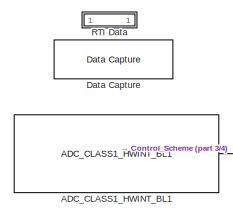
[diagram: root canvas - part 1/4, top center region]
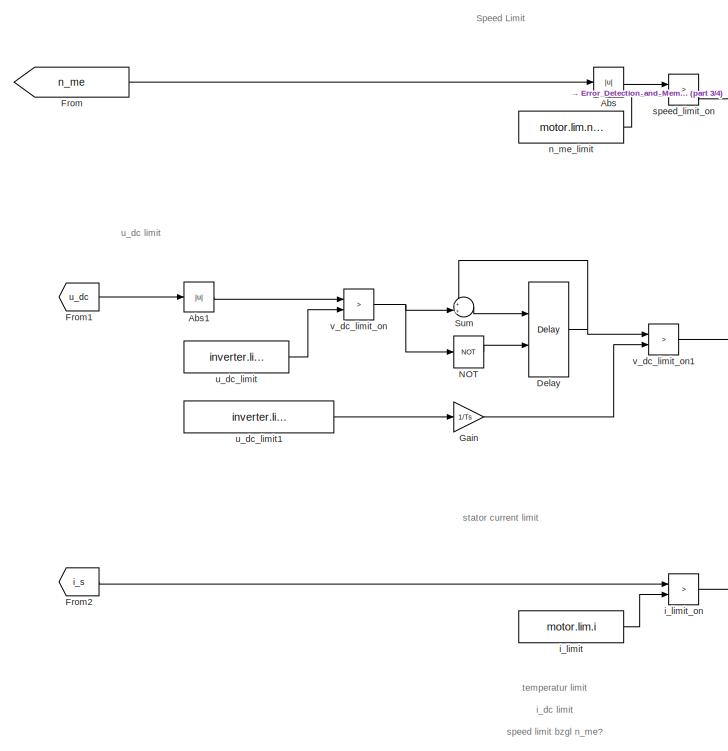
[diagram: root canvas - part 2/4, middle left region]
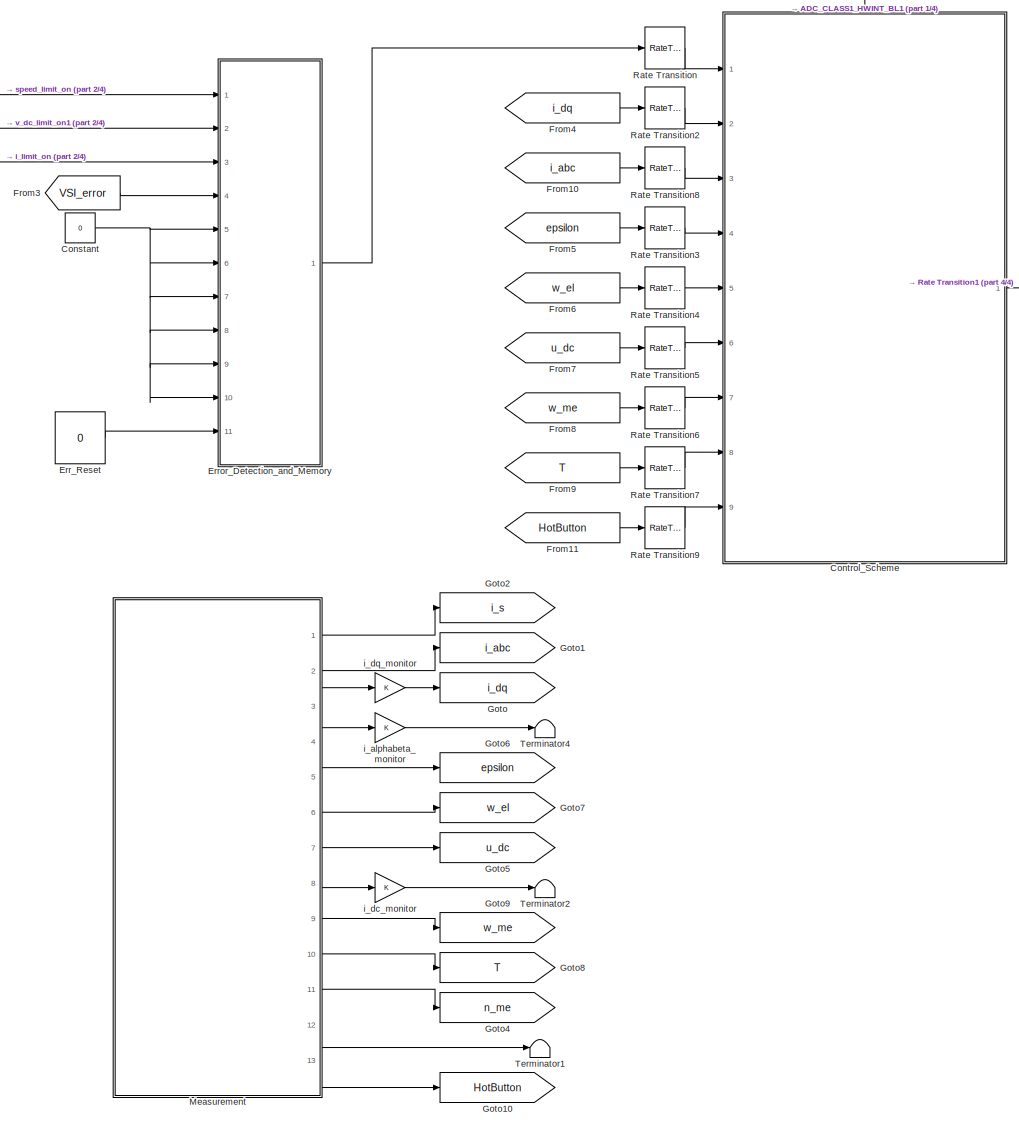
[diagram: root canvas - part 3/4, center side, full height]
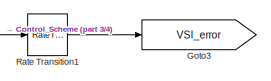
[diagram: root canvas - part 4/4, middle right region]
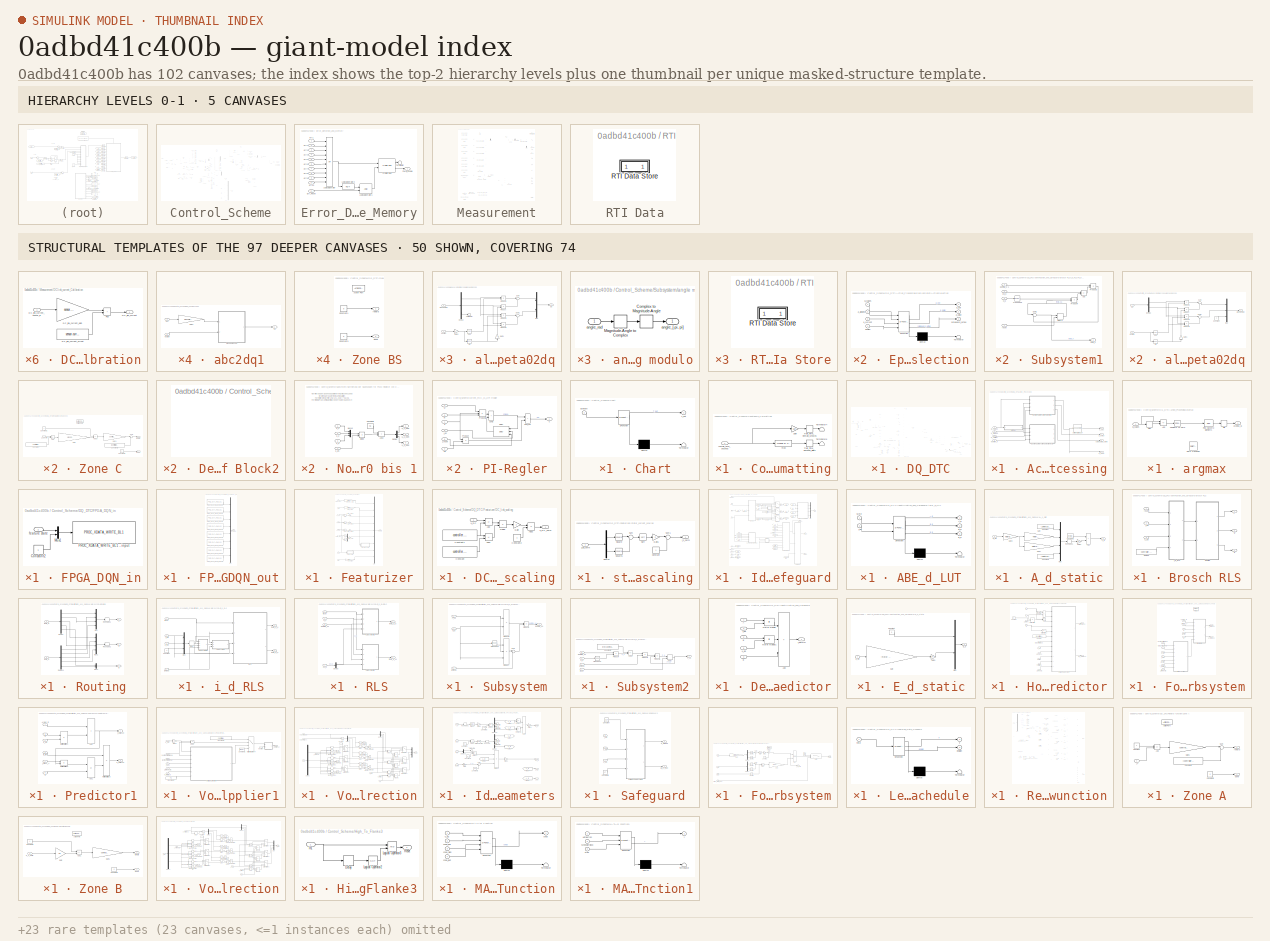
[diagram: thumbnail index - top-2 hierarchy levels (5 canvases) + 50 structural-template representatives of the remaining 97 canvases]
MODEL slx_0adbd41c400b
KIND model
CONFIG AbsTol = auto
CONFIG EnableMultiTasking = off
CONFIG FixedStep = Ts
CONFIG InitFcn = , if any(exist('rtifpga_mdlclblib', 'file') ~= 0), rtifpga_mdlclblib('Init', bdroot); end,\n
CONFIG MaxStep = auto
CONFIG MinStep = auto
CONFIG PostLoadFcn = , if any(exist('dsrtsu_mdlpostloadfcn', 'file') ~= 0), dsrtsu_mdlpostloadfcn('Execute', bdroot); end, \n
CONFIG RelTol = 1e-3
CONFIG SampleTimeConstraint = Unconstrained
CONFIG SolverName = FixedStepDiscrete
CONFIG StartTime = 0.0
CONFIG StopTime = Inf
WORKSPACE source: mxarray member
WORKSPACE FPGA_Control_Scheme_1_Buffer_1_1_1_write: Simulink.Signal (value not decoded)
WORKSPACE FPGA_Control_Scheme_1_Buffer_2_1_1_write: Simulink.Signal (value not decoded)
WORKSPACE FPGA_Control_Scheme_1_Register_1_1_1_write: Simulink.Signal (value not decoded)
WORKSPACE FPGA_Control_Scheme_1_Register_2_1_1_write: Simulink.Signal (value not decoded)
BLOCK [Reference] ADC_CLASS1_HWINT_BL1  REF=rti1202lib_adc_class1/ADC_CLASS1_HWINT_BL1
  Ports = [0, 1]
  SourceBlock = rti1202lib_adc_class1/ADC_CLASS1_HWINT_BL1
  SourceType = RTI
BLOCK [Abs] Abs
  SaturateOnIntegerOverflow = off
BLOCK [Abs] Abs1
  SaturateOnIntegerOverflow = off
BLOCK [Constant] Constant
  Value = 0
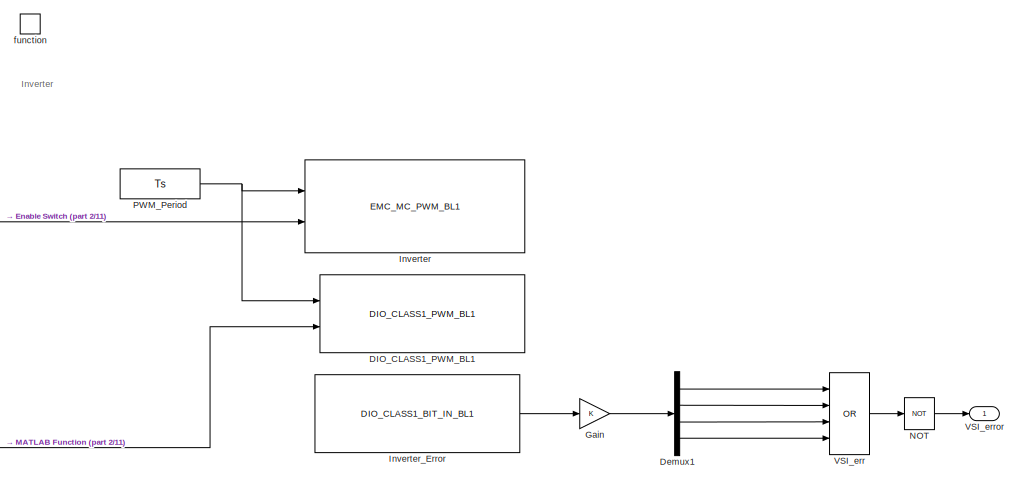
[diagram: Control_Scheme - part 1/11, top right region]
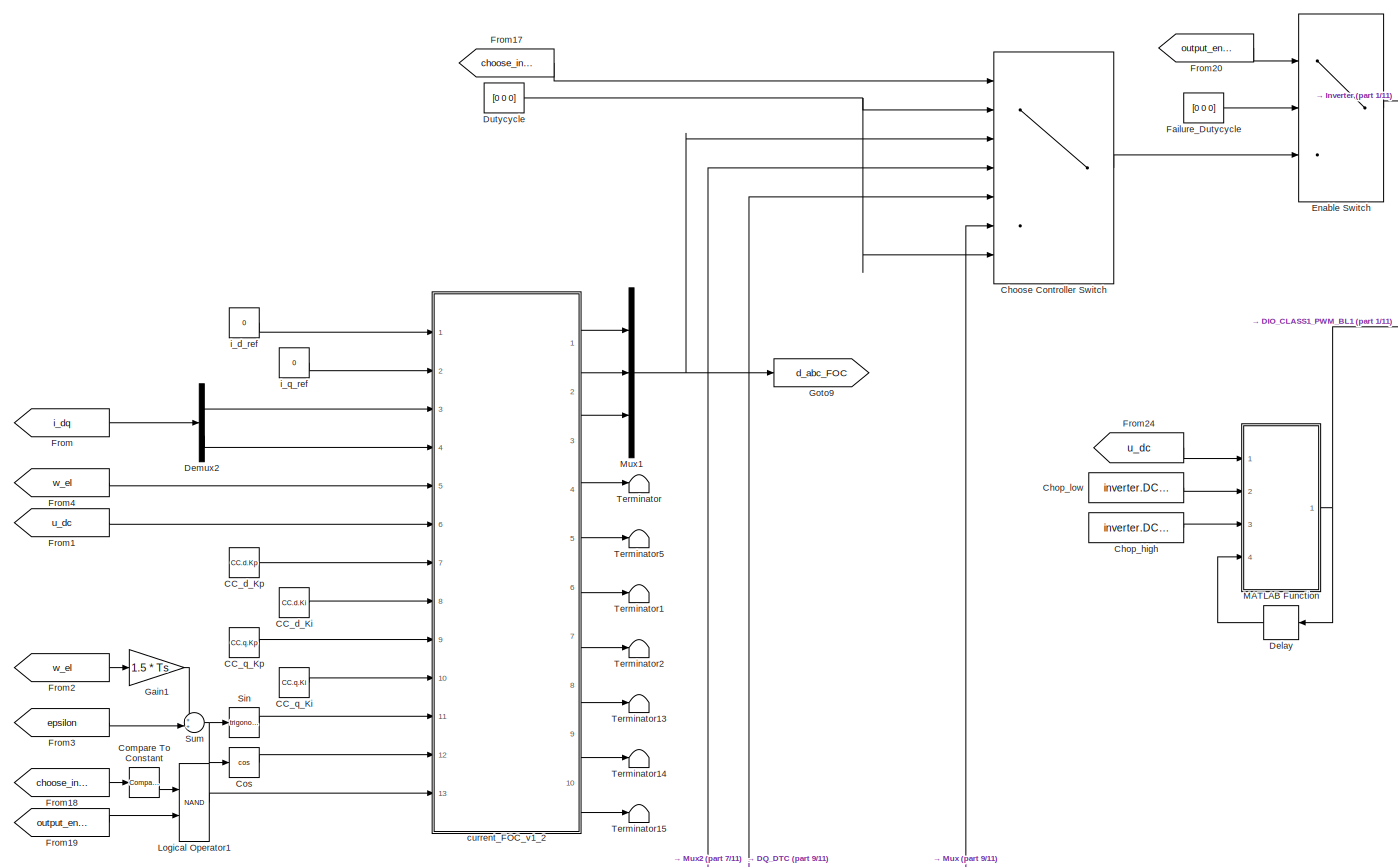
[diagram: Control_Scheme - part 2/11, top center region]
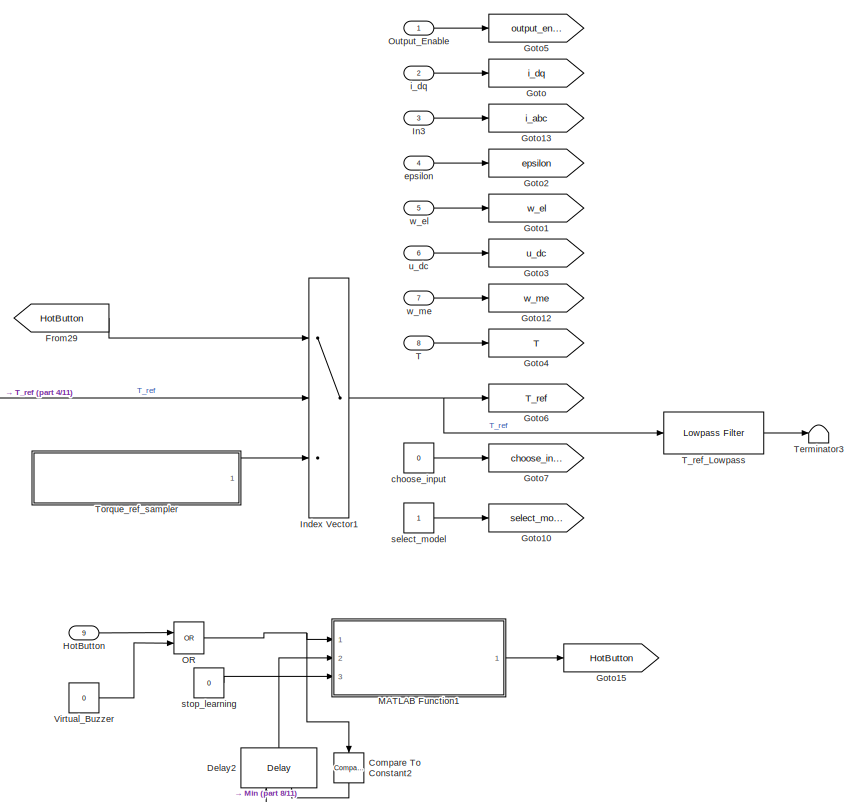
[diagram: Control_Scheme - part 3/11, top left region]
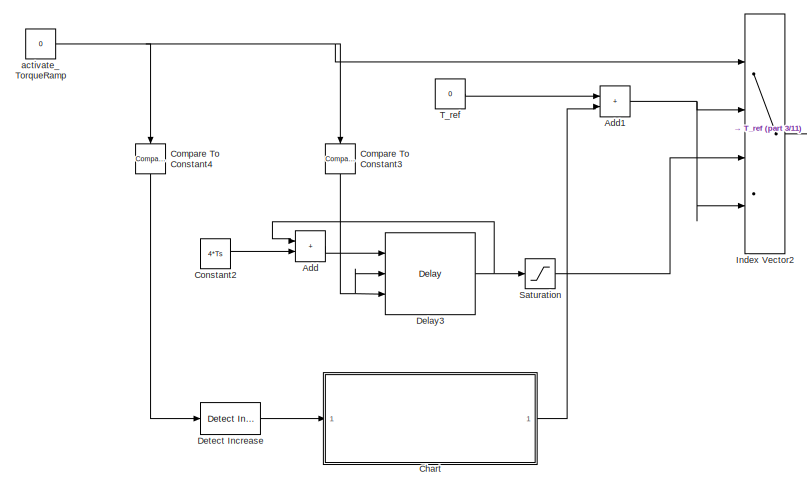
[diagram: Control_Scheme - part 4/11, top left region]
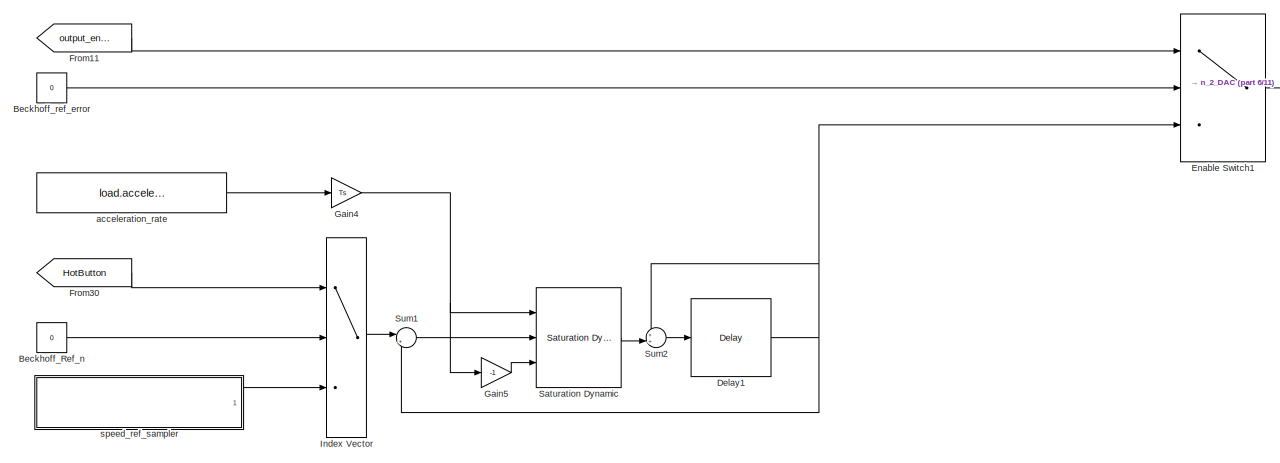
[diagram: Control_Scheme - part 5/11, middle right region]
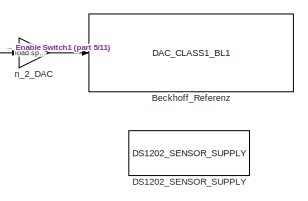
[diagram: Control_Scheme - part 6/11, top right region]
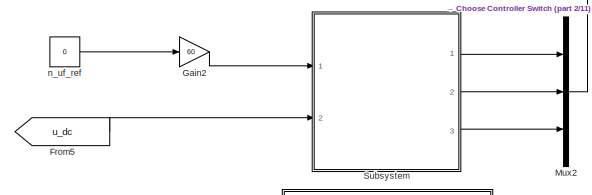
[diagram: Control_Scheme - part 7/11, central region]
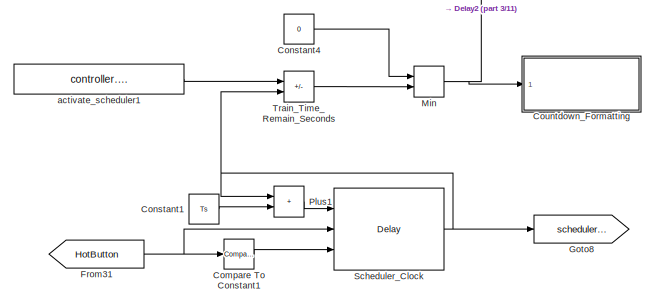
[diagram: Control_Scheme - part 8/11, middle left region]
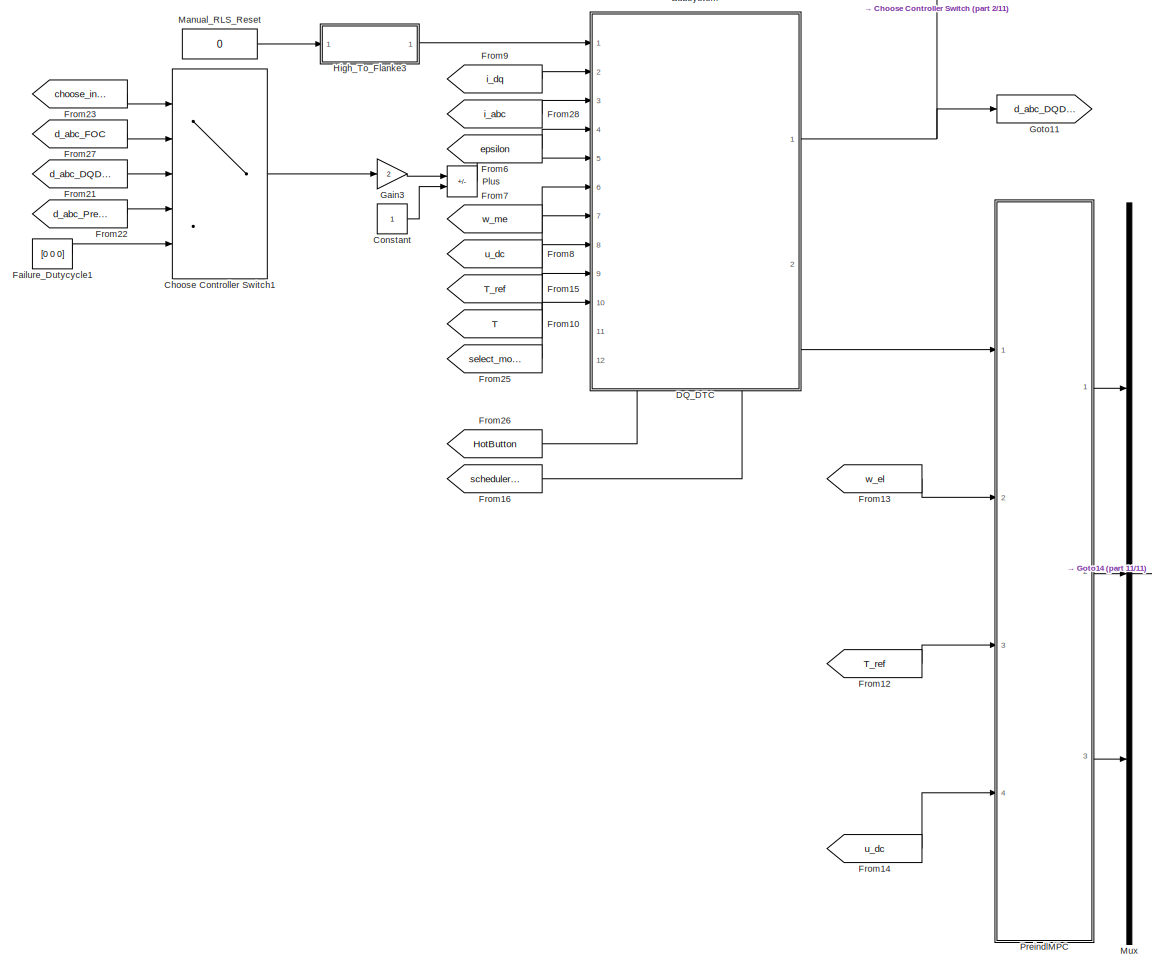
[diagram: Control_Scheme - part 9/11, bottom center region]
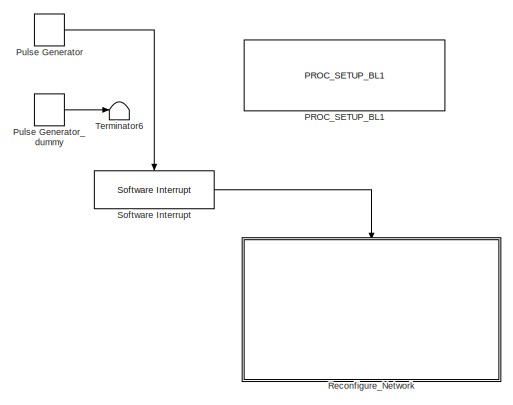
[diagram: Control_Scheme - part 10/11, middle right region]
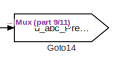
[diagram: Control_Scheme - part 11/11, bottom center region]
BLOCK [SubSystem] Control_Scheme
  Ports = [9, 1, 0, 1]
  RequestExecContextInheritance = off
BLOCK [Sum] Control_Scheme/Add
  IconShape = rectangular
  Ports = [2, 1]
BLOCK [Sum] Control_Scheme/Add1
  IconShape = rectangular
  Ports = [2, 1]
BLOCK [Constant] Control_Scheme/Beckhoff_Ref_n
  Value = 0
BLOCK [Reference] Control_Scheme/Beckhoff_Referenz  REF=rti1202lib_dac_class1/DAC_CLASS1_BL1
  Ports = [1]
  SourceBlock = rti1202lib_dac_class1/DAC_CLASS1_BL1
  SourceType = RTI
BLOCK [Constant] Control_Scheme/Beckhoff_ref_error
  Value = 0
BLOCK [Constant] Control_Scheme/CC_d_Ki
  Value = CC.d.Ki
BLOCK [Constant] Control_Scheme/CC_d_Kp
  Value = CC.d.Kp
BLOCK [Constant] Control_Scheme/CC_q_Ki
  Value = CC.q.Ki
BLOCK [Constant] Control_Scheme/CC_q_Kp
  Value = CC.q.Kp
BLOCK [SubSystem] Control_Scheme/Chart
  ErrorFcn = Stateflow.Translate.translate
  PermitHierarchicalResolution = ExplicitOnly
  Ports = [1, 1]
  RequestExecContextInheritance = off
  SFBlockType = Chart
  TreatAsAtomicUnit = on
BLOCK [Demux] Control_Scheme/Chart/ Demux 
  Outputs = 1
  Ports = [1, 1]
BLOCK [S-Function] Control_Scheme/Chart/ SFunction 
  EnableBusSupport = on
  FunctionName = sf_sfun
  Parameters = T_ref
  PortCounts = [1 2]
  Ports = [1, 2]
  SFcnIsStateOwnerBlock = off
  SFunctionDeploymentMode = off
  Tag = Stateflow S-Function 5
BLOCK [Terminator] Control_Scheme/Chart/ Terminator 
BLOCK [Outport] Control_Scheme/Chart/T_out
BLOCK [Inport] Control_Scheme/Chart/activate
BLOCK [MultiPortSwitch] Control_Scheme/Choose Controller Switch
  DataPortForDefault = Additional data port
  DataPortOrder = Zero-based contiguous
  InputSameDT = off
  Inputs = 5
  Ports = [7, 1]
  SaturateOnIntegerOverflow = off
  zeroidx = on
BLOCK [MultiPortSwitch] Control_Scheme/Choose Controller Switch1
  DataPortForDefault = Additional data port
  DataPortIndices = {1,3,4}
  DataPortOrder = Specify indices
  DiagnosticForDefault = None
  InputSameDT = off
  Inputs = 5
  Ports = [5, 1]
  SaturateOnIntegerOverflow = off
BLOCK [Constant] Control_Scheme/Chop_high
  Value = inverter.DC_link.high
BLOCK [Constant] Control_Scheme/Chop_low
  Value = inverter.DC_link.low
BLOCK [Reference] Control_Scheme/Compare To Constant  REF=simulink/Logic and Bit
Operations/Compare
To Constant
  Ports = [1, 1]
  SourceBlock = simulink/Logic and Bit\nOperations/Compare\nTo Constant
  SourceProductBaseCode = SL
  SourceType = Compare To Constant
BLOCK [Reference] Control_Scheme/Compare To Constant1  REF=simulink/Logic and Bit
Operations/Compare
To Constant
  Ports = [1, 1]
  SourceBlock = simulink/Logic and Bit\nOperations/Compare\nTo Constant
  SourceProductBaseCode = SL
  SourceType = Compare To Constant
BLOCK [Reference] Control_Scheme/Compare To Constant2  REF=simulink/Logic and Bit
Operations/Compare
To Constant
  NameLocation = left
  Ports = [1, 1]
  SourceBlock = simulink/Logic and Bit\nOperations/Compare\nTo Constant
  SourceProductBaseCode = SL
  SourceType = Compare To Constant
BLOCK [Reference] Control_Scheme/Compare To Constant3  REF=simulink/Logic and Bit
Operations/Compare
To Constant
  NameLocation = left
  Ports = [1, 1]
  SourceBlock = simulink/Logic and Bit\nOperations/Compare\nTo Constant
  SourceProductBaseCode = SL
  SourceType = Compare To Constant
BLOCK [Reference] Control_Scheme/Compare To Constant4  REF=simulink/Logic and Bit
Operations/Compare
To Constant
  NameLocation = left
  Ports = [1, 1]
  SourceBlock = simulink/Logic and Bit\nOperations/Compare\nTo Constant
  SourceProductBaseCode = SL
  SourceType = Compare To Constant
BLOCK [Constant] Control_Scheme/Constant
BLOCK [Constant] Control_Scheme/Constant1
  Value = Ts
BLOCK [Constant] Control_Scheme/Constant2
  Value = 4*Ts
BLOCK [Constant] Control_Scheme/Constant4
  Value = 0
BLOCK [Trigonometry] Control_Scheme/Cos
  NumberOfDataPoints = 64
  Operator = cos
  Ports = [1, 1]
BLOCK [SubSystem] Control_Scheme/Countdown_Formatting
  Ports = [1]
  RequestExecContextInheritance = off
BLOCK [Terminator] Control_Scheme/Countdown_Formatting/Terminator4
BLOCK [Terminator] Control_Scheme/Countdown_Formatting/Terminator6
BLOCK [Rounding] Control_Scheme/Countdown_Formatting/Train_Time_Remain_Minutes
BLOCK [Rounding] Control_Scheme/Countdown_Formatting/Train_Time_Seconds_Digits
BLOCK [Gain] Control_Scheme/Countdown_Formatting/gain
  Gain = 1/60
BLOCK [Reference] Control_Scheme/Countdown_Formatting/mod  REF=embmathops/Modulo by Constant
  Commented = on
  Ports = [1, 1]
  SourceBlock = embmathops/Modulo by Constant
  SourceProductBaseCode = SL
  SourceType = fixed.system.ModByConstant
BLOCK [Inport] Control_Scheme/Countdown_Formatting/remain_time_seconds
BLOCK [Reference] Control_Scheme/DIO_CLASS1_PWM_BL1  REF=rti1202lib_dio_class1/DIO_CLASS1_PWM_BL1
  Ports = [2]
  SourceBlock = rti1202lib_dio_class1/DIO_CLASS1_PWM_BL1
  SourceType = RTI
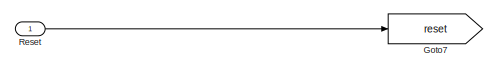
[diagram: Control_Scheme/DQ_DTC - part 1/8, top center region]
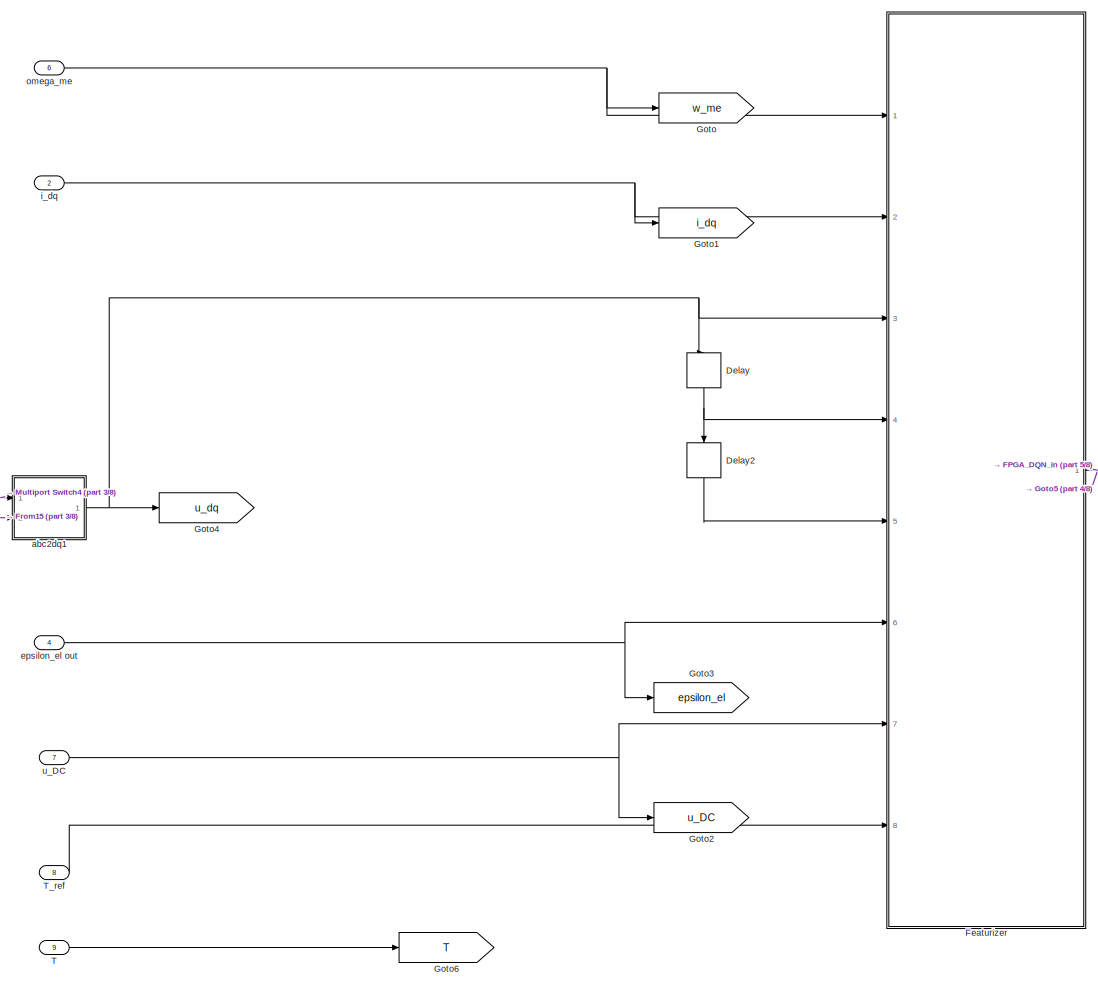
[diagram: Control_Scheme/DQ_DTC - part 2/8, central region]
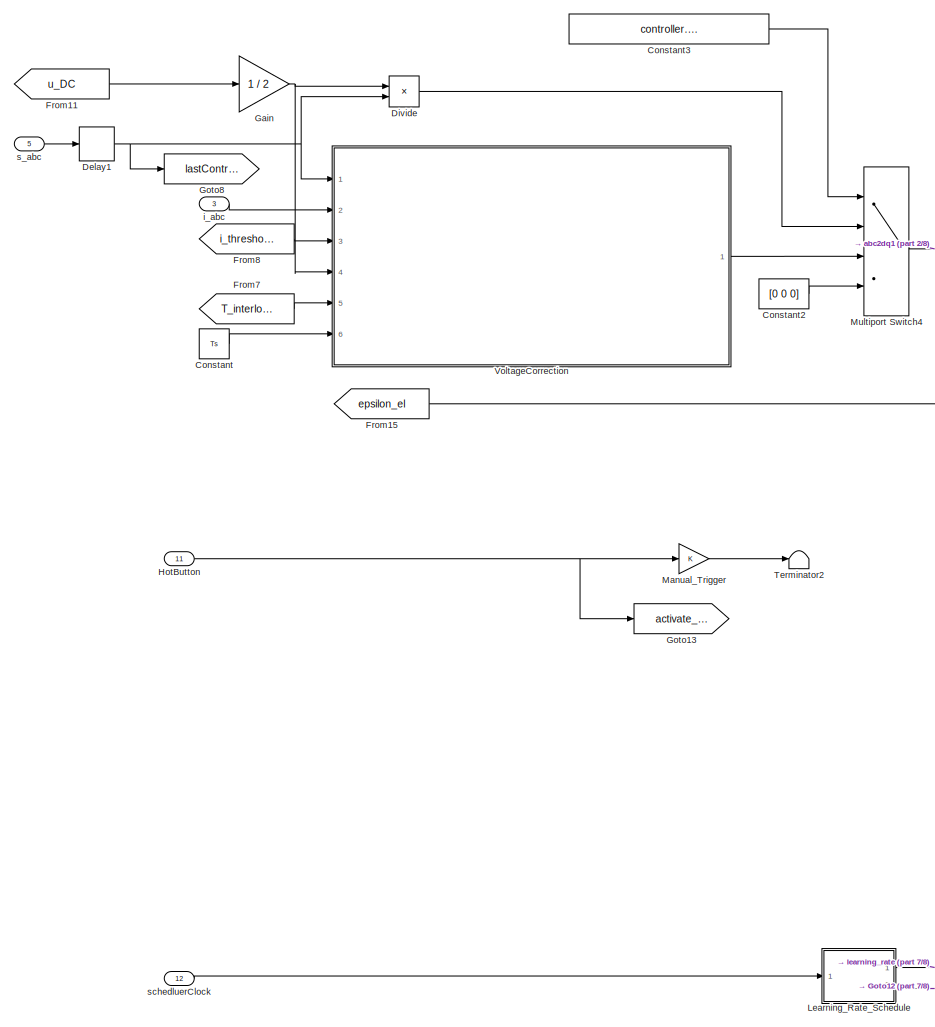
[diagram: Control_Scheme/DQ_DTC - part 3/8, middle left region]
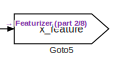
[diagram: Control_Scheme/DQ_DTC - part 4/8, central region]
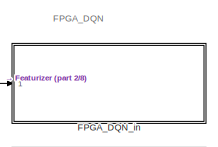
[diagram: Control_Scheme/DQ_DTC - part 5/8, central region]
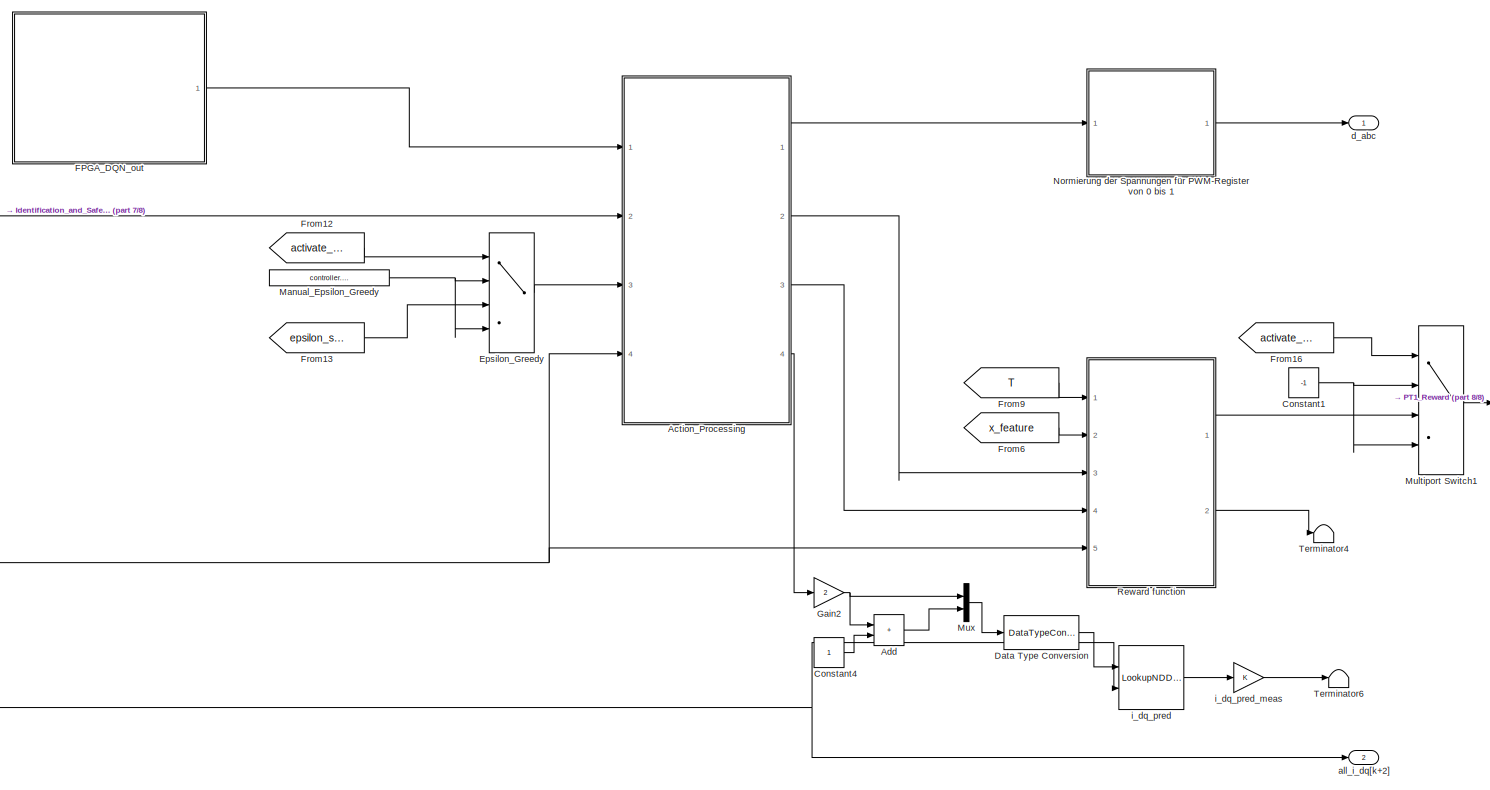
[diagram: Control_Scheme/DQ_DTC - part 6/8, bottom right region]
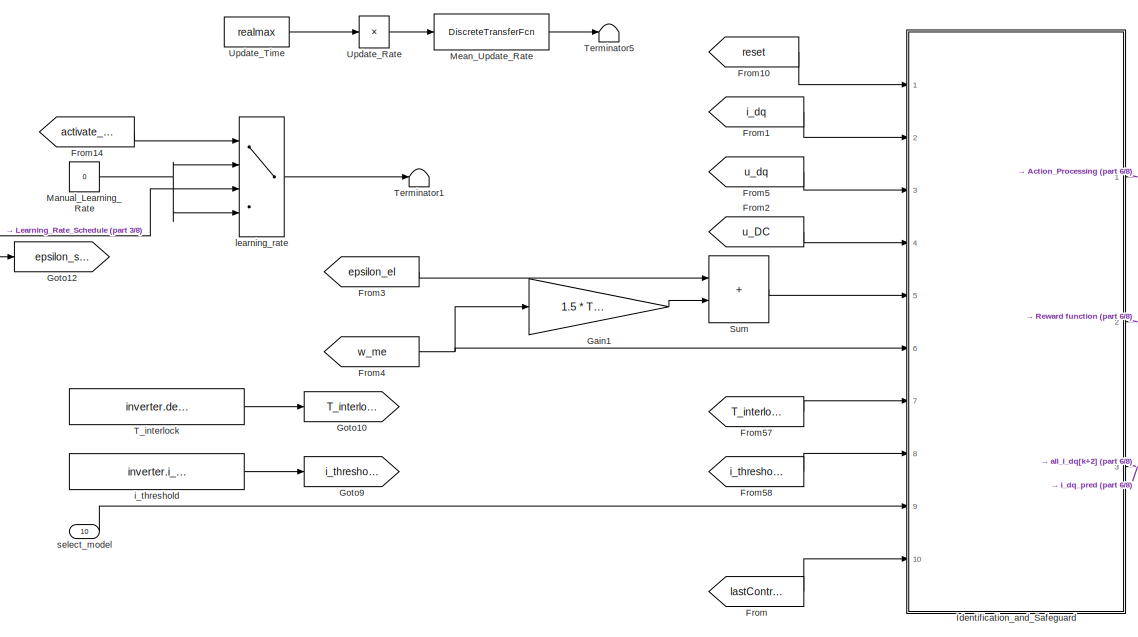
[diagram: Control_Scheme/DQ_DTC - part 7/8, bottom center region]
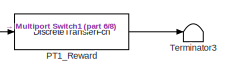
[diagram: Control_Scheme/DQ_DTC - part 8/8, bottom right region]
BLOCK [SubSystem] Control_Scheme/DQ_DTC
  PortSchema = {"entries":[{"content":{"sides":[{"content":{"connectorIds":["In1","In2","In3","In4","In5","In6","In7","In8","In9","In10"]},"type":"ConnectorPlacement.EquallySpacedRectSide","uuid":"02ff152a-d5e9-48ae-8ae9-04f46c283eee"},{"content":{"connectorIds":["Out1","Out2"],"side":"RIGHT"},"type":"ConnectorPlacement.EquallySpacedRectSide","uuid":"642da27a-b041-4256-941e-23b0305d4ed5"},{"content":{"connectorI...<+459ch>
  Ports = [12, 2]
  RequestExecContextInheritance = off
BLOCK [SubSystem] Control_Scheme/DQ_DTC/Action_Processing
  Ports = [4, 4]
  RequestExecContextInheritance = off
BLOCK [SubSystem] Control_Scheme/DQ_DTC/Action_Processing/EpsilonSafetyActionSelection
  ErrorFcn = Stateflow.Translate.translate
  PermitHierarchicalResolution = ExplicitOnly
  Ports = [4, 3]
  RequestExecContextInheritance = off
  SFBlockType = MATLAB Function
  TreatAsAtomicUnit = on
BLOCK [Demux] Control_Scheme/DQ_DTC/Action_Processing/EpsilonSafetyActionSelection/ Demux 
  Outputs = 1
  Ports = [1, 1]
BLOCK [S-Function] Control_Scheme/DQ_DTC/Action_Processing/EpsilonSafetyActionSelection/ SFunction 
  EnableBusSupport = on
  FunctionName = sf_sfun
  PortCounts = [4 4]
  Ports = [4, 4]
  SFcnIsStateOwnerBlock = off
  SFunctionDeploymentMode = off
  Tag = Stateflow S-Function 6
BLOCK [Terminator] Control_Scheme/DQ_DTC/Action_Processing/EpsilonSafetyActionSelection/ Terminator 
BLOCK [Inport] Control_Scheme/DQ_DTC/Action_Processing/EpsilonSafetyActionSelection/Q_values
BLOCK [Inport] Control_Scheme/DQ_DTC/Action_Processing/EpsilonSafetyActionSelection/a_allowed
  Port = 2
BLOCK [Inport] Control_Scheme/DQ_DTC/Action_Processing/EpsilonSafetyActionSelection/a_current
  Port = 3
BLOCK [Outport] Control_Scheme/DQ_DTC/Action_Processing/EpsilonSafetyActionSelection/a_out
BLOCK [Outport] Control_Scheme/DQ_DTC/Action_Processing/EpsilonSafetyActionSelection/a_policy
  Port = 2
BLOCK [Inport] Control_Scheme/DQ_DTC/Action_Processing/EpsilonSafetyActionSelection/epsilon
  Port = 4
BLOCK [Outport] Control_Scheme/DQ_DTC/Action_Processing/EpsilonSafetyActionSelection/safeguard_active
  Port = 3
BLOCK [SubSystem] Control_Scheme/DQ_DTC/Action_Processing/EpsilonSafetyActionSelection_old
  Commented = on
  ErrorFcn = Stateflow.Translate.translate
  PermitHierarchicalResolution = ExplicitOnly
  Ports = [4, 3]
  RequestExecContextInheritance = off
  SFBlockType = MATLAB Function
  TreatAsAtomicUnit = on
BLOCK [Demux] Control_Scheme/DQ_DTC/Action_Processing/EpsilonSafetyActionSelection_old/ Demux 
  Outputs = 1
  Ports = [1, 1]
BLOCK [S-Function] Control_Scheme/DQ_DTC/Action_Processing/EpsilonSafetyActionSelection_old/ SFunction 
  EnableBusSupport = on
  FunctionName = sf_sfun
  Parameters = controller
  PortCounts = [4 4]
  Ports = [4, 4]
  SFcnIsStateOwnerBlock = off
  SFunctionDeploymentMode = off
  Tag = Stateflow S-Function 1
BLOCK [Terminator] Control_Scheme/DQ_DTC/Action_Processing/EpsilonSafetyActionSelection_old/ Terminator 
BLOCK [Inport] Control_Scheme/DQ_DTC/Action_Processing/EpsilonSafetyActionSelection_old/a_allowed
  Port = 2
BLOCK [Inport] Control_Scheme/DQ_DTC/Action_Processing/EpsilonSafetyActionSelection_old/a_current
  Port = 3
BLOCK [Outport] Control_Scheme/DQ_DTC/Action_Processing/EpsilonSafetyActionSelection_old/a_out
BLOCK [Outport] Control_Scheme/DQ_DTC/Action_Processing/EpsilonSafetyActionSelection_old/a_policy
  Port = 2
BLOCK [Inport] Control_Scheme/DQ_DTC/Action_Processing/EpsilonSafetyActionSelection_old/argmax_Q
BLOCK [Inport] Control_Scheme/DQ_DTC/Action_Processing/EpsilonSafetyActionSelection_old/epsilon
  Port = 4
BLOCK [Outport] Control_Scheme/DQ_DTC/Action_Processing/EpsilonSafetyActionSelection_old/safeguard_active
  Port = 3
BLOCK [Inport] Control_Scheme/DQ_DTC/Action_Processing/Q_values
BLOCK [LookupNDDirect] Control_Scheme/DQ_DTC/Action_Processing/SwitchState LUT
  InputsSelectThisObjectFromTable = Vector
  Ports = [1, 1]
  RemoveProtectionInput = on
  Table = inverter.mapping
BLOCK [Inport] Control_Scheme/DQ_DTC/Action_Processing/a_allowed
  Port = 2
BLOCK [Outport] Control_Scheme/DQ_DTC/Action_Processing/a_aout
  Port = 4
BLOCK [Inport] Control_Scheme/DQ_DTC/Action_Processing/a_current
  Port = 4
BLOCK [Outport] Control_Scheme/DQ_DTC/Action_Processing/a_policy
  Port = 2
BLOCK [SubSystem] Control_Scheme/DQ_DTC/Action_Processing/argmax
  Ports = [1, 1]
  RequestExecContextInheritance = off
BLOCK [Sum] Control_Scheme/DQ_DTC/Action_Processing/argmax/Add
  IconShape = rectangular
  Inputs = +-
  Ports = [2, 1]
BLOCK [Reference] Control_Scheme/DQ_DTC/Action_Processing/argmax/Compare To Zero  REF=simulink/Logic and Bit
Operations/Compare
To Zero
  Ports = [1, 1]
  SourceBlock = simulink/Logic and Bit\nOperations/Compare\nTo Zero
  SourceProductBaseCode = SL
  SourceType = Compare To Zero
BLOCK [Find] Control_Scheme/DQ_DTC/Action_Processing/argmax/Find Nonzero Elements
  IndexMode = Zero-based
  NumberOfInputDimensions = 3
  Ports = [1, 1]
BLOCK [MinMax] Control_Scheme/DQ_DTC/Action_Processing/argmax/Max
  Function = max
  Ports = [1, 1]
BLOCK [MinMax] Control_Scheme/DQ_DTC/Action_Processing/argmax/Min
  Ports = [1, 1]
BLOCK [Inport] Control_Scheme/DQ_DTC/Action_Processing/argmax/Q_values
BLOCK [RateTransition] Control_Scheme/DQ_DTC/Action_Processing/argmax/Rate Transition
  Commented = on
BLOCK [Outport] Control_Scheme/DQ_DTC/Action_Processing/argmax/argmax_Q
BLOCK [Inport] Control_Scheme/DQ_DTC/Action_Processing/epsilon_rl
  Port = 3
BLOCK [Outport] Control_Scheme/DQ_DTC/Action_Processing/s_abc
BLOCK [Outport] Control_Scheme/DQ_DTC/Action_Processing/safeguard_active
  Port = 3
BLOCK [Sum] Control_Scheme/DQ_DTC/Add
  IconShape = rectangular
  OutDataTypeStr = int32
  Ports = [2, 1]
BLOCK [Constant] Control_Scheme/DQ_DTC/Constant
  Value = Ts
BLOCK [Constant] Control_Scheme/DQ_DTC/Constant1
  Value = -1
BLOCK [Constant] Control_Scheme/DQ_DTC/Constant2
  Value = [0 0 0]
BLOCK [Constant] Control_Scheme/DQ_DTC/Constant3
  Value = controller.compensate_deadtime
BLOCK [Constant] Control_Scheme/DQ_DTC/Constant4
BLOCK [DataTypeConversion] Control_Scheme/DQ_DTC/Data Type Conversion
  OutDataTypeStr = int32
  RndMeth = Floor
  SaturateOnIntegerOverflow = off
BLOCK [Delay] Control_Scheme/DQ_DTC/Delay
  DelayLength = 1
  InputPortMap = u0
  NameLocation = left
  Ports = [1, 1]
BLOCK [Delay] Control_Scheme/DQ_DTC/Delay1
  DelayLength = 1
  InitialCondition = [0 0 0]
  InputPortMap = u0
  Ports = [1, 1]
BLOCK [Delay] Control_Scheme/DQ_DTC/Delay2
  DelayLength = 1
  InputPortMap = u0
  NameLocation = left
  Ports = [1, 1]
BLOCK [Product] Control_Scheme/DQ_DTC/Divide
  Inputs = **
  Ports = [2, 1]
BLOCK [MultiPortSwitch] Control_Scheme/DQ_DTC/Epsilon_Greedy
  DataPortForDefault = Additional data port
  DataPortOrder = Zero-based contiguous
  InputSameDT = off
  Inputs = 2
  Ports = [4, 1]
  SaturateOnIntegerOverflow = off
  zeroidx = on
BLOCK [SubSystem] Control_Scheme/DQ_DTC/FPGA_DQN_in
  Ports = [1]
  RequestExecContextInheritance = off
BLOCK [Constant] Control_Scheme/DQ_DTC/FPGA_DQN_in/Constant2
BLOCK [Mux] Control_Scheme/DQ_DTC/FPGA_DQN_in/Mux1
  DisplayOption = bar
  Inputs = 2
  Ports = [2, 1]
BLOCK [Reference] Control_Scheme/DQ_DTC/FPGA_DQN_in/PROC_XDATA_WRITE_BL1 - input  REF=rtiproclib/PROC_XDATA_WRITE_BL1
  Ports = [1]
  SourceBlock = rtiproclib/PROC_XDATA_WRITE_BL1
  SourceType = RTI
BLOCK [Inport] Control_Scheme/DQ_DTC/FPGA_DQN_in/feature state
BLOCK [SubSystem] Control_Scheme/DQ_DTC/FPGA_DQN_out
  Ports = [0, 1]
  RequestExecContextInheritance = off
BLOCK [Mux] Control_Scheme/DQ_DTC/FPGA_DQN_out/Mux
  DisplayOption = bar
  Inputs = 8
  Ports = [8, 1]
BLOCK [Reference] Control_Scheme/DQ_DTC/FPGA_DQN_out/PROC_XDATA_READ_BL1 - out1  REF=rtiproclib/PROC_XDATA_READ_BL1
  Ports = [0, 1]
  SourceBlock = rtiproclib/PROC_XDATA_READ_BL1
  SourceType = RTI
BLOCK [Reference] Control_Scheme/DQ_DTC/FPGA_DQN_out/PROC_XDATA_READ_BL1 - out2  REF=rtiproclib/PROC_XDATA_READ_BL1
  Ports = [0, 1]
  SourceBlock = rtiproclib/PROC_XDATA_READ_BL1
  SourceType = RTI
BLOCK [Reference] Control_Scheme/DQ_DTC/FPGA_DQN_out/PROC_XDATA_READ_BL1 - out3  REF=rtiproclib/PROC_XDATA_READ_BL1
  Ports = [0, 1]
  SourceBlock = rtiproclib/PROC_XDATA_READ_BL1
  SourceType = RTI
BLOCK [Reference] Control_Scheme/DQ_DTC/FPGA_DQN_out/PROC_XDATA_READ_BL1 - out4  REF=rtiproclib/PROC_XDATA_READ_BL1
  Ports = [0, 1]
  SourceBlock = rtiproclib/PROC_XDATA_READ_BL1
  SourceType = RTI
BLOCK [Reference] Control_Scheme/DQ_DTC/FPGA_DQN_out/PROC_XDATA_READ_BL1 - out5  REF=rtiproclib/PROC_XDATA_READ_BL1
  Ports = [0, 1]
  SourceBlock = rtiproclib/PROC_XDATA_READ_BL1
  SourceType = RTI
BLOCK [Reference] Control_Scheme/DQ_DTC/FPGA_DQN_out/PROC_XDATA_READ_BL1 - out6  REF=rtiproclib/PROC_XDATA_READ_BL1
  Ports = [0, 1]
  SourceBlock = rtiproclib/PROC_XDATA_READ_BL1
  SourceType = RTI
BLOCK [Reference] Control_Scheme/DQ_DTC/FPGA_DQN_out/PROC_XDATA_READ_BL1 - out7  REF=rtiproclib/PROC_XDATA_READ_BL1
  Ports = [0, 1]
  SourceBlock = rtiproclib/PROC_XDATA_READ_BL1
  SourceType = RTI
BLOCK [Reference] Control_Scheme/DQ_DTC/FPGA_DQN_out/PROC_XDATA_READ_BL1 - out8  REF=rtiproclib/PROC_XDATA_READ_BL1
  Ports = [0, 1]
  SourceBlock = rtiproclib/PROC_XDATA_READ_BL1
  SourceType = RTI
BLOCK [Outport] Control_Scheme/DQ_DTC/FPGA_DQN_out/Q_values
BLOCK [SubSystem] Control_Scheme/DQ_DTC/Featurizer
  Ports = [8, 1]
  RequestExecContextInheritance = off
BLOCK [Trigonometry] Control_Scheme/DQ_DTC/Featurizer/Cos
  NameLocation = left
  NumberOfDataPoints = 64
  Operator = cos
  Ports = [1, 1]
BLOCK [Trigonometry] Control_Scheme/DQ_DTC/Featurizer/Cos1
  NameLocation = left
  NumberOfDataPoints = 64
  Ports = [1, 1]
BLOCK [SubSystem] Control_Scheme/DQ_DTC/Featurizer/DC_link_scaling
  Ports = [1, 1]
  RequestExecContextInheritance = off
BLOCK [Sum] Control_Scheme/DQ_DTC/Featurizer/DC_link_scaling/Add
  IconShape = rectangular
  Inputs = +-
  Ports = [2, 1]
BLOCK [Sum] Control_Scheme/DQ_DTC/Featurizer/DC_link_scaling/Add1
  IconShape = rectangular
  Inputs = -+
  Ports = [2, 1]
BLOCK [Sum] Control_Scheme/DQ_DTC/Featurizer/DC_link_scaling/Add2
  IconShape = rectangular
  Inputs = +-
  Ports = [2, 1]
BLOCK [Constant] Control_Scheme/DQ_DTC/Featurizer/DC_link_scaling/Constant
  Value = controller.DQDTC.u_DC_max
BLOCK [Constant] Control_Scheme/DQ_DTC/Featurizer/DC_link_scaling/Constant1
  Value = controller.DQDTC.u_DC_min
BLOCK [Constant] Control_Scheme/DQ_DTC/Featurizer/DC_link_scaling/Constant2
BLOCK [Product] Control_Scheme/DQ_DTC/Featurizer/DC_link_scaling/Divide
  Inputs = */
  Ports = [2, 1]
BLOCK [Gain] Control_Scheme/DQ_DTC/Featurizer/DC_link_scaling/Gain
  Gain = 2
BLOCK [Inport] Control_Scheme/DQ_DTC/Featurizer/DC_link_scaling/u_DC
BLOCK [Outport] Control_Scheme/DQ_DTC/Featurizer/DC_link_scaling/u_DC_norm
BLOCK [Product] Control_Scheme/DQ_DTC/Featurizer/Divide
  Inputs = */
  Ports = [2, 1]
BLOCK [Product] Control_Scheme/DQ_DTC/Featurizer/Divide1
  Inputs = */
  Ports = [2, 1]
BLOCK [Product] Control_Scheme/DQ_DTC/Featurizer/Divide2
  Inputs = */
  Ports = [2, 1]
BLOCK [Mux] Control_Scheme/DQ_DTC/Featurizer/Mux
  DisplayOption = bar
  Inputs = 2
  Ports = [2, 1]
BLOCK [Mux] Control_Scheme/DQ_DTC/Featurizer/Mux2
  DisplayOption = bar
  Inputs = 9
  Ports = [9, 1]
BLOCK [Inport] Control_Scheme/DQ_DTC/Featurizer/T ref
  Port = 8
BLOCK [Gain] Control_Scheme/DQ_DTC/Featurizer/T_ref_scaling
  Gain = 1 / motor.lim.T
BLOCK [Gain] Control_Scheme/DQ_DTC/Featurizer/current_scaling
  Gain = 1/motor.lim.i
BLOCK [Inport] Control_Scheme/DQ_DTC/Featurizer/epsilon_el out
  Port = 6
BLOCK [Outport] Control_Scheme/DQ_DTC/Featurizer/feature state
BLOCK [Inport] Control_Scheme/DQ_DTC/Featurizer/i_dq
  Port = 2
BLOCK [Inport] Control_Scheme/DQ_DTC/Featurizer/omega_me out
BLOCK [Gain] Control_Scheme/DQ_DTC/Featurizer/omega_me_scaling
  Gain = 1/motor.nominal.omega_me
BLOCK [Gain] Control_Scheme/DQ_DTC/Featurizer/position_scaling
  Gain = 0.1
BLOCK [SubSystem] Control_Scheme/DQ_DTC/Featurizer/stator_current_scaling
  Ports = [1, 1]
  RequestExecContextInheritance = off
BLOCK [Constant] Control_Scheme/DQ_DTC/Featurizer/stator_current_scaling/Constant
BLOCK [Demux] Control_Scheme/DQ_DTC/Featurizer/stator_current_scaling/Demux
  Outputs = 2
  Ports = [1, 2]
BLOCK [Gain] Control_Scheme/DQ_DTC/Featurizer/stator_current_scaling/Gain1
  Gain = 2
BLOCK [Sqrt] Control_Scheme/DQ_DTC/Featurizer/stator_current_scaling/Sqrt
BLOCK [Math] Control_Scheme/DQ_DTC/Featurizer/stator_current_scaling/Square
  Operator = square
  Ports = [1, 1]
BLOCK [Math] Control_Scheme/DQ_DTC/Featurizer/stator_current_scaling/Square1
  Operator = square
  Ports = [1, 1]
BLOCK [Sum] Control_Scheme/DQ_DTC/Featurizer/stator_current_scaling/Sum
  Inputs = |++
  Ports = [2, 1]
BLOCK [Sum] Control_Scheme/DQ_DTC/Featurizer/stator_current_scaling/Sum1
  Inputs = |+-
  Ports = [2, 1]
BLOCK [Inport] Control_Scheme/DQ_DTC/Featurizer/stator_current_scaling/i_dq_norm
BLOCK [Outport] Control_Scheme/DQ_DTC/Featurizer/stator_current_scaling/i_s_norm
BLOCK [Inport] Control_Scheme/DQ_DTC/Featurizer/u_DC
  Port = 7
BLOCK [Inport] Control_Scheme/DQ_DTC/Featurizer/u_dq_k1
  Port = 3
BLOCK [Inport] Control_Scheme/DQ_DTC/Featurizer/u_dq_k2
  Port = 4
BLOCK [Inport] Control_Scheme/DQ_DTC/Featurizer/u_dq_k3
  Port = 5
BLOCK [Gain] Control_Scheme/DQ_DTC/Featurizer/voltage_scaling0
  Gain = 3/2
BLOCK [Gain] Control_Scheme/DQ_DTC/Featurizer/voltage_scaling1
  Gain = 3/2
BLOCK [Gain] Control_Scheme/DQ_DTC/Featurizer/voltage_scaling2
  Gain = 3/2
BLOCK [From] Control_Scheme/DQ_DTC/From
  GotoTag = lastControlSignal
BLOCK [From] Control_Scheme/DQ_DTC/From1
  GotoTag = i_dq
BLOCK [From] Control_Scheme/DQ_DTC/From10
  GotoTag = reset
BLOCK [From] Control_Scheme/DQ_DTC/From11
  GotoTag = u_DC
BLOCK [From] Control_Scheme/DQ_DTC/From12
  GotoTag = activate_scheduler
BLOCK [From] Control_Scheme/DQ_DTC/From13
  GotoTag = epsilon_schedule
BLOCK [From] Control_Scheme/DQ_DTC/From14
  GotoTag = activate_scheduler
BLOCK [From] Control_Scheme/DQ_DTC/From15
  GotoTag = epsilon_el
BLOCK [From] Control_Scheme/DQ_DTC/From16
  GotoTag = activate_scheduler
BLOCK [From] Control_Scheme/DQ_DTC/From2
  GotoTag = u_DC
BLOCK [From] Control_Scheme/DQ_DTC/From3
  GotoTag = epsilon_el
BLOCK [From] Control_Scheme/DQ_DTC/From4
  GotoTag = w_me
BLOCK [From] Control_Scheme/DQ_DTC/From5
  GotoTag = u_dq
BLOCK [From] Control_Scheme/DQ_DTC/From57
  GotoTag = T_interlock
BLOCK [From] Control_Scheme/DQ_DTC/From58
  GotoTag = i_threshold
BLOCK [From] Control_Scheme/DQ_DTC/From6
  GotoTag = x_feature
BLOCK [From] Control_Scheme/DQ_DTC/From7
  GotoTag = T_interlock
BLOCK [From] Control_Scheme/DQ_DTC/From8
  GotoTag = i_threshold
BLOCK [From] Control_Scheme/DQ_DTC/From9
  GotoTag = T
BLOCK [Gain] Control_Scheme/DQ_DTC/Gain
  Gain = 1 / 2
BLOCK [Gain] Control_Scheme/DQ_DTC/Gain1
  Gain = 1.5 * Ts * motor.param.p
BLOCK [Gain] Control_Scheme/DQ_DTC/Gain2
  Gain = 2
  OutDataTypeStr = int32
BLOCK [Goto] Control_Scheme/DQ_DTC/Goto
  GotoTag = w_me
BLOCK [Goto] Control_Scheme/DQ_DTC/Goto1
  GotoTag = i_dq
BLOCK [Goto] Control_Scheme/DQ_DTC/Goto10
  GotoTag = T_interlock
BLOCK [Goto] Control_Scheme/DQ_DTC/Goto12
  GotoTag = epsilon_schedule
BLOCK [Goto] Control_Scheme/DQ_DTC/Goto13
  GotoTag = activate_scheduler
BLOCK [Goto] Control_Scheme/DQ_DTC/Goto2
  GotoTag = u_DC
BLOCK [Goto] Control_Scheme/DQ_DTC/Goto3
  GotoTag = epsilon_el
BLOCK [Goto] Control_Scheme/DQ_DTC/Goto4
  GotoTag = u_dq
BLOCK [Goto] Control_Scheme/DQ_DTC/Goto5
  GotoTag = x_feature
BLOCK [Goto] Control_Scheme/DQ_DTC/Goto6
  GotoTag = T
BLOCK [Goto] Control_Scheme/DQ_DTC/Goto7
  GotoTag = reset
BLOCK [Goto] Control_Scheme/DQ_DTC/Goto8
  GotoTag = lastControlSignal
BLOCK [Goto] Control_Scheme/DQ_DTC/Goto9
  GotoTag = i_threshold
BLOCK [Inport] Control_Scheme/DQ_DTC/HotButton
  Port = 11
BLOCK [SubSystem] Control_Scheme/DQ_DTC/Identification_and_Safeguard
  Ports = [10, 3]
  RequestExecContextInheritance = off
BLOCK [SubSystem] Control_Scheme/DQ_DTC/Identification_and_Safeguard/ABE_d_LUT
  Commented = on
  ErrorFcn = Stateflow.Translate.translate
  PermitHierarchicalResolution = ExplicitOnly
  Ports = [2, 3]
  RequestExecContextInheritance = off
  SFBlockType = MATLAB Function
  TreatAsAtomicUnit = on
BLOCK [Demux] Control_Scheme/DQ_DTC/Identification_and_Safeguard/ABE_d_LUT/ Demux 
  Outputs = 1
  Ports = [1, 1]
BLOCK [S-Function] Control_Scheme/DQ_DTC/Identification_and_Safeguard/ABE_d_LUT/ SFunction 
  EnableBusSupport = on
  FunctionName = sf_sfun
  Parameters = Ts,controller,motor
  PortCounts = [2 4]
  Ports = [2, 4]
  SFcnIsStateOwnerBlock = off
  SFunctionDeploymentMode = off
  Tag = Stateflow S-Function 11
BLOCK [Terminator] Control_Scheme/DQ_DTC/Identification_and_Safeguard/ABE_d_LUT/ Terminator 
BLOCK [Outport] Control_Scheme/DQ_DTC/Identification_and_Safeguard/ABE_d_LUT/A_d
BLOCK [Outport] Control_Scheme/DQ_DTC/Identification_and_Safeguard/ABE_d_LUT/B_d
  Port = 2
BLOCK [Outport] Control_Scheme/DQ_DTC/Identification_and_Safeguard/ABE_d_LUT/E_d
  Port = 3
BLOCK [Inport] Control_Scheme/DQ_DTC/Identification_and_Safeguard/ABE_d_LUT/i_dq
  Port = 2
BLOCK [Inport] Control_Scheme/DQ_DTC/Identification_and_Safeguard/ABE_d_LUT/w_me
BLOCK [SubSystem] Control_Scheme/DQ_DTC/Identification_and_Safeguard/A_d_static
  Ports = [1, 1]
  RequestExecContextInheritance = off
BLOCK [Outport] Control_Scheme/DQ_DTC/Identification_and_Safeguard/A_d_static/A_d
BLOCK [Constant] Control_Scheme/DQ_DTC/Identification_and_Safeguard/A_d_static/Constant
  Value = -1/motor.param.tau_d
BLOCK [Constant] Control_Scheme/DQ_DTC/Identification_and_Safeguard/A_d_static/Constant1
  Value = -1/motor.param.tau_q
BLOCK [Constant] Control_Scheme/DQ_DTC/Identification_and_Safeguard/A_d_static/Constant2
  Value = eye(2)
BLOCK [Gain] Control_Scheme/DQ_DTC/Identification_and_Safeguard/A_d_static/Gain
  Gain = -motor.param.L_d / motor.param.L_q
BLOCK [Gain] Control_Scheme/DQ_DTC/Identification_and_Safeguard/A_d_static/Gain1
  Gain = motor.param.L_q / motor.param.L_d
BLOCK [Gain] Control_Scheme/DQ_DTC/Identification_and_Safeguard/A_d_static/Gain2
  Gain = motor.param.p
BLOCK [Gain] Control_Scheme/DQ_DTC/Identification_and_Safeguard/A_d_static/Gain3
  Gain = Ts
BLOCK [Mux] Control_Scheme/DQ_DTC/Identification_and_Safeguard/A_d_static/Mux
  DisplayOption = bar
  Ports = [4, 1]
BLOCK [Sum] Control_Scheme/DQ_DTC/Identification_and_Safeguard/A_d_static/Plus
  IconShape = rectangular
  Ports = [2, 1]
BLOCK [Reshape] Control_Scheme/DQ_DTC/Identification_and_Safeguard/A_d_static/Reshape1
  OutputDimensionality = Customize
  OutputDimensions = [2,2]
  Ports = [1, 1]
BLOCK [Inport] Control_Scheme/DQ_DTC/Identification_and_Safeguard/A_d_static/w_me
BLOCK [Constant] Control_Scheme/DQ_DTC/Identification_and_Safeguard/B_d
  Value = controller.preindl.model.B_d
BLOCK [SubSystem] Control_Scheme/DQ_DTC/Identification_and_Safeguard/Brosch RLS
  Ports = [3, 3]
  RequestExecContextInheritance = off
BLOCK [Outport] Control_Scheme/DQ_DTC/Identification_and_Safeguard/Brosch RLS/A
BLOCK [Outport] Control_Scheme/DQ_DTC/Identification_and_Safeguard/Brosch RLS/B
  Port = 2
BLOCK [Outport] Control_Scheme/DQ_DTC/Identification_and_Safeguard/Brosch RLS/E
  Port = 3
BLOCK [SubSystem] Control_Scheme/DQ_DTC/Identification_and_Safeguard/Brosch RLS/Routing
  Ports = [2, 3]
  RequestExecContextInheritance = off
BLOCK [Outport] Control_Scheme/DQ_DTC/Identification_and_Safeguard/Brosch RLS/Routing/A
BLOCK [Outport] Control_Scheme/DQ_DTC/Identification_and_Safeguard/Brosch RLS/Routing/B
  Port = 2
BLOCK [Demux] Control_Scheme/DQ_DTC/Identification_and_Safeguard/Brosch RLS/Routing/Demux
  Outputs = 5
  Ports = [1, 5]
BLOCK [Demux] Control_Scheme/DQ_DTC/Identification_and_Safeguard/Brosch RLS/Routing/Demux1
  Outputs = 5
  Ports = [1, 5]
BLOCK [Outport] Control_Scheme/DQ_DTC/Identification_and_Safeguard/Brosch RLS/Routing/E
  Port = 3
BLOCK [Mux] Control_Scheme/DQ_DTC/Identification_and_Safeguard/Brosch RLS/Routing/Mux
  DisplayOption = bar
  Ports = [4, 1]
BLOCK [Mux] Control_Scheme/DQ_DTC/Identification_and_Safeguard/Brosch RLS/Routing/Mux1
  DisplayOption = bar
  Ports = [4, 1]
BLOCK [Mux] Control_Scheme/DQ_DTC/Identification_and_Safeguard/Brosch RLS/Routing/Mux2
  DisplayOption = bar
  Inputs = 2
  Ports = [2, 1]
BLOCK [Reshape] Control_Scheme/DQ_DTC/Identification_and_Safeguard/Brosch RLS/Routing/Reshape1
  OutputDimensionality = Customize
  OutputDimensions = [2,2]
  Ports = [1, 1]
BLOCK [Reshape] Control_Scheme/DQ_DTC/Identification_and_Safeguard/Brosch RLS/Routing/Reshape2
  OutputDimensionality = Customize
  OutputDimensions = [2,2]
  Ports = [1, 1]
BLOCK [Inport] Control_Scheme/DQ_DTC/Identification_and_Safeguard/Brosch RLS/Routing/theta_d
BLOCK [Inport] Control_Scheme/DQ_DTC/Identification_and_Safeguard/Brosch RLS/Routing/theta_q
  Port = 2
BLOCK [SubSystem] Control_Scheme/DQ_DTC/Identification_and_Safeguard/Brosch RLS/i_d_RLS
  Ports = [4, 2]
  RequestExecContextInheritance = off
BLOCK [Constant] Control_Scheme/DQ_DTC/Identification_and_Safeguard/Brosch RLS/i_d_RLS/Constant
BLOCK [Delay] Control_Scheme/DQ_DTC/Identification_and_Safeguard/Brosch RLS/i_d_RLS/Delay
  DelayLength = 1
  InitialCondition = controller.RLS.xi_0
  InputPortMap = u0
  Ports = [1, 1]
BLOCK [Mux] Control_Scheme/DQ_DTC/Identification_and_Safeguard/Brosch RLS/i_d_RLS/Mux
  DisplayOption = bar
  Inputs = 3
  Ports = [3, 1]
BLOCK [SubSystem] Control_Scheme/DQ_DTC/Identification_and_Safeguard/Brosch RLS/i_d_RLS/RLS
  Ports = [4, 2]
  RequestExecContextInheritance = off
BLOCK [Demux] Control_Scheme/DQ_DTC/Identification_and_Safeguard/Brosch RLS/i_d_RLS/RLS/Demux
  Outputs = 2
  Ports = [1, 2]
BLOCK [SubSystem] Control_Scheme/DQ_DTC/Identification_and_Safeguard/Brosch RLS/i_d_RLS/RLS/Subsystem1
  Ports = [4, 1]
  RequestExecContextInheritance = off
BLOCK [Sum] Control_Scheme/DQ_DTC/Identification_and_Safeguard/Brosch RLS/i_d_RLS/RLS/Subsystem1/Add
  IconShape = rectangular
  Inputs = +-
  Ports = [2, 1]
BLOCK [Delay] Control_Scheme/DQ_DTC/Identification_and_Safeguard/Brosch RLS/i_d_RLS/RLS/Subsystem1/Delay1
  DelayLength = 1
  ExternalReset = Rising
  InitialCondition = controller.RLS.theta_0
  InputPortMap = u0,r5
  Ports = [2, 1]
BLOCK [Product] Control_Scheme/DQ_DTC/Identification_and_Safeguard/Brosch RLS/i_d_RLS/RLS/Subsystem1/Product3
  Ports = [2, 1]
BLOCK [Product] Control_Scheme/DQ_DTC/Identification_and_Safeguard/Brosch RLS/i_d_RLS/RLS/Subsystem1/Product4
  Multiplication = Matrix(*)
  Ports = [2, 1]
BLOCK [Sum] Control_Scheme/DQ_DTC/Identification_and_Safeguard/Brosch RLS/i_d_RLS/RLS/Subsystem1/Sum1
  Inputs = |++
  Ports = [2, 1]
BLOCK [Math] Control_Scheme/DQ_DTC/Identification_and_Safeguard/Brosch RLS/i_d_RLS/RLS/Subsystem1/Transpose
  Operator = transpose
  Ports = [1, 1]
BLOCK [Inport] Control_Scheme/DQ_DTC/Identification_and_Safeguard/Brosch RLS/i_d_RLS/RLS/Subsystem1/gamma_k-1
  Port = 3
BLOCK [Inport] Control_Scheme/DQ_DTC/Identification_and_Safeguard/Brosch RLS/i_d_RLS/RLS/Subsystem1/psi_k
  Port = 4
BLOCK [Inport] Control_Scheme/DQ_DTC/Identification_and_Safeguard/Brosch RLS/i_d_RLS/RLS/Subsystem1/reset
BLOCK [Outport] Control_Scheme/DQ_DTC/Identification_and_Safeguard/Brosch RLS/i_d_RLS/RLS/Subsystem1/theta_k
BLOCK [Inport] Control_Scheme/DQ_DTC/Identification_and_Safeguard/Brosch RLS/i_d_RLS/RLS/Subsystem1/xi_k
  Port = 2
BLOCK [SubSystem] Control_Scheme/DQ_DTC/Identification_and_Safeguard/Brosch RLS/i_d_RLS/RLS/Subsystem2
  Ports = [4, 1]
  RequestExecContextInheritance = off
BLOCK [Sum] Control_Scheme/DQ_DTC/Identification_and_Safeguard/Brosch RLS/i_d_RLS/RLS/Subsystem2/Add
  IconShape = rectangular
  Inputs = +-
  Ports = [2, 1]
BLOCK [Delay] Control_Scheme/DQ_DTC/Identification_and_Safeguard/Brosch RLS/i_d_RLS/RLS/Subsystem2/Delay1
  DelayLength = 1
  ExternalReset = Rising
  InitialCondition = controller.RLS.theta_0
  InputPortMap = u0,r5
  Ports = [2, 1]
BLOCK [Product] Control_Scheme/DQ_DTC/Identification_and_Safeguard/Brosch RLS/i_d_RLS/RLS/Subsystem2/Product3
  Ports = [2, 1]
BLOCK [Product] Control_Scheme/DQ_DTC/Identification_and_Safeguard/Brosch RLS/i_d_RLS/RLS/Subsystem2/Product4
  Multiplication = Matrix(*)
  Ports = [2, 1]
BLOCK [Sum] Control_Scheme/DQ_DTC/Identification_and_Safeguard/Brosch RLS/i_d_RLS/RLS/Subsystem2/Sum1
  Inputs = |++
  Ports = [2, 1]
BLOCK [Math] Control_Scheme/DQ_DTC/Identification_and_Safeguard/Brosch RLS/i_d_RLS/RLS/Subsystem2/Transpose
  Operator = transpose
  Ports = [1, 1]
BLOCK [Inport] Control_Scheme/DQ_DTC/Identification_and_Safeguard/Brosch RLS/i_d_RLS/RLS/Subsystem2/gamma_k-1
  Port = 3
BLOCK [Inport] Control_Scheme/DQ_DTC/Identification_and_Safeguard/Brosch RLS/i_d_RLS/RLS/Subsystem2/psi_k
  Port = 4
BLOCK [Inport] Control_Scheme/DQ_DTC/Identification_and_Safeguard/Brosch RLS/i_d_RLS/RLS/Subsystem2/reset
BLOCK [Outport] Control_Scheme/DQ_DTC/Identification_and_Safeguard/Brosch RLS/i_d_RLS/RLS/Subsystem2/theta_k
BLOCK [Inport] Control_Scheme/DQ_DTC/Identification_and_Safeguard/Brosch RLS/i_d_RLS/RLS/Subsystem2/xi_k
  Port = 2
BLOCK [Inport] Control_Scheme/DQ_DTC/Identification_and_Safeguard/Brosch RLS/i_d_RLS/RLS/gamma_k-1
  Port = 3
BLOCK [Inport] Control_Scheme/DQ_DTC/Identification_and_Safeguard/Brosch RLS/i_d_RLS/RLS/psi_k
  Port = 4
BLOCK [Inport] Control_Scheme/DQ_DTC/Identification_and_Safeguard/Brosch RLS/i_d_RLS/RLS/reset
BLOCK [Outport] Control_Scheme/DQ_DTC/Identification_and_Safeguard/Brosch RLS/i_d_RLS/RLS/theta_d_k
BLOCK [Outport] Control_Scheme/DQ_DTC/Identification_and_Safeguard/Brosch RLS/i_d_RLS/RLS/theta_q_k1
  Port = 2
BLOCK [Inport] Control_Scheme/DQ_DTC/Identification_and_Safeguard/Brosch RLS/i_d_RLS/RLS/xi_k
  Port = 2
BLOCK [SubSystem] Control_Scheme/DQ_DTC/Identification_and_Safeguard/Brosch RLS/i_d_RLS/Subsystem
  Ports = [3, 1]
  RequestExecContextInheritance = off
BLOCK [Inport] Control_Scheme/DQ_DTC/Identification_and_Safeguard/Brosch RLS/i_d_RLS/Subsystem/P_k-1
  Port = 2
BLOCK [Product] Control_Scheme/DQ_DTC/Identification_and_Safeguard/Brosch RLS/i_d_RLS/Subsystem/Product
  Inputs = 3
  Multiplication = Matrix(*)
  Ports = [3, 1]
BLOCK [Product] Control_Scheme/DQ_DTC/Identification_and_Safeguard/Brosch RLS/i_d_RLS/Subsystem/Product1
  Inputs = */
  Ports = [2, 1]
BLOCK [Product] Control_Scheme/DQ_DTC/Identification_and_Safeguard/Brosch RLS/i_d_RLS/Subsystem/Product2
  Multiplication = Matrix(*)
  Ports = [2, 1]
BLOCK [Sum] Control_Scheme/DQ_DTC/Identification_and_Safeguard/Brosch RLS/i_d_RLS/Subsystem/Sum
  Inputs = |++
  Ports = [2, 1]
BLOCK [Math] Control_Scheme/DQ_DTC/Identification_and_Safeguard/Brosch RLS/i_d_RLS/Subsystem/Transpose
  Operator = transpose
  Ports = [1, 1]
BLOCK [Outport] Control_Scheme/DQ_DTC/Identification_and_Safeguard/Brosch RLS/i_d_RLS/Subsystem/gamma_k-1
BLOCK [Inport] Control_Scheme/DQ_DTC/Identification_and_Safeguard/Brosch RLS/i_d_RLS/Subsystem/lambda
  Port = 3
BLOCK [Inport] Control_Scheme/DQ_DTC/Identification_and_Safeguard/Brosch RLS/i_d_RLS/Subsystem/xi_k
BLOCK [SubSystem] Control_Scheme/DQ_DTC/Identification_and_Safeguard/Brosch RLS/i_d_RLS/Subsystem2
  Ports = [4, 1]
  RequestExecContextInheritance = off
BLOCK [Sum] Control_Scheme/DQ_DTC/Identification_and_Safeguard/Brosch RLS/i_d_RLS/Subsystem2/Add1
  IconShape = rectangular
  Inputs = +-
  Ports = [2, 1]
BLOCK [Constant] Control_Scheme/DQ_DTC/Identification_and_Safeguard/Brosch RLS/i_d_RLS/Subsystem2/Constant2
  Value = eye(controller.RLS.n)
BLOCK [Delay] Control_Scheme/DQ_DTC/Identification_and_Safeguard/Brosch RLS/i_d_RLS/Subsystem2/Delay
  DelayLength = 1
  ExternalReset = Rising
  InitialCondition = controller.RLS.P_0
  InputPortMap = u0,r5
  Ports = [2, 1]
BLOCK [Outport] Control_Scheme/DQ_DTC/Identification_and_Safeguard/Brosch RLS/i_d_RLS/Subsystem2/P_k-1
BLOCK [Product] Control_Scheme/DQ_DTC/Identification_and_Safeguard/Brosch RLS/i_d_RLS/Subsystem2/Product5
  Multiplication = Matrix(*)
  Ports = [2, 1]
BLOCK [Product] Control_Scheme/DQ_DTC/Identification_and_Safeguard/Brosch RLS/i_d_RLS/Subsystem2/Product6
  Inputs = */
  Ports = [2, 1]
BLOCK [Product] Control_Scheme/DQ_DTC/Identification_and_Safeguard/Brosch RLS/i_d_RLS/Subsystem2/Product7
  Multiplication = Matrix(*)
  Ports = [2, 1]
BLOCK [Math] Control_Scheme/DQ_DTC/Identification_and_Safeguard/Brosch RLS/i_d_RLS/Subsystem2/Transpose
  Operator = transpose
  Ports = [1, 1]
BLOCK [Inport] Control_Scheme/DQ_DTC/Identification_and_Safeguard/Brosch RLS/i_d_RLS/Subsystem2/gamma_k-1
  Port = 3
BLOCK [Inport] Control_Scheme/DQ_DTC/Identification_and_Safeguard/Brosch RLS/i_d_RLS/Subsystem2/lambda
  Port = 4
BLOCK [Inport] Control_Scheme/DQ_DTC/Identification_and_Safeguard/Brosch RLS/i_d_RLS/Subsystem2/reset
BLOCK [Inport] Control_Scheme/DQ_DTC/Identification_and_Safeguard/Brosch RLS/i_d_RLS/Subsystem2/xi_k
  Port = 2
BLOCK [Inport] Control_Scheme/DQ_DTC/Identification_and_Safeguard/Brosch RLS/i_d_RLS/i_dq
  Port = 2
BLOCK [Inport] Control_Scheme/DQ_DTC/Identification_and_Safeguard/Brosch RLS/i_d_RLS/lambda
  Port = 4
BLOCK [Inport] Control_Scheme/DQ_DTC/Identification_and_Safeguard/Brosch RLS/i_d_RLS/reset
BLOCK [Outport] Control_Scheme/DQ_DTC/Identification_and_Safeguard/Brosch RLS/i_d_RLS/theta_d_k
BLOCK [Outport] Control_Scheme/DQ_DTC/Identification_and_Safeguard/Brosch RLS/i_d_RLS/theta_q_k
  Port = 2
BLOCK [Inport] Control_Scheme/DQ_DTC/Identification_and_Safeguard/Brosch RLS/i_d_RLS/u_dq
  Port = 3
BLOCK [Inport] Control_Scheme/DQ_DTC/Identification_and_Safeguard/Brosch RLS/i_dq
  Port = 2
BLOCK [Constant] Control_Scheme/DQ_DTC/Identification_and_Safeguard/Brosch RLS/lambda
  Value = controller.RLS.lambda
BLOCK [Inport] Control_Scheme/DQ_DTC/Identification_and_Safeguard/Brosch RLS/reset
BLOCK [Inport] Control_Scheme/DQ_DTC/Identification_and_Safeguard/Brosch RLS/u_dq
  Port = 3
BLOCK [SubSystem] Control_Scheme/DQ_DTC/Identification_and_Safeguard/DeadTimeCompensationPredictor
  Ports = [5, 1]
  RequestExecContextInheritance = off
BLOCK [Inport] Control_Scheme/DQ_DTC/Identification_and_Safeguard/DeadTimeCompensationPredictor/A
BLOCK [Sum] Control_Scheme/DQ_DTC/Identification_and_Safeguard/DeadTimeCompensationPredictor/Add
  IconShape = rectangular
  Inputs = 3
  Ports = [3, 1]
BLOCK [Inport] Control_Scheme/DQ_DTC/Identification_and_Safeguard/DeadTimeCompensationPredictor/B
  Port = 2
BLOCK [Inport] Control_Scheme/DQ_DTC/Identification_and_Safeguard/DeadTimeCompensationPredictor/E
  Port = 3
BLOCK [Product] Control_Scheme/DQ_DTC/Identification_and_Safeguard/DeadTimeCompensationPredictor/Matrix Multiply
  Multiplication = Matrix(*)
  Ports = [2, 1]
BLOCK [Product] Control_Scheme/DQ_DTC/Identification_and_Safeguard/DeadTimeCompensationPredictor/Matrix Multiply1
  Multiplication = Matrix(*)
  Ports = [2, 1]
BLOCK [Inport] Control_Scheme/DQ_DTC/Identification_and_Safeguard/DeadTimeCompensationPredictor/i_dq
  Port = 4
BLOCK [Outport] Control_Scheme/DQ_DTC/Identification_and_Safeguard/DeadTimeCompensationPredictor/i_dq[k+1]
BLOCK [Inport] Control_Scheme/DQ_DTC/Identification_and_Safeguard/DeadTimeCompensationPredictor/u_dq
  NameLocation = top
  Port = 5
BLOCK [SubSystem] Control_Scheme/DQ_DTC/Identification_and_Safeguard/E_d_static
  Ports = [1, 1]
  RequestExecContextInheritance = off
BLOCK [Constant] Control_Scheme/DQ_DTC/Identification_and_Safeguard/E_d_static/Constant
  Value = 0
BLOCK [Outport] Control_Scheme/DQ_DTC/Identification_and_Safeguard/E_d_static/E_d
BLOCK [Gain] Control_Scheme/DQ_DTC/Identification_and_Safeguard/E_d_static/Gain
  Gain = -motor.param.p*motor.param.psi_p/motor.param.L_q
BLOCK [Gain] Control_Scheme/DQ_DTC/Identification_and_Safeguard/E_d_static/Gain1
  Gain = Ts
BLOCK [Mux] Control_Scheme/DQ_DTC/Identification_and_Safeguard/E_d_static/Mux
  DisplayOption = bar
  Inputs = 2
  Ports = [2, 1]
BLOCK [Inport] Control_Scheme/DQ_DTC/Identification_and_Safeguard/E_d_static/w_me
BLOCK [From] Control_Scheme/DQ_DTC/Identification_and_Safeguard/From
  GotoTag = u_DC
BLOCK [From] Control_Scheme/DQ_DTC/Identification_and_Safeguard/From1
  GotoTag = A_d
BLOCK [From] Control_Scheme/DQ_DTC/Identification_and_Safeguard/From10
  GotoTag = w_me
BLOCK [From] Control_Scheme/DQ_DTC/Identification_and_Safeguard/From11
  Commented = on
  GotoTag = A_d
BLOCK [From] Control_Scheme/DQ_DTC/Identification_and_Safeguard/From12
  Commented = on
  GotoTag = B_d
BLOCK [From] Control_Scheme/DQ_DTC/Identification_and_Safeguard/From13
  Commented = on
  GotoTag = E_d
BLOCK [From] Control_Scheme/DQ_DTC/Identification_and_Safeguard/From14
  Commented = on
  GotoTag = w_me
BLOCK [From] Control_Scheme/DQ_DTC/Identification_and_Safeguard/From15
  GotoTag = i_dq
BLOCK [From] Control_Scheme/DQ_DTC/Identification_and_Safeguard/From16
  GotoTag = i_dq
BLOCK [From] Control_Scheme/DQ_DTC/Identification_and_Safeguard/From17
  GotoTag = i_dq
BLOCK [From] Control_Scheme/DQ_DTC/Identification_and_Safeguard/From2
  GotoTag = B_d
BLOCK [From] Control_Scheme/DQ_DTC/Identification_and_Safeguard/From3
  GotoTag = E_d
BLOCK [From] Control_Scheme/DQ_DTC/Identification_and_Safeguard/From4
  GotoTag = u_DC
BLOCK [From] Control_Scheme/DQ_DTC/Identification_and_Safeguard/From57
  GotoTag = T_interlock
BLOCK [From] Control_Scheme/DQ_DTC/Identification_and_Safeguard/From58
  GotoTag = i_threshold
BLOCK [From] Control_Scheme/DQ_DTC/Identification_and_Safeguard/From6
  GotoTag = A_d
BLOCK [From] Control_Scheme/DQ_DTC/Identification_and_Safeguard/From7
  GotoTag = B_d
BLOCK [From] Control_Scheme/DQ_DTC/Identification_and_Safeguard/From8
  GotoTag = E_d
BLOCK [From] Control_Scheme/DQ_DTC/Identification_and_Safeguard/From9
  GotoTag = w_me
BLOCK [Gain] Control_Scheme/DQ_DTC/Identification_and_Safeguard/Gain3
  Commented = on
BLOCK [Goto] Control_Scheme/DQ_DTC/Identification_and_Safeguard/Goto1
  GotoTag = u_DC
BLOCK [Goto] Control_Scheme/DQ_DTC/Identification_and_Safeguard/Goto2
  GotoTag = w_me
BLOCK [Goto] Control_Scheme/DQ_DTC/Identification_and_Safeguard/Goto3
  GotoTag = i_dq
BLOCK [Goto] Control_Scheme/DQ_DTC/Identification_and_Safeguard/Goto4
  GotoTag = T_interlock
BLOCK [Goto] Control_Scheme/DQ_DTC/Identification_and_Safeguard/Goto5
  GotoTag = A_d
BLOCK [Goto] Control_Scheme/DQ_DTC/Identification_and_Safeguard/Goto6
  GotoTag = B_d
BLOCK [Goto] Control_Scheme/DQ_DTC/Identification_and_Safeguard/Goto7
  GotoTag = E_d
BLOCK [Goto] Control_Scheme/DQ_DTC/Identification_and_Safeguard/Goto8
  GotoTag = i_threshold
BLOCK [SubSystem] Control_Scheme/DQ_DTC/Identification_and_Safeguard/Horizon1Predictor
  Ports = [10, 2]
  RequestExecContextInheritance = off
BLOCK [Inport] Control_Scheme/DQ_DTC/Identification_and_Safeguard/Horizon1Predictor/A
BLOCK [Inport] Control_Scheme/DQ_DTC/Identification_and_Safeguard/Horizon1Predictor/B
  Port = 2
BLOCK [Constant] Control_Scheme/DQ_DTC/Identification_and_Safeguard/Horizon1Predictor/Constant
  Value = inverter.mapping
BLOCK [Constant] Control_Scheme/DQ_DTC/Identification_and_Safeguard/Horizon1Predictor/Constant1
  Value = eye(2)
BLOCK [Constant] Control_Scheme/DQ_DTC/Identification_and_Safeguard/Horizon1Predictor/Constant3
  Value = [0 0]
BLOCK [Inport] Control_Scheme/DQ_DTC/Identification_and_Safeguard/Horizon1Predictor/E
  Port = 3
BLOCK [SubSystem] Control_Scheme/DQ_DTC/Identification_and_Safeguard/Horizon1Predictor/For Each Subsystem
  Ports = [12, 2]
  RequestExecContextInheritance = off
  TreatAsAtomicUnit = on
BLOCK [Inport] Control_Scheme/DQ_DTC/Identification_and_Safeguard/Horizon1Predictor/For Each Subsystem/Ai_plus_E
  Port = 3
BLOCK [Inport] Control_Scheme/DQ_DTC/Identification_and_Safeguard/Horizon1Predictor/For Each Subsystem/B
  Port = 4
BLOCK [Inport] Control_Scheme/DQ_DTC/Identification_and_Safeguard/Horizon1Predictor/For Each Subsystem/B_inv
  Port = 5
BLOCK [Inport] Control_Scheme/DQ_DTC/Identification_and_Safeguard/Horizon1Predictor/For Each Subsystem/E
BLOCK [ForEach] Control_Scheme/DQ_DTC/Identification_and_Safeguard/Horizon1Predictor/For Each Subsystem/For Each
  DisableCoverage = on
  Ports = []
BLOCK [Inport] Control_Scheme/DQ_DTC/Identification_and_Safeguard/Horizon1Predictor/For Each Subsystem/I_minus_A
  Port = 2
BLOCK [SubSystem] Control_Scheme/DQ_DTC/Identification_and_Safeguard/Horizon1Predictor/For Each Subsystem/Predictor1
  Ports = [6, 2]
  RequestExecContextInheritance = off
BLOCK [Sum] Control_Scheme/DQ_DTC/Identification_and_Safeguard/Horizon1Predictor/For Each Subsystem/Predictor1/Add
  IconShape = rectangular
  Inputs = 2
  Ports = [2, 1]
BLOCK [Sum] Control_Scheme/DQ_DTC/Identification_and_Safeguard/Horizon1Predictor/For Each Subsystem/Predictor1/Add1
  IconShape = rectangular
  Inputs = +-
  Ports = [2, 1]
BLOCK [Inport] Control_Scheme/DQ_DTC/Identification_and_Safeguard/Horizon1Predictor/For Each Subsystem/Predictor1/Ai_plus_E
BLOCK [Inport] Control_Scheme/DQ_DTC/Identification_and_Safeguard/Horizon1Predictor/For Each Subsystem/Predictor1/B
  Port = 3
BLOCK [Inport] Control_Scheme/DQ_DTC/Identification_and_Safeguard/Horizon1Predictor/For Each Subsystem/Predictor1/B_inv
  Port = 4
BLOCK [Inport] Control_Scheme/DQ_DTC/Identification_and_Safeguard/Horizon1Predictor/For Each Subsystem/Predictor1/E
  Port = 5
BLOCK [Inport] Control_Scheme/DQ_DTC/Identification_and_Safeguard/Horizon1Predictor/For Each Subsystem/Predictor1/I_minus_A
  Port = 2
BLOCK [Product] Control_Scheme/DQ_DTC/Identification_and_Safeguard/Horizon1Predictor/For Each Subsystem/Predictor1/Matrix Multiply1
  Multiplication = Matrix(*)
  Ports = [2, 1]
BLOCK [Product] Control_Scheme/DQ_DTC/Identification_and_Safeguard/Horizon1Predictor/For Each Subsystem/Predictor1/Matrix Multiply2
  Multiplication = Matrix(*)
  Ports = [2, 1]
BLOCK [Product] Control_Scheme/DQ_DTC/Identification_and_Safeguard/Horizon1Predictor/For Each Subsystem/Predictor1/Matrix Multiply3
  Multiplication = Matrix(*)
  Ports = [2, 1]
BLOCK [Outport] Control_Scheme/DQ_DTC/Identification_and_Safeguard/Horizon1Predictor/For Each Subsystem/Predictor1/i_dq[k+2]
BLOCK [Inport] Control_Scheme/DQ_DTC/Identification_and_Safeguard/Horizon1Predictor/For Each Subsystem/Predictor1/u_dq
  Port = 6
BLOCK [Outport] Control_Scheme/DQ_DTC/Identification_and_Safeguard/Horizon1Predictor/For Each Subsystem/Predictor1/u_dq[k+2]
  Port = 2
BLOCK [Inport] Control_Scheme/DQ_DTC/Identification_and_Safeguard/Horizon1Predictor/For Each Subsystem/T_interlock
  Port = 11
BLOCK [SubSystem] Control_Scheme/DQ_DTC/Identification_and_Safeguard/Horizon1Predictor/For Each Subsystem/VoltageApplier1
  Ports = [7, 1]
  RequestExecContextInheritance = off
BLOCK [Constant] Control_Scheme/DQ_DTC/Identification_and_Safeguard/Horizon1Predictor/For Each Subsystem/VoltageApplier1/Constant1
  Value = Ts
BLOCK [Constant] Control_Scheme/DQ_DTC/Identification_and_Safeguard/Horizon1Predictor/For Each Subsystem/VoltageApplier1/Constant2
  Value = [0 0 0]
BLOCK [Constant] Control_Scheme/DQ_DTC/Identification_and_Safeguard/Horizon1Predictor/For Each Subsystem/VoltageApplier1/Constant3
  Value = controller.compensate_deadtime
BLOCK [Product] Control_Scheme/DQ_DTC/Identification_and_Safeguard/Horizon1Predictor/For Each Subsystem/VoltageApplier1/Divide
  Inputs = **
  Ports = [2, 1]
BLOCK [Gain] Control_Scheme/DQ_DTC/Identification_and_Safeguard/Horizon1Predictor/For Each Subsystem/VoltageApplier1/Gain2
  Gain = 1 / 2
BLOCK [MultiPortSwitch] Control_Scheme/DQ_DTC/Identification_and_Safeguard/Horizon1Predictor/For Each Subsystem/VoltageApplier1/Multiport Switch4
  DataPortForDefault = Additional data port
  DataPortIndices = {0,1}
  DataPortOrder = Specify indices
  InputSameDT = off
  Ports = [4, 1]
  SaturateOnIntegerOverflow = off
BLOCK [Inport] Control_Scheme/DQ_DTC/Identification_and_Safeguard/Horizon1Predictor/For Each Subsystem/VoltageApplier1/T_interlock
  Port = 6
BLOCK [SubSystem] Control_Scheme/DQ_DTC/Identification_and_Safeguard/Horizon1Predictor/For Each Subsystem/VoltageApplier1/VoltageCorrection
  Ports = [7, 1]
  RequestExecContextInheritance = off
BLOCK [Abs] Control_Scheme/DQ_DTC/Identification_and_Safeguard/Horizon1Predictor/For Each Subsystem/VoltageApplier1/VoltageCorrection/Abs
  SaturateOnIntegerOverflow = off
BLOCK [Abs] Control_Scheme/DQ_DTC/Identification_and_Safeguard/Horizon1Predictor/For Each Subsystem/VoltageApplier1/VoltageCorrection/Abs1
  SaturateOnIntegerOverflow = off
BLOCK [Abs] Control_Scheme/DQ_DTC/Identification_and_Safeguard/Horizon1Predictor/For Each Subsystem/VoltageApplier1/VoltageCorrection/Abs2
  SaturateOnIntegerOverflow = off
BLOCK [Sum] Control_Scheme/DQ_DTC/Identification_and_Safeguard/Horizon1Predictor/For Each Subsystem/VoltageApplier1/VoltageCorrection/Add
  IconShape = rectangular
  Inputs = +-
  Ports = [2, 1]
BLOCK [Sum] Control_Scheme/DQ_DTC/Identification_and_Safeguard/Horizon1Predictor/For Each Subsystem/VoltageApplier1/VoltageCorrection/Add1
  IconShape = rectangular
  Inputs = +-
  Ports = [2, 1]
BLOCK [Reference] Control_Scheme/DQ_DTC/Identification_and_Safeguard/Horizon1Predictor/For Each Subsystem/VoltageApplier1/VoltageCorrection/Compare To Constant  REF=simulink/Logic and Bit
Operations/Compare
To Constant
  Ports = [1, 1]
  SourceBlock = simulink/Logic and Bit\nOperations/Compare\nTo Constant
  SourceProductBaseCode = SL
  SourceType = Compare To Constant
BLOCK [Reference] Control_Scheme/DQ_DTC/Identification_and_Safeguard/Horizon1Predictor/For Each Subsystem/VoltageApplier1/VoltageCorrection/Compare To Constant1  REF=simulink/Logic and Bit
Operations/Compare
To Constant
  Ports = [1, 1]
  SourceBlock = simulink/Logic and Bit\nOperations/Compare\nTo Constant
  SourceProductBaseCode = SL
  SourceType = Compare To Constant
BLOCK [Reference] Control_Scheme/DQ_DTC/Identification_and_Safeguard/Horizon1Predictor/For Each Subsystem/VoltageApplier1/VoltageCorrection/Compare To Constant2  REF=simulink/Logic and Bit
Operations/Compare
To Constant
  Ports = [1, 1]
  SourceBlock = simulink/Logic and Bit\nOperations/Compare\nTo Constant
  SourceProductBaseCode = SL
  SourceType = Compare To Constant
BLOCK [Constant] Control_Scheme/DQ_DTC/Identification_and_Safeguard/Horizon1Predictor/For Each Subsystem/VoltageApplier1/VoltageCorrection/Constant3
  Value = 0
BLOCK [Demux] Control_Scheme/DQ_DTC/Identification_and_Safeguard/Horizon1Predictor/For Each Subsystem/VoltageApplier1/VoltageCorrection/Demux
  Outputs = 3
  Ports = [1, 3]
BLOCK [Demux] Control_Scheme/DQ_DTC/Identification_and_Safeguard/Horizon1Predictor/For Each Subsystem/VoltageApplier1/VoltageCorrection/Demux1
  Outputs = 3
  Ports = [1, 3]
BLOCK [Demux] Control_Scheme/DQ_DTC/Identification_and_Safeguard/Horizon1Predictor/For Each Subsystem/VoltageApplier1/VoltageCorrection/Demux2
  Outputs = 3
  Ports = [1, 3]
BLOCK [RelationalOperator] Control_Scheme/DQ_DTC/Identification_and_Safeguard/Horizon1Predictor/For Each Subsystem/VoltageApplier1/VoltageCorrection/Equal
  InputSameDT = off
  Operator = ==
  OutDataTypeStr = boolean
  Ports = [2, 1]
  RndMeth = Simplest
BLOCK [RelationalOperator] Control_Scheme/DQ_DTC/Identification_and_Safeguard/Horizon1Predictor/For Each Subsystem/VoltageApplier1/VoltageCorrection/Equal1
  InputSameDT = off
  Operator = ==
  OutDataTypeStr = boolean
  Ports = [2, 1]
  RndMeth = Simplest
BLOCK [RelationalOperator] Control_Scheme/DQ_DTC/Identification_and_Safeguard/Horizon1Predictor/For Each Subsystem/VoltageApplier1/VoltageCorrection/Equal2
  InputSameDT = off
  Operator = ==
  OutDataTypeStr = boolean
  Ports = [2, 1]
  RndMeth = Simplest
BLOCK [RelationalOperator] Control_Scheme/DQ_DTC/Identification_and_Safeguard/Horizon1Predictor/For Each Subsystem/VoltageApplier1/VoltageCorrection/GreaterThanOrEqual
  InputSameDT = off
  OutDataTypeStr = boolean
  Ports = [2, 1]
  RndMeth = Simplest
BLOCK [RelationalOperator] Control_Scheme/DQ_DTC/Identification_and_Safeguard/Horizon1Predictor/For Each Subsystem/VoltageApplier1/VoltageCorrection/GreaterThanOrEqual1
  InputSameDT = off
  OutDataTypeStr = boolean
  Ports = [2, 1]
  RndMeth = Simplest
BLOCK [RelationalOperator] Control_Scheme/DQ_DTC/Identification_and_Safeguard/Horizon1Predictor/For Each Subsystem/VoltageApplier1/VoltageCorrection/GreaterThanOrEqual2
  InputSameDT = off
  OutDataTypeStr = boolean
  Ports = [2, 1]
  RndMeth = Simplest
BLOCK [RelationalOperator] Control_Scheme/DQ_DTC/Identification_and_Safeguard/Horizon1Predictor/For Each Subsystem/VoltageApplier1/VoltageCorrection/LessThanOrEqual
  InputSameDT = off
  Operator = <=
  OutDataTypeStr = boolean
  Ports = [2, 1]
  RndMeth = Simplest
BLOCK [RelationalOperator] Control_Scheme/DQ_DTC/Identification_and_Safeguard/Horizon1Predictor/For Each Subsystem/VoltageApplier1/VoltageCorrection/LessThanOrEqual1
  InputSameDT = off
  Operator = <=
  OutDataTypeStr = boolean
  Ports = [2, 1]
  RndMeth = Simplest
BLOCK [RelationalOperator] Control_Scheme/DQ_DTC/Identification_and_Safeguard/Horizon1Predictor/For Each Subsystem/VoltageApplier1/VoltageCorrection/LessThanOrEqual2
  InputSameDT = off
  Operator = <=
  OutDataTypeStr = boolean
  Ports = [2, 1]
  RndMeth = Simplest
BLOCK [Logic] Control_Scheme/DQ_DTC/Identification_and_Safeguard/Horizon1Predictor/For Each Subsystem/VoltageApplier1/VoltageCorrection/Logical Operator
  AllPortsSameDT = off
  OutDataTypeStr = boolean
  Ports = [2, 1]
BLOCK [Logic] Control_Scheme/DQ_DTC/Identification_and_Safeguard/Horizon1Predictor/For Each Subsystem/VoltageApplier1/VoltageCorrection/Logical Operator1
  AllPortsSameDT = off
  OutDataTypeStr = boolean
  Ports = [2, 1]
BLOCK [Logic] Control_Scheme/DQ_DTC/Identification_and_Safeguard/Horizon1Predictor/For Each Subsystem/VoltageApplier1/VoltageCorrection/Logical Operator2
  AllPortsSameDT = off
  OutDataTypeStr = boolean
  Ports = [2, 1]
BLOCK [Logic] Control_Scheme/DQ_DTC/Identification_and_Safeguard/Horizon1Predictor/For Each Subsystem/VoltageApplier1/VoltageCorrection/Logical Operator3
  AllPortsSameDT = off
  OutDataTypeStr = boolean
  Ports = [2, 1]
BLOCK [Logic] Control_Scheme/DQ_DTC/Identification_and_Safeguard/Horizon1Predictor/For Each Subsystem/VoltageApplier1/VoltageCorrection/Logical Operator4
  AllPortsSameDT = off
  OutDataTypeStr = boolean
  Ports = [2, 1]
BLOCK [Logic] Control_Scheme/DQ_DTC/Identification_and_Safeguard/Horizon1Predictor/For Each Subsystem/VoltageApplier1/VoltageCorrection/Logical Operator5
  AllPortsSameDT = off
  OutDataTypeStr = boolean
  Ports = [2, 1]
BLOCK [MultiPortSwitch] Control_Scheme/DQ_DTC/Identification_and_Safeguard/Horizon1Predictor/For Each Subsystem/VoltageApplier1/VoltageCorrection/Multiport Switch1
  DataPortForDefault = Additional data port
  DataPortIndices = {0,1}
  DataPortOrder = Specify indices
  InputSameDT = off
  Ports = [4, 1]
  SaturateOnIntegerOverflow = off
BLOCK [MultiPortSwitch] Control_Scheme/DQ_DTC/Identification_and_Safeguard/Horizon1Predictor/For Each Subsystem/VoltageApplier1/VoltageCorrection/Multiport Switch2
  DataPortForDefault = Additional data port
  DataPortIndices = {0,1}
  DataPortOrder = Specify indices
  InputSameDT = off
  Ports = [4, 1]
  SaturateOnIntegerOverflow = off
BLOCK [MultiPortSwitch] Control_Scheme/DQ_DTC/Identification_and_Safeguard/Horizon1Predictor/For Each Subsystem/VoltageApplier1/VoltageCorrection/Multiport Switch3
  DataPortForDefault = Additional data port
  DataPortIndices = {0,1}
  DataPortOrder = Specify indices
  InputSameDT = off
  Ports = [4, 1]
  SaturateOnIntegerOverflow = off
BLOCK [MultiPortSwitch] Control_Scheme/DQ_DTC/Identification_and_Safeguard/Horizon1Predictor/For Each Subsystem/VoltageApplier1/VoltageCorrection/Multiport Switch4
  DataPortForDefault = Additional data port
  DataPortIndices = {0,1}
  DataPortOrder = Specify indices
  InputSameDT = off
  Ports = [4, 1]
  SaturateOnIntegerOverflow = off
BLOCK [MultiPortSwitch] Control_Scheme/DQ_DTC/Identification_and_Safeguard/Horizon1Predictor/For Each Subsystem/VoltageApplier1/VoltageCorrection/Multiport Switch5
  DataPortForDefault = Additional data port
  DataPortIndices = {0,1}
  DataPortOrder = Specify indices
  InputSameDT = off
  Ports = [4, 1]
  SaturateOnIntegerOverflow = off
BLOCK [MultiPortSwitch] Control_Scheme/DQ_DTC/Identification_and_Safeguard/Horizon1Predictor/For Each Subsystem/VoltageApplier1/VoltageCorrection/Multiport Switch6
  DataPortForDefault = Additional data port
  DataPortIndices = {0,1}
  DataPortOrder = Specify indices
  InputSameDT = off
  Ports = [4, 1]
  SaturateOnIntegerOverflow = off
BLOCK [Mux] Control_Scheme/DQ_DTC/Identification_and_Safeguard/Horizon1Predictor/For Each Subsystem/VoltageApplier1/VoltageCorrection/Mux
  DisplayOption = bar
  Inputs = 3
  Ports = [3, 1]
BLOCK [Product] Control_Scheme/DQ_DTC/Identification_and_Safeguard/Horizon1Predictor/For Each Subsystem/VoltageApplier1/VoltageCorrection/Product
  Ports = [2, 1]
BLOCK [Product] Control_Scheme/DQ_DTC/Identification_and_Safeguard/Horizon1Predictor/For Each Subsystem/VoltageApplier1/VoltageCorrection/Product1
  Ports = [2, 1]
BLOCK [Product] Control_Scheme/DQ_DTC/Identification_and_Safeguard/Horizon1Predictor/For Each Subsystem/VoltageApplier1/VoltageCorrection/Product2
  Ports = [2, 1]
BLOCK [Product] Control_Scheme/DQ_DTC/Identification_and_Safeguard/Horizon1Predictor/For Each Subsystem/VoltageApplier1/VoltageCorrection/Product3
  Inputs = **/
  Ports = [3, 1]
BLOCK [Product] Control_Scheme/DQ_DTC/Identification_and_Safeguard/Horizon1Predictor/For Each Subsystem/VoltageApplier1/VoltageCorrection/Product4
  Inputs = **/
  Ports = [3, 1]
BLOCK [Product] Control_Scheme/DQ_DTC/Identification_and_Safeguard/Horizon1Predictor/For Each Subsystem/VoltageApplier1/VoltageCorrection/Product5
  Inputs = **/
  Ports = [3, 1]
BLOCK [Signum] Control_Scheme/DQ_DTC/Identification_and_Safeguard/Horizon1Predictor/For Each Subsystem/VoltageApplier1/VoltageCorrection/Sign
BLOCK [Signum] Control_Scheme/DQ_DTC/Identification_and_Safeguard/Horizon1Predictor/For Each Subsystem/VoltageApplier1/VoltageCorrection/Sign1
BLOCK [Signum] Control_Scheme/DQ_DTC/Identification_and_Safeguard/Horizon1Predictor/For Each Subsystem/VoltageApplier1/VoltageCorrection/Sign2
BLOCK [Signum] Control_Scheme/DQ_DTC/Identification_and_Safeguard/Horizon1Predictor/For Each Subsystem/VoltageApplier1/VoltageCorrection/Sign3
BLOCK [Signum] Control_Scheme/DQ_DTC/Identification_and_Safeguard/Horizon1Predictor/For Each Subsystem/VoltageApplier1/VoltageCorrection/Sign4
BLOCK [Signum] Control_Scheme/DQ_DTC/Identification_and_Safeguard/Horizon1Predictor/For Each Subsystem/VoltageApplier1/VoltageCorrection/Sign5
BLOCK [Inport] Control_Scheme/DQ_DTC/Identification_and_Safeguard/Horizon1Predictor/For Each Subsystem/VoltageApplier1/VoltageCorrection/T_Interlock
  Port = 6
BLOCK [Inport] Control_Scheme/DQ_DTC/Identification_and_Safeguard/Horizon1Predictor/For Each Subsystem/VoltageApplier1/VoltageCorrection/T_S
  Port = 7
BLOCK [Inport] Control_Scheme/DQ_DTC/Identification_and_Safeguard/Horizon1Predictor/For Each Subsystem/VoltageApplier1/VoltageCorrection/i_Threshold
  Port = 5
BLOCK [Inport] Control_Scheme/DQ_DTC/Identification_and_Safeguard/Horizon1Predictor/For Each Subsystem/VoltageApplier1/VoltageCorrection/i_abc
  Port = 4
BLOCK [Inport] Control_Scheme/DQ_DTC/Identification_and_Safeguard/Horizon1Predictor/For Each Subsystem/VoltageApplier1/VoltageCorrection/lastControlSignal
  Port = 3
BLOCK [Inport] Control_Scheme/DQ_DTC/Identification_and_Safeguard/Horizon1Predictor/For Each Subsystem/VoltageApplier1/VoltageCorrection/nextControlSignal
  Port = 2
BLOCK [Inport] Control_Scheme/DQ_DTC/Identification_and_Safeguard/Horizon1Predictor/For Each Subsystem/VoltageApplier1/VoltageCorrection/u_DC//2
BLOCK [Outport] Control_Scheme/DQ_DTC/Identification_and_Safeguard/Horizon1Predictor/For Each Subsystem/VoltageApplier1/VoltageCorrection/u_abc
BLOCK [SubSystem] Control_Scheme/DQ_DTC/Identification_and_Safeguard/Horizon1Predictor/For Each Subsystem/VoltageApplier1/abc2dq1
  Ports = [2, 1]
  RequestExecContextInheritance = off
BLOCK [Gain] Control_Scheme/DQ_DTC/Identification_and_Safeguard/Horizon1Predictor/For Each Subsystem/VoltageApplier1/abc2dq1/Gain1
  Gain = abc2alphabeta0
  Multiplication = Matrix(K*u)
BLOCK [Inport] Control_Scheme/DQ_DTC/Identification_and_Safeguard/Horizon1Predictor/For Each Subsystem/VoltageApplier1/abc2dq1/abc
BLOCK [SubSystem] Control_Scheme/DQ_DTC/Identification_and_Safeguard/Horizon1Predictor/For Each Subsystem/VoltageApplier1/abc2dq1/alphabeta02dq
  Ports = [2, 1]
  RequestExecContextInheritance = off
BLOCK [Trigonometry] Control_Scheme/DQ_DTC/Identification_and_Safeguard/Horizon1Predictor/For Each Subsystem/VoltageApplier1/abc2dq1/alphabeta02dq/Cos
  NumberOfDataPoints = 64
  Operator = cos
  Ports = [1, 1]
BLOCK [Demux] Control_Scheme/DQ_DTC/Identification_and_Safeguard/Horizon1Predictor/For Each Subsystem/VoltageApplier1/abc2dq1/alphabeta02dq/Demux
  Outputs = 3
  Ports = [1, 3]
BLOCK [Gain] Control_Scheme/DQ_DTC/Identification_and_Safeguard/Horizon1Predictor/For Each Subsystem/VoltageApplier1/abc2dq1/alphabeta02dq/Gain1
  Gain = -1
  NameLocation = right
BLOCK [Gain] Control_Scheme/DQ_DTC/Identification_and_Safeguard/Horizon1Predictor/For Each Subsystem/VoltageApplier1/abc2dq1/alphabeta02dq/Gain2
  Gain = -1
BLOCK [Mux] Control_Scheme/DQ_DTC/Identification_and_Safeguard/Horizon1Predictor/For Each Subsystem/VoltageApplier1/abc2dq1/alphabeta02dq/Mux
  DisplayOption = bar
  Inputs = 2
  Ports = [2, 1]
BLOCK [Product] Control_Scheme/DQ_DTC/Identification_and_Safeguard/Horizon1Predictor/For Each Subsystem/VoltageApplier1/abc2dq1/alphabeta02dq/Product
  Ports = [2, 1]
BLOCK [Product] Control_Scheme/DQ_DTC/Identification_and_Safeguard/Horizon1Predictor/For Each Subsystem/VoltageApplier1/abc2dq1/alphabeta02dq/Product1
  Ports = [2, 1]
BLOCK [Product] Control_Scheme/DQ_DTC/Identification_and_Safeguard/Horizon1Predictor/For Each Subsystem/VoltageApplier1/abc2dq1/alphabeta02dq/Product2
  Ports = [2, 1]
BLOCK [Product] Control_Scheme/DQ_DTC/Identification_and_Safeguard/Horizon1Predictor/For Each Subsystem/VoltageApplier1/abc2dq1/alphabeta02dq/Product3
  Ports = [2, 1]
BLOCK [Trigonometry] Control_Scheme/DQ_DTC/Identification_and_Safeguard/Horizon1Predictor/For Each Subsystem/VoltageApplier1/abc2dq1/alphabeta02dq/Sin
  NumberOfDataPoints = 64
  Ports = [1, 1]
BLOCK [Sum] Control_Scheme/DQ_DTC/Identification_and_Safeguard/Horizon1Predictor/For Each Subsystem/VoltageApplier1/abc2dq1/alphabeta02dq/Sum
  Inputs = |++
  Ports = [2, 1]
BLOCK [Sum] Control_Scheme/DQ_DTC/Identification_and_Safeguard/Horizon1Predictor/For Each Subsystem/VoltageApplier1/abc2dq1/alphabeta02dq/Sum1
  Inputs = |++
  Ports = [2, 1]
BLOCK [Terminator] Control_Scheme/DQ_DTC/Identification_and_Safeguard/Horizon1Predictor/For Each Subsystem/VoltageApplier1/abc2dq1/alphabeta02dq/Terminator
BLOCK [Inport] Control_Scheme/DQ_DTC/Identification_and_Safeguard/Horizon1Predictor/For Each Subsystem/VoltageApplier1/abc2dq1/alphabeta02dq/alphabeta0
BLOCK [Outport] Control_Scheme/DQ_DTC/Identification_and_Safeguard/Horizon1Predictor/For Each Subsystem/VoltageApplier1/abc2dq1/alphabeta02dq/dq
BLOCK [Inport] Control_Scheme/DQ_DTC/Identification_and_Safeguard/Horizon1Predictor/For Each Subsystem/VoltageApplier1/abc2dq1/alphabeta02dq/epsilon
  Port = 2
BLOCK [Outport] Control_Scheme/DQ_DTC/Identification_and_Safeguard/Horizon1Predictor/For Each Subsystem/VoltageApplier1/abc2dq1/dq
BLOCK [Inport] Control_Scheme/DQ_DTC/Identification_and_Safeguard/Horizon1Predictor/For Each Subsystem/VoltageApplier1/abc2dq1/epsilon
  Port = 2
BLOCK [Inport] Control_Scheme/DQ_DTC/Identification_and_Safeguard/Horizon1Predictor/For Each Subsystem/VoltageApplier1/epsilon
  Port = 5
BLOCK [Inport] Control_Scheme/DQ_DTC/Identification_and_Safeguard/Horizon1Predictor/For Each Subsystem/VoltageApplier1/i_abc
  Port = 4
BLOCK [Inport] Control_Scheme/DQ_DTC/Identification_and_Safeguard/Horizon1Predictor/For Each Subsystem/VoltageApplier1/i_threshold
  Port = 7
BLOCK [Inport] Control_Scheme/DQ_DTC/Identification_and_Safeguard/Horizon1Predictor/For Each Subsystem/VoltageApplier1/lastControlSignal
  Port = 2
BLOCK [Inport] Control_Scheme/DQ_DTC/Identification_and_Safeguard/Horizon1Predictor/For Each Subsystem/VoltageApplier1/nextControlSignal
BLOCK [Inport] Control_Scheme/DQ_DTC/Identification_and_Safeguard/Horizon1Predictor/For Each Subsystem/VoltageApplier1/u_DC
  Port = 3
BLOCK [Outport] Control_Scheme/DQ_DTC/Identification_and_Safeguard/Horizon1Predictor/For Each Subsystem/VoltageApplier1/u_dq[k+1]
BLOCK [Inport] Control_Scheme/DQ_DTC/Identification_and_Safeguard/Horizon1Predictor/For Each Subsystem/epsilon
  Port = 10
BLOCK [Inport] Control_Scheme/DQ_DTC/Identification_and_Safeguard/Horizon1Predictor/For Each Subsystem/i_abc
  Port = 9
BLOCK [Outport] Control_Scheme/DQ_DTC/Identification_and_Safeguard/Horizon1Predictor/For Each Subsystem/i_dq[k+2]
  ConcatenationDimension = 1
BLOCK [Inport] Control_Scheme/DQ_DTC/Identification_and_Safeguard/Horizon1Predictor/For Each Subsystem/i_threshold
  Port = 12
BLOCK [Inport] Control_Scheme/DQ_DTC/Identification_and_Safeguard/Horizon1Predictor/For Each Subsystem/lastControlSignal
  Port = 7
BLOCK [Inport] Control_Scheme/DQ_DTC/Identification_and_Safeguard/Horizon1Predictor/For Each Subsystem/nextControlSignal
  Partition = on
  PartitionDimension = 2
  PartitionOffset = 0
  PartitionWidth = 1
  Port = 6
BLOCK [Inport] Control_Scheme/DQ_DTC/Identification_and_Safeguard/Horizon1Predictor/For Each Subsystem/u_DC
  Port = 8
BLOCK [Outport] Control_Scheme/DQ_DTC/Identification_and_Safeguard/Horizon1Predictor/For Each Subsystem/u_dq[k+2]
  ConcatenationDimension = 1
  Port = 2
BLOCK [Product] Control_Scheme/DQ_DTC/Identification_and_Safeguard/Horizon1Predictor/Matrix Multiply
  Multiplication = Matrix(*)
  Ports = [2, 1]
BLOCK [Product] Control_Scheme/DQ_DTC/Identification_and_Safeguard/Horizon1Predictor/Matrix Multiply2
  Inputs = /
  Multiplication = Matrix(*)
  Ports = [1, 1]
BLOCK [Sum] Control_Scheme/DQ_DTC/Identification_and_Safeguard/Horizon1Predictor/Plus
  IconShape = rectangular
  Ports = [2, 1]
BLOCK [Sum] Control_Scheme/DQ_DTC/Identification_and_Safeguard/Horizon1Predictor/Plus1
  IconShape = rectangular
  Inputs = +-
  Ports = [2, 1]
BLOCK [Inport] Control_Scheme/DQ_DTC/Identification_and_Safeguard/Horizon1Predictor/T_interlock
  Port = 9
BLOCK [Outport] Control_Scheme/DQ_DTC/Identification_and_Safeguard/Horizon1Predictor/all_i_dq[k+2]
BLOCK [Outport] Control_Scheme/DQ_DTC/Identification_and_Safeguard/Horizon1Predictor/all_u_EMF[k+2]
  Port = 2
BLOCK [Inport] Control_Scheme/DQ_DTC/Identification_and_Safeguard/Horizon1Predictor/epsilon
  Port = 8
BLOCK [Inport] Control_Scheme/DQ_DTC/Identification_and_Safeguard/Horizon1Predictor/i_abc[k+1]
  Port = 7
BLOCK [Inport] Control_Scheme/DQ_DTC/Identification_and_Safeguard/Horizon1Predictor/i_dq[k+1]
  Port = 6
BLOCK [Inport] Control_Scheme/DQ_DTC/Identification_and_Safeguard/Horizon1Predictor/i_threshold
  Port = 10
BLOCK [Inport] Control_Scheme/DQ_DTC/Identification_and_Safeguard/Horizon1Predictor/lastControlSignal
  Port = 4
BLOCK [Inport] Control_Scheme/DQ_DTC/Identification_and_Safeguard/Horizon1Predictor/u_DC
  Port = 5
BLOCK [SubSystem] Control_Scheme/DQ_DTC/Identification_and_Safeguard/Identify_Physical_Parameters
  Commented = on
  Ports = [4, 4]
  RequestExecContextInheritance = off
BLOCK [Inport] Control_Scheme/DQ_DTC/Identification_and_Safeguard/Identify_Physical_Parameters/A_d
BLOCK [Sum] Control_Scheme/DQ_DTC/Identification_and_Safeguard/Identify_Physical_Parameters/Add
  IconShape = rectangular
  Ports = [2, 1]
BLOCK [Inport] Control_Scheme/DQ_DTC/Identification_and_Safeguard/Identify_Physical_Parameters/B_d
  Port = 2
BLOCK [Bias] Control_Scheme/DQ_DTC/Identification_and_Safeguard/Identify_Physical_Parameters/Bias2
  Bias = -1
  SaturateOnIntegerOverflow = off
BLOCK [Constant] Control_Scheme/DQ_DTC/Identification_and_Safeguard/Identify_Physical_Parameters/Constant
  Value = Ts
BLOCK [Constant] Control_Scheme/DQ_DTC/Identification_and_Safeguard/Identify_Physical_Parameters/Constant1
  Value = Ts
BLOCK [Constant] Control_Scheme/DQ_DTC/Identification_and_Safeguard/Identify_Physical_Parameters/Constant2
  Value = Ts
BLOCK [Constant] Control_Scheme/DQ_DTC/Identification_and_Safeguard/Identify_Physical_Parameters/Constant3
  Value = eps
BLOCK [Demux] Control_Scheme/DQ_DTC/Identification_and_Safeguard/Identify_Physical_Parameters/Demux
  Ports = [1, 4]
BLOCK [Demux] Control_Scheme/DQ_DTC/Identification_and_Safeguard/Identify_Physical_Parameters/Demux1
  Outputs = 2
  Ports = [1, 2]
BLOCK [Demux] Control_Scheme/DQ_DTC/Identification_and_Safeguard/Identify_Physical_Parameters/Demux2
  Ports = [1, 4]
BLOCK [Product] Control_Scheme/DQ_DTC/Identification_and_Safeguard/Identify_Physical_Parameters/Divide
  Inputs = */
  Ports = [2, 1]
BLOCK [Product] Control_Scheme/DQ_DTC/Identification_and_Safeguard/Identify_Physical_Parameters/Divide1
  Inputs = */
  Ports = [2, 1]
BLOCK [Product] Control_Scheme/DQ_DTC/Identification_and_Safeguard/Identify_Physical_Parameters/Divide2
  Inputs = **/
  Ports = [3, 1]
BLOCK [Product] Control_Scheme/DQ_DTC/Identification_and_Safeguard/Identify_Physical_Parameters/Divide3
  Inputs = */
  Ports = [2, 1]
BLOCK [Inport] Control_Scheme/DQ_DTC/Identification_and_Safeguard/Identify_Physical_Parameters/E_d
  Port = 3
BLOCK [From] Control_Scheme/DQ_DTC/Identification_and_Safeguard/Identify_Physical_Parameters/From1
  GotoTag = L_q
BLOCK [From] Control_Scheme/DQ_DTC/Identification_and_Safeguard/Identify_Physical_Parameters/From2
  GotoTag = L_d
BLOCK [From] Control_Scheme/DQ_DTC/Identification_and_Safeguard/Identify_Physical_Parameters/From3
  GotoTag = L_q
BLOCK [From] Control_Scheme/DQ_DTC/Identification_and_Safeguard/Identify_Physical_Parameters/From4
  GotoTag = L_d
BLOCK [From] Control_Scheme/DQ_DTC/Identification_and_Safeguard/Identify_Physical_Parameters/From5
  GotoTag = L_q
BLOCK [Gain] Control_Scheme/DQ_DTC/Identification_and_Safeguard/Identify_Physical_Parameters/Gain
  Gain = motor.param.p
BLOCK [Gain] Control_Scheme/DQ_DTC/Identification_and_Safeguard/Identify_Physical_Parameters/Gain1
  Gain = -1
BLOCK [Gain] Control_Scheme/DQ_DTC/Identification_and_Safeguard/Identify_Physical_Parameters/Gain2
  Gain = -1
BLOCK [Gain] Control_Scheme/DQ_DTC/Identification_and_Safeguard/Identify_Physical_Parameters/Gain3
  Gain = 0.5
BLOCK [Goto] Control_Scheme/DQ_DTC/Identification_and_Safeguard/Identify_Physical_Parameters/Goto1
  GotoTag = L_d
BLOCK [Goto] Control_Scheme/DQ_DTC/Identification_and_Safeguard/Identify_Physical_Parameters/Goto2
  GotoTag = L_q
BLOCK [Outport] Control_Scheme/DQ_DTC/Identification_and_Safeguard/Identify_Physical_Parameters/L_d
  Port = 3
BLOCK [Outport] Control_Scheme/DQ_DTC/Identification_and_Safeguard/Identify_Physical_Parameters/L_q
  Port = 4
BLOCK [Math] Control_Scheme/DQ_DTC/Identification_and_Safeguard/Identify_Physical_Parameters/Math Function
  Operator = reciprocal
  Ports = [1, 1]
BLOCK [Product] Control_Scheme/DQ_DTC/Identification_and_Safeguard/Identify_Physical_Parameters/Product
  Ports = [2, 1]
BLOCK [Product] Control_Scheme/DQ_DTC/Identification_and_Safeguard/Identify_Physical_Parameters/Product1
  Ports = [2, 1]
BLOCK [Outport] Control_Scheme/DQ_DTC/Identification_and_Safeguard/Identify_Physical_Parameters/R_s
BLOCK [Reshape] Control_Scheme/DQ_DTC/Identification_and_Safeguard/Identify_Physical_Parameters/Reshape
  Ports = [1, 1]
BLOCK [Reshape] Control_Scheme/DQ_DTC/Identification_and_Safeguard/Identify_Physical_Parameters/Reshape1
  Ports = [1, 1]
BLOCK [Sum] Control_Scheme/DQ_DTC/Identification_and_Safeguard/Identify_Physical_Parameters/Sum
  Inputs = |++
  Ports = [2, 1]
BLOCK [Terminator] Control_Scheme/DQ_DTC/Identification_and_Safeguard/Identify_Physical_Parameters/Terminator
BLOCK [Terminator] Control_Scheme/DQ_DTC/Identification_and_Safeguard/Identify_Physical_Parameters/Terminator1
BLOCK [Terminator] Control_Scheme/DQ_DTC/Identification_and_Safeguard/Identify_Physical_Parameters/Terminator2
BLOCK [Terminator] Control_Scheme/DQ_DTC/Identification_and_Safeguard/Identify_Physical_Parameters/Terminator3
BLOCK [Terminator] Control_Scheme/DQ_DTC/Identification_and_Safeguard/Identify_Physical_Parameters/Terminator4
BLOCK [Outport] Control_Scheme/DQ_DTC/Identification_and_Safeguard/Identify_Physical_Parameters/psi_p
  Port = 2
BLOCK [Inport] Control_Scheme/DQ_DTC/Identification_and_Safeguard/Identify_Physical_Parameters/w_me
  Port = 4
BLOCK [Gain] Control_Scheme/DQ_DTC/Identification_and_Safeguard/Meas_A
BLOCK [Gain] Control_Scheme/DQ_DTC/Identification_and_Safeguard/Meas_B
BLOCK [Gain] Control_Scheme/DQ_DTC/Identification_and_Safeguard/Meas_E
BLOCK [MultiPortSwitch] Control_Scheme/DQ_DTC/Identification_and_Safeguard/Multiport Switch
  InputSameDT = off
  Ports = [4, 1]
  SaturateOnIntegerOverflow = off
BLOCK [MultiPortSwitch] Control_Scheme/DQ_DTC/Identification_and_Safeguard/Multiport Switch1
  InputSameDT = off
  Ports = [4, 1]
  SaturateOnIntegerOverflow = off
BLOCK [MultiPortSwitch] Control_Scheme/DQ_DTC/Identification_and_Safeguard/Multiport Switch2
  InputSameDT = off
  Ports = [4, 1]
  SaturateOnIntegerOverflow = off
BLOCK [Mux] Control_Scheme/DQ_DTC/Identification_and_Safeguard/Mux
  Commented = on
  DisplayOption = bar
  Ports = [4, 1]
BLOCK [SubSystem] Control_Scheme/DQ_DTC/Identification_and_Safeguard/Safeguard
  Ports = [3, 2]
  RequestExecContextInheritance = off
BLOCK [Constant] Control_Scheme/DQ_DTC/Identification_and_Safeguard/Safeguard/Constant
  Value = 1:16
BLOCK [Constant] Control_Scheme/DQ_DTC/Identification_and_Safeguard/Safeguard/Constant8
  Value = 0:7
BLOCK [SubSystem] Control_Scheme/DQ_DTC/Identification_and_Safeguard/Safeguard/For Each Subsystem
  Ports = [4, 2]
  RequestExecContextInheritance = off
  TreatAsAtomicUnit = on
BLOCK [Constant] Control_Scheme/DQ_DTC/Identification_and_Safeguard/Safeguard/For Each Subsystem/Constant1
BLOCK [Demux] Control_Scheme/DQ_DTC/Identification_and_Safeguard/Safeguard/For Each Subsystem/Demux1
  Outputs = 2
  Ports = [1, 2]
BLOCK [Demux] Control_Scheme/DQ_DTC/Identification_and_Safeguard/Safeguard/For Each Subsystem/Demux2
  Outputs = 2
  Ports = [1, 2]
BLOCK [Product] Control_Scheme/DQ_DTC/Identification_and_Safeguard/Safeguard/For Each Subsystem/Divide
  Inputs = */
  Ports = [2, 1]
BLOCK [ForEach] Control_Scheme/DQ_DTC/Identification_and_Safeguard/Safeguard/For Each Subsystem/For Each
  DisableCoverage = on
  Ports = []
BLOCK [Gain] Control_Scheme/DQ_DTC/Identification_and_Safeguard/Safeguard/For Each Subsystem/Gain1
  Gain = 1 / controller.safeguard.voltage_scaling
BLOCK [Gain] Control_Scheme/DQ_DTC/Identification_and_Safeguard/Safeguard/For Each Subsystem/Gain6
  Gain = 2
BLOCK [Gain] Control_Scheme/DQ_DTC/Identification_and_Safeguard/Safeguard/For Each Subsystem/Gain7
  Gain = 1/motor.nominal.i
BLOCK [MinMax] Control_Scheme/DQ_DTC/Identification_and_Safeguard/Safeguard/For Each Subsystem/Max
  Function = max
  Inputs = 2
  Ports = [2, 1]
BLOCK [Constant] Control_Scheme/DQ_DTC/Identification_and_Safeguard/Safeguard/For Each Subsystem/NaN1
  OutDataTypeStr = Inherit: Inherit via back propagation
  Value = NaN
BLOCK [Sqrt] Control_Scheme/DQ_DTC/Identification_and_Safeguard/Safeguard/For Each Subsystem/Sqrt1
BLOCK [Math] Control_Scheme/DQ_DTC/Identification_and_Safeguard/Safeguard/For Each Subsystem/Square1
  Operator = square
  Ports = [1, 1]
BLOCK [Math] Control_Scheme/DQ_DTC/Identification_and_Safeguard/Safeguard/For Each Subsystem/Square2
  Operator = square
  Ports = [1, 1]
BLOCK [Math] Control_Scheme/DQ_DTC/Identification_and_Safeguard/Safeguard/For Each Subsystem/Square3
  Operator = square
  Ports = [1, 1]
BLOCK [Math] Control_Scheme/DQ_DTC/Identification_and_Safeguard/Safeguard/For Each Subsystem/Square4
  Operator = square
  Ports = [1, 1]
BLOCK [Math] Control_Scheme/DQ_DTC/Identification_and_Safeguard/Safeguard/For Each Subsystem/Square5
  Operator = square
  Ports = [1, 1]
BLOCK [Sum] Control_Scheme/DQ_DTC/Identification_and_Safeguard/Safeguard/For Each Subsystem/Sum1
  Inputs = |++
  Ports = [2, 1]
BLOCK [Sum] Control_Scheme/DQ_DTC/Identification_and_Safeguard/Safeguard/For Each Subsystem/Sum2
  Inputs = |++
  Ports = [2, 1]
BLOCK [Sum] Control_Scheme/DQ_DTC/Identification_and_Safeguard/Safeguard/For Each Subsystem/Sum3
  Inputs = |+-
  Ports = [2, 1]
BLOCK [Switch] Control_Scheme/DQ_DTC/Identification_and_Safeguard/Safeguard/For Each Subsystem/Switch
  InputSameDT = off
  SaturateOnIntegerOverflow = off
  Threshold = 1
BLOCK [Inport] Control_Scheme/DQ_DTC/Identification_and_Safeguard/Safeguard/For Each Subsystem/i_dq
  Partition = on
  PartitionDimension = 1
  PartitionOffset = 0
  PartitionWidth = 2
BLOCK [Outport] Control_Scheme/DQ_DTC/Identification_and_Safeguard/Safeguard/For Each Subsystem/i_s_norm
  ConcatenationDimension = 1
  Port = 2
BLOCK [Inport] Control_Scheme/DQ_DTC/Identification_and_Safeguard/Safeguard/For Each Subsystem/switch_state_index
  Partition = on
  PartitionDimension = 1
  PartitionOffset = 0
  PartitionWidth = 1
  Port = 4
BLOCK [Inport] Control_Scheme/DQ_DTC/Identification_and_Safeguard/Safeguard/For Each Subsystem/u_DC
  Port = 3
BLOCK [Inport] Control_Scheme/DQ_DTC/Identification_and_Safeguard/Safeguard/For Each Subsystem/u_dq
  Partition = on
  PartitionDimension = 1
  PartitionOffset = 0
  PartitionWidth = 2
  Port = 2
BLOCK [Outport] Control_Scheme/DQ_DTC/Identification_and_Safeguard/Safeguard/For Each Subsystem/violation
  ConcatenationDimension = 1
BLOCK [Outport] Control_Scheme/DQ_DTC/Identification_and_Safeguard/Safeguard/a_allowed
BLOCK [Outport] Control_Scheme/DQ_DTC/Identification_and_Safeguard/Safeguard/all_i_s_feat
  Port = 2
BLOCK [Inport] Control_Scheme/DQ_DTC/Identification_and_Safeguard/Safeguard/i_dq
BLOCK [Inport] Control_Scheme/DQ_DTC/Identification_and_Safeguard/Safeguard/u_DC
  Port = 3
BLOCK [Inport] Control_Scheme/DQ_DTC/Identification_and_Safeguard/Safeguard/u_dq
  Port = 2
BLOCK [Inport] Control_Scheme/DQ_DTC/Identification_and_Safeguard/T_interlock
  Port = 7
BLOCK [Outport] Control_Scheme/DQ_DTC/Identification_and_Safeguard/a_allowed
BLOCK [Outport] Control_Scheme/DQ_DTC/Identification_and_Safeguard/all_i_dq[k+2]
  Port = 3
BLOCK [Outport] Control_Scheme/DQ_DTC/Identification_and_Safeguard/all_i_s_feat
  Port = 2
BLOCK [SubSystem] Control_Scheme/DQ_DTC/Identification_and_Safeguard/dq2abc
  Ports = [2, 1]
  RequestExecContextInheritance = off
BLOCK [Gain] Control_Scheme/DQ_DTC/Identification_and_Safeguard/dq2abc/Gain1
  Gain = alphabeta02abc
  Multiplication = Matrix(K*u)
BLOCK [Outport] Control_Scheme/DQ_DTC/Identification_and_Safeguard/dq2abc/abc
BLOCK [SubSystem] Control_Scheme/DQ_DTC/Identification_and_Safeguard/dq2abc/alphabeta02dq
  Ports = [2, 1]
  RequestExecContextInheritance = off
BLOCK [Constant] Control_Scheme/DQ_DTC/Identification_and_Safeguard/dq2abc/alphabeta02dq/Constant
  Value = 0
BLOCK [Trigonometry] Control_Scheme/DQ_DTC/Identification_and_Safeguard/dq2abc/alphabeta02dq/Cos
  NumberOfDataPoints = 64
  Operator = cos
  Ports = [1, 1]
BLOCK [Demux] Control_Scheme/DQ_DTC/Identification_and_Safeguard/dq2abc/alphabeta02dq/Demux
  Outputs = 2
  Ports = [1, 2]
BLOCK [Gain] Control_Scheme/DQ_DTC/Identification_and_Safeguard/dq2abc/alphabeta02dq/Gain1
  Gain = -1
  NameLocation = right
BLOCK [Mux] Control_Scheme/DQ_DTC/Identification_and_Safeguard/dq2abc/alphabeta02dq/Mux
  DisplayOption = bar
  Inputs = 3
  Ports = [3, 1]
BLOCK [Product] Control_Scheme/DQ_DTC/Identification_and_Safeguard/dq2abc/alphabeta02dq/Product
  Ports = [2, 1]
BLOCK [Product] Control_Scheme/DQ_DTC/Identification_and_Safeguard/dq2abc/alphabeta02dq/Product1
  Ports = [2, 1]
BLOCK [Product] Control_Scheme/DQ_DTC/Identification_and_Safeguard/dq2abc/alphabeta02dq/Product2
  Ports = [2, 1]
BLOCK [Product] Control_Scheme/DQ_DTC/Identification_and_Safeguard/dq2abc/alphabeta02dq/Product3
  Ports = [2, 1]
BLOCK [Trigonometry] Control_Scheme/DQ_DTC/Identification_and_Safeguard/dq2abc/alphabeta02dq/Sin
  NumberOfDataPoints = 64
  Ports = [1, 1]
BLOCK [Sum] Control_Scheme/DQ_DTC/Identification_and_Safeguard/dq2abc/alphabeta02dq/Sum
  Inputs = |++
  Ports = [2, 1]
BLOCK [Sum] Control_Scheme/DQ_DTC/Identification_and_Safeguard/dq2abc/alphabeta02dq/Sum1
  Inputs = |++
  Ports = [2, 1]
BLOCK [Outport] Control_Scheme/DQ_DTC/Identification_and_Safeguard/dq2abc/alphabeta02dq/alphabeta0
BLOCK [Inport] Control_Scheme/DQ_DTC/Identification_and_Safeguard/dq2abc/alphabeta02dq/dq
BLOCK [Inport] Control_Scheme/DQ_DTC/Identification_and_Safeguard/dq2abc/alphabeta02dq/epsilon
  Port = 2
BLOCK [Inport] Control_Scheme/DQ_DTC/Identification_and_Safeguard/dq2abc/dq
BLOCK [Inport] Control_Scheme/DQ_DTC/Identification_and_Safeguard/dq2abc/epsilon
  Port = 2
BLOCK [Inport] Control_Scheme/DQ_DTC/Identification_and_Safeguard/epsilon_el_k1
  Port = 5
BLOCK [Inport] Control_Scheme/DQ_DTC/Identification_and_Safeguard/i_dq
  Port = 2
BLOCK [Inport] Control_Scheme/DQ_DTC/Identification_and_Safeguard/i_threshold
  Port = 8
BLOCK [Inport] Control_Scheme/DQ_DTC/Identification_and_Safeguard/lastControlSignal
  Port = 10
BLOCK [Inport] Control_Scheme/DQ_DTC/Identification_and_Safeguard/omega_me
  Port = 6
BLOCK [Inport] Control_Scheme/DQ_DTC/Identification_and_Safeguard/reset
BLOCK [Inport] Control_Scheme/DQ_DTC/Identification_and_Safeguard/select_model
  Port = 9
BLOCK [Inport] Control_Scheme/DQ_DTC/Identification_and_Safeguard/u_DC
  Port = 4
BLOCK [Inport] Control_Scheme/DQ_DTC/Identification_and_Safeguard/u_dq
  Port = 3
BLOCK [SubSystem] Control_Scheme/DQ_DTC/Learning_Rate_Schedule
  ErrorFcn = Stateflow.Translate.translate
  PermitHierarchicalResolution = ExplicitOnly
  Ports = [1, 2]
  RequestExecContextInheritance = off
  SFBlockType = MATLAB Function
  TreatAsAtomicUnit = on
BLOCK [Demux] Control_Scheme/DQ_DTC/Learning_Rate_Schedule/ Demux 
  Outputs = 1
  Ports = [1, 1]
BLOCK [S-Function] Control_Scheme/DQ_DTC/Learning_Rate_Schedule/ SFunction 
  EnableBusSupport = on
  FunctionName = sf_sfun
  Parameters = controller
  PortCounts = [1 3]
  Ports = [1, 3]
  SFcnIsStateOwnerBlock = off
  SFunctionDeploymentMode = off
  Tag = Stateflow S-Function 2
BLOCK [Terminator] Control_Scheme/DQ_DTC/Learning_Rate_Schedule/ Terminator 
BLOCK [Outport] Control_Scheme/DQ_DTC/Learning_Rate_Schedule/epsilon
  Port = 2
BLOCK [Outport] Control_Scheme/DQ_DTC/Learning_Rate_Schedule/lr
BLOCK [Inport] Control_Scheme/DQ_DTC/Learning_Rate_Schedule/time
BLOCK [Constant] Control_Scheme/DQ_DTC/Manual_Epsilon_Greedy
  Value = controller.epsilon
BLOCK [Constant] Control_Scheme/DQ_DTC/Manual_Learning_Rate
  Value = 0
BLOCK [Gain] Control_Scheme/DQ_DTC/Manual_Trigger
BLOCK [DiscreteTransferFcn] Control_Scheme/DQ_DTC/Mean_Update_Rate
  Denominator = [1 (Ts/10-1)]
  InputPortMap = u0
  Numerator = [Ts/10]
  Ports = [1, 1]
BLOCK [MultiPortSwitch] Control_Scheme/DQ_DTC/Multiport Switch1
  DataPortForDefault = Additional data port
  DataPortIndices = {0,1}
  DataPortOrder = Specify indices
  InputSameDT = off
  Ports = [4, 1]
  SaturateOnIntegerOverflow = off
BLOCK [MultiPortSwitch] Control_Scheme/DQ_DTC/Multiport Switch4
  DataPortForDefault = Additional data port
  DataPortIndices = {0,1}
  DataPortOrder = Specify indices
  InputSameDT = off
  Ports = [4, 1]
  SaturateOnIntegerOverflow = off
BLOCK [Mux] Control_Scheme/DQ_DTC/Mux
  DisplayOption = bar
  Inputs = 2
  Ports = [2, 1]
BLOCK [SubSystem] Control_Scheme/DQ_DTC/Normierung der Spannungen für PWM-Register von 0 bis 1
  Ports = [1, 1]
  RequestExecContextInheritance = off
BLOCK [Sum] Control_Scheme/DQ_DTC/Normierung der Spannungen für PWM-Register von 0 bis 1/Add2
  IconShape = rectangular
  Ports = [2, 1]
BLOCK [Constant] Control_Scheme/DQ_DTC/Normierung der Spannungen für PWM-Register von 0 bis 1/Constant8
  OutDataTypeStr = single
  SampleTime = -1
  Value = 0.5
BLOCK [Gain] Control_Scheme/DQ_DTC/Normierung der Spannungen für PWM-Register von 0 bis 1/Multiply
  Gain = 0.5
BLOCK [Outport] Control_Scheme/DQ_DTC/Normierung der Spannungen für PWM-Register von 0 bis 1/d_abc
BLOCK [Inport] Control_Scheme/DQ_DTC/Normierung der Spannungen für PWM-Register von 0 bis 1/s_abc
BLOCK [DiscreteTransferFcn] Control_Scheme/DQ_DTC/PT1_Reward
  Denominator = [1 (Ts/20-1)]
  InitialStates = -1
  InputPortMap = u0
  Numerator = [Ts/20]
  Ports = [1, 1]
BLOCK [Inport] Control_Scheme/DQ_DTC/Reset
BLOCK [SubSystem] Control_Scheme/DQ_DTC/Reward function
  Ports = [5, 2]
  RequestExecContextInheritance = off
BLOCK [Abs] Control_Scheme/DQ_DTC/Reward function/Abs
  SaturateOnIntegerOverflow = off
BLOCK [Sum] Control_Scheme/DQ_DTC/Reward function/Add
  IconShape = rectangular
  Inputs = +-
  Ports = [2, 1]
BLOCK [Sum] Control_Scheme/DQ_DTC/Reward function/Add1
  IconShape = rectangular
  Ports = [2, 1]
BLOCK [Sum] Control_Scheme/DQ_DTC/Reward function/Add2
  IconShape = rectangular
  Ports = [2, 1]
BLOCK [Constant] Control_Scheme/DQ_DTC/Reward function/Constant
  Value = controller.DQDTC.torque_tolerance_norm
BLOCK [Constant] Control_Scheme/DQ_DTC/Reward function/Constant1
BLOCK [Constant] Control_Scheme/DQ_DTC/Reward function/Constant2
  Value = controller.DQDTC.i_nominal_norm
BLOCK [Constant] Control_Scheme/DQ_DTC/Reward function/Constant3
  Value = controller.DQDTC.i_d_plus_norm
BLOCK [Constant] Control_Scheme/DQ_DTC/Reward function/Constant4
BLOCK [Demux] Control_Scheme/DQ_DTC/Reward function/Demux
  Outputs = [1 1 1 6 1 1 1 1 1]
  Ports = [1, 9]
BLOCK [From] Control_Scheme/DQ_DTC/Reward function/From
  GotoTag = i_s_norm
BLOCK [From] Control_Scheme/DQ_DTC/Reward function/From1
  GotoTag = i_d_norm
BLOCK [From] Control_Scheme/DQ_DTC/Reward function/From2
  GotoTag = e_T_norm
BLOCK [From] Control_Scheme/DQ_DTC/Reward function/From3
  GotoTag = i_s_norm
BLOCK [Gain] Control_Scheme/DQ_DTC/Reward function/Gain
  Gain = 1/motor.lim.T
BLOCK [Gain] Control_Scheme/DQ_DTC/Reward function/Gain1
  Gain = 1/2
BLOCK [Gain] Control_Scheme/DQ_DTC/Reward function/Gain2
  Gain = 1/2
BLOCK [Goto] Control_Scheme/DQ_DTC/Reward function/Goto
  GotoTag = i_s_norm
BLOCK [Goto] Control_Scheme/DQ_DTC/Reward function/Goto1
  GotoTag = i_d_norm
BLOCK [Goto] Control_Scheme/DQ_DTC/Reward function/Goto2
  GotoTag = e_T_norm
BLOCK [If] Control_Scheme/DQ_DTC/Reward function/If
  ElseIfExpressions = u8>=1,u2 >= u4, (u7 > 0) & (u8 > u4), u1 >= u6, u7>0, u3 > u5
  IfExpression = u2 >= 1
  NumInputs = 8
  Ports = [8, 8]
BLOCK [Reference] Control_Scheme/DQ_DTC/Reward function/Lowpass Filter_Torque  REF=dspfdesign/Lowpass Filter
  Ports = [1, 1]
  SourceBlock = dspfdesign/Lowpass Filter
  SourceProductBaseCode = DS
  SourceType = dsp.LowpassFilter
BLOCK [Reference] Control_Scheme/DQ_DTC/Reward function/Lowpass Filter_Torque_Video  REF=dspfdesign/Lowpass Filter
  Ports = [1, 1]
  SourceBlock = dspfdesign/Lowpass Filter
  SourceProductBaseCode = DS
  SourceType = dsp.LowpassFilter
BLOCK [Merge] Control_Scheme/DQ_DTC/Reward function/Merge
  Inputs = 8
  Ports = [8, 1]
BLOCK [Merge] Control_Scheme/DQ_DTC/Reward function/Merge1
  Inputs = 8
  Ports = [8, 1]
BLOCK [LookupNDDirect] Control_Scheme/DQ_DTC/Reward function/SwitchState LUT
  NumberOfTableDimensions = 1
  Ports = [2, 1]
  RemoveProtectionInput = on
  Table = inverter.mapping
  TableIsInput = on
BLOCK [Inport] Control_Scheme/DQ_DTC/Reward function/T
BLOCK [Terminator] Control_Scheme/DQ_DTC/Reward function/Terminator
BLOCK [Terminator] Control_Scheme/DQ_DTC/Reward function/Terminator1
BLOCK [Terminator] Control_Scheme/DQ_DTC/Reward function/Terminator2
BLOCK [Terminator] Control_Scheme/DQ_DTC/Reward function/Terminator3
BLOCK [Terminator] Control_Scheme/DQ_DTC/Reward function/Terminator4
BLOCK [Terminator] Control_Scheme/DQ_DTC/Reward function/Terminator5
BLOCK [Terminator] Control_Scheme/DQ_DTC/Reward function/Terminator6
BLOCK [SubSystem] Control_Scheme/DQ_DTC/Reward function/Zone A
  Ports = [1, 2, 0, 0, 0, 0, 0, 1]
  RequestExecContextInheritance = off
  TreatAsAtomicUnit = on
BLOCK [ActionPort] Control_Scheme/DQ_DTC/Reward function/Zone A/Action Port
  ActionPortLabel = else
BLOCK [Sum] Control_Scheme/DQ_DTC/Reward function/Zone A/Add
  IconShape = rectangular
  Inputs = +-
  Ports = [2, 1]
BLOCK [Constant] Control_Scheme/DQ_DTC/Reward function/Zone A/Constant
BLOCK [Constant] Control_Scheme/DQ_DTC/Reward function/Zone A/Constant2
  Value = (controller.DQDTC.reward_interval)/2
BLOCK [Constant] Control_Scheme/DQ_DTC/Reward function/Zone A/Constant3
  Value = 0
BLOCK [Gain] Control_Scheme/DQ_DTC/Reward function/Zone A/Gain1
  Gain = controller.DQDTC.reward_interval / 2
BLOCK [Sum] Control_Scheme/DQ_DTC/Reward function/Zone A/Sum
  Inputs = |++
  Ports = [2, 1]
BLOCK [Outport] Control_Scheme/DQ_DTC/Reward function/Zone A/done
  Port = 2
BLOCK [Inport] Control_Scheme/DQ_DTC/Reward function/Zone A/i_s
BLOCK [Outport] Control_Scheme/DQ_DTC/Reward function/Zone A/reward
BLOCK [SubSystem] Control_Scheme/DQ_DTC/Reward function/Zone B
  Ports = [1, 2, 0, 0, 0, 0, 0, 1]
  RequestExecContextInheritance = off
  TreatAsAtomicUnit = on
BLOCK [ActionPort] Control_Scheme/DQ_DTC/Reward function/Zone B/Action Port
  ActionPortLabel = elseif( u3 > u5)
BLOCK [Sum] Control_Scheme/DQ_DTC/Reward function/Zone B/Add1
  IconShape = rectangular
  Inputs = +-
  Ports = [2, 1]
BLOCK [Constant] Control_Scheme/DQ_DTC/Reward function/Zone B/Constant1
BLOCK [Constant] Control_Scheme/DQ_DTC/Reward function/Zone B/Constant3
  Value = 0
BLOCK [Gain] Control_Scheme/DQ_DTC/Reward function/Zone B/Gain
  Gain = 1/2
BLOCK [Gain] Control_Scheme/DQ_DTC/Reward function/Zone B/Gain1
  Gain = controller.DQDTC.reward_interval / 2
BLOCK [Outport] Control_Scheme/DQ_DTC/Reward function/Zone B/done
  Port = 2
BLOCK [Inport] Control_Scheme/DQ_DTC/Reward function/Zone B/e_T_norm
BLOCK [Outport] Control_Scheme/DQ_DTC/Reward function/Zone B/reward
BLOCK [SubSystem] Control_Scheme/DQ_DTC/Reward function/Zone BS
  Ports = [0, 2, 0, 0, 0, 0, 0, 1]
  RequestExecContextInheritance = off
  TreatAsAtomicUnit = on
BLOCK [ActionPort] Control_Scheme/DQ_DTC/Reward function/Zone BS/Action Port
  ActionPortLabel = elseif( u7>0)
BLOCK [Constant] Control_Scheme/DQ_DTC/Reward function/Zone BS/Constant1
  Value = 0
BLOCK [Constant] Control_Scheme/DQ_DTC/Reward function/Zone BS/Constant3
  Value = 0
BLOCK [Outport] Control_Scheme/DQ_DTC/Reward function/Zone BS/done
  Port = 2
BLOCK [Outport] Control_Scheme/DQ_DTC/Reward function/Zone BS/reward
BLOCK [SubSystem] Control_Scheme/DQ_DTC/Reward function/Zone C
  Ports = [1, 2, 0, 0, 0, 0, 0, 1]
  RequestExecContextInheritance = off
  TreatAsAtomicUnit = on
BLOCK [ActionPort] Control_Scheme/DQ_DTC/Reward function/Zone C/Action Port
  ActionPortLabel = elseif( u1 >= u6)
BLOCK [Sum] Control_Scheme/DQ_DTC/Reward function/Zone C/Add
  IconShape = rectangular
  Inputs = +-
  Ports = [2, 1]
BLOCK [Sum] Control_Scheme/DQ_DTC/Reward function/Zone C/Add1
  IconShape = rectangular
  Inputs = +-
  Ports = [2, 1]
BLOCK [Constant] Control_Scheme/DQ_DTC/Reward function/Zone C/Constant
  Value = controller.DQDTC.i_d_plus_norm
BLOCK [Constant] Control_Scheme/DQ_DTC/Reward function/Zone C/Constant1
BLOCK [Constant] Control_Scheme/DQ_DTC/Reward function/Zone C/Constant2
  Value = (controller.DQDTC.reward_interval)/2
BLOCK [Constant] Control_Scheme/DQ_DTC/Reward function/Zone C/Constant3
  Value = 0
BLOCK [Gain] Control_Scheme/DQ_DTC/Reward function/Zone C/Gain
  Gain = 1/(controller.DQDTC.i_nominal_norm-controller.DQDTC.i_d_plus_norm)
BLOCK [Gain] Control_Scheme/DQ_DTC/Reward function/Zone C/Gain1
  Gain = controller.DQDTC.reward_interval / 2
BLOCK [Sum] Control_Scheme/DQ_DTC/Reward function/Zone C/Sum
  Inputs = |+-
  Ports = [2, 1]
BLOCK [Outport] Control_Scheme/DQ_DTC/Reward function/Zone C/done
  Port = 2
BLOCK [Inport] Control_Scheme/DQ_DTC/Reward function/Zone C/i_d_norm
BLOCK [Outport] Control_Scheme/DQ_DTC/Reward function/Zone C/reward
BLOCK [SubSystem] Control_Scheme/DQ_DTC/Reward function/Zone D
  Ports = [1, 2, 0, 0, 0, 0, 0, 1]
  RequestExecContextInheritance = off
  TreatAsAtomicUnit = on
BLOCK [ActionPort] Control_Scheme/DQ_DTC/Reward function/Zone D/Action Port
  ActionPortLabel = elseif(u2 >= u4)
BLOCK [Sum] Control_Scheme/DQ_DTC/Reward function/Zone D/Add
  IconShape = rectangular
  Inputs = +-
  Ports = [2, 1]
BLOCK [Sum] Control_Scheme/DQ_DTC/Reward function/Zone D/Add1
  IconShape = rectangular
  Inputs = +-
  Ports = [2, 1]
BLOCK [Constant] Control_Scheme/DQ_DTC/Reward function/Zone D/Constant
  Value = controller.DQDTC.i_nominal_norm
BLOCK [Constant] Control_Scheme/DQ_DTC/Reward function/Zone D/Constant1
BLOCK [Constant] Control_Scheme/DQ_DTC/Reward function/Zone D/Constant2
  Value = controller.DQDTC.reward_interval
BLOCK [Constant] Control_Scheme/DQ_DTC/Reward function/Zone D/Constant3
  Value = 0
BLOCK [Gain] Control_Scheme/DQ_DTC/Reward function/Zone D/Gain
  Gain = 1/(1-controller.DQDTC.i_nominal_norm)
BLOCK [Gain] Control_Scheme/DQ_DTC/Reward function/Zone D/Gain1
  Gain = controller.DQDTC.reward_interval / 2
BLOCK [Sum] Control_Scheme/DQ_DTC/Reward function/Zone D/Sum
  Inputs = |+-
  Ports = [2, 1]
BLOCK [Outport] Control_Scheme/DQ_DTC/Reward function/Zone D/done
  Port = 2
BLOCK [Inport] Control_Scheme/DQ_DTC/Reward function/Zone D/i_s_norm
BLOCK [Outport] Control_Scheme/DQ_DTC/Reward function/Zone D/reward
BLOCK [SubSystem] Control_Scheme/DQ_DTC/Reward function/Zone DS
  Ports = [0, 2, 0, 0, 0, 0, 0, 1]
  RequestExecContextInheritance = off
  TreatAsAtomicUnit = on
BLOCK [ActionPort] Control_Scheme/DQ_DTC/Reward function/Zone DS/Action Port
  ActionPortLabel = elseif( (u7 > 0) & (u8 > u4))
BLOCK [Constant] Control_Scheme/DQ_DTC/Reward function/Zone DS/Constant2
  Value = -(controller.DQDTC.reward_interval)/2
BLOCK [Constant] Control_Scheme/DQ_DTC/Reward function/Zone DS/Constant3
  Value = 0
BLOCK [Outport] Control_Scheme/DQ_DTC/Reward function/Zone DS/done
  Port = 2
BLOCK [Outport] Control_Scheme/DQ_DTC/Reward function/Zone DS/reward
BLOCK [SubSystem] Control_Scheme/DQ_DTC/Reward function/Zone E
  Ports = [0, 2, 0, 0, 0, 0, 0, 1]
  RequestExecContextInheritance = off
  TreatAsAtomicUnit = on
BLOCK [ActionPort] Control_Scheme/DQ_DTC/Reward function/Zone E/Action Port
  ActionPortLabel = if(u2 >= 1)
BLOCK [Constant] Control_Scheme/DQ_DTC/Reward function/Zone E/Constant
  Value = -1
BLOCK [Constant] Control_Scheme/DQ_DTC/Reward function/Zone E/Constant1
BLOCK [Outport] Control_Scheme/DQ_DTC/Reward function/Zone E/done
  Port = 2
BLOCK [Outport] Control_Scheme/DQ_DTC/Reward function/Zone E/reward
BLOCK [SubSystem] Control_Scheme/DQ_DTC/Reward function/Zone ES
  Ports = [0, 2, 0, 0, 0, 0, 0, 1]
  RequestExecContextInheritance = off
  TreatAsAtomicUnit = on
BLOCK [ActionPort] Control_Scheme/DQ_DTC/Reward function/Zone ES/Action Port
  ActionPortLabel = elseif(u8>=1)
BLOCK [Constant] Control_Scheme/DQ_DTC/Reward function/Zone ES/Constant1
  Value = 0
BLOCK [Constant] Control_Scheme/DQ_DTC/Reward function/Zone ES/Constant2
  Value = -controller.DQDTC.reward_interval
BLOCK [Outport] Control_Scheme/DQ_DTC/Reward function/Zone ES/done
  Port = 2
BLOCK [Outport] Control_Scheme/DQ_DTC/Reward function/Zone ES/reward
BLOCK [Inport] Control_Scheme/DQ_DTC/Reward function/a_policy
  Port = 3
BLOCK [Inport] Control_Scheme/DQ_DTC/Reward function/all_i_s_feat
  Port = 5
BLOCK [Outport] Control_Scheme/DQ_DTC/Reward function/done flag
  Port = 2
BLOCK [Outport] Control_Scheme/DQ_DTC/Reward function/reward
BLOCK [Inport] Control_Scheme/DQ_DTC/Reward function/safeguard_active
  Port = 4
BLOCK [Inport] Control_Scheme/DQ_DTC/Reward function/x_feature
  Port = 2
BLOCK [Sum] Control_Scheme/DQ_DTC/Sum
  IconShape = rectangular
  Ports = [2, 1]
BLOCK [Inport] Control_Scheme/DQ_DTC/T
  Port = 9
BLOCK [Constant] Control_Scheme/DQ_DTC/T_interlock
  Value = inverter.dead_time
BLOCK [Inport] Control_Scheme/DQ_DTC/T_ref
  Port = 8
BLOCK [Terminator] Control_Scheme/DQ_DTC/Terminator1
BLOCK [Terminator] Control_Scheme/DQ_DTC/Terminator2
BLOCK [Terminator] Control_Scheme/DQ_DTC/Terminator3
BLOCK [Terminator] Control_Scheme/DQ_DTC/Terminator4
BLOCK [Terminator] Control_Scheme/DQ_DTC/Terminator5
BLOCK [Terminator] Control_Scheme/DQ_DTC/Terminator6
BLOCK [Product] Control_Scheme/DQ_DTC/Update_Rate
  Inputs = /
  Ports = [1, 1]
BLOCK [Constant] Control_Scheme/DQ_DTC/Update_Time
  SampleTime = -1
  Value = realmax
BLOCK [SubSystem] Control_Scheme/DQ_DTC/VoltageCorrection
  Ports = [6, 1]
  RequestExecContextInheritance = off
BLOCK [Abs] Control_Scheme/DQ_DTC/VoltageCorrection/Abs
  SaturateOnIntegerOverflow = off
BLOCK [Abs] Control_Scheme/DQ_DTC/VoltageCorrection/Abs1
  SaturateOnIntegerOverflow = off
BLOCK [Abs] Control_Scheme/DQ_DTC/VoltageCorrection/Abs2
  SaturateOnIntegerOverflow = off
BLOCK [Sum] Control_Scheme/DQ_DTC/VoltageCorrection/Add
  IconShape = rectangular
  Inputs = +-
  Ports = [2, 1]
BLOCK [Sum] Control_Scheme/DQ_DTC/VoltageCorrection/Add1
  IconShape = rectangular
  Inputs = +-
  Ports = [2, 1]
BLOCK [Reference] Control_Scheme/DQ_DTC/VoltageCorrection/Compare To Constant  REF=simulink/Logic and Bit
Operations/Compare
To Constant
  Ports = [1, 1]
  SourceBlock = simulink/Logic and Bit\nOperations/Compare\nTo Constant
  SourceProductBaseCode = SL
  SourceType = Compare To Constant
BLOCK [Reference] Control_Scheme/DQ_DTC/VoltageCorrection/Compare To Constant1  REF=simulink/Logic and Bit
Operations/Compare
To Constant
  Ports = [1, 1]
  SourceBlock = simulink/Logic and Bit\nOperations/Compare\nTo Constant
  SourceProductBaseCode = SL
  SourceType = Compare To Constant
BLOCK [Reference] Control_Scheme/DQ_DTC/VoltageCorrection/Compare To Constant2  REF=simulink/Logic and Bit
Operations/Compare
To Constant
  Ports = [1, 1]
  SourceBlock = simulink/Logic and Bit\nOperations/Compare\nTo Constant
  SourceProductBaseCode = SL
  SourceType = Compare To Constant
BLOCK [Constant] Control_Scheme/DQ_DTC/VoltageCorrection/Constant3
  Value = 0
BLOCK [Delay] Control_Scheme/DQ_DTC/VoltageCorrection/Delay
  DelayLength = 1
  InitialCondition = 0
  InputPortMap = u0
  Ports = [1, 1]
BLOCK [Demux] Control_Scheme/DQ_DTC/VoltageCorrection/Demux
  Outputs = 3
  Ports = [1, 3]
BLOCK [Demux] Control_Scheme/DQ_DTC/VoltageCorrection/Demux1
  Outputs = 3
  Ports = [1, 3]
BLOCK [Demux] Control_Scheme/DQ_DTC/VoltageCorrection/Demux2
  Outputs = 3
  Ports = [1, 3]
BLOCK [RelationalOperator] Control_Scheme/DQ_DTC/VoltageCorrection/Equal
  InputSameDT = off
  Operator = ==
  OutDataTypeStr = boolean
  Ports = [2, 1]
  RndMeth = Simplest
BLOCK [RelationalOperator] Control_Scheme/DQ_DTC/VoltageCorrection/Equal1
  InputSameDT = off
  Operator = ==
  OutDataTypeStr = boolean
  Ports = [2, 1]
  RndMeth = Simplest
BLOCK [RelationalOperator] Control_Scheme/DQ_DTC/VoltageCorrection/Equal2
  InputSameDT = off
  Operator = ==
  OutDataTypeStr = boolean
  Ports = [2, 1]
  RndMeth = Simplest
BLOCK [RelationalOperator] Control_Scheme/DQ_DTC/VoltageCorrection/GreaterThanOrEqual
  InputSameDT = off
  OutDataTypeStr = boolean
  Ports = [2, 1]
  RndMeth = Simplest
BLOCK [RelationalOperator] Control_Scheme/DQ_DTC/VoltageCorrection/GreaterThanOrEqual1
  InputSameDT = off
  OutDataTypeStr = boolean
  Ports = [2, 1]
  RndMeth = Simplest
BLOCK [RelationalOperator] Control_Scheme/DQ_DTC/VoltageCorrection/GreaterThanOrEqual2
  InputSameDT = off
  OutDataTypeStr = boolean
  Ports = [2, 1]
  RndMeth = Simplest
BLOCK [RelationalOperator] Control_Scheme/DQ_DTC/VoltageCorrection/LessThanOrEqual
  InputSameDT = off
  Operator = <=
  OutDataTypeStr = boolean
  Ports = [2, 1]
  RndMeth = Simplest
BLOCK [RelationalOperator] Control_Scheme/DQ_DTC/VoltageCorrection/LessThanOrEqual1
  InputSameDT = off
  Operator = <=
  OutDataTypeStr = boolean
  Ports = [2, 1]
  RndMeth = Simplest
BLOCK [RelationalOperator] Control_Scheme/DQ_DTC/VoltageCorrection/LessThanOrEqual2
  InputSameDT = off
  Operator = <=
  OutDataTypeStr = boolean
  Ports = [2, 1]
  RndMeth = Simplest
BLOCK [Logic] Control_Scheme/DQ_DTC/VoltageCorrection/Logical Operator
  AllPortsSameDT = off
  OutDataTypeStr = boolean
  Ports = [2, 1]
BLOCK [Logic] Control_Scheme/DQ_DTC/VoltageCorrection/Logical Operator1
  AllPortsSameDT = off
  OutDataTypeStr = boolean
  Ports = [2, 1]
BLOCK [Logic] Control_Scheme/DQ_DTC/VoltageCorrection/Logical Operator2
  AllPortsSameDT = off
  OutDataTypeStr = boolean
  Ports = [2, 1]
BLOCK [Logic] Control_Scheme/DQ_DTC/VoltageCorrection/Logical Operator3
  AllPortsSameDT = off
  OutDataTypeStr = boolean
  Ports = [2, 1]
BLOCK [Logic] Control_Scheme/DQ_DTC/VoltageCorrection/Logical Operator4
  AllPortsSameDT = off
  OutDataTypeStr = boolean
  Ports = [2, 1]
BLOCK [Logic] Control_Scheme/DQ_DTC/VoltageCorrection/Logical Operator5
  AllPortsSameDT = off
  OutDataTypeStr = boolean
  Ports = [2, 1]
BLOCK [MultiPortSwitch] Control_Scheme/DQ_DTC/VoltageCorrection/Multiport Switch1
  DataPortForDefault = Additional data port
  DataPortIndices = {0,1}
  DataPortOrder = Specify indices
  InputSameDT = off
  Ports = [4, 1]
  SaturateOnIntegerOverflow = off
BLOCK [MultiPortSwitch] Control_Scheme/DQ_DTC/VoltageCorrection/Multiport Switch2
  DataPortForDefault = Additional data port
  DataPortIndices = {0,1}
  DataPortOrder = Specify indices
  InputSameDT = off
  Ports = [4, 1]
  SaturateOnIntegerOverflow = off
BLOCK [MultiPortSwitch] Control_Scheme/DQ_DTC/VoltageCorrection/Multiport Switch3
  DataPortForDefault = Additional data port
  DataPortIndices = {0,1}
  DataPortOrder = Specify indices
  InputSameDT = off
  Ports = [4, 1]
  SaturateOnIntegerOverflow = off
BLOCK [MultiPortSwitch] Control_Scheme/DQ_DTC/VoltageCorrection/Multiport Switch4
  DataPortForDefault = Additional data port
  DataPortIndices = {0,1}
  DataPortOrder = Specify indices
  InputSameDT = off
  Ports = [4, 1]
  SaturateOnIntegerOverflow = off
BLOCK [MultiPortSwitch] Control_Scheme/DQ_DTC/VoltageCorrection/Multiport Switch5
  DataPortForDefault = Additional data port
  DataPortIndices = {0,1}
  DataPortOrder = Specify indices
  InputSameDT = off
  Ports = [4, 1]
  SaturateOnIntegerOverflow = off
BLOCK [MultiPortSwitch] Control_Scheme/DQ_DTC/VoltageCorrection/Multiport Switch6
  DataPortForDefault = Additional data port
  DataPortIndices = {0,1}
  DataPortOrder = Specify indices
  InputSameDT = off
  Ports = [4, 1]
  SaturateOnIntegerOverflow = off
BLOCK [Mux] Control_Scheme/DQ_DTC/VoltageCorrection/Mux
  DisplayOption = bar
  Inputs = 3
  Ports = [3, 1]
BLOCK [Product] Control_Scheme/DQ_DTC/VoltageCorrection/Product
  Ports = [2, 1]
BLOCK [Product] Control_Scheme/DQ_DTC/VoltageCorrection/Product1
  Ports = [2, 1]
BLOCK [Product] Control_Scheme/DQ_DTC/VoltageCorrection/Product2
  Ports = [2, 1]
BLOCK [Product] Control_Scheme/DQ_DTC/VoltageCorrection/Product3
  Inputs = **/
  Ports = [3, 1]
BLOCK [Product] Control_Scheme/DQ_DTC/VoltageCorrection/Product4
  Inputs = **/
  Ports = [3, 1]
BLOCK [Product] Control_Scheme/DQ_DTC/VoltageCorrection/Product5
  Inputs = **/
  Ports = [3, 1]
BLOCK [Signum] Control_Scheme/DQ_DTC/VoltageCorrection/Sign
BLOCK [Signum] Control_Scheme/DQ_DTC/VoltageCorrection/Sign1
BLOCK [Signum] Control_Scheme/DQ_DTC/VoltageCorrection/Sign2
BLOCK [Signum] Control_Scheme/DQ_DTC/VoltageCorrection/Sign3
BLOCK [Signum] Control_Scheme/DQ_DTC/VoltageCorrection/Sign4
BLOCK [Signum] Control_Scheme/DQ_DTC/VoltageCorrection/Sign5
BLOCK [Inport] Control_Scheme/DQ_DTC/VoltageCorrection/T_Interlock
  Port = 5
BLOCK [Inport] Control_Scheme/DQ_DTC/VoltageCorrection/T_S
  Port = 6
BLOCK [Inport] Control_Scheme/DQ_DTC/VoltageCorrection/controlSignal
BLOCK [Inport] Control_Scheme/DQ_DTC/VoltageCorrection/i_Threshold
  Port = 3
BLOCK [Inport] Control_Scheme/DQ_DTC/VoltageCorrection/i_abc
  Port = 2
BLOCK [Inport] Control_Scheme/DQ_DTC/VoltageCorrection/u_DC//2
  Port = 4
BLOCK [Outport] Control_Scheme/DQ_DTC/VoltageCorrection/u_abc
BLOCK [SubSystem] Control_Scheme/DQ_DTC/abc2dq1
  Ports = [2, 1]
  RequestExecContextInheritance = off
BLOCK [Gain] Control_Scheme/DQ_DTC/abc2dq1/Gain1
  Gain = abc2alphabeta0
  Multiplication = Matrix(K*u)
BLOCK [Inport] Control_Scheme/DQ_DTC/abc2dq1/abc
BLOCK [SubSystem] Control_Scheme/DQ_DTC/abc2dq1/alphabeta02dq
  Ports = [2, 1]
  RequestExecContextInheritance = off
BLOCK [Trigonometry] Control_Scheme/DQ_DTC/abc2dq1/alphabeta02dq/Cos
  NumberOfDataPoints = 64
  Operator = cos
  Ports = [1, 1]
BLOCK [Demux] Control_Scheme/DQ_DTC/abc2dq1/alphabeta02dq/Demux
  Outputs = 3
  Ports = [1, 3]
BLOCK [Gain] Control_Scheme/DQ_DTC/abc2dq1/alphabeta02dq/Gain1
  Gain = -1
  NameLocation = right
BLOCK [Gain] Control_Scheme/DQ_DTC/abc2dq1/alphabeta02dq/Gain2
  Gain = -1
BLOCK [Mux] Control_Scheme/DQ_DTC/abc2dq1/alphabeta02dq/Mux
  DisplayOption = bar
  Inputs = 2
  Ports = [2, 1]
BLOCK [Product] Control_Scheme/DQ_DTC/abc2dq1/alphabeta02dq/Product
  Ports = [2, 1]
BLOCK [Product] Control_Scheme/DQ_DTC/abc2dq1/alphabeta02dq/Product1
  Ports = [2, 1]
BLOCK [Product] Control_Scheme/DQ_DTC/abc2dq1/alphabeta02dq/Product2
  Ports = [2, 1]
BLOCK [Product] Control_Scheme/DQ_DTC/abc2dq1/alphabeta02dq/Product3
  Ports = [2, 1]
BLOCK [Trigonometry] Control_Scheme/DQ_DTC/abc2dq1/alphabeta02dq/Sin
  NumberOfDataPoints = 64
  Ports = [1, 1]
BLOCK [Sum] Control_Scheme/DQ_DTC/abc2dq1/alphabeta02dq/Sum
  Inputs = |++
  Ports = [2, 1]
BLOCK [Sum] Control_Scheme/DQ_DTC/abc2dq1/alphabeta02dq/Sum1
  Inputs = |++
  Ports = [2, 1]
BLOCK [Terminator] Control_Scheme/DQ_DTC/abc2dq1/alphabeta02dq/Terminator
BLOCK [Inport] Control_Scheme/DQ_DTC/abc2dq1/alphabeta02dq/alphabeta0
BLOCK [Outport] Control_Scheme/DQ_DTC/abc2dq1/alphabeta02dq/dq
BLOCK [Inport] Control_Scheme/DQ_DTC/abc2dq1/alphabeta02dq/epsilon
  Port = 2
BLOCK [Outport] Control_Scheme/DQ_DTC/abc2dq1/dq
BLOCK [Inport] Control_Scheme/DQ_DTC/abc2dq1/epsilon
  Port = 2
BLOCK [Outport] Control_Scheme/DQ_DTC/all_i_dq[k+2]
  Port = 2
BLOCK [Outport] Control_Scheme/DQ_DTC/d_abc
BLOCK [Inport] Control_Scheme/DQ_DTC/epsilon_el out
  Port = 4
BLOCK [Inport] Control_Scheme/DQ_DTC/i_abc
  Port = 3
BLOCK [Inport] Control_Scheme/DQ_DTC/i_dq
  Port = 2
BLOCK [LookupNDDirect] Control_Scheme/DQ_DTC/i_dq_pred
  NumberOfTableDimensions = 1
  Ports = [2, 1]
  RemoveProtectionInput = on
  Table = inverter.mapping
  TableIsInput = on
BLOCK [Gain] Control_Scheme/DQ_DTC/i_dq_pred_meas
BLOCK [Constant] Control_Scheme/DQ_DTC/i_threshold
  Value = inverter.i_threshold
BLOCK [MultiPortSwitch] Control_Scheme/DQ_DTC/learning_rate
  DataPortForDefault = Additional data port
  DataPortOrder = Zero-based contiguous
  InputSameDT = off
  Inputs = 2
  Ports = [4, 1]
  SaturateOnIntegerOverflow = off
  zeroidx = on
BLOCK [Inport] Control_Scheme/DQ_DTC/omega_me
  Port = 6
BLOCK [Inport] Control_Scheme/DQ_DTC/s_abc
  Port = 5
BLOCK [Inport] Control_Scheme/DQ_DTC/schedluerClock
  Port = 12
BLOCK [Inport] Control_Scheme/DQ_DTC/select_model
  Port = 10
BLOCK [Inport] Control_Scheme/DQ_DTC/u_DC
  Port = 7
BLOCK [Reference] Control_Scheme/DS1202_SENSOR_SUPPLY  REF=rti1202lib_base/DS1202_SENSOR_SUPPLY
  Ports = []
  SourceBlock = rti1202lib_base/DS1202_SENSOR_SUPPLY
  SourceType = RTI
BLOCK [Delay] Control_Scheme/Delay
  DelayLength = 1
  InputPortMap = u0
  NameLocation = top
  Ports = [1, 1]
BLOCK [Delay] Control_Scheme/Delay1
  DelayLength = 1
  InitialCondition = 0
  InputPortMap = u0
  Ports = [1, 1]
BLOCK [Delay] Control_Scheme/Delay2
  DelayLength = 1
  ExternalReset = Either
  InitialCondition = controller.DQDTC.schedule_time
  InputPortMap = u0,r5
  NameLocation = right
  Ports = [2, 1]
BLOCK [Delay] Control_Scheme/Delay3
  DelayLength = 1
  ExternalReset = Either
  InitialCondition = -5
  InputPortMap = u0,e6,r5
  Ports = [3, 1]
  ShowEnablePort = on
BLOCK [Demux] Control_Scheme/Demux1
  Ports = [1, 4]
BLOCK [Demux] Control_Scheme/Demux2
  Outputs = 2
  Ports = [1, 2]
BLOCK [Reference] Control_Scheme/Detect Increase  REF=simulink/Logic and Bit
Operations/Detect
Increase
  Ports = [1, 1]
  SourceBlock = simulink/Logic and Bit\nOperations/Detect\nIncrease
  SourceProductBaseCode = SL
  SourceType = Detect Increase
BLOCK [Constant] Control_Scheme/Dutycycle
  Value = [0 0 0]
BLOCK [MultiPortSwitch] Control_Scheme/Enable Switch
  DataPortOrder = Zero-based contiguous
  InputSameDT = off
  Inputs = 2
  Ports = [3, 1]
  SaturateOnIntegerOverflow = off
  zeroidx = on
BLOCK [MultiPortSwitch] Control_Scheme/Enable Switch1
  DataPortOrder = Zero-based contiguous
  InputSameDT = off
  Inputs = 2
  Ports = [3, 1]
  SaturateOnIntegerOverflow = off
  zeroidx = on
BLOCK [Constant] Control_Scheme/Failure_Dutycycle
  Value = [0 0 0]
BLOCK [Constant] Control_Scheme/Failure_Dutycycle1
  Value = [0 0 0]
BLOCK [From] Control_Scheme/From
  GotoTag = i_dq
BLOCK [From] Control_Scheme/From1
  GotoTag = u_dc
BLOCK [From] Control_Scheme/From10
  GotoTag = T
BLOCK [From] Control_Scheme/From11
  GotoTag = output_enable
BLOCK [From] Control_Scheme/From12
  GotoTag = T_ref
BLOCK [From] Control_Scheme/From13
  GotoTag = w_el
BLOCK [From] Control_Scheme/From14
  GotoTag = u_dc
BLOCK [From] Control_Scheme/From15
  GotoTag = T_ref
BLOCK [From] Control_Scheme/From16
  GotoTag = schedulerClock
BLOCK [From] Control_Scheme/From17
  GotoTag = choose_input
BLOCK [From] Control_Scheme/From18
  GotoTag = choose_input
BLOCK [From] Control_Scheme/From19
  GotoTag = output_enable
BLOCK [From] Control_Scheme/From2
  GotoTag = w_el
BLOCK [From] Control_Scheme/From20
  GotoTag = output_enable
BLOCK [From] Control_Scheme/From21
  GotoTag = d_abc_DQDTC
BLOCK [From] Control_Scheme/From22
  GotoTag = d_abc_Preindl
BLOCK [From] Control_Scheme/From23
  GotoTag = choose_input
BLOCK [From] Control_Scheme/From24
  GotoTag = u_dc
BLOCK [From] Control_Scheme/From25
  GotoTag = select_model
BLOCK [From] Control_Scheme/From26
  GotoTag = HotButton
BLOCK [From] Control_Scheme/From27
  GotoTag = d_abc_FOC
BLOCK [From] Control_Scheme/From28
  GotoTag = i_abc
BLOCK [From] Control_Scheme/From29
  GotoTag = HotButton
BLOCK [From] Control_Scheme/From3
  GotoTag = epsilon
BLOCK [From] Control_Scheme/From30
  GotoTag = HotButton
BLOCK [From] Control_Scheme/From31
  GotoTag = HotButton
BLOCK [From] Control_Scheme/From4
  GotoTag = w_el
BLOCK [From] Control_Scheme/From5
  GotoTag = u_dc
BLOCK [From] Control_Scheme/From6
  GotoTag = epsilon
BLOCK [From] Control_Scheme/From7
  GotoTag = w_me
BLOCK [From] Control_Scheme/From8
  GotoTag = u_dc
BLOCK [From] Control_Scheme/From9
  GotoTag = i_dq
BLOCK [Gain] Control_Scheme/Gain
BLOCK [Gain] Control_Scheme/Gain1
  Gain = 1.5 * Ts
BLOCK [Gain] Control_Scheme/Gain2
  Gain = 60
BLOCK [Gain] Control_Scheme/Gain3
  Gain = 2
BLOCK [Gain] Control_Scheme/Gain4
  Gain = Ts
BLOCK [Gain] Control_Scheme/Gain5
  Gain = -1
BLOCK [Goto] Control_Scheme/Goto
  GotoTag = i_dq
BLOCK [Goto] Control_Scheme/Goto1
  GotoTag = w_el
BLOCK [Goto] Control_Scheme/Goto10
  GotoTag = select_model
BLOCK [Goto] Control_Scheme/Goto11
  GotoTag = d_abc_DQDTC
BLOCK [Goto] Control_Scheme/Goto12
  GotoTag = w_me
BLOCK [Goto] Control_Scheme/Goto13
  GotoTag = i_abc
BLOCK [Goto] Control_Scheme/Goto14
  GotoTag = d_abc_Preindl
BLOCK [Goto] Control_Scheme/Goto15
  GotoTag = HotButton
BLOCK [Goto] Control_Scheme/Goto2
  GotoTag = epsilon
BLOCK [Goto] Control_Scheme/Goto3
  GotoTag = u_dc
BLOCK [Goto] Control_Scheme/Goto4
  GotoTag = T
BLOCK [Goto] Control_Scheme/Goto5
  GotoTag = output_enable
BLOCK [Goto] Control_Scheme/Goto6
  GotoTag = T_ref
BLOCK [Goto] Control_Scheme/Goto7
  GotoTag = choose_input
BLOCK [Goto] Control_Scheme/Goto8
  GotoTag = schedulerClock
BLOCK [Goto] Control_Scheme/Goto9
  GotoTag = d_abc_FOC
BLOCK [SubSystem] Control_Scheme/High_To_Flanke3
  Ports = [1, 1]
  RequestExecContextInheritance = off
BLOCK [Delay] Control_Scheme/High_To_Flanke3/Delay
  DelayLength = 1
  InputPortMap = u0
  Ports = [1, 1]
BLOCK [Inport] Control_Scheme/High_To_Flanke3/In1
BLOCK [Logic] Control_Scheme/High_To_Flanke3/Logical Operator2
  AllPortsSameDT = off
  Operator = NOT
  OutDataTypeStr = boolean
  Ports = [1, 1]
BLOCK [Logic] Control_Scheme/High_To_Flanke3/Logical Operator3
  AllPortsSameDT = off
  OutDataTypeStr = boolean
  Ports = [2, 1]
BLOCK [Outport] Control_Scheme/High_To_Flanke3/Reset
BLOCK [Inport] Control_Scheme/HotButton
  Port = 9
BLOCK [Inport] Control_Scheme/In3
  Port = 3
BLOCK [MultiPortSwitch] Control_Scheme/Index Vector
  DataPortOrder = Zero-based contiguous
  InputSameDT = off
  Inputs = 2
  Ports = [3, 1]
  SaturateOnIntegerOverflow = off
  zeroidx = on
BLOCK [MultiPortSwitch] Control_Scheme/Index Vector1
  DataPortOrder = Zero-based contiguous
  InputSameDT = off
  Inputs = 2
  Ports = [3, 1]
  SaturateOnIntegerOverflow = off
  zeroidx = on
BLOCK [MultiPortSwitch] Control_Scheme/Index Vector2
  DataPortOrder = Zero-based contiguous
  InputSameDT = off
  Ports = [4, 1]
  SaturateOnIntegerOverflow = off
  zeroidx = on
BLOCK [Reference] Control_Scheme/Inverter  REF=rtiemclib/EMC_MC_PWM_BL1
  Ports = [2]
  SourceBlock = rtiemclib/EMC_MC_PWM_BL1
  SourceProductName = dSPACE RTI Electric Motor Control Blockset
  SourceType = RTI
BLOCK [Reference] Control_Scheme/Inverter_Error  REF=rti1202lib_dio_class1/DIO_CLASS1_BIT_IN_BL1
  Ports = [0, 1]
  SourceBlock = rti1202lib_dio_class1/DIO_CLASS1_BIT_IN_BL1
  SourceType = RTI
BLOCK [Logic] Control_Scheme/Logical Operator1
  AllPortsSameDT = off
  Operator = NAND
  OutDataTypeStr = boolean
  Ports = [2, 1]
BLOCK [SubSystem] Control_Scheme/MATLAB Function
  ErrorFcn = Stateflow.Translate.translate
  PermitHierarchicalResolution = ExplicitOnly
  Ports = [4, 1]
  RequestExecContextInheritance = off
  SFBlockType = MATLAB Function
  TreatAsAtomicUnit = on
BLOCK [Demux] Control_Scheme/MATLAB Function/ Demux 
  Outputs = 1
  Ports = [1, 1]
BLOCK [S-Function] Control_Scheme/MATLAB Function/ SFunction 
  EnableBusSupport = on
  FunctionName = sf_sfun
  PortCounts = [4 2]
  Ports = [4, 2]
  SFcnIsStateOwnerBlock = off
  SFunctionDeploymentMode = off
  Tag = Stateflow S-Function 10
BLOCK [Terminator] Control_Scheme/MATLAB Function/ Terminator 
BLOCK [Outport] Control_Scheme/MATLAB Function/chop
BLOCK [Inport] Control_Scheme/MATLAB Function/chop_high
  Port = 3
BLOCK [Inport] Control_Scheme/MATLAB Function/chop_last
  Port = 4
BLOCK [Inport] Control_Scheme/MATLAB Function/chop_low
  Port = 2
BLOCK [Inport] Control_Scheme/MATLAB Function/u_DC
BLOCK [SubSystem] Control_Scheme/MATLAB Function1
  ErrorFcn = Stateflow.Translate.translate
  PermitHierarchicalResolution = ExplicitOnly
  Ports = [3, 1]
  RequestExecContextInheritance = off
  SFBlockType = MATLAB Function
  TreatAsAtomicUnit = on
BLOCK [Demux] Control_Scheme/MATLAB Function1/ Demux 
  Outputs = 1
  Ports = [1, 1]
BLOCK [S-Function] Control_Scheme/MATLAB Function1/ SFunction 
  EnableBusSupport = on
  FunctionName = sf_sfun
  PortCounts = [3 2]
  Ports = [3, 2]
  SFcnIsStateOwnerBlock = off
  SFunctionDeploymentMode = off
  Tag = Stateflow S-Function 4
BLOCK [Terminator] Control_Scheme/MATLAB Function1/ Terminator 
BLOCK [Inport] Control_Scheme/MATLAB Function1/HotButton
BLOCK [Inport] Control_Scheme/MATLAB Function1/schedulerClock
  Port = 2
BLOCK [Inport] Control_Scheme/MATLAB Function1/stop
  Port = 3
BLOCK [Outport] Control_Scheme/MATLAB Function1/y
BLOCK [Constant] Control_Scheme/Manual_RLS_Reset
  Value = 0
BLOCK [MinMax] Control_Scheme/Min
  Function = max
  Inputs = 2
  Ports = [2, 1]
BLOCK [Mux] Control_Scheme/Mux
  DisplayOption = bar
  Inputs = 3
  Ports = [3, 1]
BLOCK [Mux] Control_Scheme/Mux1
  DisplayOption = bar
  Inputs = 3
  Ports = [3, 1]
BLOCK [Mux] Control_Scheme/Mux2
  DisplayOption = bar
  Inputs = 3
  Ports = [3, 1]
BLOCK [Logic] Control_Scheme/NOT
  AllPortsSameDT = off
  IconShape = distinctive
  Operator = NOT
  OutDataTypeStr = boolean
  Ports = [1, 1]
BLOCK [Logic] Control_Scheme/OR
  AllPortsSameDT = off
  IconShape = distinctive
  Operator = OR
  OutDataTypeStr = boolean
  Ports = [2, 1]
BLOCK [Inport] Control_Scheme/Output_Enable
BLOCK [Reference] Control_Scheme/PROC_SETUP_BL1  REF=rtiproclib/PROC_SETUP_BL1
  AttributesFormatString = Processor-Build
  Ports = []
  SourceBlock = rtiproclib/PROC_SETUP_BL1
  SourceType = RTI
BLOCK [Constant] Control_Scheme/PWM_Period
  Value = Ts
BLOCK [Sum] Control_Scheme/Plus
  IconShape = rectangular
  Inputs = +-
  Ports = [2, 1]
BLOCK [Sum] Control_Scheme/Plus1
  IconShape = rectangular
  Ports = [2, 1]
BLOCK [SubSystem] Control_Scheme/PreindlMPC
  Commented = on
  Ports = [4, 3]
  RequestExecContextInheritance = off
BLOCK [From] Control_Scheme/PreindlMPC/From
  GotoTag = w_el
BLOCK [From] Control_Scheme/PreindlMPC/From1
  GotoTag = T_ref
BLOCK [From] Control_Scheme/PreindlMPC/From16
  GotoTag = u_DC
BLOCK [From] Control_Scheme/PreindlMPC/From2
  GotoTag = lambda_current
BLOCK [From] Control_Scheme/PreindlMPC/From3
  GotoTag = lambda_limit
BLOCK [From] Control_Scheme/PreindlMPC/From59
  GotoTag = physical_params
BLOCK [Goto] Control_Scheme/PreindlMPC/Goto
  GotoTag = w_el
BLOCK [Goto] Control_Scheme/PreindlMPC/Goto1
  GotoTag = u_DC
BLOCK [Goto] Control_Scheme/PreindlMPC/Goto2
  GotoTag = lambda_current
BLOCK [Goto] Control_Scheme/PreindlMPC/Goto3
  GotoTag = lambda_limit
BLOCK [Goto] Control_Scheme/PreindlMPC/Goto5
  GotoTag = physical_params
BLOCK [Goto] Control_Scheme/PreindlMPC/Goto9
  GotoTag = T_ref
BLOCK [SubSystem] Control_Scheme/PreindlMPC/Normierung der Spannungen für PWM-Register von 0 bis 1
  Ports = [1, 3]
  RequestExecContextInheritance = off
BLOCK [Sum] Control_Scheme/PreindlMPC/Normierung der Spannungen für PWM-Register von 0 bis 1/Add2
  IconShape = rectangular
  Ports = [2, 1]
BLOCK [Constant] Control_Scheme/PreindlMPC/Normierung der Spannungen für PWM-Register von 0 bis 1/Constant8
  OutDataTypeStr = single
  SampleTime = -1
  Value = 0.5
BLOCK [Demux] Control_Scheme/PreindlMPC/Normierung der Spannungen für PWM-Register von 0 bis 1/Demux
  Outputs = 3
  Ports = [1, 3]
BLOCK [Gain] Control_Scheme/PreindlMPC/Normierung der Spannungen für PWM-Register von 0 bis 1/Multiply
  Gain = 0.5
BLOCK [Outport] Control_Scheme/PreindlMPC/Normierung der Spannungen für PWM-Register von 0 bis 1/d_a
BLOCK [Outport] Control_Scheme/PreindlMPC/Normierung der Spannungen für PWM-Register von 0 bis 1/d_b
  Port = 2
BLOCK [Outport] Control_Scheme/PreindlMPC/Normierung der Spannungen für PWM-Register von 0 bis 1/d_c
  Port = 3
BLOCK [Inport] Control_Scheme/PreindlMPC/Normierung der Spannungen für PWM-Register von 0 bis 1/s_abc
BLOCK [SubSystem] Control_Scheme/PreindlMPC/Preindls_Cost
  ErrorFcn = Stateflow.Translate.translate
  PermitHierarchicalResolution = ExplicitOnly
  Ports = [7, 1]
  RequestExecContextInheritance = off
  SFBlockType = MATLAB Function
  TreatAsAtomicUnit = on
BLOCK [Demux] Control_Scheme/PreindlMPC/Preindls_Cost/ Demux 
  Outputs = 1
  Ports = [1, 1]
BLOCK [S-Function] Control_Scheme/PreindlMPC/Preindls_Cost/ SFunction 
  EnableBusSupport = on
  FunctionName = sf_sfun
  Parameters = controller,motor
  PortCounts = [7 2]
  Ports = [7, 2]
  SFcnIsStateOwnerBlock = off
  SFunctionDeploymentMode = off
  Tag = Stateflow S-Function 3
BLOCK [Terminator] Control_Scheme/PreindlMPC/Preindls_Cost/ Terminator 
BLOCK [Inport] Control_Scheme/PreindlMPC/Preindls_Cost/T_ref
  Port = 3
BLOCK [Outport] Control_Scheme/PreindlMPC/Preindls_Cost/cost
BLOCK [Inport] Control_Scheme/PreindlMPC/Preindls_Cost/i_dq_all
BLOCK [Inport] Control_Scheme/PreindlMPC/Preindls_Cost/lambda_current
  Port = 5
BLOCK [Inport] Control_Scheme/PreindlMPC/Preindls_Cost/lambda_limit
  Port = 6
BLOCK [Inport] Control_Scheme/PreindlMPC/Preindls_Cost/physical_parameters
  Port = 7
BLOCK [Inport] Control_Scheme/PreindlMPC/Preindls_Cost/u_dc
  Port = 4
BLOCK [Inport] Control_Scheme/PreindlMPC/Preindls_Cost/w_el
  Port = 2
BLOCK [LookupNDDirect] Control_Scheme/PreindlMPC/SwitchState LUT
  InputsSelectThisObjectFromTable = Vector
  Ports = [1, 1]
  RemoveProtectionInput = on
  Table = inverter.mapping
BLOCK [Inport] Control_Scheme/PreindlMPC/T_ref
  Port = 3
BLOCK [SubSystem] Control_Scheme/PreindlMPC/argmin
  Ports = [1, 1]
  RequestExecContextInheritance = off
BLOCK [Sum] Control_Scheme/PreindlMPC/argmin/Add
  IconShape = rectangular
  Inputs = +-
  Ports = [2, 1]
BLOCK [Reference] Control_Scheme/PreindlMPC/argmin/Compare To Zero  REF=simulink/Logic and Bit
Operations/Compare
To Zero
  Ports = [1, 1]
  SourceBlock = simulink/Logic and Bit\nOperations/Compare\nTo Zero
  SourceProductBaseCode = SL
  SourceType = Compare To Zero
BLOCK [Find] Control_Scheme/PreindlMPC/argmin/Find Nonzero Elements
  IndexMode = Zero-based
  NumberOfInputDimensions = 3
  Ports = [1, 1]
BLOCK [MinMax] Control_Scheme/PreindlMPC/argmin/Max
  Ports = [1, 1]
BLOCK [MinMax] Control_Scheme/PreindlMPC/argmin/Min
  Ports = [1, 1]
BLOCK [Outport] Control_Scheme/PreindlMPC/argmin/Out1
BLOCK [Inport] Control_Scheme/PreindlMPC/argmin/cost
BLOCK [Outport] Control_Scheme/PreindlMPC/d_a
BLOCK [Outport] Control_Scheme/PreindlMPC/d_b
  Port = 2
BLOCK [Outport] Control_Scheme/PreindlMPC/d_c
  Port = 3
BLOCK [Constant] Control_Scheme/PreindlMPC/datasheet_params
  Value = [motor.ident.R_s, motor.ident.psi_p, motor.ident.L_d, motor.ident.L_q, motor.ident.L_d-motor.ident.L_q, motor.ident.L_d/motor.ident.L_q]
BLOCK [Inport] Control_Scheme/PreindlMPC/i_dq
BLOCK [Constant] Control_Scheme/PreindlMPC/lambda_current
  Value = controller.preindl.lambda_current
BLOCK [Constant] Control_Scheme/PreindlMPC/lambda_limit
  Value = controller.preindl.lambda_limit
BLOCK [Inport] Control_Scheme/PreindlMPC/omega_el
  Port = 2
BLOCK [Inport] Control_Scheme/PreindlMPC/u_DC
  Port = 4
BLOCK [DiscretePulseGenerator] Control_Scheme/Pulse Generator
  Period = 7
  Ports = [0, 1]
  SampleTime = -1
BLOCK [DiscretePulseGenerator] Control_Scheme/Pulse Generator_dummy
  Period = 500
  Ports = [0, 1]
  SampleTime = -1
BLOCK [SubSystem] Control_Scheme/Reconfigure_Network
  Ports = [0, 0, 0, 1]
  RequestExecContextInheritance = off
BLOCK [Constant] Control_Scheme/Reconfigure_Network/Constant10
  Value = 10
BLOCK [Constant] Control_Scheme/Reconfigure_Network/Constant13
  Value = 90
BLOCK [SubSystem] Control_Scheme/Reconfigure_Network/Default CPU Block2
  Commented = on
  MaskHideContents = on
  Ports = []
  RequestExecContextInheritance = off
BLOCK [Reference] Control_Scheme/Reconfigure_Network/PROC_XDATA_WRITE_BL1  REF=rtiproclib/PROC_XDATA_WRITE_BL1
  Ports = [1]
  SourceBlock = rtiproclib/PROC_XDATA_WRITE_BL1
  SourceType = RTI
BLOCK [Reference] Control_Scheme/Reconfigure_Network/PROC_XDATA_WRITE_BL2  REF=rtiproclib/PROC_XDATA_WRITE_BL1
  Ports = [1]
  SourceBlock = rtiproclib/PROC_XDATA_WRITE_BL1
  SourceType = RTI
BLOCK [SubSystem] Control_Scheme/Reconfigure_Network/Subsystem
  Ports = [2, 3]
  RequestExecContextInheritance = off
BLOCK [Logic] Control_Scheme/Reconfigure_Network/Subsystem/AND
  AllPortsSameDT = off
  IconShape = distinctive
  OutDataTypeStr = boolean
  Ports = [2, 1]
BLOCK [Sum] Control_Scheme/Reconfigure_Network/Subsystem/Add
  IconShape = rectangular
  Ports = [2, 1]
BLOCK [Sum] Control_Scheme/Reconfigure_Network/Subsystem/Add1
  IconShape = rectangular
  Ports = [2, 1]
BLOCK [Constant] Control_Scheme/Reconfigure_Network/Subsystem/Constant
BLOCK [Constant] Control_Scheme/Reconfigure_Network/Subsystem/Constant1
BLOCK [Constant] Control_Scheme/Reconfigure_Network/Subsystem/Constant11
BLOCK [Delay] Control_Scheme/Reconfigure_Network/Subsystem/Delay2
  DelayLength = 1
  ExternalReset = Rising
  InputPortMap = u0,r5
  Ports = [2, 1]
BLOCK [Delay] Control_Scheme/Reconfigure_Network/Subsystem/Delay3
  DelayLength = 1
  ExternalReset = Level hold
  InputPortMap = u0,r5
  Ports = [2, 1]
BLOCK [Delay] Control_Scheme/Reconfigure_Network/Subsystem/Delay4
  DelayLength = 1
  InputPortMap = u0
  Ports = [1, 1]
BLOCK [Delay] Control_Scheme/Reconfigure_Network/Subsystem/Delay5
  DelayLength = 1
  InputPortMap = u0
  Ports = [1, 1]
BLOCK [MultiPortSwitch] Control_Scheme/Reconfigure_Network/Subsystem/Index Vector1
  DataPortOrder = Zero-based contiguous
  InputSameDT = off
  Inputs = 10
  Ports = [11, 1]
  SaturateOnIntegerOverflow = off
  zeroidx = on
BLOCK [RelationalOperator] Control_Scheme/Reconfigure_Network/Subsystem/Relational Operator
  InputSameDT = off
  Operator = ==
  OutDataTypeStr = boolean
  Ports = [2, 1]
  RndMeth = Simplest
BLOCK [RelationalOperator] Control_Scheme/Reconfigure_Network/Subsystem/Relational Operator1
  InputSameDT = off
  Operator = ==
  OutDataTypeStr = boolean
  Ports = [2, 1]
  RndMeth = Simplest
BLOCK [Selector] Control_Scheme/Reconfigure_Network/Subsystem/Selector
  IndexMode = Zero-based
  IndexOptions = Index vector (port),Select all
  Indices = [1 3],1
  InputPortWidth = 2
  NumberOfDimensions = 2
  OutputSizes = 1,1
  Ports = [2, 1]
BLOCK [Sum] Control_Scheme/Reconfigure_Network/Subsystem/Sum1
  Inputs = |+-
  Ports = [2, 1]
BLOCK [Sum] Control_Scheme/Reconfigure_Network/Subsystem/Sum2
  Inputs = |+-
  Ports = [2, 1]
BLOCK [Math] Control_Scheme/Reconfigure_Network/Subsystem/Transpose
  Operator = transpose
  Ports = [1, 1]
BLOCK [Inport] Control_Scheme/Reconfigure_Network/Subsystem/nb_layers
BLOCK [Inport] Control_Scheme/Reconfigure_Network/Subsystem/nb_neurons
  Port = 2
BLOCK [Outport] Control_Scheme/Reconfigure_Network/Subsystem/update_layer
BLOCK [Outport] Control_Scheme/Reconfigure_Network/Subsystem/update_neuron
  Port = 3
BLOCK [Constant] Control_Scheme/Reconfigure_Network/Subsystem/w0
  Value = init_layer_0
BLOCK [Constant] Control_Scheme/Reconfigure_Network/Subsystem/w1
  Value = init_layer_1
BLOCK [Constant] Control_Scheme/Reconfigure_Network/Subsystem/w2
  Value = init_layer_2
BLOCK [Constant] Control_Scheme/Reconfigure_Network/Subsystem/w3
  Value = init_layer_3
BLOCK [Constant] Control_Scheme/Reconfigure_Network/Subsystem/w4
  Value = init_layer_4
BLOCK [Constant] Control_Scheme/Reconfigure_Network/Subsystem/w5
  Value = init_layer_5
BLOCK [Constant] Control_Scheme/Reconfigure_Network/Subsystem/w6
  Value = init_layer_6
BLOCK [Constant] Control_Scheme/Reconfigure_Network/Subsystem/w7
  Value = init_layer_7
BLOCK [Constant] Control_Scheme/Reconfigure_Network/Subsystem/w8
  Value = init_layer_8
BLOCK [Constant] Control_Scheme/Reconfigure_Network/Subsystem/w9
  Value = init_layer_9
BLOCK [Outport] Control_Scheme/Reconfigure_Network/Subsystem/weights
  Port = 2
BLOCK [TriggerPort] Control_Scheme/Reconfigure_Network/function
  Ports = []
  StatesWhenEnabling = held
  TriggerType = function-call
  VariantControl = (inherit)
BLOCK [Reference] Control_Scheme/Reconfigure_Network/weight  REF=rtiproclib/PROC_XDATA_WRITE_BL1
  Ports = [1]
  SourceBlock = rtiproclib/PROC_XDATA_WRITE_BL1
  SourceType = RTI
BLOCK [Saturate] Control_Scheme/Saturation
  LowerLimit = -5
  UpperLimit = 5
BLOCK [Reference] Control_Scheme/Saturation Dynamic  REF=simulink/Discontinuities/Saturation
Dynamic
  Ports = [3, 1]
  SourceBlock = simulink/Discontinuities/Saturation\nDynamic
  SourceProductBaseCode = SL
  SourceType = Saturation Dynamic
BLOCK [Delay] Control_Scheme/Scheduler_Clock
  DelayLength = 1
  ExternalReset = Either
  InputPortMap = u0,e6,r5
  Ports = [3, 1]
  ShowEnablePort = on
BLOCK [Trigonometry] Control_Scheme/Sin
  NumberOfDataPoints = 64
  Ports = [1, 1]
BLOCK [Reference] Control_Scheme/Software Interrupt  REF=rtitasklib/Software Interrupt
  Ports = [0, 1, 0, 1]
  SourceBlock = rtitasklib/Software Interrupt
  SourceType = RTI
BLOCK [SubSystem] Control_Scheme/Subsystem
  Commented = on
  Ports = [2, 3]
  RequestExecContextInheritance = off
BLOCK [Constant] Control_Scheme/Subsystem/Constant
  Value = 0
BLOCK [Constant] Control_Scheme/Subsystem/Constant1
  Value = Ts
BLOCK [Constant] Control_Scheme/Subsystem/Constant2
  Value = 2*pi
BLOCK [Demux] Control_Scheme/Subsystem/Demux
  Outputs = 3
  Ports = [1, 3]
BLOCK [From] Control_Scheme/Subsystem/From8
  GotoTag = u_dc
BLOCK [Gain] Control_Scheme/Subsystem/Gain
  Gain = uf_factor
BLOCK [Goto] Control_Scheme/Subsystem/Goto
  GotoTag = u_dc
BLOCK [Memory] Control_Scheme/Subsystem/Memory
  InheritSampleTime = on
  NameLocation = top
BLOCK [Mux] Control_Scheme/Subsystem/Mux
  DisplayOption = bar
  Inputs = 2
  Ports = [2, 1]
BLOCK [SubSystem] Control_Scheme/Subsystem/Normierung der Spannungen für PWM-Register von 0 bis 1
  Ports = [4, 3]
  RequestExecContextInheritance = off
BLOCK [Sum] Control_Scheme/Subsystem/Normierung der Spannungen für PWM-Register von 0 bis 1/Add2
  IconShape = rectangular
  Ports = [2, 1]
BLOCK [Constant] Control_Scheme/Subsystem/Normierung der Spannungen für PWM-Register von 0 bis 1/Constant8
  OutDataTypeStr = single
  SampleTime = -1
  Value = 0.5
BLOCK [Demux] Control_Scheme/Subsystem/Normierung der Spannungen für PWM-Register von 0 bis 1/Demux
  Outputs = 3
  Ports = [1, 3]
BLOCK [Product] Control_Scheme/Subsystem/Normierung der Spannungen für PWM-Register von 0 bis 1/Divide
  Inputs = */
  NameLocation = top
  Ports = [2, 1]
BLOCK [Mux] Control_Scheme/Subsystem/Normierung der Spannungen für PWM-Register von 0 bis 1/Mux10
  DisplayOption = bar
  Inputs = 3
  Ports = [3, 1]
BLOCK [Inport] Control_Scheme/Subsystem/Normierung der Spannungen für PWM-Register von 0 bis 1/u_1
BLOCK [Outport] Control_Scheme/Subsystem/Normierung der Spannungen für PWM-Register von 0 bis 1/u_1_nom
BLOCK [Inport] Control_Scheme/Subsystem/Normierung der Spannungen für PWM-Register von 0 bis 1/u_2
  Port = 2
BLOCK [Outport] Control_Scheme/Subsystem/Normierung der Spannungen für PWM-Register von 0 bis 1/u_2_nom
  Port = 2
BLOCK [Inport] Control_Scheme/Subsystem/Normierung der Spannungen für PWM-Register von 0 bis 1/u_3
  Port = 3
BLOCK [Outport] Control_Scheme/Subsystem/Normierung der Spannungen für PWM-Register von 0 bis 1/u_3_nom
  Port = 3
BLOCK [Inport] Control_Scheme/Subsystem/Normierung der Spannungen für PWM-Register von 0 bis 1/u_ZK
  Port = 4
BLOCK [Product] Control_Scheme/Subsystem/Product
  Inputs = 3
  Ports = [3, 1]
BLOCK [Sum] Control_Scheme/Subsystem/Sum
  Inputs = |++
  Ports = [2, 1]
BLOCK [SubSystem] Control_Scheme/Subsystem/abc2dq1
  Ports = [2, 1]
  RequestExecContextInheritance = off
BLOCK [Gain] Control_Scheme/Subsystem/abc2dq1/Gain1
  Gain = alphabeta02abc
  Multiplication = Matrix(K*u)
BLOCK [Outport] Control_Scheme/Subsystem/abc2dq1/abc
BLOCK [SubSystem] Control_Scheme/Subsystem/abc2dq1/alphabeta02dq
  Ports = [2, 1]
  RequestExecContextInheritance = off
BLOCK [Constant] Control_Scheme/Subsystem/abc2dq1/alphabeta02dq/Constant
  Value = 0
BLOCK [Trigonometry] Control_Scheme/Subsystem/abc2dq1/alphabeta02dq/Cos
  NumberOfDataPoints = 64
  Operator = cos
  Ports = [1, 1]
BLOCK [Demux] Control_Scheme/Subsystem/abc2dq1/alphabeta02dq/Demux
  Outputs = 2
  Ports = [1, 2]
BLOCK [Gain] Control_Scheme/Subsystem/abc2dq1/alphabeta02dq/Gain1
  Gain = -1
  NameLocation = right
BLOCK [Mux] Control_Scheme/Subsystem/abc2dq1/alphabeta02dq/Mux
  DisplayOption = bar
  Inputs = 3
  Ports = [3, 1]
BLOCK [Product] Control_Scheme/Subsystem/abc2dq1/alphabeta02dq/Product
  Ports = [2, 1]
BLOCK [Product] Control_Scheme/Subsystem/abc2dq1/alphabeta02dq/Product1
  Ports = [2, 1]
BLOCK [Product] Control_Scheme/Subsystem/abc2dq1/alphabeta02dq/Product2
  Ports = [2, 1]
BLOCK [Product] Control_Scheme/Subsystem/abc2dq1/alphabeta02dq/Product3
  Ports = [2, 1]
BLOCK [Trigonometry] Control_Scheme/Subsystem/abc2dq1/alphabeta02dq/Sin
  NumberOfDataPoints = 64
  Ports = [1, 1]
BLOCK [Sum] Control_Scheme/Subsystem/abc2dq1/alphabeta02dq/Sum
  Inputs = |++
  Ports = [2, 1]
BLOCK [Sum] Control_Scheme/Subsystem/abc2dq1/alphabeta02dq/Sum1
  Inputs = |++
  Ports = [2, 1]
BLOCK [Outport] Control_Scheme/Subsystem/abc2dq1/alphabeta02dq/alphabeta0
BLOCK [Inport] Control_Scheme/Subsystem/abc2dq1/alphabeta02dq/dq
BLOCK [Inport] Control_Scheme/Subsystem/abc2dq1/alphabeta02dq/epsilon
  Port = 2
BLOCK [Inport] Control_Scheme/Subsystem/abc2dq1/dq
BLOCK [Inport] Control_Scheme/Subsystem/abc2dq1/epsilon
  Port = 2
BLOCK [SubSystem] Control_Scheme/Subsystem/angle modulo
  Ports = [1, 1]
  RequestExecContextInheritance = off
BLOCK [ComplexToMagnitudeAngle] Control_Scheme/Subsystem/angle modulo/Complex to Magnitude-Angle
  Output = Angle
  Ports = [1, 1]
BLOCK [MagnitudeAngleToComplex] Control_Scheme/Subsystem/angle modulo/Magnitude-Angle to Complex
  ConstantPart = 1
  Input = Angle
  Ports = [1, 1]
BLOCK [Outport] Control_Scheme/Subsystem/angle modulo/angle_[-pi, pi]
BLOCK [Inport] Control_Scheme/Subsystem/angle modulo/angle_rad
BLOCK [Inport] Control_Scheme/Subsystem/f_uf
BLOCK [Outport] Control_Scheme/Subsystem/u_1_nom
BLOCK [Outport] Control_Scheme/Subsystem/u_2_nom
  Port = 2
BLOCK [Outport] Control_Scheme/Subsystem/u_3_nom
  Port = 3
BLOCK [Inport] Control_Scheme/Subsystem/u_dc
  Port = 2
BLOCK [Sum] Control_Scheme/Sum
  Inputs = ++|
  Ports = [2, 1]
BLOCK [Sum] Control_Scheme/Sum1
  Inputs = |+-
  Ports = [2, 1]
BLOCK [Sum] Control_Scheme/Sum2
  Inputs = ++|
  Ports = [2, 1]
BLOCK [Inport] Control_Scheme/T
  Port = 8
BLOCK [Constant] Control_Scheme/T_ref
  Value = 0
BLOCK [Reference] Control_Scheme/T_ref_Lowpass  REF=dspfdesign/Lowpass Filter
  Ports = [1, 1]
  SourceBlock = dspfdesign/Lowpass Filter
  SourceProductBaseCode = DS
  SourceType = dsp.LowpassFilter
BLOCK [Terminator] Control_Scheme/Terminator
BLOCK [Terminator] Control_Scheme/Terminator1
BLOCK [Terminator] Control_Scheme/Terminator13
BLOCK [Terminator] Control_Scheme/Terminator14
BLOCK [Terminator] Control_Scheme/Terminator15
BLOCK [Terminator] Control_Scheme/Terminator2
BLOCK [Terminator] Control_Scheme/Terminator3
BLOCK [Terminator] Control_Scheme/Terminator5
BLOCK [Terminator] Control_Scheme/Terminator6
BLOCK [SubSystem] Control_Scheme/Torque_ref_sampler
  Ports = [0, 1]
  RequestExecContextInheritance = off
BLOCK [Sum] Control_Scheme/Torque_ref_sampler/Add
  IconShape = rectangular
  Inputs = +-
  Ports = [2, 1]
BLOCK [Sum] Control_Scheme/Torque_ref_sampler/Add1
  IconShape = rectangular
  Ports = [2, 1]
BLOCK [Delay] Control_Scheme/Torque_ref_sampler/Delay
  DelayLength = 1
  ExternalReset = Rising
  InitialCondition = 0
  InitialConditionSource = Input port
  InputPortMap = u0,r5,p4
  Ports = [3, 1]
BLOCK [Product] Control_Scheme/Torque_ref_sampler/Divide
  Inputs = **
  Ports = [2, 1]
BLOCK [UniformRandomNumber] Control_Scheme/Torque_ref_sampler/Random Torque Sampling1
  Minimum = 0
BLOCK [RelationalOperator] Control_Scheme/Torque_ref_sampler/Relational Operator
  InputSameDT = off
  Operator = <=
  OutDataTypeStr = boolean
  Ports = [2, 1]
  RndMeth = Simplest
BLOCK [Constant] Control_Scheme/Torque_ref_sampler/T_ref_prob
  SampleTime = -1
  Value = load.T_ref_prob
BLOCK [Outport] Control_Scheme/Torque_ref_sampler/T_ref_random
BLOCK [UniformRandomNumber] Control_Scheme/Torque_ref_sampler/When to apply Random Torque
  Minimum = 0
  Seed = 1
BLOCK [Constant] Control_Scheme/Torque_ref_sampler/torque_sampling_lower_limit
  SampleTime = -1
  Value = torque_ref_sample_lower
BLOCK [Constant] Control_Scheme/Torque_ref_sampler/torque_sampling_upper_limit
  SampleTime = -1
  Value = torque_ref_sample_upper
BLOCK [Sum] Control_Scheme/Train_Time_Remain_Seconds
  IconShape = rectangular
  Inputs = +-
  Ports = [2, 1]
BLOCK [Logic] Control_Scheme/VSI_err
  AllPortsSameDT = off
  Inputs = 4
  Operator = OR
  OutDataTypeStr = boolean
  Ports = [4, 1]
BLOCK [Outport] Control_Scheme/VSI_error
BLOCK [Constant] Control_Scheme/Virtual_Buzzer
  Value = 0
BLOCK [Constant] Control_Scheme/acceleration_rate
  Value = load.acceleration_rate
BLOCK [Constant] Control_Scheme/activate_TorqueRamp
  Value = 0
BLOCK [Constant] Control_Scheme/activate_scheduler1
  Value = controller.DQDTC.schedule_time
BLOCK [Constant] Control_Scheme/choose_input
  OutDataTypeStr = uint8
  SampleTime = -1
  Value = 0
BLOCK [SubSystem] Control_Scheme/current_FOC_v1_2
  Commented = on
  Ports = [13, 10]
  RequestExecContextInheritance = off
BLOCK [SubSystem] Control_Scheme/current_FOC_v1_2/Begrenzung des Raumzeigers
  ErrorFcn = Stateflow.Translate.translate
  PermitHierarchicalResolution = ExplicitOnly
  Ports = [4, 5]
  RequestExecContextInheritance = off
  SFBlockType = MATLAB Function
  TreatAsAtomicUnit = on
BLOCK [Demux] Control_Scheme/current_FOC_v1_2/Begrenzung des Raumzeigers/ Demux 
  Outputs = 1
  Ports = [1, 1]
BLOCK [S-Function] Control_Scheme/current_FOC_v1_2/Begrenzung des Raumzeigers/ SFunction 
  EnableBusSupport = on
  FunctionName = sf_sfun
  PortCounts = [4 6]
  Ports = [4, 6]
  SFcnIsStateOwnerBlock = off
  SFunctionDeploymentMode = off
  Tag = Stateflow S-Function 39
BLOCK [Terminator] Control_Scheme/current_FOC_v1_2/Begrenzung des Raumzeigers/ Terminator 
BLOCK [Outport] Control_Scheme/current_FOC_v1_2/Begrenzung des Raumzeigers/Fall
  Port = 5
BLOCK [Outport] Control_Scheme/current_FOC_v1_2/Begrenzung des Raumzeigers/Fehler
  Port = 4
BLOCK [Inport] Control_Scheme/current_FOC_v1_2/Begrenzung des Raumzeigers/I_q
  Port = 3
BLOCK [Inport] Control_Scheme/current_FOC_v1_2/Begrenzung des Raumzeigers/U_ZK
  Port = 4
BLOCK [Inport] Control_Scheme/current_FOC_v1_2/Begrenzung des Raumzeigers/U_d
BLOCK [Outport] Control_Scheme/current_FOC_v1_2/Begrenzung des Raumzeigers/U_d_limit
BLOCK [Inport] Control_Scheme/current_FOC_v1_2/Begrenzung des Raumzeigers/U_q
  Port = 2
BLOCK [Outport] Control_Scheme/current_FOC_v1_2/Begrenzung des Raumzeigers/U_q_limit
  Port = 2
BLOCK [Outport] Control_Scheme/current_FOC_v1_2/Begrenzung des Raumzeigers/limit_on
  Port = 3
BLOCK [Inport] Control_Scheme/current_FOC_v1_2/CC_I_d
  Port = 8
BLOCK [Inport] Control_Scheme/current_FOC_v1_2/CC_I_q 
  Port = 10
BLOCK [Inport] Control_Scheme/current_FOC_v1_2/CC_P_d
  Port = 7
BLOCK [Inport] Control_Scheme/current_FOC_v1_2/CC_P_q
  Port = 9
BLOCK [Constant] Control_Scheme/current_FOC_v1_2/Constant
  OutDataTypeStr = double
  SampleTime = -1
  Value = 0
BLOCK [Constant] Control_Scheme/current_FOC_v1_2/Constant1
  OutDataTypeStr = double
  SampleTime = -1
  Value = Ts
BLOCK [Delay] Control_Scheme/current_FOC_v1_2/Delay
  DelayLength = 1
  InputPortMap = u0
  NameLocation = top
  Ports = [1, 1]
BLOCK [Demux] Control_Scheme/current_FOC_v1_2/Demux
  Outputs = 2
  Ports = [1, 2]
BLOCK [Demux] Control_Scheme/current_FOC_v1_2/Demux2
  Outputs = 3
  Ports = [1, 3]
BLOCK [SubSystem] Control_Scheme/current_FOC_v1_2/Feedforward_Compensation
  Ports = [4, 2]
  RequestExecContextInheritance = off
BLOCK [Sum] Control_Scheme/current_FOC_v1_2/Feedforward_Compensation/Add
  IconShape = rectangular
  Ports = [2, 1]
BLOCK [Sum] Control_Scheme/current_FOC_v1_2/Feedforward_Compensation/Add1
  IconShape = rectangular
  Inputs = +-
  Ports = [2, 1]
BLOCK [Sum] Control_Scheme/current_FOC_v1_2/Feedforward_Compensation/Add2
  IconShape = rectangular
  Ports = [2, 1]
BLOCK [Constant] Control_Scheme/current_FOC_v1_2/Feedforward_Compensation/Constant
  Value = motor.param.L_d
BLOCK [Constant] Control_Scheme/current_FOC_v1_2/Feedforward_Compensation/Constant1
  Value = motor.param.L_q
BLOCK [Constant] Control_Scheme/current_FOC_v1_2/Feedforward_Compensation/Constant2
  Value = motor.param.psi_p
BLOCK [Demux] Control_Scheme/current_FOC_v1_2/Feedforward_Compensation/Demux
  Outputs = 2
  Ports = [1, 2]
BLOCK [Product] Control_Scheme/current_FOC_v1_2/Feedforward_Compensation/Product
  Inputs = 3
  Ports = [3, 1]
BLOCK [Product] Control_Scheme/current_FOC_v1_2/Feedforward_Compensation/Product1
  Ports = [2, 1]
BLOCK [Product] Control_Scheme/current_FOC_v1_2/Feedforward_Compensation/Product2
  Ports = [2, 1]
BLOCK [Outport] Control_Scheme/current_FOC_v1_2/Feedforward_Compensation/U_d
BLOCK [Outport] Control_Scheme/current_FOC_v1_2/Feedforward_Compensation/U_q
  Port = 2
BLOCK [Inport] Control_Scheme/current_FOC_v1_2/Feedforward_Compensation/i_dq
  Port = 3
BLOCK [Inport] Control_Scheme/current_FOC_v1_2/Feedforward_Compensation/u_d
BLOCK [Inport] Control_Scheme/current_FOC_v1_2/Feedforward_Compensation/u_q
  Port = 2
BLOCK [Inport] Control_Scheme/current_FOC_v1_2/Feedforward_Compensation/w_el
  Port = 4
BLOCK [From] Control_Scheme/current_FOC_v1_2/From
  GotoTag = w_el
BLOCK [From] Control_Scheme/current_FOC_v1_2/From1
  GotoTag = i_dq
BLOCK [From] Control_Scheme/current_FOC_v1_2/From2
  GotoTag = I_d_soll
BLOCK [From] Control_Scheme/current_FOC_v1_2/From3
  GotoTag = I_q_soll
BLOCK [From] Control_Scheme/current_FOC_v1_2/From4
  GotoTag = sin
BLOCK [From] Control_Scheme/current_FOC_v1_2/From5
  GotoTag = cos
BLOCK [From] Control_Scheme/current_FOC_v1_2/From6
  GotoTag = U_ZK
BLOCK [From] Control_Scheme/current_FOC_v1_2/From7
  GotoTag = I_q_soll
BLOCK [From] Control_Scheme/current_FOC_v1_2/From8
  GotoTag = U_ZK
BLOCK [Goto] Control_Scheme/current_FOC_v1_2/Goto
  GotoTag = sin
BLOCK [Goto] Control_Scheme/current_FOC_v1_2/Goto1
  GotoTag = w_el
BLOCK [Goto] Control_Scheme/current_FOC_v1_2/Goto2
  GotoTag = i_dq
BLOCK [Goto] Control_Scheme/current_FOC_v1_2/Goto27
  GotoTag = cos
BLOCK [Goto] Control_Scheme/current_FOC_v1_2/Goto3
  GotoTag = I_d_soll
BLOCK [Goto] Control_Scheme/current_FOC_v1_2/Goto4
  GotoTag = U_ZK
BLOCK [Goto] Control_Scheme/current_FOC_v1_2/Goto6
  GotoTag = I_q_soll
BLOCK [SubSystem] Control_Scheme/current_FOC_v1_2/Inverse Clark-Transformation
  Ports = [1, 1]
  RequestExecContextInheritance = off
BLOCK [Gain] Control_Scheme/current_FOC_v1_2/Inverse Clark-Transformation/Gain4
  Gain = [ 1 0 1; -0.5   0.5*sqrt(3)  1; -0.5 -0.5*sqrt(3) 1 ]
  Multiplication = Matrix(K*u) (u vector)
  OutDataTypeStr = Inherit: Same as input
  ParamDataTypeStr = Inherit: Same as input
  SaturateOnIntegerOverflow = on
BLOCK [Inport] Control_Scheme/current_FOC_v1_2/Inverse Clark-Transformation/In1
BLOCK [Outport] Control_Scheme/current_FOC_v1_2/Inverse Clark-Transformation/Out1
BLOCK [SubSystem] Control_Scheme/current_FOC_v1_2/Inverse Park-Transformation
  Ports = [3, 1]
  RequestExecContextInheritance = off
BLOCK [Fcn] Control_Scheme/current_FOC_v1_2/Inverse Park-Transformation/Fcn2
  Expr = u[1]*u[4] - u[2]*u[5] + u[3]*0
BLOCK [Fcn] Control_Scheme/current_FOC_v1_2/Inverse Park-Transformation/Fcn3
  Expr = u[1]*u[5] + u[2]*u[4] + u[3]*0
BLOCK [Fcn] Control_Scheme/current_FOC_v1_2/Inverse Park-Transformation/Fcn4
  Expr = u[1]*0 + u[2]*0 + u[3]*1
BLOCK [Mux] Control_Scheme/current_FOC_v1_2/Inverse Park-Transformation/Mux1
  DisplayOption = bar
  Inputs = [3 1 1]
  Ports = [3, 1]
BLOCK [Mux] Control_Scheme/current_FOC_v1_2/Inverse Park-Transformation/Mux15
  DisplayOption = bar
  Inputs = 3
  Ports = [3, 1]
BLOCK [Mux] Control_Scheme/current_FOC_v1_2/Inverse Park-Transformation/Mux5
  DisplayOption = bar
  Inputs = [3 1 1]
  Ports = [3, 1]
BLOCK [Mux] Control_Scheme/current_FOC_v1_2/Inverse Park-Transformation/Mux6
  DisplayOption = bar
  Inputs = [3 1 1]
  Ports = [3, 1]
BLOCK [Outport] Control_Scheme/current_FOC_v1_2/Inverse Park-Transformation/U(alpha,beta,0)
BLOCK [Inport] Control_Scheme/current_FOC_v1_2/Inverse Park-Transformation/U(d,q,0)
BLOCK [Inport] Control_Scheme/current_FOC_v1_2/Inverse Park-Transformation/cos
  Port = 2
BLOCK [Inport] Control_Scheme/current_FOC_v1_2/Inverse Park-Transformation/sin
  Port = 3
BLOCK [Logic] Control_Scheme/current_FOC_v1_2/Logical Operator
  AllPortsSameDT = off
  NameLocation = top
  Operator = NOT
  OutDataTypeStr = boolean
  Ports = [1, 1]
BLOCK [Mux] Control_Scheme/current_FOC_v1_2/Mux
  DisplayOption = bar
  Inputs = 3
  Ports = [3, 1]
BLOCK [Mux] Control_Scheme/current_FOC_v1_2/Mux2
  DisplayOption = bar
  Inputs = 2
  Ports = [2, 1]
BLOCK [SubSystem] Control_Scheme/current_FOC_v1_2/Normierung der Spannungen für PWM-Register von 0 bis 1
  Ports = [4, 3]
  RequestExecContextInheritance = off
BLOCK [Sum] Control_Scheme/current_FOC_v1_2/Normierung der Spannungen für PWM-Register von 0 bis 1/Add2
  IconShape = rectangular
  Ports = [2, 1]
BLOCK [Constant] Control_Scheme/current_FOC_v1_2/Normierung der Spannungen für PWM-Register von 0 bis 1/Constant8
  OutDataTypeStr = single
  SampleTime = -1
  Value = 0.5
BLOCK [Demux] Control_Scheme/current_FOC_v1_2/Normierung der Spannungen für PWM-Register von 0 bis 1/Demux
  Outputs = 3
  Ports = [1, 3]
BLOCK [Product] Control_Scheme/current_FOC_v1_2/Normierung der Spannungen für PWM-Register von 0 bis 1/Divide
  Inputs = */
  NameLocation = top
  Ports = [2, 1]
BLOCK [Mux] Control_Scheme/current_FOC_v1_2/Normierung der Spannungen für PWM-Register von 0 bis 1/Mux10
  DisplayOption = bar
  Inputs = 3
  Ports = [3, 1]
BLOCK [Inport] Control_Scheme/current_FOC_v1_2/Normierung der Spannungen für PWM-Register von 0 bis 1/u_1
BLOCK [Outport] Control_Scheme/current_FOC_v1_2/Normierung der Spannungen für PWM-Register von 0 bis 1/u_1_nom
BLOCK [Inport] Control_Scheme/current_FOC_v1_2/Normierung der Spannungen für PWM-Register von 0 bis 1/u_2
  Port = 2
BLOCK [Outport] Control_Scheme/current_FOC_v1_2/Normierung der Spannungen für PWM-Register von 0 bis 1/u_2_nom
  Port = 2
BLOCK [Inport] Control_Scheme/current_FOC_v1_2/Normierung der Spannungen für PWM-Register von 0 bis 1/u_3
  Port = 3
BLOCK [Outport] Control_Scheme/current_FOC_v1_2/Normierung der Spannungen für PWM-Register von 0 bis 1/u_3_nom
  Port = 3
BLOCK [Inport] Control_Scheme/current_FOC_v1_2/Normierung der Spannungen für PWM-Register von 0 bis 1/u_ZK
  Port = 4
BLOCK [SubSystem] Control_Scheme/current_FOC_v1_2/PI-Regler
  Ports = [6, 1]
  RequestExecContextInheritance = off
BLOCK [Delay] Control_Scheme/current_FOC_v1_2/PI-Regler/Delay
  DelayLength = 1
  ExternalReset = Level
  InputPortMap = u0,e6,r5
  NameLocation = top
  Ports = [3, 1]
  ShowEnablePort = on
BLOCK [Inport] Control_Scheme/current_FOC_v1_2/PI-Regler/I_en
  Port = 5
BLOCK [Inport] Control_Scheme/current_FOC_v1_2/PI-Regler/I_reset
  Port = 6
BLOCK [Inport] Control_Scheme/current_FOC_v1_2/PI-Regler/Ki
  Port = 3
BLOCK [Inport] Control_Scheme/current_FOC_v1_2/PI-Regler/Kp
  Port = 2
BLOCK [Product] Control_Scheme/current_FOC_v1_2/PI-Regler/Product
  Ports = [2, 1]
BLOCK [Product] Control_Scheme/current_FOC_v1_2/PI-Regler/Product6
  InputSameDT = on
  Inputs = ***
  OutDataTypeStr = Inherit: Same as first input
  Ports = [3, 1]
  RndMeth = Zero
  SaturateOnIntegerOverflow = on
BLOCK [Sum] Control_Scheme/current_FOC_v1_2/PI-Regler/Sum2
  IconShape = rectangular
  InputSameDT = on
  OutDataTypeStr = Inherit: Same as first input
  Ports = [2, 1]
  SaturateOnIntegerOverflow = on
BLOCK [Sum] Control_Scheme/current_FOC_v1_2/PI-Regler/Sum_om
  IconShape = rectangular
  InputSameDT = on
  OutDataTypeStr = Inherit: Same as first input
  Ports = [2, 1]
  SaturateOnIntegerOverflow = on
BLOCK [Inport] Control_Scheme/current_FOC_v1_2/PI-Regler/Ti
  Port = 4
BLOCK [Inport] Control_Scheme/current_FOC_v1_2/PI-Regler/e
BLOCK [Outport] Control_Scheme/current_FOC_v1_2/PI-Regler/u
BLOCK [SubSystem] Control_Scheme/current_FOC_v1_2/PI-Regler1
  Ports = [6, 1]
  RequestExecContextInheritance = off
BLOCK [Delay] Control_Scheme/current_FOC_v1_2/PI-Regler1/Delay
  DelayLength = 1
  ExternalReset = Level
  InputPortMap = u0,e6,r5
  NameLocation = top
  Ports = [3, 1]
  ShowEnablePort = on
BLOCK [Inport] Control_Scheme/current_FOC_v1_2/PI-Regler1/I_en
  Port = 5
BLOCK [Inport] Control_Scheme/current_FOC_v1_2/PI-Regler1/I_reset
  Port = 6
BLOCK [Inport] Control_Scheme/current_FOC_v1_2/PI-Regler1/Ki
  Port = 3
BLOCK [Inport] Control_Scheme/current_FOC_v1_2/PI-Regler1/Kp
  Port = 2
BLOCK [Product] Control_Scheme/current_FOC_v1_2/PI-Regler1/Product
  Ports = [2, 1]
BLOCK [Product] Control_Scheme/current_FOC_v1_2/PI-Regler1/Product6
  InputSameDT = on
  Inputs = ***
  OutDataTypeStr = Inherit: Same as first input
  Ports = [3, 1]
  RndMeth = Zero
  SaturateOnIntegerOverflow = on
BLOCK [Sum] Control_Scheme/current_FOC_v1_2/PI-Regler1/Sum2
  IconShape = rectangular
  InputSameDT = on
  OutDataTypeStr = Inherit: Same as first input
  Ports = [2, 1]
  SaturateOnIntegerOverflow = on
BLOCK [Sum] Control_Scheme/current_FOC_v1_2/PI-Regler1/Sum_om
  IconShape = rectangular
  InputSameDT = on
  OutDataTypeStr = Inherit: Same as first input
  Ports = [2, 1]
  SaturateOnIntegerOverflow = on
BLOCK [Inport] Control_Scheme/current_FOC_v1_2/PI-Regler1/Ti
  Port = 4
BLOCK [Inport] Control_Scheme/current_FOC_v1_2/PI-Regler1/e
BLOCK [Outport] Control_Scheme/current_FOC_v1_2/PI-Regler1/u
BLOCK [Sum] Control_Scheme/current_FOC_v1_2/Sum
  Inputs = |+-
  Ports = [2, 1]
BLOCK [Sum] Control_Scheme/current_FOC_v1_2/Sum1
  Inputs = |+-
  Ports = [2, 1]
BLOCK [Terminator] Control_Scheme/current_FOC_v1_2/Terminator
BLOCK [Terminator] Control_Scheme/current_FOC_v1_2/Terminator1
BLOCK [Outport] Control_Scheme/current_FOC_v1_2/U_1_nom
BLOCK [Outport] Control_Scheme/current_FOC_v1_2/U_2_nom
  Port = 2
BLOCK [Outport] Control_Scheme/current_FOC_v1_2/U_3_nom
  Port = 3
BLOCK [Inport] Control_Scheme/current_FOC_v1_2/cos_theta_el
  Port = 12
BLOCK [Outport] Control_Scheme/current_FOC_v1_2/e_id
  Port = 4
BLOCK [Outport] Control_Scheme/current_FOC_v1_2/e_iq
  Port = 5
BLOCK [Inport] Control_Scheme/current_FOC_v1_2/i_d
  Port = 3
BLOCK [Inport] Control_Scheme/current_FOC_v1_2/i_q
  Port = 4
BLOCK [Inport] Control_Scheme/current_FOC_v1_2/id_ref
BLOCK [Inport] Control_Scheme/current_FOC_v1_2/iq_ref
  Port = 2
BLOCK [Inport] Control_Scheme/current_FOC_v1_2/reset
  Port = 13
BLOCK [Inport] Control_Scheme/current_FOC_v1_2/sin_theta_el
  Port = 11
BLOCK [Inport] Control_Scheme/current_FOC_v1_2/u_DC
  Port = 6
BLOCK [Outport] Control_Scheme/current_FOC_v1_2/ua_ref
  Port = 8
BLOCK [Outport] Control_Scheme/current_FOC_v1_2/ub_ref
  Port = 9
BLOCK [Outport] Control_Scheme/current_FOC_v1_2/uc_ref
  Port = 10
BLOCK [Outport] Control_Scheme/current_FOC_v1_2/ud_ref
  Port = 6
BLOCK [Outport] Control_Scheme/current_FOC_v1_2/uq_ref
  Port = 7
BLOCK [Inport] Control_Scheme/current_FOC_v1_2/w_el
  Port = 5
BLOCK [Inport] Control_Scheme/epsilon
  Port = 4
BLOCK [TriggerPort] Control_Scheme/function
  Ports = []
  StatesWhenEnabling = held
  TriggerType = function-call
  VariantControl = (inherit)
BLOCK [Constant] Control_Scheme/i_d_ref
  Value = 0
BLOCK [Inport] Control_Scheme/i_dq
  Port = 2
BLOCK [Constant] Control_Scheme/i_q_ref
  Value = 0
BLOCK [Gain] Control_Scheme/n_2_DAC
  Gain = load.speed2voltage
BLOCK [Constant] Control_Scheme/n_uf_ref
  Value = 0
BLOCK [Constant] Control_Scheme/select_model
BLOCK [SubSystem] Control_Scheme/speed_ref_sampler
  Ports = [0, 1]
  RequestExecContextInheritance = off
BLOCK [Sum] Control_Scheme/speed_ref_sampler/Add
  IconShape = rectangular
  Inputs = +-
  Ports = [2, 1]
BLOCK [Sum] Control_Scheme/speed_ref_sampler/Add1
  IconShape = rectangular
  Ports = [2, 1]
BLOCK [Reference] Control_Scheme/speed_ref_sampler/Compare To Constant  REF=simulink/Logic and Bit
Operations/Compare
To Constant
  Ports = [1, 1]
  SourceBlock = simulink/Logic and Bit\nOperations/Compare\nTo Constant
  SourceProductBaseCode = SL
  SourceType = Compare To Constant
BLOCK [Constant] Control_Scheme/speed_ref_sampler/Constant1
  Value = load.n_me_prob
BLOCK [Constant] Control_Scheme/speed_ref_sampler/Constant2
  Value = Ts
BLOCK [Delay] Control_Scheme/speed_ref_sampler/Delay
  DelayLength = 1
  ExternalReset = Rising
  InitialCondition = 0
  InitialConditionSource = Input port
  InputPortMap = u0,r5,p4
  Ports = [3, 1]
BLOCK [Delay] Control_Scheme/speed_ref_sampler/Delay1
  DelayLength = 1
  InputPortMap = u0
  NameLocation = top
  Ports = [1, 1]
BLOCK [Product] Control_Scheme/speed_ref_sampler/Divide
  Inputs = **
  Ports = [2, 1]
BLOCK [Logic] Control_Scheme/speed_ref_sampler/OR
  AllPortsSameDT = off
  IconShape = distinctive
  Operator = OR
  OutDataTypeStr = boolean
  Ports = [2, 1]
BLOCK [Sum] Control_Scheme/speed_ref_sampler/Plus1
  IconShape = rectangular
  Ports = [2, 1]
BLOCK [UniformRandomNumber] Control_Scheme/speed_ref_sampler/Random Speed Sampling
  Minimum = 0
BLOCK [RelationalOperator] Control_Scheme/speed_ref_sampler/Relational Operator
  InputSameDT = off
  Operator = <=
  OutDataTypeStr = boolean
  Ports = [2, 1]
  RndMeth = Simplest
BLOCK [Delay] Control_Scheme/speed_ref_sampler/Scheduler_Clock
  DelayLength = 1
  ExternalReset = Either
  InputPortMap = u0,r5
  Ports = [2, 1]
BLOCK [UniformRandomNumber] Control_Scheme/speed_ref_sampler/When to apply Random Speed
  Minimum = 0
  Seed = 2
BLOCK [Outport] Control_Scheme/speed_ref_sampler/n_random
BLOCK [Constant] Control_Scheme/speed_ref_sampler/speed_sampling_lower_limit
  SampleTime = -1
  Value = controller.DQDTC.n_lower
BLOCK [Constant] Control_Scheme/speed_ref_sampler/speed_sampling_upper_limit
  SampleTime = -1
  Value = controller.DQDTC.n_upper
BLOCK [Constant] Control_Scheme/stop_learning
  Value = 0
BLOCK [Inport] Control_Scheme/u_dc
  Port = 6
BLOCK [Inport] Control_Scheme/w_el
  Port = 5
BLOCK [Inport] Control_Scheme/w_me
  Port = 7
BLOCK [Reference] Data Capture  REF=dsextras/Data Capture
  Ports = []
  SourceBlock = dsextras/Data Capture
  SourceType = RTI
BLOCK [Delay] Delay
  DelayLength = 1
  ExternalReset = Level
  InputPortMap = u0,r5
  Ports = [2, 1]
  SampleTime = Ts
BLOCK [Constant] Err_Reset
  Value = 0
BLOCK [SubSystem] Error_Detection_and_Memory
  Ports = [11, 1]
  RequestExecContextInheritance = off
BLOCK [Inport] Error_Detection_and_Memory/Err_Reset
  Port = 11
BLOCK [Logic] Error_Detection_and_Memory/Logical Operator
  AllPortsSameDT = off
  Inputs = 10
  Operator = OR
  OutDataTypeStr = boolean
  Ports = [10, 1]
BLOCK [Logic] Error_Detection_and_Memory/Logical Operator1
  AllPortsSameDT = off
  OutDataTypeStr = boolean
  Ports = [2, 1]
BLOCK [Logic] Error_Detection_and_Memory/Logical Operator2
  AllPortsSameDT = off
  Operator = NOT
  OutDataTypeStr = boolean
  Ports = [1, 1]
BLOCK [Outport] Error_Detection_and_Memory/PWM_enable
BLOCK [Reference] Error_Detection_and_Memory/S-R Flip-Flop  REF=simulink_extras/Flip Flops/S-R
Flip-Flop
  Ports = [2, 2]
  SourceBlock = simulink_extras/Flip Flops/S-R\nFlip-Flop
  SourceProductBaseCode = SL
  SourceType = SRFlipFlop
BLOCK [Terminator] Error_Detection_and_Memory/Terminator
BLOCK [Inport] Error_Detection_and_Memory/err1
BLOCK [Inport] Error_Detection_and_Memory/err10
  Port = 10
BLOCK [Inport] Error_Detection_and_Memory/err2
  Port = 2
BLOCK [Inport] Error_Detection_and_Memory/err3
  Port = 3
BLOCK [Inport] Error_Detection_and_Memory/err4
  Port = 4
BLOCK [Inport] Error_Detection_and_Memory/err5
  Port = 5
BLOCK [Inport] Error_Detection_and_Memory/err6
  Port = 6
BLOCK [Inport] Error_Detection_and_Memory/err7
  Port = 7
BLOCK [Inport] Error_Detection_and_Memory/err8
  Port = 8
BLOCK [Inport] Error_Detection_and_Memory/err9
  Port = 9
BLOCK [From] From
  GotoTag = n_me
BLOCK [From] From1
  GotoTag = u_dc
BLOCK [From] From10
  GotoTag = i_abc
BLOCK [From] From11
  GotoTag = HotButton
BLOCK [From] From2
  GotoTag = i_s
BLOCK [From] From3
  GotoTag = VSI_error
BLOCK [From] From4
  GotoTag = i_dq
BLOCK [From] From5
  GotoTag = epsilon
BLOCK [From] From6
  GotoTag = w_el
BLOCK [From] From7
  GotoTag = u_dc
BLOCK [From] From8
  GotoTag = w_me
BLOCK [From] From9
  GotoTag = T
BLOCK [Gain] Gain
  Gain = 1/Ts
BLOCK [Goto] Goto
  GotoTag = i_dq
BLOCK [Goto] Goto1
  GotoTag = i_abc
BLOCK [Goto] Goto10
  GotoTag = HotButton
BLOCK [Goto] Goto2
  GotoTag = i_s
BLOCK [Goto] Goto3
  GotoTag = VSI_error
BLOCK [Goto] Goto4
  GotoTag = n_me
BLOCK [Goto] Goto5
  GotoTag = u_dc
BLOCK [Goto] Goto6
  GotoTag = epsilon
BLOCK [Goto] Goto7
  GotoTag = w_el
BLOCK [Goto] Goto8
  GotoTag = T
BLOCK [Goto] Goto9
  GotoTag = w_me
BLOCK [SubSystem] Measurement
  Ports = [0, 13]
  RequestExecContextInheritance = off
BLOCK [Reference] Measurement/Current1  REF=rti1202lib_adc_class1/ADC_CLASS1_BL1
  Ports = [0, 1]
  SourceBlock = rti1202lib_adc_class1/ADC_CLASS1_BL1
  SourceType = RTI
BLOCK [Reference] Measurement/Current2  REF=rti1202lib_adc_class1/ADC_CLASS1_BL1
  Ports = [0, 1]
  SourceBlock = rti1202lib_adc_class1/ADC_CLASS1_BL1
  SourceType = RTI
BLOCK [Reference] Measurement/Current3  REF=rti1202lib_adc_class1/ADC_CLASS1_BL1
  Ports = [0, 1]
  SourceBlock = rti1202lib_adc_class1/ADC_CLASS1_BL1
  SourceType = RTI
BLOCK [Reference] Measurement/DC_Link_Current  REF=rti1202lib_adc_class1/ADC_CLASS1_BL1
  Ports = [0, 1]
  SourceBlock = rti1202lib_adc_class1/ADC_CLASS1_BL1
  SourceType = RTI
BLOCK [Reference] Measurement/DC_Link_Voltage  REF=rti1202lib_adc_class1/ADC_CLASS1_BL1
  Ports = [0, 1]
  SourceBlock = rti1202lib_adc_class1/ADC_CLASS1_BL1
  SourceType = RTI
BLOCK [SubSystem] Measurement/DClink_current_Calibration
  Ports = [1, 1]
  RequestExecContextInheritance = off
BLOCK [Outport] Measurement/DClink_current_Calibration/DC_link_current
BLOCK [Gain] Measurement/DClink_current_Calibration/DC_link_current_gain
  Gain = sensor.current.DClink.gain
BLOCK [Constant] Measurement/DClink_current_Calibration/DC_link_current_offset
  Value = sensor.current.DClink.offset
BLOCK [Inport] Measurement/DClink_current_Calibration/DC_link_current_sensor_in
BLOCK [Sum] Measurement/DClink_current_Calibration/Plus
  IconShape = rectangular
  Ports = [2, 1]
BLOCK [SubSystem] Measurement/DClink_voltage_Calibration
  Ports = [1, 1]
  RequestExecContextInheritance = off
BLOCK [Gain] Measurement/DClink_voltage_Calibration/Current1_gain
  Gain = sensor.voltage.DClink.gain
BLOCK [Constant] Measurement/DClink_voltage_Calibration/Current1_offset
  Value = sensor.voltage.DClink.offset
BLOCK [Outport] Measurement/DClink_voltage_Calibration/DC_Link_voltage
BLOCK [Inport] Measurement/DClink_voltage_Calibration/DC_link_voltage_sensor_in
BLOCK [Sum] Measurement/DClink_voltage_Calibration/Plus
  IconShape = rectangular
  Ports = [2, 1]
BLOCK [Reference] Measurement/DIO_CLASS1_BIT_OUT_BL1  REF=rti1202lib_dio_class1/DIO_CLASS1_BIT_OUT_BL1
  Ports = [1]
  SourceBlock = rti1202lib_dio_class1/DIO_CLASS1_BIT_OUT_BL1
  SourceType = RTI
BLOCK [DataTypeConversion] Measurement/Data Type Conversion
  OutDataTypeStr = boolean
  RndMeth = Floor
  SaturateOnIntegerOverflow = off
BLOCK [Demux] Measurement/Demux
  Outputs = 3
  Ports = [1, 3]
BLOCK [Constant] Measurement/HOTBUTTON_Scharf
  Value = 0
BLOCK [Reference] Measurement/Hot Button  REF=rti1202lib_dio_class1/DIO_CLASS1_BIT_IN_BL1
  Ports = [0, 1]
  SourceBlock = rti1202lib_dio_class1/DIO_CLASS1_BIT_IN_BL1
  SourceType = RTI
BLOCK [Outport] Measurement/HotButton
  Port = 13
BLOCK [Reference] Measurement/Inverter_Temperature  REF=rti1202lib_adc_class1/ADC_CLASS1_BL1
  Ports = [0, 1]
  SourceBlock = rti1202lib_adc_class1/ADC_CLASS1_BL1
  SourceType = RTI
BLOCK [Gain] Measurement/Multiply
BLOCK [Mux] Measurement/Mux
  DisplayOption = bar
  Inputs = 3
  Ports = [3, 1]
BLOCK [Mux] Measurement/Mux1
  DisplayOption = bar
  Inputs = 2
  Ports = [2, 1]
BLOCK [SubSystem] Measurement/PLL
  Ports = [1, 3]
  RequestExecContextInheritance = off
BLOCK [Mux] Measurement/PLL/Mux4
  DisplayOption = bar
  Inputs = 2
  Ports = [2, 1]
BLOCK [Outport] Measurement/PLL/Omega_el
  Port = 2
BLOCK [Outport] Measurement/PLL/Omega_me
BLOCK [SubSystem] Measurement/PLL/PLL
  Ports = [2, 1]
  RequestExecContextInheritance = off
BLOCK [SubSystem] Measurement/PLL/PLL/Integrator
  Ports = [2, 1]
  RequestExecContextInheritance = off
BLOCK [Memory] Measurement/PLL/PLL/Integrator/Memory
  InheritSampleTime = on
  LinearizeAsDelay = on
  NameLocation = top
BLOCK [Product] Measurement/PLL/PLL/Integrator/Product5
  InputSameDT = on
  Inputs = **
  OutDataTypeStr = Inherit: Same as first input
  Ports = [2, 1]
  RndMeth = Zero
  SaturateOnIntegerOverflow = on
BLOCK [Inport] Measurement/PLL/PLL/Integrator/Ts [s]
BLOCK [Inport] Measurement/PLL/PLL/Integrator/omega [rad//s]
  Port = 2
BLOCK [Outport] Measurement/PLL/PLL/Integrator/phi [rad]
BLOCK [Sum] Measurement/PLL/PLL/Integrator/phi_me
  IconShape = rectangular
  InputSameDT = on
  OutDataTypeStr = Inherit: Same as first input
  Ports = [2, 1]
  SaturateOnIntegerOverflow = on
BLOCK [Memory] Measurement/PLL/PLL/Memory
  InheritSampleTime = on
  InitialCondition = [1 0]
  LinearizeAsDelay = on
  NameLocation = top
BLOCK [Outport] Measurement/PLL/PLL/Omega_el
BLOCK [SubSystem] Measurement/PLL/PLL/PI-Regler
  Ports = [2, 2]
  RequestExecContextInheritance = off
BLOCK [Memory] Measurement/PLL/PLL/PI-Regler/Memory
  InheritSampleTime = on
  LinearizeAsDelay = on
BLOCK [Gain] Measurement/PLL/PLL/PI-Regler/PLL_Ki
  Gain = PLL.Ki_Ta
  OutDataTypeStr = Inherit: Same as input
  ParamDataTypeStr = Inherit: Same as input
  SaturateOnIntegerOverflow = on
BLOCK [Gain] Measurement/PLL/PLL/PI-Regler/PLL_Kp
  Gain = PLL.Kp
  OutDataTypeStr = Inherit: Same as input
  ParamDataTypeStr = Inherit: Same as input
  SaturateOnIntegerOverflow = on
BLOCK [Product] Measurement/PLL/PLL/PI-Regler/Product6
  InputSameDT = on
  Inputs = **
  OutDataTypeStr = Inherit: Same as first input
  Ports = [2, 1]
  RndMeth = Zero
  SaturateOnIntegerOverflow = on
BLOCK [Sum] Measurement/PLL/PLL/PI-Regler/Sum2
  IconShape = rectangular
  InputSameDT = on
  OutDataTypeStr = Inherit: Same as first input
  Ports = [2, 1]
  SaturateOnIntegerOverflow = on
BLOCK [Sum] Measurement/PLL/PLL/PI-Regler/Sum_om
  IconShape = rectangular
  InputSameDT = on
  OutDataTypeStr = Inherit: Same as first input
  Ports = [2, 1]
  SaturateOnIntegerOverflow = on
BLOCK [Inport] Measurement/PLL/PLL/PI-Regler/Ts
BLOCK [Inport] Measurement/PLL/PLL/PI-Regler/dphi
  Port = 2
BLOCK [Outport] Measurement/PLL/PLL/PI-Regler/omega
BLOCK [Outport] Measurement/PLL/PLL/PI-Regler/omega (KP)
  Port = 2
BLOCK [Inport] Measurement/PLL/PLL/Ts
BLOCK [SubSystem] Measurement/PLL/PLL/phase discriminator
  Ports = [2, 1]
  RequestExecContextInheritance = off
BLOCK [Demux] Measurement/PLL/PLL/phase discriminator/Demux
  DisplayOption = none
  Outputs = 2
  Ports = [1, 2]
BLOCK [Demux] Measurement/PLL/PLL/phase discriminator/Demux1
  DisplayOption = none
  Outputs = 2
  Ports = [1, 2]
BLOCK [Product] Measurement/PLL/PLL/phase discriminator/Product
  InputSameDT = on
  Inputs = **
  OutDataTypeStr = Inherit: Same as first input
  Ports = [2, 1]
  RndMeth = Zero
  SaturateOnIntegerOverflow = on
BLOCK [Product] Measurement/PLL/PLL/phase discriminator/Product1
  InputSameDT = on
  Inputs = **
  OutDataTypeStr = Inherit: Same as first input
  Ports = [2, 1]
  RndMeth = Zero
  SaturateOnIntegerOverflow = on
BLOCK [Outport] Measurement/PLL/PLL/phase discriminator/dphi
BLOCK [Sum] Measurement/PLL/PLL/phase discriminator/dphi1
  IconShape = rectangular
  InputSameDT = on
  Inputs = -+
  OutDataTypeStr = Inherit: Same as first input
  Ports = [2, 1]
  SaturateOnIntegerOverflow = on
BLOCK [Inport] Measurement/PLL/PLL/phase discriminator/phi_e[cs]
  Port = 2
  PortDimensions = 2
BLOCK [Inport] Measurement/PLL/PLL/phase discriminator/phi_x[cs]
  PortDimensions = 2
BLOCK [Inport] Measurement/PLL/PLL/phi_el_cs
  Port = 2
BLOCK [SubSystem] Measurement/PLL/PLL/rad2cs
  Ports = [1, 1]
  RequestExecContextInheritance = off
BLOCK [Mux] Measurement/PLL/PLL/rad2cs/Mux4
  DisplayOption = bar
  Inputs = 2
  Ports = [2, 1]
BLOCK [SubSystem] Measurement/PLL/PLL/rad2cs/angle modulo
  Ports = [1, 1]
  RequestExecContextInheritance = off
BLOCK [ComplexToMagnitudeAngle] Measurement/PLL/PLL/rad2cs/angle modulo/Complex to Magnitude-Angle
  Output = Angle
  Ports = [1, 1]
BLOCK [MagnitudeAngleToComplex] Measurement/PLL/PLL/rad2cs/angle modulo/Magnitude-Angle to Complex
  ConstantPart = 1
  Input = Angle
  Ports = [1, 1]
BLOCK [Outport] Measurement/PLL/PLL/rad2cs/angle modulo/angle_[-pi, pi]
BLOCK [Inport] Measurement/PLL/PLL/rad2cs/angle modulo/angle_rad
BLOCK [Trigonometry] Measurement/PLL/PLL/rad2cs/cos
  NumberOfDataPoints = 64
  Operator = cos
  Ports = [1, 1]
BLOCK [Inport] Measurement/PLL/PLL/rad2cs/phi
  PortDimensions = 1
BLOCK [Outport] Measurement/PLL/PLL/rad2cs/phi_p[cs]
BLOCK [Trigonometry] Measurement/PLL/PLL/rad2cs/sin
  NumberOfDataPoints = 64
  Ports = [1, 1]
BLOCK [Constant] Measurement/PLL/Ts
  OutDataTypeStr = double
  Value = Ts
BLOCK [SubSystem] Measurement/PLL/angle modulo
  Ports = [1, 1]
  RequestExecContextInheritance = off
BLOCK [ComplexToMagnitudeAngle] Measurement/PLL/angle modulo/Complex to Magnitude-Angle
  Output = Angle
  Ports = [1, 1]
BLOCK [MagnitudeAngleToComplex] Measurement/PLL/angle modulo/Magnitude-Angle to Complex
  ConstantPart = 1
  Input = Angle
  Ports = [1, 1]
BLOCK [Outport] Measurement/PLL/angle modulo/angle_[-pi, pi]
BLOCK [Inport] Measurement/PLL/angle modulo/angle_rad
BLOCK [Trigonometry] Measurement/PLL/cos
  NumberOfDataPoints = 64
  Operator = cos
  Ports = [1, 1]
BLOCK [Inport] Measurement/PLL/epsilon_el out
BLOCK [Outport] Measurement/PLL/n_me
  Port = 3
BLOCK [Gain] Measurement/PLL/pole pair gain
  Gain = 1/motor.param.p
BLOCK [Gain] Measurement/PLL/rad//s_2_1//min
  Gain = 60/(2*pi)
BLOCK [Trigonometry] Measurement/PLL/sin
  NumberOfDataPoints = 64
  Ports = [1, 1]
BLOCK [SubSystem] Measurement/Phase1_current_Calibration
  Ports = [1, 1]
  RequestExecContextInheritance = off
BLOCK [Gain] Measurement/Phase1_current_Calibration/Phase1_current_gain
  Gain = sensor.current.ph1.gain
BLOCK [Constant] Measurement/Phase1_current_Calibration/Phase2_current_offset
  Value = sensor.current.ph1.offset
BLOCK [Sum] Measurement/Phase1_current_Calibration/Plus
  IconShape = rectangular
  Ports = [2, 1]
BLOCK [Outport] Measurement/Phase1_current_Calibration/phase1_current
BLOCK [Inport] Measurement/Phase1_current_Calibration/phase1_current_sensor_in
BLOCK [SubSystem] Measurement/Phase2_current_Calibration
  Ports = [1, 1]
  RequestExecContextInheritance = off
BLOCK [Gain] Measurement/Phase2_current_Calibration/Phase2_current_gain
  Gain = sensor.current.ph2.gain
BLOCK [Constant] Measurement/Phase2_current_Calibration/Phase2_current_offset
  Value = sensor.current.ph2.offset
BLOCK [Sum] Measurement/Phase2_current_Calibration/Plus
  IconShape = rectangular
  Ports = [2, 1]
BLOCK [Outport] Measurement/Phase2_current_Calibration/phase2_current
BLOCK [Inport] Measurement/Phase2_current_Calibration/phase2_current_sensor_in
BLOCK [SubSystem] Measurement/Phase3_current_Calibration
  Ports = [1, 1]
  RequestExecContextInheritance = off
BLOCK [Gain] Measurement/Phase3_current_Calibration/Phase3_current_gain
  Gain = sensor.current.ph3.gain
BLOCK [Constant] Measurement/Phase3_current_Calibration/Phase3_current_offset
  Value = sensor.current.ph3.offset
BLOCK [Sum] Measurement/Phase3_current_Calibration/Plus
  IconShape = rectangular
  Ports = [2, 1]
BLOCK [Outport] Measurement/Phase3_current_Calibration/phase3_current
BLOCK [Inport] Measurement/Phase3_current_Calibration/phase3_current_sensor_in
BLOCK [Reference] Measurement/Resolver  REF=rtiemclib/EMC_RESOLVER_BL1
  Ports = [0, 2]
  SourceBlock = rtiemclib/EMC_RESOLVER_BL1
  SourceProductName = dSPACE RTI Electric Motor Control Blockset
  SourceType = RTI
BLOCK [Gain] Measurement/Resolver_Valid
BLOCK [Outport] Measurement/T
  Port = 10
BLOCK [Terminator] Measurement/Terminator10
BLOCK [Terminator] Measurement/Terminator11
BLOCK [Terminator] Measurement/Terminator12
BLOCK [Terminator] Measurement/Terminator2
BLOCK [Reference] Measurement/Torque  REF=rti1202lib_adc_class1/ADC_CLASS1_BL1
  Ports = [0, 1]
  SourceBlock = rti1202lib_adc_class1/ADC_CLASS1_BL1
  SourceType = RTI
BLOCK [Gain] Measurement/Torque_Calibration
  Gain = sensor.torque.gain
BLOCK [SubSystem] Measurement/abc2dq
  Ports = [2, 2]
  RequestExecContextInheritance = off
BLOCK [Gain] Measurement/abc2dq/Gain1
  Gain = abc2alphabeta0
  Multiplication = Matrix(K*u)
BLOCK [Inport] Measurement/abc2dq/abc
BLOCK [Outport] Measurement/abc2dq/alphabeta0
BLOCK [SubSystem] Measurement/abc2dq/alphabeta02dq
  Ports = [2, 1]
  RequestExecContextInheritance = off
BLOCK [Trigonometry] Measurement/abc2dq/alphabeta02dq/Cos
  NumberOfDataPoints = 64
  Operator = cos
  Ports = [1, 1]
BLOCK [Demux] Measurement/abc2dq/alphabeta02dq/Demux
  Outputs = 3
  Ports = [1, 3]
BLOCK [Gain] Measurement/abc2dq/alphabeta02dq/Gain1
  Gain = -1
  NameLocation = right
BLOCK [Gain] Measurement/abc2dq/alphabeta02dq/Gain2
  Gain = -1
BLOCK [Mux] Measurement/abc2dq/alphabeta02dq/Mux
  DisplayOption = bar
  Inputs = 2
  Ports = [2, 1]
BLOCK [Product] Measurement/abc2dq/alphabeta02dq/Product
  Ports = [2, 1]
BLOCK [Product] Measurement/abc2dq/alphabeta02dq/Product1
  Ports = [2, 1]
BLOCK [Product] Measurement/abc2dq/alphabeta02dq/Product2
  Ports = [2, 1]
BLOCK [Product] Measurement/abc2dq/alphabeta02dq/Product3
  Ports = [2, 1]
BLOCK [Trigonometry] Measurement/abc2dq/alphabeta02dq/Sin
  NumberOfDataPoints = 64
  Ports = [1, 1]
BLOCK [Sum] Measurement/abc2dq/alphabeta02dq/Sum
  Inputs = |++
  Ports = [2, 1]
BLOCK [Sum] Measurement/abc2dq/alphabeta02dq/Sum1
  Inputs = |++
  Ports = [2, 1]
BLOCK [Terminator] Measurement/abc2dq/alphabeta02dq/Terminator
BLOCK [Inport] Measurement/abc2dq/alphabeta02dq/alphabeta0
BLOCK [Outport] Measurement/abc2dq/alphabeta02dq/dq
BLOCK [Inport] Measurement/abc2dq/alphabeta02dq/epsilon
  Port = 2
BLOCK [Outport] Measurement/abc2dq/dq
  Port = 2
BLOCK [Inport] Measurement/abc2dq/epsilon
  Port = 2
BLOCK [SubSystem] Measurement/deg2rad
  Ports = [1, 3]
  RequestExecContextInheritance = off
BLOCK [Constant] Measurement/deg2rad/Constant
  Value = 360
BLOCK [Constant] Measurement/deg2rad/Constant1
  Value = sensor.angle_calibrate.bias
BLOCK [Math] Measurement/deg2rad/Mod
  Operator = mod
  Ports = [2, 1]
BLOCK [Math] Measurement/deg2rad/Mod1
  Operator = mod
  Ports = [2, 1]
BLOCK [Sum] Measurement/deg2rad/Sum
  Inputs = ++|
  Ports = [2, 1]
BLOCK [Gain] Measurement/deg2rad/deg2rad
  Gain = 2*pi/360
BLOCK [Gain] Measurement/deg2rad/deg2rad1
  Gain = 2*pi/360
BLOCK [Gain] Measurement/deg2rad/p
  Gain = motor.param.p
BLOCK [Gain] Measurement/deg2rad/p1
  Gain = 1/motor.param.p
  NameLocation = left
BLOCK [Outport] Measurement/deg2rad/position_el_deg
  Port = 2
BLOCK [Outport] Measurement/deg2rad/position_el_rad
BLOCK [Inport] Measurement/deg2rad/position_me_degree_in
BLOCK [Outport] Measurement/deg2rad/position_me_rad
  Port = 3
BLOCK [Outport] Measurement/epsilon_el
  Port = 5
BLOCK [Outport] Measurement/i_abc
  Port = 2
BLOCK [Outport] Measurement/i_alphabeta
  Port = 4
BLOCK [Outport] Measurement/i_dc
  Port = 8
BLOCK [Outport] Measurement/i_dq
  Port = 3
BLOCK [Outport] Measurement/i_s
BLOCK [Outport] Measurement/inverter_temperature _ NOT CALIBRATED
  Port = 12
BLOCK [Outport] Measurement/n_me
  Port = 11
BLOCK [Gain] Measurement/speed_output
BLOCK [SubSystem] Measurement/stator_current_calculation
  Ports = [2, 1]
  RequestExecContextInheritance = off
BLOCK [Sum] Measurement/stator_current_calculation/Plus
  IconShape = rectangular
  Inputs = 2
  Ports = [2, 1]
BLOCK [Math] Measurement/stator_current_calculation/Square
  Operator = square
  Ports = [1, 1]
BLOCK [Sqrt] Measurement/stator_current_calculation/Square Root
BLOCK [Math] Measurement/stator_current_calculation/Square1
  Operator = square
  Ports = [1, 1]
BLOCK [Outport] Measurement/stator_current_calculation/Stator_Current
BLOCK [Inport] Measurement/stator_current_calculation/alpha
BLOCK [Inport] Measurement/stator_current_calculation/beta
  Port = 2
BLOCK [Outport] Measurement/u_dc
  Port = 7
BLOCK [Outport] Measurement/w_el
  Port = 6
BLOCK [Outport] Measurement/w_me
  Port = 9
BLOCK [Logic] NOT
  AllPortsSameDT = off
  IconShape = distinctive
  Operator = NOT
  OutDataTypeStr = boolean
  Ports = [1, 1]
BLOCK [SubSystem] RTI Data
  CopyFcn = if exist('rtidc'), try,  rtidc('DataHostBlockClbCopy', gcbh); catch, disp(['Warning: ''CopyFcn'' for RTI Data block failed: ' lasterr]); end, end,
  DeleteFcn = if exist('rtidc'), try,  rtidc('DataHostBlockClbDelete', gcbh); catch, disp(['Warning: ''DeleteFcn'' for RTI Data block failed: ' lasterr]); end, end,
  LoadFcn = if exist('rtidc'), try,  rtidc('DataHostBlockClbLoad', gcbh); catch, disp(['Warning: ''LoadFcn'' for RTI Data block failed: ' lasterr]); end, end,
  ModelCloseFcn = if exist('rtidc'), try,  rtidc('DataHostBlockClbModelClose', gcbh); catch, disp(['Warning: ''ModelCloseFcn'' for RTI Data block failed: ' lasterr]); end, end,
  NameChangeFcn = if exist('rtidc'), try,  rtidc('DataHostBlockClbNameChange', gcbh); catch, disp(['Warning: ''NameChangeFcn'' for RTI Data block failed: ' lasterr]); end, end,
  Ports = []
  PostSaveFcn = if exist('rtidc'), try,  rtidc('DataHostBlockClbPostSave', gcbh); catch, disp(['Warning: ''PostSaveFcn'' for RTI Data block failed: ' lasterr]); end, end,
  PreSaveFcn = if exist('rtidc'), try,  rtidc('DataHostBlockClbPreSave', gcbh); catch, disp(['Warning: ''PreSaveFcn'' for RTI Data block failed: ' lasterr]); end, end,
  RequestExecContextInheritance = off
  Tag = struct('RTIDataServer',struct('RTIDataServerVs','2','RTIModelDescription','struct(''main'',''Reforce_Experiment_FCS'',''sub'','''',''isMp'',0)'))
BLOCK [SubSystem] RTI Data/RTI Data Store
  Ports = []
  RequestExecContextInheritance = off
  Tag = struct('public',struct('sub',struct('name',{{'Reforce_Experiment_FCS','FPGA_Reconfig','main'}},'data',{{struct('TH',struct('thTaskInfo',struct('taskType',{'TIMER','HWINT','TMRINT','SWINT','GLINT'},'tasksNumOf',{1,1,0,1,0},'srcIds',{{'TIMERA'},{'120XADCCL1ANALOG_INT2Ch1'},{},{'SWI1'},{}},'taskNames',{{['Timer Task 1']},{'ADC_CLASS1_HWINT_BL1'},{},{['Software Interrupt']},{}})),'th_tc',struct('dataT...<+4930ch>
BLOCK [SubSystem] RTI Data/RTI Data Store/RTI Data Store
  Ports = []
  RequestExecContextInheritance = off
BLOCK [SubSystem] RTI Data/RTI Data Store/RTI Data Store/RTI Data Store
  Ports = []
  RequestExecContextInheritance = off
BLOCK [SubSystem] RTI Data/RTI Data Store/RTI Data Store/RTI Data Store/RTI Data Store
  Ports = []
  RequestExecContextInheritance = off
BLOCK [RateTransition] Rate Transition
  Deterministic = off
BLOCK [RateTransition] Rate Transition1
  Deterministic = off
BLOCK [RateTransition] Rate Transition2
  Deterministic = off
BLOCK [RateTransition] Rate Transition3
  Deterministic = off
BLOCK [RateTransition] Rate Transition4
  Deterministic = off
BLOCK [RateTransition] Rate Transition5
  Deterministic = off
BLOCK [RateTransition] Rate Transition6
  Deterministic = off
BLOCK [RateTransition] Rate Transition7
  Deterministic = off
BLOCK [RateTransition] Rate Transition8
  Deterministic = off
BLOCK [RateTransition] Rate Transition9
  Deterministic = off
BLOCK [Sum] Sum
  AccumDataTypeStr = int32
  Inputs = ++|
  OutDataTypeStr = int32
  Ports = [2, 1]
BLOCK [Terminator] Terminator1
BLOCK [Terminator] Terminator2
BLOCK [Terminator] Terminator4
BLOCK [Gain] i_alphabeta_monitor
BLOCK [Gain] i_dc_monitor
BLOCK [Gain] i_dq_monitor
BLOCK [Constant] i_limit
  Value = motor.lim.i
BLOCK [RelationalOperator] i_limit_on
  InputSameDT = off
  Operator = >
  OutDataTypeStr = boolean
  Ports = [2, 1]
  RndMeth = Simplest
BLOCK [Constant] n_me_limit
  Value = motor.lim.n_me
BLOCK [RelationalOperator] speed_limit_on
  InputSameDT = off
  Operator = >
  OutDataTypeStr = boolean
  Ports = [2, 1]
  RndMeth = Simplest
BLOCK [Constant] u_dc_limit
  Value = inverter.lim.u_dc
BLOCK [Constant] u_dc_limit1
  Value = inverter.lim.time_over_limit
BLOCK [RelationalOperator] v_dc_limit_on
  InputSameDT = off
  Operator = >
  OutDataTypeStr = boolean
  Ports = [2, 1]
  RndMeth = Simplest
BLOCK [RelationalOperator] v_dc_limit_on1
  InputSameDT = off
  Operator = >
  OutDataTypeStr = boolean
  Ports = [2, 1]
  RndMeth = Simplest
ANNOTATION (root): Speed Limit
ANNOTATION (root): stator current limit
ANNOTATION (root): temperatur limit i_dc limit speed limit bzgl n_me?
ANNOTATION (root): u_dc limit
ANNOTATION Control_Scheme: Inverter
ANNOTATION Control_Scheme/DQ_DTC: FPGA_DQN
ANNOTATION Control_Scheme/DQ_DTC/Reward function: danger zone
ANNOTATION Control_Scheme/DQ_DTC/Reward function: danger zone safeguard
ANNOTATION Control_Scheme/DQ_DTC/Reward function: hypothetical current if the safeguard would not intervene
ANNOTATION Control_Scheme/DQ_DTC/Reward function: i_d positive
ANNOTATION Control_Scheme/DQ_DTC/Reward function: minimize current
ANNOTATION Control_Scheme/DQ_DTC/Reward function: out of voltage
ANNOTATION Control_Scheme/DQ_DTC/Reward function: overcurrent
ANNOTATION Control_Scheme/DQ_DTC/Reward function: overcurrent safeguard
ANNOTATION Control_Scheme/DQ_DTC/Reward function: torque not ideal
ANNOTATION Control_Scheme/Subsystem/Normierung der Spannungen für PWM-Register von 0 bis 1: Normierung der Spannung auf die Werte zwischen 1 und 0 für die trägerbasierte Sinusmodulation Formel für die Normierung (u / (u_zk/2) ) * 0.5 + 0.5 Für minimal Programmlaufzeit wurde der Faktor 0.5 gekürzt
ANNOTATION Control_Scheme/current_FOC_v1_2: Rücktransformation
ANNOTATION Control_Scheme/current_FOC_v1_2: Stromregler
ANNOTATION Control_Scheme/current_FOC_v1_2/Inverse Clark-Transformation: Inverse Clark-Transforamtion
ANNOTATION Control_Scheme/current_FOC_v1_2/Normierung der Spannungen für PWM-Register von 0 bis 1: Normierung der Spannung auf die Werte zwischen 1 und 0 für die trägerbasierte Sinusmodulation Formel für die Normierung (u / (u_zk/2) ) * 0.5 + 0.5 Für minimal Programmlaufzeit wurde der Faktor 0.5 gekürzt
ANNOTATION Measurement/PLL/PLL: %% PLL PLL.fn = 50; % [Hz] closed-loop nominal frequency of PLL PLL.d = 1; % [] closed-loop damping factor of PLL PLL.Ki_Ta = (2*pi*PLL.fn)^2; % [1/s^2] integral gain of PLL controller PLL.Kp = 2*PLL.d*2*pi*PLL.fn; % [1/s] proportional gain of PLL controller
ANNOTATION Measurement/PLL/PLL: PLL advanced entfernt
LINE ADC_CLASS1_HWINT_BL1:1 -> Control_Scheme:trigger
LINE Abs1:1 -> v_dc_limit_on:1
LINE Abs:1 -> speed_limit_on:1
NET Constant:1 -> Error_Detection_and_Memory:10, Error_Detection_and_Memory:5, Error_Detection_and_Memory:6, Error_Detection_and_Memory:7, Error_Detection_and_Memory:8, Error_Detection_and_Memory:9
NET Control_Scheme/Add1:1 -> Control_Scheme/Index Vector2:2, Control_Scheme/Index Vector2:4
LINE Control_Scheme/Add:1 -> Control_Scheme/Delay3:1
LINE Control_Scheme/Beckhoff_Ref_n:1 -> Control_Scheme/Index Vector:2
LINE Control_Scheme/Beckhoff_ref_error:1 -> Control_Scheme/Enable Switch1:2
LINE Control_Scheme/CC_d_Ki:1 -> Control_Scheme/current_FOC_v1_2:8
LINE Control_Scheme/CC_d_Kp:1 -> Control_Scheme/current_FOC_v1_2:7
LINE Control_Scheme/CC_q_Ki:1 -> Control_Scheme/current_FOC_v1_2:10
LINE Control_Scheme/CC_q_Kp:1 -> Control_Scheme/current_FOC_v1_2:9
LINE Control_Scheme/Chart:1 -> Control_Scheme/Add1:2
LINE Control_Scheme/Choose Controller Switch1:1 -> Control_Scheme/Gain3:1
LINE Control_Scheme/Choose Controller Switch:1 -> Control_Scheme/Enable Switch:3
LINE Control_Scheme/Chop_high:1 -> Control_Scheme/MATLAB Function:3
LINE Control_Scheme/Chop_low:1 -> Control_Scheme/MATLAB Function:2
LINE Control_Scheme/Compare To Constant1:1 -> Control_Scheme/Scheduler_Clock:3
LINE Control_Scheme/Compare To Constant2:1 -> Control_Scheme/Delay2:2
NET Control_Scheme/Compare To Constant3:1 -> Control_Scheme/Delay3:2, Control_Scheme/Delay3:3
LINE Control_Scheme/Compare To Constant4:1 -> Control_Scheme/Detect Increase:1
LINE Control_Scheme/Compare To Constant:1 -> Control_Scheme/Logical Operator1:1
LINE Control_Scheme/Constant1:1 -> Control_Scheme/Plus1:2
LINE Control_Scheme/Constant2:1 -> Control_Scheme/Add:2
LINE Control_Scheme/Constant4:1 -> Control_Scheme/Min:1
LINE Control_Scheme/Constant:1 -> Control_Scheme/Plus:2
LINE Control_Scheme/Cos:1 -> Control_Scheme/current_FOC_v1_2:12
LINE Control_Scheme/Countdown_Formatting/Train_Time_Remain_Minutes:1 -> Control_Scheme/Countdown_Formatting/Terminator4:1
LINE Control_Scheme/Countdown_Formatting/Train_Time_Seconds_Digits:1 -> Control_Scheme/Countdown_Formatting/Terminator6:1
LINE Control_Scheme/Countdown_Formatting/gain:1 -> Control_Scheme/Countdown_Formatting/Train_Time_Remain_Minutes:1
LINE Control_Scheme/Countdown_Formatting/mod:1 -> Control_Scheme/Countdown_Formatting/Train_Time_Seconds_Digits:1
NET Control_Scheme/Countdown_Formatting/remain_time_seconds:1 -> Control_Scheme/Countdown_Formatting/gain:1, Control_Scheme/Countdown_Formatting/mod:1
NET Control_Scheme/DQ_DTC/Action_Processing/EpsilonSafetyActionSelection:1 -> Control_Scheme/DQ_DTC/Action_Processing/SwitchState LUT:1, Control_Scheme/DQ_DTC/Action_Processing/a_aout:1
LINE Control_Scheme/DQ_DTC/Action_Processing/EpsilonSafetyActionSelection:2 -> Control_Scheme/DQ_DTC/Action_Processing/a_policy:1
LINE Control_Scheme/DQ_DTC/Action_Processing/EpsilonSafetyActionSelection:3 -> Control_Scheme/DQ_DTC/Action_Processing/safeguard_active:1
NET Control_Scheme/DQ_DTC/Action_Processing/Q_values:1 -> Control_Scheme/DQ_DTC/Action_Processing/EpsilonSafetyActionSelection:1, Control_Scheme/DQ_DTC/Action_Processing/argmax:1
LINE Control_Scheme/DQ_DTC/Action_Processing/SwitchState LUT:1 -> Control_Scheme/DQ_DTC/Action_Processing/s_abc:1
NET Control_Scheme/DQ_DTC/Action_Processing/a_allowed:1 -> Control_Scheme/DQ_DTC/Action_Processing/EpsilonSafetyActionSelection:2, Control_Scheme/DQ_DTC/Action_Processing/EpsilonSafetyActionSelection_old:2
NET Control_Scheme/DQ_DTC/Action_Processing/a_current:1 -> Control_Scheme/DQ_DTC/Action_Processing/EpsilonSafetyActionSelection:3, Control_Scheme/DQ_DTC/Action_Processing/EpsilonSafetyActionSelection_old:3
LINE Control_Scheme/DQ_DTC/Action_Processing/argmax/Add:1 -> Control_Scheme/DQ_DTC/Action_Processing/argmax/Compare To Zero:1
LINE Control_Scheme/DQ_DTC/Action_Processing/argmax/Compare To Zero:1 -> Control_Scheme/DQ_DTC/Action_Processing/argmax/Find Nonzero Elements:1
LINE Control_Scheme/DQ_DTC/Action_Processing/argmax/Find Nonzero Elements:1 -> Control_Scheme/DQ_DTC/Action_Processing/argmax/Min:1
LINE Control_Scheme/DQ_DTC/Action_Processing/argmax/Max:1 -> Control_Scheme/DQ_DTC/Action_Processing/argmax/Add:2
LINE Control_Scheme/DQ_DTC/Action_Processing/argmax/Min:1 -> Control_Scheme/DQ_DTC/Action_Processing/argmax/argmax_Q:1
NET Control_Scheme/DQ_DTC/Action_Processing/argmax/Q_values:1 -> Control_Scheme/DQ_DTC/Action_Processing/argmax/Add:1, Control_Scheme/DQ_DTC/Action_Processing/argmax/Max:1
LINE Control_Scheme/DQ_DTC/Action_Processing/argmax:1 -> Control_Scheme/DQ_DTC/Action_Processing/EpsilonSafetyActionSelection_old:1
NET Control_Scheme/DQ_DTC/Action_Processing/epsilon_rl:1 -> Control_Scheme/DQ_DTC/Action_Processing/EpsilonSafetyActionSelection:4, Control_Scheme/DQ_DTC/Action_Processing/EpsilonSafetyActionSelection_old:4
LINE Control_Scheme/DQ_DTC/Action_Processing:1 -> Control_Scheme/DQ_DTC/Normierung der Spannungen für PWM-Register von 0 bis 1:1
LINE Control_Scheme/DQ_DTC/Action_Processing:2 -> Control_Scheme/DQ_DTC/Reward function:3
LINE Control_Scheme/DQ_DTC/Action_Processing:3 -> Control_Scheme/DQ_DTC/Reward function:4
LINE Control_Scheme/DQ_DTC/Action_Processing:4 -> Control_Scheme/DQ_DTC/Gain2:1
LINE Control_Scheme/DQ_DTC/Add:1 -> Control_Scheme/DQ_DTC/Mux:2
NET Control_Scheme/DQ_DTC/Constant1:1 -> Control_Scheme/DQ_DTC/Multiport Switch1:2, Control_Scheme/DQ_DTC/Multiport Switch1:4
LINE Control_Scheme/DQ_DTC/Constant2:1 -> Control_Scheme/DQ_DTC/Multiport Switch4:4
LINE Control_Scheme/DQ_DTC/Constant3:1 -> Control_Scheme/DQ_DTC/Multiport Switch4:1
LINE Control_Scheme/DQ_DTC/Constant4:1 -> Control_Scheme/DQ_DTC/Add:2
LINE Control_Scheme/DQ_DTC/Constant:1 -> Control_Scheme/DQ_DTC/VoltageCorrection:6
LINE Control_Scheme/DQ_DTC/Data Type Conversion:1 -> Control_Scheme/DQ_DTC/i_dq_pred:1
NET Control_Scheme/DQ_DTC/Delay1:1 -> Control_Scheme/DQ_DTC/Divide:2, Control_Scheme/DQ_DTC/Goto8:1, Control_Scheme/DQ_DTC/VoltageCorrection:1
LINE Control_Scheme/DQ_DTC/Delay2:1 -> Control_Scheme/DQ_DTC/Featurizer:5
NET Control_Scheme/DQ_DTC/Delay:1 -> Control_Scheme/DQ_DTC/Delay2:1, Control_Scheme/DQ_DTC/Featurizer:4
LINE Control_Scheme/DQ_DTC/Divide:1 -> Control_Scheme/DQ_DTC/Multiport Switch4:2
LINE Control_Scheme/DQ_DTC/Epsilon_Greedy:1 -> Control_Scheme/DQ_DTC/Action_Processing:3
LINE Control_Scheme/DQ_DTC/FPGA_DQN_in/Constant2:1 -> Control_Scheme/DQ_DTC/FPGA_DQN_in/Mux1:2
LINE Control_Scheme/DQ_DTC/FPGA_DQN_in/Mux1:1 -> Control_Scheme/DQ_DTC/FPGA_DQN_in/PROC_XDATA_WRITE_BL1 - input:1
LINE Control_Scheme/DQ_DTC/FPGA_DQN_in/feature state:1 -> Control_Scheme/DQ_DTC/FPGA_DQN_in/Mux1:1
LINE Control_Scheme/DQ_DTC/FPGA_DQN_out/Mux:1 -> Control_Scheme/DQ_DTC/FPGA_DQN_out/Q_values:1
LINE Control_Scheme/DQ_DTC/FPGA_DQN_out/PROC_XDATA_READ_BL1 - out1:1 -> Control_Scheme/DQ_DTC/FPGA_DQN_out/Mux:1
LINE Control_Scheme/DQ_DTC/FPGA_DQN_out/PROC_XDATA_READ_BL1 - out2:1 -> Control_Scheme/DQ_DTC/FPGA_DQN_out/Mux:2
LINE Control_Scheme/DQ_DTC/FPGA_DQN_out/PROC_XDATA_READ_BL1 - out3:1 -> Control_Scheme/DQ_DTC/FPGA_DQN_out/Mux:3
LINE Control_Scheme/DQ_DTC/FPGA_DQN_out/PROC_XDATA_READ_BL1 - out4:1 -> Control_Scheme/DQ_DTC/FPGA_DQN_out/Mux:4
LINE Control_Scheme/DQ_DTC/FPGA_DQN_out/PROC_XDATA_READ_BL1 - out5:1 -> Control_Scheme/DQ_DTC/FPGA_DQN_out/Mux:5
LINE Control_Scheme/DQ_DTC/FPGA_DQN_out/PROC_XDATA_READ_BL1 - out6:1 -> Control_Scheme/DQ_DTC/FPGA_DQN_out/Mux:6
LINE Control_Scheme/DQ_DTC/FPGA_DQN_out/PROC_XDATA_READ_BL1 - out7:1 -> Control_Scheme/DQ_DTC/FPGA_DQN_out/Mux:7
LINE Control_Scheme/DQ_DTC/FPGA_DQN_out/PROC_XDATA_READ_BL1 - out8:1 -> Control_Scheme/DQ_DTC/FPGA_DQN_out/Mux:8
LINE Control_Scheme/DQ_DTC/FPGA_DQN_out:1 -> Control_Scheme/DQ_DTC/Action_Processing:1
LINE Control_Scheme/DQ_DTC/Featurizer/Cos1:1 -> Control_Scheme/DQ_DTC/Featurizer/Mux:2
LINE Control_Scheme/DQ_DTC/Featurizer/Cos:1 -> Control_Scheme/DQ_DTC/Featurizer/Mux:1
LINE Control_Scheme/DQ_DTC/Featurizer/DC_link_scaling/Add1:1 -> Control_Scheme/DQ_DTC/Featurizer/DC_link_scaling/Divide:2
LINE Control_Scheme/DQ_DTC/Featurizer/DC_link_scaling/Add2:1 -> Control_Scheme/DQ_DTC/Featurizer/DC_link_scaling/u_DC_norm:1
LINE Control_Scheme/DQ_DTC/Featurizer/DC_link_scaling/Add:1 -> Control_Scheme/DQ_DTC/Featurizer/DC_link_scaling/Divide:1
NET Control_Scheme/DQ_DTC/Featurizer/DC_link_scaling/Constant1:1 -> Control_Scheme/DQ_DTC/Featurizer/DC_link_scaling/Add1:1, Control_Scheme/DQ_DTC/Featurizer/DC_link_scaling/Add:2
LINE Control_Scheme/DQ_DTC/Featurizer/DC_link_scaling/Constant2:1 -> Control_Scheme/DQ_DTC/Featurizer/DC_link_scaling/Add2:2
LINE Control_Scheme/DQ_DTC/Featurizer/DC_link_scaling/Constant:1 -> Control_Scheme/DQ_DTC/Featurizer/DC_link_scaling/Add1:2
LINE Control_Scheme/DQ_DTC/Featurizer/DC_link_scaling/Divide:1 -> Control_Scheme/DQ_DTC/Featurizer/DC_link_scaling/Gain:1
LINE Control_Scheme/DQ_DTC/Featurizer/DC_link_scaling/Gain:1 -> Control_Scheme/DQ_DTC/Featurizer/DC_link_scaling/Add2:1
LINE Control_Scheme/DQ_DTC/Featurizer/DC_link_scaling/u_DC:1 -> Control_Scheme/DQ_DTC/Featurizer/DC_link_scaling/Add:1
LINE Control_Scheme/DQ_DTC/Featurizer/DC_link_scaling:1 -> Control_Scheme/DQ_DTC/Featurizer/Mux2:8
LINE Control_Scheme/DQ_DTC/Featurizer/Divide1:1 -> Control_Scheme/DQ_DTC/Featurizer/voltage_scaling1:1
LINE Control_Scheme/DQ_DTC/Featurizer/Divide2:1 -> Control_Scheme/DQ_DTC/Featurizer/voltage_scaling2:1
LINE Control_Scheme/DQ_DTC/Featurizer/Divide:1 -> Control_Scheme/DQ_DTC/Featurizer/voltage_scaling0:1
LINE Control_Scheme/DQ_DTC/Featurizer/Mux2:1 -> Control_Scheme/DQ_DTC/Featurizer/feature state:1
LINE Control_Scheme/DQ_DTC/Featurizer/Mux:1 -> Control_Scheme/DQ_DTC/Featurizer/position_scaling:1
LINE Control_Scheme/DQ_DTC/Featurizer/T ref:1 -> Control_Scheme/DQ_DTC/Featurizer/T_ref_scaling:1
LINE Control_Scheme/DQ_DTC/Featurizer/T_ref_scaling:1 -> Control_Scheme/DQ_DTC/Featurizer/Mux2:9
NET Control_Scheme/DQ_DTC/Featurizer/current_scaling:1 -> Control_Scheme/DQ_DTC/Featurizer/Mux2:2, Control_Scheme/DQ_DTC/Featurizer/stator_current_scaling:1
NET Control_Scheme/DQ_DTC/Featurizer/epsilon_el out:1 -> Control_Scheme/DQ_DTC/Featurizer/Cos1:1, Control_Scheme/DQ_DTC/Featurizer/Cos:1
LINE Control_Scheme/DQ_DTC/Featurizer/i_dq:1 -> Control_Scheme/DQ_DTC/Featurizer/current_scaling:1
LINE Control_Scheme/DQ_DTC/Featurizer/omega_me out:1 -> Control_Scheme/DQ_DTC/Featurizer/omega_me_scaling:1
LINE Control_Scheme/DQ_DTC/Featurizer/omega_me_scaling:1 -> Control_Scheme/DQ_DTC/Featurizer/Mux2:1
LINE Control_Scheme/DQ_DTC/Featurizer/position_scaling:1 -> Control_Scheme/DQ_DTC/Featurizer/Mux2:6
LINE Control_Scheme/DQ_DTC/Featurizer/stator_current_scaling/Constant:1 -> Control_Scheme/DQ_DTC/Featurizer/stator_current_scaling/Sum1:2
LINE Control_Scheme/DQ_DTC/Featurizer/stator_current_scaling/Demux:1 -> Control_Scheme/DQ_DTC/Featurizer/stator_current_scaling/Square:1
LINE Control_Scheme/DQ_DTC/Featurizer/stator_current_scaling/Demux:2 -> Control_Scheme/DQ_DTC/Featurizer/stator_current_scaling/Square1:1
LINE Control_Scheme/DQ_DTC/Featurizer/stator_current_scaling/Gain1:1 -> Control_Scheme/DQ_DTC/Featurizer/stator_current_scaling/Sum1:1
LINE Control_Scheme/DQ_DTC/Featurizer/stator_current_scaling/Sqrt:1 -> Control_Scheme/DQ_DTC/Featurizer/stator_current_scaling/Gain1:1
LINE Control_Scheme/DQ_DTC/Featurizer/stator_current_scaling/Square1:1 -> Control_Scheme/DQ_DTC/Featurizer/stator_current_scaling/Sum:2
LINE Control_Scheme/DQ_DTC/Featurizer/stator_current_scaling/Square:1 -> Control_Scheme/DQ_DTC/Featurizer/stator_current_scaling/Sum:1
LINE Control_Scheme/DQ_DTC/Featurizer/stator_current_scaling/Sum1:1 -> Control_Scheme/DQ_DTC/Featurizer/stator_current_scaling/i_s_norm:1
LINE Control_Scheme/DQ_DTC/Featurizer/stator_current_scaling/Sum:1 -> Control_Scheme/DQ_DTC/Featurizer/stator_current_scaling/Sqrt:1
LINE Control_Scheme/DQ_DTC/Featurizer/stator_current_scaling/i_dq_norm:1 -> Control_Scheme/DQ_DTC/Featurizer/stator_current_scaling/Demux:1
LINE Control_Scheme/DQ_DTC/Featurizer/stator_current_scaling:1 -> Control_Scheme/DQ_DTC/Featurizer/Mux2:7
NET Control_Scheme/DQ_DTC/Featurizer/u_DC:1 -> Control_Scheme/DQ_DTC/Featurizer/DC_link_scaling:1, Control_Scheme/DQ_DTC/Featurizer/Divide1:2, Control_Scheme/DQ_DTC/Featurizer/Divide2:2, Control_Scheme/DQ_DTC/Featurizer/Divide:2
LINE Control_Scheme/DQ_DTC/Featurizer/u_dq_k1:1 -> Control_Scheme/DQ_DTC/Featurizer/Divide:1
LINE Control_Scheme/DQ_DTC/Featurizer/u_dq_k2:1 -> Control_Scheme/DQ_DTC/Featurizer/Divide1:1
LINE Control_Scheme/DQ_DTC/Featurizer/u_dq_k3:1 -> Control_Scheme/DQ_DTC/Featurizer/Divide2:1
LINE Control_Scheme/DQ_DTC/Featurizer/voltage_scaling0:1 -> Control_Scheme/DQ_DTC/Featurizer/Mux2:3
LINE Control_Scheme/DQ_DTC/Featurizer/voltage_scaling1:1 -> Control_Scheme/DQ_DTC/Featurizer/Mux2:4
LINE Control_Scheme/DQ_DTC/Featurizer/voltage_scaling2:1 -> Control_Scheme/DQ_DTC/Featurizer/Mux2:5
NET Control_Scheme/DQ_DTC/Featurizer:1 -> Control_Scheme/DQ_DTC/FPGA_DQN_in:1, Control_Scheme/DQ_DTC/Goto5:1
LINE Control_Scheme/DQ_DTC/From10:1 -> Control_Scheme/DQ_DTC/Identification_and_Safeguard:1
LINE Control_Scheme/DQ_DTC/From11:1 -> Control_Scheme/DQ_DTC/Gain:1
LINE Control_Scheme/DQ_DTC/From12:1 -> Control_Scheme/DQ_DTC/Epsilon_Greedy:1
LINE Control_Scheme/DQ_DTC/From13:1 -> Control_Scheme/DQ_DTC/Epsilon_Greedy:3
LINE Control_Scheme/DQ_DTC/From14:1 -> Control_Scheme/DQ_DTC/learning_rate:1
LINE Control_Scheme/DQ_DTC/From15:1 -> Control_Scheme/DQ_DTC/abc2dq1:2
LINE Control_Scheme/DQ_DTC/From16:1 -> Control_Scheme/DQ_DTC/Multiport Switch1:1
LINE Control_Scheme/DQ_DTC/From1:1 -> Control_Scheme/DQ_DTC/Identification_and_Safeguard:2
LINE Control_Scheme/DQ_DTC/From2:1 -> Control_Scheme/DQ_DTC/Identification_and_Safeguard:4
LINE Control_Scheme/DQ_DTC/From3:1 -> Control_Scheme/DQ_DTC/Sum:1
NET Control_Scheme/DQ_DTC/From4:1 -> Control_Scheme/DQ_DTC/Gain1:1, Control_Scheme/DQ_DTC/Identification_and_Safeguard:6
LINE Control_Scheme/DQ_DTC/From57:1 -> Control_Scheme/DQ_DTC/Identification_and_Safeguard:7
LINE Control_Scheme/DQ_DTC/From58:1 -> Control_Scheme/DQ_DTC/Identification_and_Safeguard:8
LINE Control_Scheme/DQ_DTC/From5:1 -> Control_Scheme/DQ_DTC/Identification_and_Safeguard:3
LINE Control_Scheme/DQ_DTC/From6:1 -> Control_Scheme/DQ_DTC/Reward function:2
LINE Control_Scheme/DQ_DTC/From7:1 -> Control_Scheme/DQ_DTC/VoltageCorrection:5
LINE Control_Scheme/DQ_DTC/From8:1 -> Control_Scheme/DQ_DTC/VoltageCorrection:3
LINE Control_Scheme/DQ_DTC/From9:1 -> Control_Scheme/DQ_DTC/Reward function:1
LINE Control_Scheme/DQ_DTC/From:1 -> Control_Scheme/DQ_DTC/Identification_and_Safeguard:10
LINE Control_Scheme/DQ_DTC/Gain1:1 -> Control_Scheme/DQ_DTC/Sum:2
NET Control_Scheme/DQ_DTC/Gain2:1 -> Control_Scheme/DQ_DTC/Add:1, Control_Scheme/DQ_DTC/Mux:1
NET Control_Scheme/DQ_DTC/Gain:1 -> Control_Scheme/DQ_DTC/Divide:1, Control_Scheme/DQ_DTC/VoltageCorrection:4
NET Control_Scheme/DQ_DTC/HotButton:1 -> Control_Scheme/DQ_DTC/Goto13:1, Control_Scheme/DQ_DTC/Manual_Trigger:1
LINE Control_Scheme/DQ_DTC/Identification_and_Safeguard/ABE_d_LUT:1 -> Control_Scheme/DQ_DTC/Identification_and_Safeguard/Multiport Switch:4
LINE Control_Scheme/DQ_DTC/Identification_and_Safeguard/ABE_d_LUT:2 -> Control_Scheme/DQ_DTC/Identification_and_Safeguard/Multiport Switch1:4
LINE Control_Scheme/DQ_DTC/Identification_and_Safeguard/ABE_d_LUT:3 -> Control_Scheme/DQ_DTC/Identification_and_Safeguard/Multiport Switch2:4
LINE Control_Scheme/DQ_DTC/Identification_and_Safeguard/A_d_static/Constant1:1 -> Control_Scheme/DQ_DTC/Identification_and_Safeguard/A_d_static/Mux:4
LINE Control_Scheme/DQ_DTC/Identification_and_Safeguard/A_d_static/Constant2:1 -> Control_Scheme/DQ_DTC/Identification_and_Safeguard/A_d_static/Plus:1
LINE Control_Scheme/DQ_DTC/Identification_and_Safeguard/A_d_static/Constant:1 -> Control_Scheme/DQ_DTC/Identification_and_Safeguard/A_d_static/Mux:1
LINE Control_Scheme/DQ_DTC/Identification_and_Safeguard/A_d_static/Gain1:1 -> Control_Scheme/DQ_DTC/Identification_and_Safeguard/A_d_static/Mux:3
NET Control_Scheme/DQ_DTC/Identification_and_Safeguard/A_d_static/Gain2:1 -> Control_Scheme/DQ_DTC/Identification_and_Safeguard/A_d_static/Gain1:1, Control_Scheme/DQ_DTC/Identification_and_Safeguard/A_d_static/Gain:1
LINE Control_Scheme/DQ_DTC/Identification_and_Safeguard/A_d_static/Gain3:1 -> Control_Scheme/DQ_DTC/Identification_and_Safeguard/A_d_static/Plus:2
LINE Control_Scheme/DQ_DTC/Identification_and_Safeguard/A_d_static/Gain:1 -> Control_Scheme/DQ_DTC/Identification_and_Safeguard/A_d_static/Mux:2
LINE Control_Scheme/DQ_DTC/Identification_and_Safeguard/A_d_static/Mux:1 -> Control_Scheme/DQ_DTC/Identification_and_Safeguard/A_d_static/Reshape1:1
LINE Control_Scheme/DQ_DTC/Identification_and_Safeguard/A_d_static/Plus:1 -> Control_Scheme/DQ_DTC/Identification_and_Safeguard/A_d_static/A_d:1
LINE Control_Scheme/DQ_DTC/Identification_and_Safeguard/A_d_static/Reshape1:1 -> Control_Scheme/DQ_DTC/Identification_and_Safeguard/A_d_static/Gain3:1
LINE Control_Scheme/DQ_DTC/Identification_and_Safeguard/A_d_static/w_me:1 -> Control_Scheme/DQ_DTC/Identification_and_Safeguard/A_d_static/Gain2:1
LINE Control_Scheme/DQ_DTC/Identification_and_Safeguard/A_d_static:1 -> Control_Scheme/DQ_DTC/Identification_and_Safeguard/Multiport Switch:3
LINE Control_Scheme/DQ_DTC/Identification_and_Safeguard/B_d:1 -> Control_Scheme/DQ_DTC/Identification_and_Safeguard/Multiport Switch1:3
LINE Control_Scheme/DQ_DTC/Identification_and_Safeguard/Brosch RLS/Routing/Demux1:1 -> Control_Scheme/DQ_DTC/Identification_and_Safeguard/Brosch RLS/Routing/Mux:2
LINE Control_Scheme/DQ_DTC/Identification_and_Safeguard/Brosch RLS/Routing/Demux1:2 -> Control_Scheme/DQ_DTC/Identification_and_Safeguard/Brosch RLS/Routing/Mux:4
LINE Control_Scheme/DQ_DTC/Identification_and_Safeguard/Brosch RLS/Routing/Demux1:3 -> Control_Scheme/DQ_DTC/Identification_and_Safeguard/Brosch RLS/Routing/Mux1:2
LINE Control_Scheme/DQ_DTC/Identification_and_Safeguard/Brosch RLS/Routing/Demux1:4 -> Control_Scheme/DQ_DTC/Identification_and_Safeguard/Brosch RLS/Routing/Mux1:4
LINE Control_Scheme/DQ_DTC/Identification_and_Safeguard/Brosch RLS/Routing/Demux1:5 -> Control_Scheme/DQ_DTC/Identification_and_Safeguard/Brosch RLS/Routing/Mux2:2
LINE Control_Scheme/DQ_DTC/Identification_and_Safeguard/Brosch RLS/Routing/Demux:1 -> Control_Scheme/DQ_DTC/Identification_and_Safeguard/Brosch RLS/Routing/Mux:1
LINE Control_Scheme/DQ_DTC/Identification_and_Safeguard/Brosch RLS/Routing/Demux:2 -> Control_Scheme/DQ_DTC/Identification_and_Safeguard/Brosch RLS/Routing/Mux:3
LINE Control_Scheme/DQ_DTC/Identification_and_Safeguard/Brosch RLS/Routing/Demux:3 -> Control_Scheme/DQ_DTC/Identification_and_Safeguard/Brosch RLS/Routing/Mux1:1
LINE Control_Scheme/DQ_DTC/Identification_and_Safeguard/Brosch RLS/Routing/Demux:4 -> Control_Scheme/DQ_DTC/Identification_and_Safeguard/Brosch RLS/Routing/Mux1:3
LINE Control_Scheme/DQ_DTC/Identification_and_Safeguard/Brosch RLS/Routing/Demux:5 -> Control_Scheme/DQ_DTC/Identification_and_Safeguard/Brosch RLS/Routing/Mux2:1
LINE Control_Scheme/DQ_DTC/Identification_and_Safeguard/Brosch RLS/Routing/Mux1:1 -> Control_Scheme/DQ_DTC/Identification_and_Safeguard/Brosch RLS/Routing/Reshape2:1
LINE Control_Scheme/DQ_DTC/Identification_and_Safeguard/Brosch RLS/Routing/Mux2:1 -> Control_Scheme/DQ_DTC/Identification_and_Safeguard/Brosch RLS/Routing/E:1
LINE Control_Scheme/DQ_DTC/Identification_and_Safeguard/Brosch RLS/Routing/Mux:1 -> Control_Scheme/DQ_DTC/Identification_and_Safeguard/Brosch RLS/Routing/Reshape1:1
LINE Control_Scheme/DQ_DTC/Identification_and_Safeguard/Brosch RLS/Routing/Reshape1:1 -> Control_Scheme/DQ_DTC/Identification_and_Safeguard/Brosch RLS/Routing/A:1
LINE Control_Scheme/DQ_DTC/Identification_and_Safeguard/Brosch RLS/Routing/Reshape2:1 -> Control_Scheme/DQ_DTC/Identification_and_Safeguard/Brosch RLS/Routing/B:1
LINE Control_Scheme/DQ_DTC/Identification_and_Safeguard/Brosch RLS/Routing/theta_d:1 -> Control_Scheme/DQ_DTC/Identification_and_Safeguard/Brosch RLS/Routing/Demux:1
LINE Control_Scheme/DQ_DTC/Identification_and_Safeguard/Brosch RLS/Routing/theta_q:1 -> Control_Scheme/DQ_DTC/Identification_and_Safeguard/Brosch RLS/Routing/Demux1:1
LINE Control_Scheme/DQ_DTC/Identification_and_Safeguard/Brosch RLS/Routing:1 -> Control_Scheme/DQ_DTC/Identification_and_Safeguard/Brosch RLS/A:1
LINE Control_Scheme/DQ_DTC/Identification_and_Safeguard/Brosch RLS/Routing:2 -> Control_Scheme/DQ_DTC/Identification_and_Safeguard/Brosch RLS/B:1
LINE Control_Scheme/DQ_DTC/Identification_and_Safeguard/Brosch RLS/Routing:3 -> Control_Scheme/DQ_DTC/Identification_and_Safeguard/Brosch RLS/E:1
LINE Control_Scheme/DQ_DTC/Identification_and_Safeguard/Brosch RLS/i_d_RLS/Constant:1 -> Control_Scheme/DQ_DTC/Identification_and_Safeguard/Brosch RLS/i_d_RLS/Mux:3
NET Control_Scheme/DQ_DTC/Identification_and_Safeguard/Brosch RLS/i_d_RLS/Delay:1 -> Control_Scheme/DQ_DTC/Identification_and_Safeguard/Brosch RLS/i_d_RLS/RLS:2, Control_Scheme/DQ_DTC/Identification_and_Safeguard/Brosch RLS/i_d_RLS/Subsystem2:2, Control_Scheme/DQ_DTC/Identification_and_Safeguard/Brosch RLS/i_d_RLS/Subsystem:1
LINE Control_Scheme/DQ_DTC/Identification_and_Safeguard/Brosch RLS/i_d_RLS/Mux:1 -> Control_Scheme/DQ_DTC/Identification_and_Safeguard/Brosch RLS/i_d_RLS/Delay:1
LINE Control_Scheme/DQ_DTC/Identification_and_Safeguard/Brosch RLS/i_d_RLS/RLS/Demux:1 -> Control_Scheme/DQ_DTC/Identification_and_Safeguard/Brosch RLS/i_d_RLS/RLS/Subsystem1:4
LINE Control_Scheme/DQ_DTC/Identification_and_Safeguard/Brosch RLS/i_d_RLS/RLS/Demux:2 -> Control_Scheme/DQ_DTC/Identification_and_Safeguard/Brosch RLS/i_d_RLS/RLS/Subsystem2:4
LINE Control_Scheme/DQ_DTC/Identification_and_Safeguard/Brosch RLS/i_d_RLS/RLS/Subsystem1/Add:1 -> Control_Scheme/DQ_DTC/Identification_and_Safeguard/Brosch RLS/i_d_RLS/RLS/Subsystem1/Product3:2
NET Control_Scheme/DQ_DTC/Identification_and_Safeguard/Brosch RLS/i_d_RLS/RLS/Subsystem1/Delay1:1 -> Control_Scheme/DQ_DTC/Identification_and_Safeguard/Brosch RLS/i_d_RLS/RLS/Subsystem1/Product4:2, Control_Scheme/DQ_DTC/Identification_and_Safeguard/Brosch RLS/i_d_RLS/RLS/Subsystem1/Sum1:1
LINE Control_Scheme/DQ_DTC/Identification_and_Safeguard/Brosch RLS/i_d_RLS/RLS/Subsystem1/Product3:1 -> Control_Scheme/DQ_DTC/Identification_and_Safeguard/Brosch RLS/i_d_RLS/RLS/Subsystem1/Sum1:2
LINE Control_Scheme/DQ_DTC/Identification_and_Safeguard/Brosch RLS/i_d_RLS/RLS/Subsystem1/Product4:1 -> Control_Scheme/DQ_DTC/Identification_and_Safeguard/Brosch RLS/i_d_RLS/RLS/Subsystem1/Add:2
NET Control_Scheme/DQ_DTC/Identification_and_Safeguard/Brosch RLS/i_d_RLS/RLS/Subsystem1/Sum1:1 -> Control_Scheme/DQ_DTC/Identification_and_Safeguard/Brosch RLS/i_d_RLS/RLS/Subsystem1/Delay1:1, Control_Scheme/DQ_DTC/Identification_and_Safeguard/Brosch RLS/i_d_RLS/RLS/Subsystem1/theta_k:1
LINE Control_Scheme/DQ_DTC/Identification_and_Safeguard/Brosch RLS/i_d_RLS/RLS/Subsystem1/Transpose:1 -> Control_Scheme/DQ_DTC/Identification_and_Safeguard/Brosch RLS/i_d_RLS/RLS/Subsystem1/Product4:1
LINE Control_Scheme/DQ_DTC/Identification_and_Safeguard/Brosch RLS/i_d_RLS/RLS/Subsystem1/gamma_k-1:1 -> Control_Scheme/DQ_DTC/Identification_and_Safeguard/Brosch RLS/i_d_RLS/RLS/Subsystem1/Product3:1
LINE Control_Scheme/DQ_DTC/Identification_and_Safeguard/Brosch RLS/i_d_RLS/RLS/Subsystem1/psi_k:1 -> Control_Scheme/DQ_DTC/Identification_and_Safeguard/Brosch RLS/i_d_RLS/RLS/Subsystem1/Add:1
LINE Control_Scheme/DQ_DTC/Identification_and_Safeguard/Brosch RLS/i_d_RLS/RLS/Subsystem1/reset:1 -> Control_Scheme/DQ_DTC/Identification_and_Safeguard/Brosch RLS/i_d_RLS/RLS/Subsystem1/Delay1:2
LINE Control_Scheme/DQ_DTC/Identification_and_Safeguard/Brosch RLS/i_d_RLS/RLS/Subsystem1/xi_k:1 -> Control_Scheme/DQ_DTC/Identification_and_Safeguard/Brosch RLS/i_d_RLS/RLS/Subsystem1/Transpose:1
LINE Control_Scheme/DQ_DTC/Identification_and_Safeguard/Brosch RLS/i_d_RLS/RLS/Subsystem1:1 -> Control_Scheme/DQ_DTC/Identification_and_Safeguard/Brosch RLS/i_d_RLS/RLS/theta_d_k:1
LINE Control_Scheme/DQ_DTC/Identification_and_Safeguard/Brosch RLS/i_d_RLS/RLS/Subsystem2/Add:1 -> Control_Scheme/DQ_DTC/Identification_and_Safeguard/Brosch RLS/i_d_RLS/RLS/Subsystem2/Product3:2
NET Control_Scheme/DQ_DTC/Identification_and_Safeguard/Brosch RLS/i_d_RLS/RLS/Subsystem2/Delay1:1 -> Control_Scheme/DQ_DTC/Identification_and_Safeguard/Brosch RLS/i_d_RLS/RLS/Subsystem2/Product4:2, Control_Scheme/DQ_DTC/Identification_and_Safeguard/Brosch RLS/i_d_RLS/RLS/Subsystem2/Sum1:1
LINE Control_Scheme/DQ_DTC/Identification_and_Safeguard/Brosch RLS/i_d_RLS/RLS/Subsystem2/Product3:1 -> Control_Scheme/DQ_DTC/Identification_and_Safeguard/Brosch RLS/i_d_RLS/RLS/Subsystem2/Sum1:2
LINE Control_Scheme/DQ_DTC/Identification_and_Safeguard/Brosch RLS/i_d_RLS/RLS/Subsystem2/Product4:1 -> Control_Scheme/DQ_DTC/Identification_and_Safeguard/Brosch RLS/i_d_RLS/RLS/Subsystem2/Add:2
NET Control_Scheme/DQ_DTC/Identification_and_Safeguard/Brosch RLS/i_d_RLS/RLS/Subsystem2/Sum1:1 -> Control_Scheme/DQ_DTC/Identification_and_Safeguard/Brosch RLS/i_d_RLS/RLS/Subsystem2/Delay1:1, Control_Scheme/DQ_DTC/Identification_and_Safeguard/Brosch RLS/i_d_RLS/RLS/Subsystem2/theta_k:1
LINE Control_Scheme/DQ_DTC/Identification_and_Safeguard/Brosch RLS/i_d_RLS/RLS/Subsystem2/Transpose:1 -> Control_Scheme/DQ_DTC/Identification_and_Safeguard/Brosch RLS/i_d_RLS/RLS/Subsystem2/Product4:1
LINE Control_Scheme/DQ_DTC/Identification_and_Safeguard/Brosch RLS/i_d_RLS/RLS/Subsystem2/gamma_k-1:1 -> Control_Scheme/DQ_DTC/Identification_and_Safeguard/Brosch RLS/i_d_RLS/RLS/Subsystem2/Product3:1
LINE Control_Scheme/DQ_DTC/Identification_and_Safeguard/Brosch RLS/i_d_RLS/RLS/Subsystem2/psi_k:1 -> Control_Scheme/DQ_DTC/Identification_and_Safeguard/Brosch RLS/i_d_RLS/RLS/Subsystem2/Add:1
LINE Control_Scheme/DQ_DTC/Identification_and_Safeguard/Brosch RLS/i_d_RLS/RLS/Subsystem2/reset:1 -> Control_Scheme/DQ_DTC/Identification_and_Safeguard/Brosch RLS/i_d_RLS/RLS/Subsystem2/Delay1:2
LINE Control_Scheme/DQ_DTC/Identification_and_Safeguard/Brosch RLS/i_d_RLS/RLS/Subsystem2/xi_k:1 -> Control_Scheme/DQ_DTC/Identification_and_Safeguard/Brosch RLS/i_d_RLS/RLS/Subsystem2/Transpose:1
LINE Control_Scheme/DQ_DTC/Identification_and_Safeguard/Brosch RLS/i_d_RLS/RLS/Subsystem2:1 -> Control_Scheme/DQ_DTC/Identification_and_Safeguard/Brosch RLS/i_d_RLS/RLS/theta_q_k1:1
NET Control_Scheme/DQ_DTC/Identification_and_Safeguard/Brosch RLS/i_d_RLS/RLS/gamma_k-1:1 -> Control_Scheme/DQ_DTC/Identification_and_Safeguard/Brosch RLS/i_d_RLS/RLS/Subsystem1:3, Control_Scheme/DQ_DTC/Identification_and_Safeguard/Brosch RLS/i_d_RLS/RLS/Subsystem2:3
LINE Control_Scheme/DQ_DTC/Identification_and_Safeguard/Brosch RLS/i_d_RLS/RLS/psi_k:1 -> Control_Scheme/DQ_DTC/Identification_and_Safeguard/Brosch RLS/i_d_RLS/RLS/Demux:1
NET Control_Scheme/DQ_DTC/Identification_and_Safeguard/Brosch RLS/i_d_RLS/RLS/reset:1 -> Control_Scheme/DQ_DTC/Identification_and_Safeguard/Brosch RLS/i_d_RLS/RLS/Subsystem1:1, Control_Scheme/DQ_DTC/Identification_and_Safeguard/Brosch RLS/i_d_RLS/RLS/Subsystem2:1
NET Control_Scheme/DQ_DTC/Identification_and_Safeguard/Brosch RLS/i_d_RLS/RLS/xi_k:1 -> Control_Scheme/DQ_DTC/Identification_and_Safeguard/Brosch RLS/i_d_RLS/RLS/Subsystem1:2, Control_Scheme/DQ_DTC/Identification_and_Safeguard/Brosch RLS/i_d_RLS/RLS/Subsystem2:2
LINE Control_Scheme/DQ_DTC/Identification_and_Safeguard/Brosch RLS/i_d_RLS/RLS:1 -> Control_Scheme/DQ_DTC/Identification_and_Safeguard/Brosch RLS/i_d_RLS/theta_d_k:1
LINE Control_Scheme/DQ_DTC/Identification_and_Safeguard/Brosch RLS/i_d_RLS/RLS:2 -> Control_Scheme/DQ_DTC/Identification_and_Safeguard/Brosch RLS/i_d_RLS/theta_q_k:1
NET Control_Scheme/DQ_DTC/Identification_and_Safeguard/Brosch RLS/i_d_RLS/Subsystem/P_k-1:1 -> Control_Scheme/DQ_DTC/Identification_and_Safeguard/Brosch RLS/i_d_RLS/Subsystem/Product2:1, Control_Scheme/DQ_DTC/Identification_and_Safeguard/Brosch RLS/i_d_RLS/Subsystem/Product:2
LINE Control_Scheme/DQ_DTC/Identification_and_Safeguard/Brosch RLS/i_d_RLS/Subsystem/Product1:1 -> Control_Scheme/DQ_DTC/Identification_and_Safeguard/Brosch RLS/i_d_RLS/Subsystem/gamma_k-1:1
LINE Control_Scheme/DQ_DTC/Identification_and_Safeguard/Brosch RLS/i_d_RLS/Subsystem/Product2:1 -> Control_Scheme/DQ_DTC/Identification_and_Safeguard/Brosch RLS/i_d_RLS/Subsystem/Product1:1
LINE Control_Scheme/DQ_DTC/Identification_and_Safeguard/Brosch RLS/i_d_RLS/Subsystem/Product:1 -> Control_Scheme/DQ_DTC/Identification_and_Safeguard/Brosch RLS/i_d_RLS/Subsystem/Sum:1
LINE Control_Scheme/DQ_DTC/Identification_and_Safeguard/Brosch RLS/i_d_RLS/Subsystem/Sum:1 -> Control_Scheme/DQ_DTC/Identification_and_Safeguard/Brosch RLS/i_d_RLS/Subsystem/Product1:2
LINE Control_Scheme/DQ_DTC/Identification_and_Safeguard/Brosch RLS/i_d_RLS/Subsystem/Transpose:1 -> Control_Scheme/DQ_DTC/Identification_and_Safeguard/Brosch RLS/i_d_RLS/Subsystem/Product:1
LINE Control_Scheme/DQ_DTC/Identification_and_Safeguard/Brosch RLS/i_d_RLS/Subsystem/lambda:1 -> Control_Scheme/DQ_DTC/Identification_and_Safeguard/Brosch RLS/i_d_RLS/Subsystem/Sum:2
NET Control_Scheme/DQ_DTC/Identification_and_Safeguard/Brosch RLS/i_d_RLS/Subsystem/xi_k:1 -> Control_Scheme/DQ_DTC/Identification_and_Safeguard/Brosch RLS/i_d_RLS/Subsystem/Product2:2, Control_Scheme/DQ_DTC/Identification_and_Safeguard/Brosch RLS/i_d_RLS/Subsystem/Product:3, Control_Scheme/DQ_DTC/Identification_and_Safeguard/Brosch RLS/i_d_RLS/Subsystem/Transpose:1
LINE Control_Scheme/DQ_DTC/Identification_and_Safeguard/Brosch RLS/i_d_RLS/Subsystem2/Add1:1 -> Control_Scheme/DQ_DTC/Identification_and_Safeguard/Brosch RLS/i_d_RLS/Subsystem2/Product6:1
LINE Control_Scheme/DQ_DTC/Identification_and_Safeguard/Brosch RLS/i_d_RLS/Subsystem2/Constant2:1 -> Control_Scheme/DQ_DTC/Identification_and_Safeguard/Brosch RLS/i_d_RLS/Subsystem2/Add1:1
NET Control_Scheme/DQ_DTC/Identification_and_Safeguard/Brosch RLS/i_d_RLS/Subsystem2/Delay:1 -> Control_Scheme/DQ_DTC/Identification_and_Safeguard/Brosch RLS/i_d_RLS/Subsystem2/P_k-1:1, Control_Scheme/DQ_DTC/Identification_and_Safeguard/Brosch RLS/i_d_RLS/Subsystem2/Product5:2
LINE Control_Scheme/DQ_DTC/Identification_and_Safeguard/Brosch RLS/i_d_RLS/Subsystem2/Product5:1 -> Control_Scheme/DQ_DTC/Identification_and_Safeguard/Brosch RLS/i_d_RLS/Subsystem2/Delay:1
LINE Control_Scheme/DQ_DTC/Identification_and_Safeguard/Brosch RLS/i_d_RLS/Subsystem2/Product6:1 -> Control_Scheme/DQ_DTC/Identification_and_Safeguard/Brosch RLS/i_d_RLS/Subsystem2/Product5:1
LINE Control_Scheme/DQ_DTC/Identification_and_Safeguard/Brosch RLS/i_d_RLS/Subsystem2/Product7:1 -> Control_Scheme/DQ_DTC/Identification_and_Safeguard/Brosch RLS/i_d_RLS/Subsystem2/Add1:2
LINE Control_Scheme/DQ_DTC/Identification_and_Safeguard/Brosch RLS/i_d_RLS/Subsystem2/Transpose:1 -> Control_Scheme/DQ_DTC/Identification_and_Safeguard/Brosch RLS/i_d_RLS/Subsystem2/Product7:2
LINE Control_Scheme/DQ_DTC/Identification_and_Safeguard/Brosch RLS/i_d_RLS/Subsystem2/gamma_k-1:1 -> Control_Scheme/DQ_DTC/Identification_and_Safeguard/Brosch RLS/i_d_RLS/Subsystem2/Product7:1
LINE Control_Scheme/DQ_DTC/Identification_and_Safeguard/Brosch RLS/i_d_RLS/Subsystem2/lambda:1 -> Control_Scheme/DQ_DTC/Identification_and_Safeguard/Brosch RLS/i_d_RLS/Subsystem2/Product6:2
LINE Control_Scheme/DQ_DTC/Identification_and_Safeguard/Brosch RLS/i_d_RLS/Subsystem2/reset:1 -> Control_Scheme/DQ_DTC/Identification_and_Safeguard/Brosch RLS/i_d_RLS/Subsystem2/Delay:2
LINE Control_Scheme/DQ_DTC/Identification_and_Safeguard/Brosch RLS/i_d_RLS/Subsystem2/xi_k:1 -> Control_Scheme/DQ_DTC/Identification_and_Safeguard/Brosch RLS/i_d_RLS/Subsystem2/Transpose:1
LINE Control_Scheme/DQ_DTC/Identification_and_Safeguard/Brosch RLS/i_d_RLS/Subsystem2:1 -> Control_Scheme/DQ_DTC/Identification_and_Safeguard/Brosch RLS/i_d_RLS/Subsystem:2
NET Control_Scheme/DQ_DTC/Identification_and_Safeguard/Brosch RLS/i_d_RLS/Subsystem:1 -> Control_Scheme/DQ_DTC/Identification_and_Safeguard/Brosch RLS/i_d_RLS/RLS:3, Control_Scheme/DQ_DTC/Identification_and_Safeguard/Brosch RLS/i_d_RLS/Subsystem2:3
NET Control_Scheme/DQ_DTC/Identification_and_Safeguard/Brosch RLS/i_d_RLS/i_dq:1 -> Control_Scheme/DQ_DTC/Identification_and_Safeguard/Brosch RLS/i_d_RLS/Mux:1, Control_Scheme/DQ_DTC/Identification_and_Safeguard/Brosch RLS/i_d_RLS/RLS:4
NET Control_Scheme/DQ_DTC/Identification_and_Safeguard/Brosch RLS/i_d_RLS/lambda:1 -> Control_Scheme/DQ_DTC/Identification_and_Safeguard/Brosch RLS/i_d_RLS/Subsystem2:4, Control_Scheme/DQ_DTC/Identification_and_Safeguard/Brosch RLS/i_d_RLS/Subsystem:3
NET Control_Scheme/DQ_DTC/Identification_and_Safeguard/Brosch RLS/i_d_RLS/reset:1 -> Control_Scheme/DQ_DTC/Identification_and_Safeguard/Brosch RLS/i_d_RLS/RLS:1, Control_Scheme/DQ_DTC/Identification_and_Safeguard/Brosch RLS/i_d_RLS/Subsystem2:1
LINE Control_Scheme/DQ_DTC/Identification_and_Safeguard/Brosch RLS/i_d_RLS/u_dq:1 -> Control_Scheme/DQ_DTC/Identification_and_Safeguard/Brosch RLS/i_d_RLS/Mux:2
LINE Control_Scheme/DQ_DTC/Identification_and_Safeguard/Brosch RLS/i_d_RLS:1 -> Control_Scheme/DQ_DTC/Identification_and_Safeguard/Brosch RLS/Routing:1
LINE Control_Scheme/DQ_DTC/Identification_and_Safeguard/Brosch RLS/i_d_RLS:2 -> Control_Scheme/DQ_DTC/Identification_and_Safeguard/Brosch RLS/Routing:2
LINE Control_Scheme/DQ_DTC/Identification_and_Safeguard/Brosch RLS/i_dq:1 -> Control_Scheme/DQ_DTC/Identification_and_Safeguard/Brosch RLS/i_d_RLS:2
LINE Control_Scheme/DQ_DTC/Identification_and_Safeguard/Brosch RLS/lambda:1 -> Control_Scheme/DQ_DTC/Identification_and_Safeguard/Brosch RLS/i_d_RLS:4
LINE Control_Scheme/DQ_DTC/Identification_and_Safeguard/Brosch RLS/reset:1 -> Control_Scheme/DQ_DTC/Identification_and_Safeguard/Brosch RLS/i_d_RLS:1
LINE Control_Scheme/DQ_DTC/Identification_and_Safeguard/Brosch RLS/u_dq:1 -> Control_Scheme/DQ_DTC/Identification_and_Safeguard/Brosch RLS/i_d_RLS:3
LINE Control_Scheme/DQ_DTC/Identification_and_Safeguard/Brosch RLS:1 -> Control_Scheme/DQ_DTC/Identification_and_Safeguard/Multiport Switch:2
LINE Control_Scheme/DQ_DTC/Identification_and_Safeguard/Brosch RLS:2 -> Control_Scheme/DQ_DTC/Identification_and_Safeguard/Multiport Switch1:2
LINE Control_Scheme/DQ_DTC/Identification_and_Safeguard/Brosch RLS:3 -> Control_Scheme/DQ_DTC/Identification_and_Safeguard/Multiport Switch2:2
LINE Control_Scheme/DQ_DTC/Identification_and_Safeguard/DeadTimeCompensationPredictor/A:1 -> Control_Scheme/DQ_DTC/Identification_and_Safeguard/DeadTimeCompensationPredictor/Matrix Multiply:1
LINE Control_Scheme/DQ_DTC/Identification_and_Safeguard/DeadTimeCompensationPredictor/Add:1 -> Control_Scheme/DQ_DTC/Identification_and_Safeguard/DeadTimeCompensationPredictor/i_dq[k+1]:1
LINE Control_Scheme/DQ_DTC/Identification_and_Safeguard/DeadTimeCompensationPredictor/B:1 -> Control_Scheme/DQ_DTC/Identification_and_Safeguard/DeadTimeCompensationPredictor/Matrix Multiply1:1
LINE Control_Scheme/DQ_DTC/Identification_and_Safeguard/DeadTimeCompensationPredictor/E:1 -> Control_Scheme/DQ_DTC/Identification_and_Safeguard/DeadTimeCompensationPredictor/Add:3
LINE Control_Scheme/DQ_DTC/Identification_and_Safeguard/DeadTimeCompensationPredictor/Matrix Multiply1:1 -> Control_Scheme/DQ_DTC/Identification_and_Safeguard/DeadTimeCompensationPredictor/Add:2
LINE Control_Scheme/DQ_DTC/Identification_and_Safeguard/DeadTimeCompensationPredictor/Matrix Multiply:1 -> Control_Scheme/DQ_DTC/Identification_and_Safeguard/DeadTimeCompensationPredictor/Add:1
LINE Control_Scheme/DQ_DTC/Identification_and_Safeguard/DeadTimeCompensationPredictor/i_dq:1 -> Control_Scheme/DQ_DTC/Identification_and_Safeguard/DeadTimeCompensationPredictor/Matrix Multiply:2
LINE Control_Scheme/DQ_DTC/Identification_and_Safeguard/DeadTimeCompensationPredictor/u_dq:1 -> Control_Scheme/DQ_DTC/Identification_and_Safeguard/DeadTimeCompensationPredictor/Matrix Multiply1:2
NET Control_Scheme/DQ_DTC/Identification_and_Safeguard/DeadTimeCompensationPredictor:1 -> Control_Scheme/DQ_DTC/Identification_and_Safeguard/Horizon1Predictor:6, Control_Scheme/DQ_DTC/Identification_and_Safeguard/dq2abc:1
LINE Control_Scheme/DQ_DTC/Identification_and_Safeguard/E_d_static/Constant:1 -> Control_Scheme/DQ_DTC/Identification_and_Safeguard/E_d_static/Mux:1
LINE Control_Scheme/DQ_DTC/Identification_and_Safeguard/E_d_static/Gain1:1 -> Control_Scheme/DQ_DTC/Identification_and_Safeguard/E_d_static/Mux:2
LINE Control_Scheme/DQ_DTC/Identification_and_Safeguard/E_d_static/Gain:1 -> Control_Scheme/DQ_DTC/Identification_and_Safeguard/E_d_static/Gain1:1
LINE Control_Scheme/DQ_DTC/Identification_and_Safeguard/E_d_static/Mux:1 -> Control_Scheme/DQ_DTC/Identification_and_Safeguard/E_d_static/E_d:1
LINE Control_Scheme/DQ_DTC/Identification_and_Safeguard/E_d_static/w_me:1 -> Control_Scheme/DQ_DTC/Identification_and_Safeguard/E_d_static/Gain:1
LINE Control_Scheme/DQ_DTC/Identification_and_Safeguard/E_d_static:1 -> Control_Scheme/DQ_DTC/Identification_and_Safeguard/Multiport Switch2:3
LINE Control_Scheme/DQ_DTC/Identification_and_Safeguard/From10:1 -> Control_Scheme/DQ_DTC/Identification_and_Safeguard/E_d_static:1
LINE Control_Scheme/DQ_DTC/Identification_and_Safeguard/From11:1 -> Control_Scheme/DQ_DTC/Identification_and_Safeguard/Identify_Physical_Parameters:1
LINE Control_Scheme/DQ_DTC/Identification_and_Safeguard/From12:1 -> Control_Scheme/DQ_DTC/Identification_and_Safeguard/Identify_Physical_Parameters:2
LINE Control_Scheme/DQ_DTC/Identification_and_Safeguard/From13:1 -> Control_Scheme/DQ_DTC/Identification_and_Safeguard/Identify_Physical_Parameters:3
LINE Control_Scheme/DQ_DTC/Identification_and_Safeguard/From14:1 -> Control_Scheme/DQ_DTC/Identification_and_Safeguard/Identify_Physical_Parameters:4
LINE Control_Scheme/DQ_DTC/Identification_and_Safeguard/From15:1 -> Control_Scheme/DQ_DTC/Identification_and_Safeguard/Brosch RLS:2
LINE Control_Scheme/DQ_DTC/Identification_and_Safeguard/From16:1 -> Control_Scheme/DQ_DTC/Identification_and_Safeguard/DeadTimeCompensationPredictor:4
LINE Control_Scheme/DQ_DTC/Identification_and_Safeguard/From17:1 -> Control_Scheme/DQ_DTC/Identification_and_Safeguard/ABE_d_LUT:2
LINE Control_Scheme/DQ_DTC/Identification_and_Safeguard/From1:1 -> Control_Scheme/DQ_DTC/Identification_and_Safeguard/Horizon1Predictor:1
LINE Control_Scheme/DQ_DTC/Identification_and_Safeguard/From2:1 -> Control_Scheme/DQ_DTC/Identification_and_Safeguard/Horizon1Predictor:2
LINE Control_Scheme/DQ_DTC/Identification_and_Safeguard/From3:1 -> Control_Scheme/DQ_DTC/Identification_and_Safeguard/Horizon1Predictor:3
LINE Control_Scheme/DQ_DTC/Identification_and_Safeguard/From4:1 -> Control_Scheme/DQ_DTC/Identification_and_Safeguard/Safeguard:3
LINE Control_Scheme/DQ_DTC/Identification_and_Safeguard/From57:1 -> Control_Scheme/DQ_DTC/Identification_and_Safeguard/Horizon1Predictor:9
LINE Control_Scheme/DQ_DTC/Identification_and_Safeguard/From58:1 -> Control_Scheme/DQ_DTC/Identification_and_Safeguard/Horizon1Predictor:10
LINE Control_Scheme/DQ_DTC/Identification_and_Safeguard/From6:1 -> Control_Scheme/DQ_DTC/Identification_and_Safeguard/DeadTimeCompensationPredictor:1
LINE Control_Scheme/DQ_DTC/Identification_and_Safeguard/From7:1 -> Control_Scheme/DQ_DTC/Identification_and_Safeguard/DeadTimeCompensationPredictor:2
LINE Control_Scheme/DQ_DTC/Identification_and_Safeguard/From8:1 -> Control_Scheme/DQ_DTC/Identification_and_Safeguard/DeadTimeCompensationPredictor:3
NET Control_Scheme/DQ_DTC/Identification_and_Safeguard/From9:1 -> Control_Scheme/DQ_DTC/Identification_and_Safeguard/ABE_d_LUT:1, Control_Scheme/DQ_DTC/Identification_and_Safeguard/A_d_static:1
LINE Control_Scheme/DQ_DTC/Identification_and_Safeguard/From:1 -> Control_Scheme/DQ_DTC/Identification_and_Safeguard/Horizon1Predictor:5
NET Control_Scheme/DQ_DTC/Identification_and_Safeguard/Horizon1Predictor/A:1 -> Control_Scheme/DQ_DTC/Identification_and_Safeguard/Horizon1Predictor/Matrix Multiply:1, Control_Scheme/DQ_DTC/Identification_and_Safeguard/Horizon1Predictor/Plus1:2
NET Control_Scheme/DQ_DTC/Identification_and_Safeguard/Horizon1Predictor/B:1 -> Control_Scheme/DQ_DTC/Identification_and_Safeguard/Horizon1Predictor/For Each Subsystem:4, Control_Scheme/DQ_DTC/Identification_and_Safeguard/Horizon1Predictor/Matrix Multiply2:1
LINE Control_Scheme/DQ_DTC/Identification_and_Safeguard/Horizon1Predictor/Constant1:1 -> Control_Scheme/DQ_DTC/Identification_and_Safeguard/Horizon1Predictor/Plus1:1
LINE Control_Scheme/DQ_DTC/Identification_and_Safeguard/Horizon1Predictor/Constant3:1 -> Control_Scheme/DQ_DTC/Identification_and_Safeguard/Horizon1Predictor/Matrix Multiply:2
LINE Control_Scheme/DQ_DTC/Identification_and_Safeguard/Horizon1Predictor/Constant:1 -> Control_Scheme/DQ_DTC/Identification_and_Safeguard/Horizon1Predictor/For Each Subsystem:6
NET Control_Scheme/DQ_DTC/Identification_and_Safeguard/Horizon1Predictor/E:1 -> Control_Scheme/DQ_DTC/Identification_and_Safeguard/Horizon1Predictor/For Each Subsystem:1, Control_Scheme/DQ_DTC/Identification_and_Safeguard/Horizon1Predictor/Plus:1
LINE Control_Scheme/DQ_DTC/Identification_and_Safeguard/Horizon1Predictor/For Each Subsystem/Ai_plus_E:1 -> Control_Scheme/DQ_DTC/Identification_and_Safeguard/Horizon1Predictor/For Each Subsystem/Predictor1:1
LINE Control_Scheme/DQ_DTC/Identification_and_Safeguard/Horizon1Predictor/For Each Subsystem/B:1 -> Control_Scheme/DQ_DTC/Identification_and_Safeguard/Horizon1Predictor/For Each Subsystem/Predictor1:3
LINE Control_Scheme/DQ_DTC/Identification_and_Safeguard/Horizon1Predictor/For Each Subsystem/B_inv:1 -> Control_Scheme/DQ_DTC/Identification_and_Safeguard/Horizon1Predictor/For Each Subsystem/Predictor1:4
LINE Control_Scheme/DQ_DTC/Identification_and_Safeguard/Horizon1Predictor/For Each Subsystem/E:1 -> Control_Scheme/DQ_DTC/Identification_and_Safeguard/Horizon1Predictor/For Each Subsystem/Predictor1:5
LINE Control_Scheme/DQ_DTC/Identification_and_Safeguard/Horizon1Predictor/For Each Subsystem/I_minus_A:1 -> Control_Scheme/DQ_DTC/Identification_and_Safeguard/Horizon1Predictor/For Each Subsystem/Predictor1:2
LINE Control_Scheme/DQ_DTC/Identification_and_Safeguard/Horizon1Predictor/For Each Subsystem/Predictor1/Add1:1 -> Control_Scheme/DQ_DTC/Identification_and_Safeguard/Horizon1Predictor/For Each Subsystem/Predictor1/Matrix Multiply3:2
NET Control_Scheme/DQ_DTC/Identification_and_Safeguard/Horizon1Predictor/For Each Subsystem/Predictor1/Add:1 -> Control_Scheme/DQ_DTC/Identification_and_Safeguard/Horizon1Predictor/For Each Subsystem/Predictor1/Matrix Multiply2:2, Control_Scheme/DQ_DTC/Identification_and_Safeguard/Horizon1Predictor/For Each Subsystem/Predictor1/i_dq[k+2]:1
LINE Control_Scheme/DQ_DTC/Identification_and_Safeguard/Horizon1Predictor/For Each Subsystem/Predictor1/Ai_plus_E:1 -> Control_Scheme/DQ_DTC/Identification_and_Safeguard/Horizon1Predictor/For Each Subsystem/Predictor1/Add:1
LINE Control_Scheme/DQ_DTC/Identification_and_Safeguard/Horizon1Predictor/For Each Subsystem/Predictor1/B:1 -> Control_Scheme/DQ_DTC/Identification_and_Safeguard/Horizon1Predictor/For Each Subsystem/Predictor1/Matrix Multiply1:1
LINE Control_Scheme/DQ_DTC/Identification_and_Safeguard/Horizon1Predictor/For Each Subsystem/Predictor1/B_inv:1 -> Control_Scheme/DQ_DTC/Identification_and_Safeguard/Horizon1Predictor/For Each Subsystem/Predictor1/Matrix Multiply3:1
LINE Control_Scheme/DQ_DTC/Identification_and_Safeguard/Horizon1Predictor/For Each Subsystem/Predictor1/E:1 -> Control_Scheme/DQ_DTC/Identification_and_Safeguard/Horizon1Predictor/For Each Subsystem/Predictor1/Add1:2
LINE Control_Scheme/DQ_DTC/Identification_and_Safeguard/Horizon1Predictor/For Each Subsystem/Predictor1/I_minus_A:1 -> Control_Scheme/DQ_DTC/Identification_and_Safeguard/Horizon1Predictor/For Each Subsystem/Predictor1/Matrix Multiply2:1
LINE Control_Scheme/DQ_DTC/Identification_and_Safeguard/Horizon1Predictor/For Each Subsystem/Predictor1/Matrix Multiply1:1 -> Control_Scheme/DQ_DTC/Identification_and_Safeguard/Horizon1Predictor/For Each Subsystem/Predictor1/Add:2
LINE Control_Scheme/DQ_DTC/Identification_and_Safeguard/Horizon1Predictor/For Each Subsystem/Predictor1/Matrix Multiply2:1 -> Control_Scheme/DQ_DTC/Identification_and_Safeguard/Horizon1Predictor/For Each Subsystem/Predictor1/Add1:1
LINE Control_Scheme/DQ_DTC/Identification_and_Safeguard/Horizon1Predictor/For Each Subsystem/Predictor1/Matrix Multiply3:1 -> Control_Scheme/DQ_DTC/Identification_and_Safeguard/Horizon1Predictor/For Each Subsystem/Predictor1/u_dq[k+2]:1
LINE Control_Scheme/DQ_DTC/Identification_and_Safeguard/Horizon1Predictor/For Each Subsystem/Predictor1/u_dq:1 -> Control_Scheme/DQ_DTC/Identification_and_Safeguard/Horizon1Predictor/For Each Subsystem/Predictor1/Matrix Multiply1:2
LINE Control_Scheme/DQ_DTC/Identification_and_Safeguard/Horizon1Predictor/For Each Subsystem/Predictor1:1 -> Control_Scheme/DQ_DTC/Identification_and_Safeguard/Horizon1Predictor/For Each Subsystem/i_dq[k+2]:1
LINE Control_Scheme/DQ_DTC/Identification_and_Safeguard/Horizon1Predictor/For Each Subsystem/Predictor1:2 -> Control_Scheme/DQ_DTC/Identification_and_Safeguard/Horizon1Predictor/For Each Subsystem/u_dq[k+2]:1
LINE Control_Scheme/DQ_DTC/Identification_and_Safeguard/Horizon1Predictor/For Each Subsystem/T_interlock:1 -> Control_Scheme/DQ_DTC/Identification_and_Safeguard/Horizon1Predictor/For Each Subsystem/VoltageApplier1:6
LINE Control_Scheme/DQ_DTC/Identification_and_Safeguard/Horizon1Predictor/For Each Subsystem/VoltageApplier1/Constant1:1 -> Control_Scheme/DQ_DTC/Identification_and_Safeguard/Horizon1Predictor/For Each Subsystem/VoltageApplier1/VoltageCorrection:7
LINE Control_Scheme/DQ_DTC/Identification_and_Safeguard/Horizon1Predictor/For Each Subsystem/VoltageApplier1/Constant2:1 -> Control_Scheme/DQ_DTC/Identification_and_Safeguard/Horizon1Predictor/For Each Subsystem/VoltageApplier1/Multiport Switch4:4
LINE Control_Scheme/DQ_DTC/Identification_and_Safeguard/Horizon1Predictor/For Each Subsystem/VoltageApplier1/Constant3:1 -> Control_Scheme/DQ_DTC/Identification_and_Safeguard/Horizon1Predictor/For Each Subsystem/VoltageApplier1/Multiport Switch4:1
LINE Control_Scheme/DQ_DTC/Identification_and_Safeguard/Horizon1Predictor/For Each Subsystem/VoltageApplier1/Divide:1 -> Control_Scheme/DQ_DTC/Identification_and_Safeguard/Horizon1Predictor/For Each Subsystem/VoltageApplier1/Multiport Switch4:2
NET Control_Scheme/DQ_DTC/Identification_and_Safeguard/Horizon1Predictor/For Each Subsystem/VoltageApplier1/Gain2:1 -> Control_Scheme/DQ_DTC/Identification_and_Safeguard/Horizon1Predictor/For Each Subsystem/VoltageApplier1/Divide:1, Control_Scheme/DQ_DTC/Identification_and_Safeguard/Horizon1Predictor/For Each Subsystem/VoltageApplier1/VoltageCorrection:1
LINE Control_Scheme/DQ_DTC/Identification_and_Safeguard/Horizon1Predictor/For Each Subsystem/VoltageApplier1/Multiport Switch4:1 -> Control_Scheme/DQ_DTC/Identification_and_Safeguard/Horizon1Predictor/For Each Subsystem/VoltageApplier1/abc2dq1:1
LINE Control_Scheme/DQ_DTC/Identification_and_Safeguard/Horizon1Predictor/For Each Subsystem/VoltageApplier1/T_interlock:1 -> Control_Scheme/DQ_DTC/Identification_and_Safeguard/Horizon1Predictor/For Each Subsystem/VoltageApplier1/VoltageCorrection:6
LINE Control_Scheme/DQ_DTC/Identification_and_Safeguard/Horizon1Predictor/For Each Subsystem/VoltageApplier1/VoltageCorrection/Abs1:1 -> Control_Scheme/DQ_DTC/Identification_and_Safeguard/Horizon1Predictor/For Each Subsystem/VoltageApplier1/VoltageCorrection/Compare To Constant1:1
LINE Control_Scheme/DQ_DTC/Identification_and_Safeguard/Horizon1Predictor/For Each Subsystem/VoltageApplier1/VoltageCorrection/Abs2:1 -> Control_Scheme/DQ_DTC/Identification_and_Safeguard/Horizon1Predictor/For Each Subsystem/VoltageApplier1/VoltageCorrection/Compare To Constant2:1
LINE Control_Scheme/DQ_DTC/Identification_and_Safeguard/Horizon1Predictor/For Each Subsystem/VoltageApplier1/VoltageCorrection/Abs:1 -> Control_Scheme/DQ_DTC/Identification_and_Safeguard/Horizon1Predictor/For Each Subsystem/VoltageApplier1/VoltageCorrection/Compare To Constant:1
NET Control_Scheme/DQ_DTC/Identification_and_Safeguard/Horizon1Predictor/For Each Subsystem/VoltageApplier1/VoltageCorrection/Add1:1 -> Control_Scheme/DQ_DTC/Identification_and_Safeguard/Horizon1Predictor/For Each Subsystem/VoltageApplier1/VoltageCorrection/Product3:2, Control_Scheme/DQ_DTC/Identification_and_Safeguard/Horizon1Predictor/For Each Subsystem/VoltageApplier1/VoltageCorrection/Product4:2, Control_Scheme/DQ_DTC/Identification_and_Safeguard/Horizon1Predictor/For Each Subsystem/VoltageApplier1/VoltageCorrection/Product5:2
LINE Control_Scheme/DQ_DTC/Identification_and_Safeguard/Horizon1Predictor/For Each Subsystem/VoltageApplier1/VoltageCorrection/Add:1 -> Control_Scheme/DQ_DTC/Identification_and_Safeguard/Horizon1Predictor/For Each Subsystem/VoltageApplier1/VoltageCorrection/Demux:1
LINE Control_Scheme/DQ_DTC/Identification_and_Safeguard/Horizon1Predictor/For Each Subsystem/VoltageApplier1/VoltageCorrection/Compare To Constant1:1 -> Control_Scheme/DQ_DTC/Identification_and_Safeguard/Horizon1Predictor/For Each Subsystem/VoltageApplier1/VoltageCorrection/Logical Operator4:1
LINE Control_Scheme/DQ_DTC/Identification_and_Safeguard/Horizon1Predictor/For Each Subsystem/VoltageApplier1/VoltageCorrection/Compare To Constant2:1 -> Control_Scheme/DQ_DTC/Identification_and_Safeguard/Horizon1Predictor/For Each Subsystem/VoltageApplier1/VoltageCorrection/Logical Operator5:1
LINE Control_Scheme/DQ_DTC/Identification_and_Safeguard/Horizon1Predictor/For Each Subsystem/VoltageApplier1/VoltageCorrection/Compare To Constant:1 -> Control_Scheme/DQ_DTC/Identification_and_Safeguard/Horizon1Predictor/For Each Subsystem/VoltageApplier1/VoltageCorrection/Logical Operator3:1
NET Control_Scheme/DQ_DTC/Identification_and_Safeguard/Horizon1Predictor/For Each Subsystem/VoltageApplier1/VoltageCorrection/Constant3:1 -> Control_Scheme/DQ_DTC/Identification_and_Safeguard/Horizon1Predictor/For Each Subsystem/VoltageApplier1/VoltageCorrection/Multiport Switch1:3, Control_Scheme/DQ_DTC/Identification_and_Safeguard/Horizon1Predictor/For Each Subsystem/VoltageApplier1/VoltageCorrection/Multiport Switch1:4, Control_Scheme/DQ_DTC/Identification_and_Safeguard/Horizon1Predictor/For Each Subsystem/VoltageApplier1/VoltageCorrection/Multiport Switch2:3, Control_Scheme/DQ_DTC/Identification_and_Safeguard/Horizon1Predictor/For Each Subsystem/VoltageApplier1/VoltageCorrection/Multiport Switch2:4, Control_Scheme/DQ_DTC/Identification_and_Safeguard/Horizon1Predictor/For Each Subsystem/VoltageApplier1/VoltageCorrection/Multiport Switch3:3, Control_Scheme/DQ_DTC/Identification_and_Safeguard/Horizon1Predictor/For Each Subsystem/VoltageApplier1/VoltageCorrection/Multiport Switch3:4
LINE Control_Scheme/DQ_DTC/Identification_and_Safeguard/Horizon1Predictor/For Each Subsystem/VoltageApplier1/VoltageCorrection/Demux1:1 -> Control_Scheme/DQ_DTC/Identification_and_Safeguard/Horizon1Predictor/For Each Subsystem/VoltageApplier1/VoltageCorrection/Product:1
LINE Control_Scheme/DQ_DTC/Identification_and_Safeguard/Horizon1Predictor/For Each Subsystem/VoltageApplier1/VoltageCorrection/Demux1:2 -> Control_Scheme/DQ_DTC/Identification_and_Safeguard/Horizon1Predictor/For Each Subsystem/VoltageApplier1/VoltageCorrection/Product1:1
LINE Control_Scheme/DQ_DTC/Identification_and_Safeguard/Horizon1Predictor/For Each Subsystem/VoltageApplier1/VoltageCorrection/Demux1:3 -> Control_Scheme/DQ_DTC/Identification_and_Safeguard/Horizon1Predictor/For Each Subsystem/VoltageApplier1/VoltageCorrection/Product2:1
NET Control_Scheme/DQ_DTC/Identification_and_Safeguard/Horizon1Predictor/For Each Subsystem/VoltageApplier1/VoltageCorrection/Demux2:1 -> Control_Scheme/DQ_DTC/Identification_and_Safeguard/Horizon1Predictor/For Each Subsystem/VoltageApplier1/VoltageCorrection/GreaterThanOrEqual:1, Control_Scheme/DQ_DTC/Identification_and_Safeguard/Horizon1Predictor/For Each Subsystem/VoltageApplier1/VoltageCorrection/LessThanOrEqual:1, Control_Scheme/DQ_DTC/Identification_and_Safeguard/Horizon1Predictor/For Each Subsystem/VoltageApplier1/VoltageCorrection/Sign:1
NET Control_Scheme/DQ_DTC/Identification_and_Safeguard/Horizon1Predictor/For Each Subsystem/VoltageApplier1/VoltageCorrection/Demux2:2 -> Control_Scheme/DQ_DTC/Identification_and_Safeguard/Horizon1Predictor/For Each Subsystem/VoltageApplier1/VoltageCorrection/GreaterThanOrEqual1:1, Control_Scheme/DQ_DTC/Identification_and_Safeguard/Horizon1Predictor/For Each Subsystem/VoltageApplier1/VoltageCorrection/LessThanOrEqual1:1, Control_Scheme/DQ_DTC/Identification_and_Safeguard/Horizon1Predictor/For Each Subsystem/VoltageApplier1/VoltageCorrection/Sign1:1
NET Control_Scheme/DQ_DTC/Identification_and_Safeguard/Horizon1Predictor/For Each Subsystem/VoltageApplier1/VoltageCorrection/Demux2:3 -> Control_Scheme/DQ_DTC/Identification_and_Safeguard/Horizon1Predictor/For Each Subsystem/VoltageApplier1/VoltageCorrection/GreaterThanOrEqual2:1, Control_Scheme/DQ_DTC/Identification_and_Safeguard/Horizon1Predictor/For Each Subsystem/VoltageApplier1/VoltageCorrection/LessThanOrEqual2:1, Control_Scheme/DQ_DTC/Identification_and_Safeguard/Horizon1Predictor/For Each Subsystem/VoltageApplier1/VoltageCorrection/Sign2:1
NET Control_Scheme/DQ_DTC/Identification_and_Safeguard/Horizon1Predictor/For Each Subsystem/VoltageApplier1/VoltageCorrection/Demux:1 -> Control_Scheme/DQ_DTC/Identification_and_Safeguard/Horizon1Predictor/For Each Subsystem/VoltageApplier1/VoltageCorrection/Abs:1, Control_Scheme/DQ_DTC/Identification_and_Safeguard/Horizon1Predictor/For Each Subsystem/VoltageApplier1/VoltageCorrection/Sign3:1
NET Control_Scheme/DQ_DTC/Identification_and_Safeguard/Horizon1Predictor/For Each Subsystem/VoltageApplier1/VoltageCorrection/Demux:2 -> Control_Scheme/DQ_DTC/Identification_and_Safeguard/Horizon1Predictor/For Each Subsystem/VoltageApplier1/VoltageCorrection/Abs1:1, Control_Scheme/DQ_DTC/Identification_and_Safeguard/Horizon1Predictor/For Each Subsystem/VoltageApplier1/VoltageCorrection/Sign4:1
NET Control_Scheme/DQ_DTC/Identification_and_Safeguard/Horizon1Predictor/For Each Subsystem/VoltageApplier1/VoltageCorrection/Demux:3 -> Control_Scheme/DQ_DTC/Identification_and_Safeguard/Horizon1Predictor/For Each Subsystem/VoltageApplier1/VoltageCorrection/Abs2:1, Control_Scheme/DQ_DTC/Identification_and_Safeguard/Horizon1Predictor/For Each Subsystem/VoltageApplier1/VoltageCorrection/Sign5:1
LINE Control_Scheme/DQ_DTC/Identification_and_Safeguard/Horizon1Predictor/For Each Subsystem/VoltageApplier1/VoltageCorrection/Equal1:1 -> Control_Scheme/DQ_DTC/Identification_and_Safeguard/Horizon1Predictor/For Each Subsystem/VoltageApplier1/VoltageCorrection/Logical Operator4:2
LINE Control_Scheme/DQ_DTC/Identification_and_Safeguard/Horizon1Predictor/For Each Subsystem/VoltageApplier1/VoltageCorrection/Equal2:1 -> Control_Scheme/DQ_DTC/Identification_and_Safeguard/Horizon1Predictor/For Each Subsystem/VoltageApplier1/VoltageCorrection/Logical Operator5:2
LINE Control_Scheme/DQ_DTC/Identification_and_Safeguard/Horizon1Predictor/For Each Subsystem/VoltageApplier1/VoltageCorrection/Equal:1 -> Control_Scheme/DQ_DTC/Identification_and_Safeguard/Horizon1Predictor/For Each Subsystem/VoltageApplier1/VoltageCorrection/Logical Operator3:2
LINE Control_Scheme/DQ_DTC/Identification_and_Safeguard/Horizon1Predictor/For Each Subsystem/VoltageApplier1/VoltageCorrection/GreaterThanOrEqual1:1 -> Control_Scheme/DQ_DTC/Identification_and_Safeguard/Horizon1Predictor/For Each Subsystem/VoltageApplier1/VoltageCorrection/Logical Operator1:2
LINE Control_Scheme/DQ_DTC/Identification_and_Safeguard/Horizon1Predictor/For Each Subsystem/VoltageApplier1/VoltageCorrection/GreaterThanOrEqual2:1 -> Control_Scheme/DQ_DTC/Identification_and_Safeguard/Horizon1Predictor/For Each Subsystem/VoltageApplier1/VoltageCorrection/Logical Operator2:2
LINE Control_Scheme/DQ_DTC/Identification_and_Safeguard/Horizon1Predictor/For Each Subsystem/VoltageApplier1/VoltageCorrection/GreaterThanOrEqual:1 -> Control_Scheme/DQ_DTC/Identification_and_Safeguard/Horizon1Predictor/For Each Subsystem/VoltageApplier1/VoltageCorrection/Logical Operator:2
LINE Control_Scheme/DQ_DTC/Identification_and_Safeguard/Horizon1Predictor/For Each Subsystem/VoltageApplier1/VoltageCorrection/LessThanOrEqual1:1 -> Control_Scheme/DQ_DTC/Identification_and_Safeguard/Horizon1Predictor/For Each Subsystem/VoltageApplier1/VoltageCorrection/Logical Operator1:1
LINE Control_Scheme/DQ_DTC/Identification_and_Safeguard/Horizon1Predictor/For Each Subsystem/VoltageApplier1/VoltageCorrection/LessThanOrEqual2:1 -> Control_Scheme/DQ_DTC/Identification_and_Safeguard/Horizon1Predictor/For Each Subsystem/VoltageApplier1/VoltageCorrection/Logical Operator2:1
LINE Control_Scheme/DQ_DTC/Identification_and_Safeguard/Horizon1Predictor/For Each Subsystem/VoltageApplier1/VoltageCorrection/LessThanOrEqual:1 -> Control_Scheme/DQ_DTC/Identification_and_Safeguard/Horizon1Predictor/For Each Subsystem/VoltageApplier1/VoltageCorrection/Logical Operator:1
LINE Control_Scheme/DQ_DTC/Identification_and_Safeguard/Horizon1Predictor/For Each Subsystem/VoltageApplier1/VoltageCorrection/Logical Operator1:1 -> Control_Scheme/DQ_DTC/Identification_and_Safeguard/Horizon1Predictor/For Each Subsystem/VoltageApplier1/VoltageCorrection/Multiport Switch2:1
LINE Control_Scheme/DQ_DTC/Identification_and_Safeguard/Horizon1Predictor/For Each Subsystem/VoltageApplier1/VoltageCorrection/Logical Operator2:1 -> Control_Scheme/DQ_DTC/Identification_and_Safeguard/Horizon1Predictor/For Each Subsystem/VoltageApplier1/VoltageCorrection/Multiport Switch3:1
LINE Control_Scheme/DQ_DTC/Identification_and_Safeguard/Horizon1Predictor/For Each Subsystem/VoltageApplier1/VoltageCorrection/Logical Operator3:1 -> Control_Scheme/DQ_DTC/Identification_and_Safeguard/Horizon1Predictor/For Each Subsystem/VoltageApplier1/VoltageCorrection/Multiport Switch4:1
LINE Control_Scheme/DQ_DTC/Identification_and_Safeguard/Horizon1Predictor/For Each Subsystem/VoltageApplier1/VoltageCorrection/Logical Operator4:1 -> Control_Scheme/DQ_DTC/Identification_and_Safeguard/Horizon1Predictor/For Each Subsystem/VoltageApplier1/VoltageCorrection/Multiport Switch5:1
LINE Control_Scheme/DQ_DTC/Identification_and_Safeguard/Horizon1Predictor/For Each Subsystem/VoltageApplier1/VoltageCorrection/Logical Operator5:1 -> Control_Scheme/DQ_DTC/Identification_and_Safeguard/Horizon1Predictor/For Each Subsystem/VoltageApplier1/VoltageCorrection/Multiport Switch6:1
LINE Control_Scheme/DQ_DTC/Identification_and_Safeguard/Horizon1Predictor/For Each Subsystem/VoltageApplier1/VoltageCorrection/Logical Operator:1 -> Control_Scheme/DQ_DTC/Identification_and_Safeguard/Horizon1Predictor/For Each Subsystem/VoltageApplier1/VoltageCorrection/Multiport Switch1:1
LINE Control_Scheme/DQ_DTC/Identification_and_Safeguard/Horizon1Predictor/For Each Subsystem/VoltageApplier1/VoltageCorrection/Multiport Switch1:1 -> Control_Scheme/DQ_DTC/Identification_and_Safeguard/Horizon1Predictor/For Each Subsystem/VoltageApplier1/VoltageCorrection/Equal:2
LINE Control_Scheme/DQ_DTC/Identification_and_Safeguard/Horizon1Predictor/For Each Subsystem/VoltageApplier1/VoltageCorrection/Multiport Switch2:1 -> Control_Scheme/DQ_DTC/Identification_and_Safeguard/Horizon1Predictor/For Each Subsystem/VoltageApplier1/VoltageCorrection/Equal1:2
LINE Control_Scheme/DQ_DTC/Identification_and_Safeguard/Horizon1Predictor/For Each Subsystem/VoltageApplier1/VoltageCorrection/Multiport Switch3:1 -> Control_Scheme/DQ_DTC/Identification_and_Safeguard/Horizon1Predictor/For Each Subsystem/VoltageApplier1/VoltageCorrection/Equal2:2
LINE Control_Scheme/DQ_DTC/Identification_and_Safeguard/Horizon1Predictor/For Each Subsystem/VoltageApplier1/VoltageCorrection/Multiport Switch4:1 -> Control_Scheme/DQ_DTC/Identification_and_Safeguard/Horizon1Predictor/For Each Subsystem/VoltageApplier1/VoltageCorrection/Mux:1
LINE Control_Scheme/DQ_DTC/Identification_and_Safeguard/Horizon1Predictor/For Each Subsystem/VoltageApplier1/VoltageCorrection/Multiport Switch5:1 -> Control_Scheme/DQ_DTC/Identification_and_Safeguard/Horizon1Predictor/For Each Subsystem/VoltageApplier1/VoltageCorrection/Mux:2
LINE Control_Scheme/DQ_DTC/Identification_and_Safeguard/Horizon1Predictor/For Each Subsystem/VoltageApplier1/VoltageCorrection/Multiport Switch6:1 -> Control_Scheme/DQ_DTC/Identification_and_Safeguard/Horizon1Predictor/For Each Subsystem/VoltageApplier1/VoltageCorrection/Mux:3
LINE Control_Scheme/DQ_DTC/Identification_and_Safeguard/Horizon1Predictor/For Each Subsystem/VoltageApplier1/VoltageCorrection/Mux:1 -> Control_Scheme/DQ_DTC/Identification_and_Safeguard/Horizon1Predictor/For Each Subsystem/VoltageApplier1/VoltageCorrection/u_abc:1
NET Control_Scheme/DQ_DTC/Identification_and_Safeguard/Horizon1Predictor/For Each Subsystem/VoltageApplier1/VoltageCorrection/Product1:1 -> Control_Scheme/DQ_DTC/Identification_and_Safeguard/Horizon1Predictor/For Each Subsystem/VoltageApplier1/VoltageCorrection/Multiport Switch5:2, Control_Scheme/DQ_DTC/Identification_and_Safeguard/Horizon1Predictor/For Each Subsystem/VoltageApplier1/VoltageCorrection/Multiport Switch5:4, Control_Scheme/DQ_DTC/Identification_and_Safeguard/Horizon1Predictor/For Each Subsystem/VoltageApplier1/VoltageCorrection/Product4:1
NET Control_Scheme/DQ_DTC/Identification_and_Safeguard/Horizon1Predictor/For Each Subsystem/VoltageApplier1/VoltageCorrection/Product2:1 -> Control_Scheme/DQ_DTC/Identification_and_Safeguard/Horizon1Predictor/For Each Subsystem/VoltageApplier1/VoltageCorrection/Multiport Switch6:2, Control_Scheme/DQ_DTC/Identification_and_Safeguard/Horizon1Predictor/For Each Subsystem/VoltageApplier1/VoltageCorrection/Multiport Switch6:4, Control_Scheme/DQ_DTC/Identification_and_Safeguard/Horizon1Predictor/For Each Subsystem/VoltageApplier1/VoltageCorrection/Product3:1
LINE Control_Scheme/DQ_DTC/Identification_and_Safeguard/Horizon1Predictor/For Each Subsystem/VoltageApplier1/VoltageCorrection/Product3:1 -> Control_Scheme/DQ_DTC/Identification_and_Safeguard/Horizon1Predictor/For Each Subsystem/VoltageApplier1/VoltageCorrection/Multiport Switch6:3
LINE Control_Scheme/DQ_DTC/Identification_and_Safeguard/Horizon1Predictor/For Each Subsystem/VoltageApplier1/VoltageCorrection/Product4:1 -> Control_Scheme/DQ_DTC/Identification_and_Safeguard/Horizon1Predictor/For Each Subsystem/VoltageApplier1/VoltageCorrection/Multiport Switch5:3
LINE Control_Scheme/DQ_DTC/Identification_and_Safeguard/Horizon1Predictor/For Each Subsystem/VoltageApplier1/VoltageCorrection/Product5:1 -> Control_Scheme/DQ_DTC/Identification_and_Safeguard/Horizon1Predictor/For Each Subsystem/VoltageApplier1/VoltageCorrection/Multiport Switch4:3
NET Control_Scheme/DQ_DTC/Identification_and_Safeguard/Horizon1Predictor/For Each Subsystem/VoltageApplier1/VoltageCorrection/Product:1 -> Control_Scheme/DQ_DTC/Identification_and_Safeguard/Horizon1Predictor/For Each Subsystem/VoltageApplier1/VoltageCorrection/Multiport Switch4:2, Control_Scheme/DQ_DTC/Identification_and_Safeguard/Horizon1Predictor/For Each Subsystem/VoltageApplier1/VoltageCorrection/Multiport Switch4:4, Control_Scheme/DQ_DTC/Identification_and_Safeguard/Horizon1Predictor/For Each Subsystem/VoltageApplier1/VoltageCorrection/Product5:1
LINE Control_Scheme/DQ_DTC/Identification_and_Safeguard/Horizon1Predictor/For Each Subsystem/VoltageApplier1/VoltageCorrection/Sign1:1 -> Control_Scheme/DQ_DTC/Identification_and_Safeguard/Horizon1Predictor/For Each Subsystem/VoltageApplier1/VoltageCorrection/Multiport Switch2:2
LINE Control_Scheme/DQ_DTC/Identification_and_Safeguard/Horizon1Predictor/For Each Subsystem/VoltageApplier1/VoltageCorrection/Sign2:1 -> Control_Scheme/DQ_DTC/Identification_and_Safeguard/Horizon1Predictor/For Each Subsystem/VoltageApplier1/VoltageCorrection/Multiport Switch3:2
LINE Control_Scheme/DQ_DTC/Identification_and_Safeguard/Horizon1Predictor/For Each Subsystem/VoltageApplier1/VoltageCorrection/Sign3:1 -> Control_Scheme/DQ_DTC/Identification_and_Safeguard/Horizon1Predictor/For Each Subsystem/VoltageApplier1/VoltageCorrection/Equal:1
LINE Control_Scheme/DQ_DTC/Identification_and_Safeguard/Horizon1Predictor/For Each Subsystem/VoltageApplier1/VoltageCorrection/Sign4:1 -> Control_Scheme/DQ_DTC/Identification_and_Safeguard/Horizon1Predictor/For Each Subsystem/VoltageApplier1/VoltageCorrection/Equal1:1
LINE Control_Scheme/DQ_DTC/Identification_and_Safeguard/Horizon1Predictor/For Each Subsystem/VoltageApplier1/VoltageCorrection/Sign5:1 -> Control_Scheme/DQ_DTC/Identification_and_Safeguard/Horizon1Predictor/For Each Subsystem/VoltageApplier1/VoltageCorrection/Equal2:1
LINE Control_Scheme/DQ_DTC/Identification_and_Safeguard/Horizon1Predictor/For Each Subsystem/VoltageApplier1/VoltageCorrection/Sign:1 -> Control_Scheme/DQ_DTC/Identification_and_Safeguard/Horizon1Predictor/For Each Subsystem/VoltageApplier1/VoltageCorrection/Multiport Switch1:2
LINE Control_Scheme/DQ_DTC/Identification_and_Safeguard/Horizon1Predictor/For Each Subsystem/VoltageApplier1/VoltageCorrection/T_Interlock:1 -> Control_Scheme/DQ_DTC/Identification_and_Safeguard/Horizon1Predictor/For Each Subsystem/VoltageApplier1/VoltageCorrection/Add1:2
NET Control_Scheme/DQ_DTC/Identification_and_Safeguard/Horizon1Predictor/For Each Subsystem/VoltageApplier1/VoltageCorrection/T_S:1 -> Control_Scheme/DQ_DTC/Identification_and_Safeguard/Horizon1Predictor/For Each Subsystem/VoltageApplier1/VoltageCorrection/Add1:1, Control_Scheme/DQ_DTC/Identification_and_Safeguard/Horizon1Predictor/For Each Subsystem/VoltageApplier1/VoltageCorrection/Product3:3, Control_Scheme/DQ_DTC/Identification_and_Safeguard/Horizon1Predictor/For Each Subsystem/VoltageApplier1/VoltageCorrection/Product4:3, Control_Scheme/DQ_DTC/Identification_and_Safeguard/Horizon1Predictor/For Each Subsystem/VoltageApplier1/VoltageCorrection/Product5:3
NET Control_Scheme/DQ_DTC/Identification_and_Safeguard/Horizon1Predictor/For Each Subsystem/VoltageApplier1/VoltageCorrection/i_Threshold:1 -> Control_Scheme/DQ_DTC/Identification_and_Safeguard/Horizon1Predictor/For Each Subsystem/VoltageApplier1/VoltageCorrection/GreaterThanOrEqual1:2, Control_Scheme/DQ_DTC/Identification_and_Safeguard/Horizon1Predictor/For Each Subsystem/VoltageApplier1/VoltageCorrection/GreaterThanOrEqual2:2, Control_Scheme/DQ_DTC/Identification_and_Safeguard/Horizon1Predictor/For Each Subsystem/VoltageApplier1/VoltageCorrection/GreaterThanOrEqual:2, Control_Scheme/DQ_DTC/Identification_and_Safeguard/Horizon1Predictor/For Each Subsystem/VoltageApplier1/VoltageCorrection/LessThanOrEqual1:2, Control_Scheme/DQ_DTC/Identification_and_Safeguard/Horizon1Predictor/For Each Subsystem/VoltageApplier1/VoltageCorrection/LessThanOrEqual2:2, Control_Scheme/DQ_DTC/Identification_and_Safeguard/Horizon1Predictor/For Each Subsystem/VoltageApplier1/VoltageCorrection/LessThanOrEqual:2
LINE Control_Scheme/DQ_DTC/Identification_and_Safeguard/Horizon1Predictor/For Each Subsystem/VoltageApplier1/VoltageCorrection/i_abc:1 -> Control_Scheme/DQ_DTC/Identification_and_Safeguard/Horizon1Predictor/For Each Subsystem/VoltageApplier1/VoltageCorrection/Demux2:1
LINE Control_Scheme/DQ_DTC/Identification_and_Safeguard/Horizon1Predictor/For Each Subsystem/VoltageApplier1/VoltageCorrection/lastControlSignal:1 -> Control_Scheme/DQ_DTC/Identification_and_Safeguard/Horizon1Predictor/For Each Subsystem/VoltageApplier1/VoltageCorrection/Add:2
NET Control_Scheme/DQ_DTC/Identification_and_Safeguard/Horizon1Predictor/For Each Subsystem/VoltageApplier1/VoltageCorrection/nextControlSignal:1 -> Control_Scheme/DQ_DTC/Identification_and_Safeguard/Horizon1Predictor/For Each Subsystem/VoltageApplier1/VoltageCorrection/Add:1, Control_Scheme/DQ_DTC/Identification_and_Safeguard/Horizon1Predictor/For Each Subsystem/VoltageApplier1/VoltageCorrection/Demux1:1
NET Control_Scheme/DQ_DTC/Identification_and_Safeguard/Horizon1Predictor/For Each Subsystem/VoltageApplier1/VoltageCorrection/u_DC//2:1 -> Control_Scheme/DQ_DTC/Identification_and_Safeguard/Horizon1Predictor/For Each Subsystem/VoltageApplier1/VoltageCorrection/Product1:2, Control_Scheme/DQ_DTC/Identification_and_Safeguard/Horizon1Predictor/For Each Subsystem/VoltageApplier1/VoltageCorrection/Product2:2, Control_Scheme/DQ_DTC/Identification_and_Safeguard/Horizon1Predictor/For Each Subsystem/VoltageApplier1/VoltageCorrection/Product:2
LINE Control_Scheme/DQ_DTC/Identification_and_Safeguard/Horizon1Predictor/For Each Subsystem/VoltageApplier1/VoltageCorrection:1 -> Control_Scheme/DQ_DTC/Identification_and_Safeguard/Horizon1Predictor/For Each Subsystem/VoltageApplier1/Multiport Switch4:3
LINE Control_Scheme/DQ_DTC/Identification_and_Safeguard/Horizon1Predictor/For Each Subsystem/VoltageApplier1/abc2dq1/Gain1:1 -> Control_Scheme/DQ_DTC/Identification_and_Safeguard/Horizon1Predictor/For Each Subsystem/VoltageApplier1/abc2dq1/alphabeta02dq:1
LINE Control_Scheme/DQ_DTC/Identification_and_Safeguard/Horizon1Predictor/For Each Subsystem/VoltageApplier1/abc2dq1/abc:1 -> Control_Scheme/DQ_DTC/Identification_and_Safeguard/Horizon1Predictor/For Each Subsystem/VoltageApplier1/abc2dq1/Gain1:1
NET Control_Scheme/DQ_DTC/Identification_and_Safeguard/Horizon1Predictor/For Each Subsystem/VoltageApplier1/abc2dq1/alphabeta02dq/Cos:1 -> Control_Scheme/DQ_DTC/Identification_and_Safeguard/Horizon1Predictor/For Each Subsystem/VoltageApplier1/abc2dq1/alphabeta02dq/Product1:2, Control_Scheme/DQ_DTC/Identification_and_Safeguard/Horizon1Predictor/For Each Subsystem/VoltageApplier1/abc2dq1/alphabeta02dq/Product3:2
NET Control_Scheme/DQ_DTC/Identification_and_Safeguard/Horizon1Predictor/For Each Subsystem/VoltageApplier1/abc2dq1/alphabeta02dq/Demux:1 -> Control_Scheme/DQ_DTC/Identification_and_Safeguard/Horizon1Predictor/For Each Subsystem/VoltageApplier1/abc2dq1/alphabeta02dq/Product1:1, Control_Scheme/DQ_DTC/Identification_and_Safeguard/Horizon1Predictor/For Each Subsystem/VoltageApplier1/abc2dq1/alphabeta02dq/Product2:1
NET Control_Scheme/DQ_DTC/Identification_and_Safeguard/Horizon1Predictor/For Each Subsystem/VoltageApplier1/abc2dq1/alphabeta02dq/Demux:2 -> Control_Scheme/DQ_DTC/Identification_and_Safeguard/Horizon1Predictor/For Each Subsystem/VoltageApplier1/abc2dq1/alphabeta02dq/Product3:1, Control_Scheme/DQ_DTC/Identification_and_Safeguard/Horizon1Predictor/For Each Subsystem/VoltageApplier1/abc2dq1/alphabeta02dq/Product:1
LINE Control_Scheme/DQ_DTC/Identification_and_Safeguard/Horizon1Predictor/For Each Subsystem/VoltageApplier1/abc2dq1/alphabeta02dq/Demux:3 -> Control_Scheme/DQ_DTC/Identification_and_Safeguard/Horizon1Predictor/For Each Subsystem/VoltageApplier1/abc2dq1/alphabeta02dq/Terminator:1
LINE Control_Scheme/DQ_DTC/Identification_and_Safeguard/Horizon1Predictor/For Each Subsystem/VoltageApplier1/abc2dq1/alphabeta02dq/Gain1:1 -> Control_Scheme/DQ_DTC/Identification_and_Safeguard/Horizon1Predictor/For Each Subsystem/VoltageApplier1/abc2dq1/alphabeta02dq/Product:2
NET Control_Scheme/DQ_DTC/Identification_and_Safeguard/Horizon1Predictor/For Each Subsystem/VoltageApplier1/abc2dq1/alphabeta02dq/Gain2:1 -> Control_Scheme/DQ_DTC/Identification_and_Safeguard/Horizon1Predictor/For Each Subsystem/VoltageApplier1/abc2dq1/alphabeta02dq/Cos:1, Control_Scheme/DQ_DTC/Identification_and_Safeguard/Horizon1Predictor/For Each Subsystem/VoltageApplier1/abc2dq1/alphabeta02dq/Sin:1
LINE Control_Scheme/DQ_DTC/Identification_and_Safeguard/Horizon1Predictor/For Each Subsystem/VoltageApplier1/abc2dq1/alphabeta02dq/Mux:1 -> Control_Scheme/DQ_DTC/Identification_and_Safeguard/Horizon1Predictor/For Each Subsystem/VoltageApplier1/abc2dq1/alphabeta02dq/dq:1
LINE Control_Scheme/DQ_DTC/Identification_and_Safeguard/Horizon1Predictor/For Each Subsystem/VoltageApplier1/abc2dq1/alphabeta02dq/Product1:1 -> Control_Scheme/DQ_DTC/Identification_and_Safeguard/Horizon1Predictor/For Each Subsystem/VoltageApplier1/abc2dq1/alphabeta02dq/Sum:1
LINE Control_Scheme/DQ_DTC/Identification_and_Safeguard/Horizon1Predictor/For Each Subsystem/VoltageApplier1/abc2dq1/alphabeta02dq/Product2:1 -> Control_Scheme/DQ_DTC/Identification_and_Safeguard/Horizon1Predictor/For Each Subsystem/VoltageApplier1/abc2dq1/alphabeta02dq/Sum1:1
LINE Control_Scheme/DQ_DTC/Identification_and_Safeguard/Horizon1Predictor/For Each Subsystem/VoltageApplier1/abc2dq1/alphabeta02dq/Product3:1 -> Control_Scheme/DQ_DTC/Identification_and_Safeguard/Horizon1Predictor/For Each Subsystem/VoltageApplier1/abc2dq1/alphabeta02dq/Sum1:2
LINE Control_Scheme/DQ_DTC/Identification_and_Safeguard/Horizon1Predictor/For Each Subsystem/VoltageApplier1/abc2dq1/alphabeta02dq/Product:1 -> Control_Scheme/DQ_DTC/Identification_and_Safeguard/Horizon1Predictor/For Each Subsystem/VoltageApplier1/abc2dq1/alphabeta02dq/Sum:2
NET Control_Scheme/DQ_DTC/Identification_and_Safeguard/Horizon1Predictor/For Each Subsystem/VoltageApplier1/abc2dq1/alphabeta02dq/Sin:1 -> Control_Scheme/DQ_DTC/Identification_and_Safeguard/Horizon1Predictor/For Each Subsystem/VoltageApplier1/abc2dq1/alphabeta02dq/Gain1:1, Control_Scheme/DQ_DTC/Identification_and_Safeguard/Horizon1Predictor/For Each Subsystem/VoltageApplier1/abc2dq1/alphabeta02dq/Product2:2
LINE Control_Scheme/DQ_DTC/Identification_and_Safeguard/Horizon1Predictor/For Each Subsystem/VoltageApplier1/abc2dq1/alphabeta02dq/Sum1:1 -> Control_Scheme/DQ_DTC/Identification_and_Safeguard/Horizon1Predictor/For Each Subsystem/VoltageApplier1/abc2dq1/alphabeta02dq/Mux:2
LINE Control_Scheme/DQ_DTC/Identification_and_Safeguard/Horizon1Predictor/For Each Subsystem/VoltageApplier1/abc2dq1/alphabeta02dq/Sum:1 -> Control_Scheme/DQ_DTC/Identification_and_Safeguard/Horizon1Predictor/For Each Subsystem/VoltageApplier1/abc2dq1/alphabeta02dq/Mux:1
LINE Control_Scheme/DQ_DTC/Identification_and_Safeguard/Horizon1Predictor/For Each Subsystem/VoltageApplier1/abc2dq1/alphabeta02dq/alphabeta0:1 -> Control_Scheme/DQ_DTC/Identification_and_Safeguard/Horizon1Predictor/For Each Subsystem/VoltageApplier1/abc2dq1/alphabeta02dq/Demux:1
LINE Control_Scheme/DQ_DTC/Identification_and_Safeguard/Horizon1Predictor/For Each Subsystem/VoltageApplier1/abc2dq1/alphabeta02dq/epsilon:1 -> Control_Scheme/DQ_DTC/Identification_and_Safeguard/Horizon1Predictor/For Each Subsystem/VoltageApplier1/abc2dq1/alphabeta02dq/Gain2:1
LINE Control_Scheme/DQ_DTC/Identification_and_Safeguard/Horizon1Predictor/For Each Subsystem/VoltageApplier1/abc2dq1/alphabeta02dq:1 -> Control_Scheme/DQ_DTC/Identification_and_Safeguard/Horizon1Predictor/For Each Subsystem/VoltageApplier1/abc2dq1/dq:1
LINE Control_Scheme/DQ_DTC/Identification_and_Safeguard/Horizon1Predictor/For Each Subsystem/VoltageApplier1/abc2dq1/epsilon:1 -> Control_Scheme/DQ_DTC/Identification_and_Safeguard/Horizon1Predictor/For Each Subsystem/VoltageApplier1/abc2dq1/alphabeta02dq:2
LINE Control_Scheme/DQ_DTC/Identification_and_Safeguard/Horizon1Predictor/For Each Subsystem/VoltageApplier1/abc2dq1:1 -> Control_Scheme/DQ_DTC/Identification_and_Safeguard/Horizon1Predictor/For Each Subsystem/VoltageApplier1/u_dq[k+1]:1
LINE Control_Scheme/DQ_DTC/Identification_and_Safeguard/Horizon1Predictor/For Each Subsystem/VoltageApplier1/epsilon:1 -> Control_Scheme/DQ_DTC/Identification_and_Safeguard/Horizon1Predictor/For Each Subsystem/VoltageApplier1/abc2dq1:2
LINE Control_Scheme/DQ_DTC/Identification_and_Safeguard/Horizon1Predictor/For Each Subsystem/VoltageApplier1/i_abc:1 -> Control_Scheme/DQ_DTC/Identification_and_Safeguard/Horizon1Predictor/For Each Subsystem/VoltageApplier1/VoltageCorrection:4
LINE Control_Scheme/DQ_DTC/Identification_and_Safeguard/Horizon1Predictor/For Each Subsystem/VoltageApplier1/i_threshold:1 -> Control_Scheme/DQ_DTC/Identification_and_Safeguard/Horizon1Predictor/For Each Subsystem/VoltageApplier1/VoltageCorrection:5
LINE Control_Scheme/DQ_DTC/Identification_and_Safeguard/Horizon1Predictor/For Each Subsystem/VoltageApplier1/lastControlSignal:1 -> Control_Scheme/DQ_DTC/Identification_and_Safeguard/Horizon1Predictor/For Each Subsystem/VoltageApplier1/VoltageCorrection:3
NET Control_Scheme/DQ_DTC/Identification_and_Safeguard/Horizon1Predictor/For Each Subsystem/VoltageApplier1/nextControlSignal:1 -> Control_Scheme/DQ_DTC/Identification_and_Safeguard/Horizon1Predictor/For Each Subsystem/VoltageApplier1/Divide:2, Control_Scheme/DQ_DTC/Identification_and_Safeguard/Horizon1Predictor/For Each Subsystem/VoltageApplier1/VoltageCorrection:2
LINE Control_Scheme/DQ_DTC/Identification_and_Safeguard/Horizon1Predictor/For Each Subsystem/VoltageApplier1/u_DC:1 -> Control_Scheme/DQ_DTC/Identification_and_Safeguard/Horizon1Predictor/For Each Subsystem/VoltageApplier1/Gain2:1
LINE Control_Scheme/DQ_DTC/Identification_and_Safeguard/Horizon1Predictor/For Each Subsystem/VoltageApplier1:1 -> Control_Scheme/DQ_DTC/Identification_and_Safeguard/Horizon1Predictor/For Each Subsystem/Predictor1:6
LINE Control_Scheme/DQ_DTC/Identification_and_Safeguard/Horizon1Predictor/For Each Subsystem/epsilon:1 -> Control_Scheme/DQ_DTC/Identification_and_Safeguard/Horizon1Predictor/For Each Subsystem/VoltageApplier1:5
LINE Control_Scheme/DQ_DTC/Identification_and_Safeguard/Horizon1Predictor/For Each Subsystem/i_abc:1 -> Control_Scheme/DQ_DTC/Identification_and_Safeguard/Horizon1Predictor/For Each Subsystem/VoltageApplier1:4
LINE Control_Scheme/DQ_DTC/Identification_and_Safeguard/Horizon1Predictor/For Each Subsystem/i_threshold:1 -> Control_Scheme/DQ_DTC/Identification_and_Safeguard/Horizon1Predictor/For Each Subsystem/VoltageApplier1:7
LINE Control_Scheme/DQ_DTC/Identification_and_Safeguard/Horizon1Predictor/For Each Subsystem/lastControlSignal:1 -> Control_Scheme/DQ_DTC/Identification_and_Safeguard/Horizon1Predictor/For Each Subsystem/VoltageApplier1:2
LINE Control_Scheme/DQ_DTC/Identification_and_Safeguard/Horizon1Predictor/For Each Subsystem/nextControlSignal:1 -> Control_Scheme/DQ_DTC/Identification_and_Safeguard/Horizon1Predictor/For Each Subsystem/VoltageApplier1:1
LINE Control_Scheme/DQ_DTC/Identification_and_Safeguard/Horizon1Predictor/For Each Subsystem/u_DC:1 -> Control_Scheme/DQ_DTC/Identification_and_Safeguard/Horizon1Predictor/For Each Subsystem/VoltageApplier1:3
LINE Control_Scheme/DQ_DTC/Identification_and_Safeguard/Horizon1Predictor/For Each Subsystem:1 -> Control_Scheme/DQ_DTC/Identification_and_Safeguard/Horizon1Predictor/all_i_dq[k+2]:1
LINE Control_Scheme/DQ_DTC/Identification_and_Safeguard/Horizon1Predictor/For Each Subsystem:2 -> Control_Scheme/DQ_DTC/Identification_and_Safeguard/Horizon1Predictor/all_u_EMF[k+2]:1
LINE Control_Scheme/DQ_DTC/Identification_and_Safeguard/Horizon1Predictor/Matrix Multiply2:1 -> Control_Scheme/DQ_DTC/Identification_and_Safeguard/Horizon1Predictor/For Each Subsystem:5
LINE Control_Scheme/DQ_DTC/Identification_and_Safeguard/Horizon1Predictor/Matrix Multiply:1 -> Control_Scheme/DQ_DTC/Identification_and_Safeguard/Horizon1Predictor/Plus:2
LINE Control_Scheme/DQ_DTC/Identification_and_Safeguard/Horizon1Predictor/Plus1:1 -> Control_Scheme/DQ_DTC/Identification_and_Safeguard/Horizon1Predictor/For Each Subsystem:2
LINE Control_Scheme/DQ_DTC/Identification_and_Safeguard/Horizon1Predictor/Plus:1 -> Control_Scheme/DQ_DTC/Identification_and_Safeguard/Horizon1Predictor/For Each Subsystem:3
LINE Control_Scheme/DQ_DTC/Identification_and_Safeguard/Horizon1Predictor/T_interlock:1 -> Control_Scheme/DQ_DTC/Identification_and_Safeguard/Horizon1Predictor/For Each Subsystem:11
LINE Control_Scheme/DQ_DTC/Identification_and_Safeguard/Horizon1Predictor/epsilon:1 -> Control_Scheme/DQ_DTC/Identification_and_Safeguard/Horizon1Predictor/For Each Subsystem:10
LINE Control_Scheme/DQ_DTC/Identification_and_Safeguard/Horizon1Predictor/i_abc[k+1]:1 -> Control_Scheme/DQ_DTC/Identification_and_Safeguard/Horizon1Predictor/For Each Subsystem:9
LINE Control_Scheme/DQ_DTC/Identification_and_Safeguard/Horizon1Predictor/i_threshold:1 -> Control_Scheme/DQ_DTC/Identification_and_Safeguard/Horizon1Predictor/For Each Subsystem:12
LINE Control_Scheme/DQ_DTC/Identification_and_Safeguard/Horizon1Predictor/lastControlSignal:1 -> Control_Scheme/DQ_DTC/Identification_and_Safeguard/Horizon1Predictor/For Each Subsystem:7
LINE Control_Scheme/DQ_DTC/Identification_and_Safeguard/Horizon1Predictor/u_DC:1 -> Control_Scheme/DQ_DTC/Identification_and_Safeguard/Horizon1Predictor/For Each Subsystem:8
NET Control_Scheme/DQ_DTC/Identification_and_Safeguard/Horizon1Predictor:1 -> Control_Scheme/DQ_DTC/Identification_and_Safeguard/Safeguard:1, Control_Scheme/DQ_DTC/Identification_and_Safeguard/all_i_dq[k+2]:1
LINE Control_Scheme/DQ_DTC/Identification_and_Safeguard/Horizon1Predictor:2 -> Control_Scheme/DQ_DTC/Identification_and_Safeguard/Safeguard:2
LINE Control_Scheme/DQ_DTC/Identification_and_Safeguard/Identify_Physical_Parameters/A_d:1 -> Control_Scheme/DQ_DTC/Identification_and_Safeguard/Identify_Physical_Parameters/Reshape1:1
LINE Control_Scheme/DQ_DTC/Identification_and_Safeguard/Identify_Physical_Parameters/Add:1 -> Control_Scheme/DQ_DTC/Identification_and_Safeguard/Identify_Physical_Parameters/Gain3:1
LINE Control_Scheme/DQ_DTC/Identification_and_Safeguard/Identify_Physical_Parameters/B_d:1 -> Control_Scheme/DQ_DTC/Identification_and_Safeguard/Identify_Physical_Parameters/Divide:1
LINE Control_Scheme/DQ_DTC/Identification_and_Safeguard/Identify_Physical_Parameters/Bias2:1 -> Control_Scheme/DQ_DTC/Identification_and_Safeguard/Identify_Physical_Parameters/Gain2:1
LINE Control_Scheme/DQ_DTC/Identification_and_Safeguard/Identify_Physical_Parameters/Constant1:1 -> Control_Scheme/DQ_DTC/Identification_and_Safeguard/Identify_Physical_Parameters/Divide1:2
LINE Control_Scheme/DQ_DTC/Identification_and_Safeguard/Identify_Physical_Parameters/Constant2:1 -> Control_Scheme/DQ_DTC/Identification_and_Safeguard/Identify_Physical_Parameters/Divide3:2
LINE Control_Scheme/DQ_DTC/Identification_and_Safeguard/Identify_Physical_Parameters/Constant3:1 -> Control_Scheme/DQ_DTC/Identification_and_Safeguard/Identify_Physical_Parameters/Sum:2
LINE Control_Scheme/DQ_DTC/Identification_and_Safeguard/Identify_Physical_Parameters/Constant:1 -> Control_Scheme/DQ_DTC/Identification_and_Safeguard/Identify_Physical_Parameters/Divide:2
LINE Control_Scheme/DQ_DTC/Identification_and_Safeguard/Identify_Physical_Parameters/Demux1:1 -> Control_Scheme/DQ_DTC/Identification_and_Safeguard/Identify_Physical_Parameters/Terminator4:1
LINE Control_Scheme/DQ_DTC/Identification_and_Safeguard/Identify_Physical_Parameters/Demux1:2 -> Control_Scheme/DQ_DTC/Identification_and_Safeguard/Identify_Physical_Parameters/Divide1:1
LINE Control_Scheme/DQ_DTC/Identification_and_Safeguard/Identify_Physical_Parameters/Demux2:1 -> Control_Scheme/DQ_DTC/Identification_and_Safeguard/Identify_Physical_Parameters/Product:1
LINE Control_Scheme/DQ_DTC/Identification_and_Safeguard/Identify_Physical_Parameters/Demux2:2 -> Control_Scheme/DQ_DTC/Identification_and_Safeguard/Identify_Physical_Parameters/Terminator2:1
LINE Control_Scheme/DQ_DTC/Identification_and_Safeguard/Identify_Physical_Parameters/Demux2:3 -> Control_Scheme/DQ_DTC/Identification_and_Safeguard/Identify_Physical_Parameters/Terminator3:1
LINE Control_Scheme/DQ_DTC/Identification_and_Safeguard/Identify_Physical_Parameters/Demux2:4 -> Control_Scheme/DQ_DTC/Identification_and_Safeguard/Identify_Physical_Parameters/Product1:2
LINE Control_Scheme/DQ_DTC/Identification_and_Safeguard/Identify_Physical_Parameters/Demux:1 -> Control_Scheme/DQ_DTC/Identification_and_Safeguard/Identify_Physical_Parameters/Goto1:1
LINE Control_Scheme/DQ_DTC/Identification_and_Safeguard/Identify_Physical_Parameters/Demux:2 -> Control_Scheme/DQ_DTC/Identification_and_Safeguard/Identify_Physical_Parameters/Terminator:1
LINE Control_Scheme/DQ_DTC/Identification_and_Safeguard/Identify_Physical_Parameters/Demux:3 -> Control_Scheme/DQ_DTC/Identification_and_Safeguard/Identify_Physical_Parameters/Terminator1:1
LINE Control_Scheme/DQ_DTC/Identification_and_Safeguard/Identify_Physical_Parameters/Demux:4 -> Control_Scheme/DQ_DTC/Identification_and_Safeguard/Identify_Physical_Parameters/Goto2:1
LINE Control_Scheme/DQ_DTC/Identification_and_Safeguard/Identify_Physical_Parameters/Divide1:1 -> Control_Scheme/DQ_DTC/Identification_and_Safeguard/Identify_Physical_Parameters/Divide2:1
LINE Control_Scheme/DQ_DTC/Identification_and_Safeguard/Identify_Physical_Parameters/Divide2:1 -> Control_Scheme/DQ_DTC/Identification_and_Safeguard/Identify_Physical_Parameters/Gain1:1
LINE Control_Scheme/DQ_DTC/Identification_and_Safeguard/Identify_Physical_Parameters/Divide3:1 -> Control_Scheme/DQ_DTC/Identification_and_Safeguard/Identify_Physical_Parameters/Demux2:1
LINE Control_Scheme/DQ_DTC/Identification_and_Safeguard/Identify_Physical_Parameters/Divide:1 -> Control_Scheme/DQ_DTC/Identification_and_Safeguard/Identify_Physical_Parameters/Math Function:1
LINE Control_Scheme/DQ_DTC/Identification_and_Safeguard/Identify_Physical_Parameters/E_d:1 -> Control_Scheme/DQ_DTC/Identification_and_Safeguard/Identify_Physical_Parameters/Demux1:1
LINE Control_Scheme/DQ_DTC/Identification_and_Safeguard/Identify_Physical_Parameters/From1:1 -> Control_Scheme/DQ_DTC/Identification_and_Safeguard/Identify_Physical_Parameters/Divide2:2
LINE Control_Scheme/DQ_DTC/Identification_and_Safeguard/Identify_Physical_Parameters/From2:1 -> Control_Scheme/DQ_DTC/Identification_and_Safeguard/Identify_Physical_Parameters/Product:2
LINE Control_Scheme/DQ_DTC/Identification_and_Safeguard/Identify_Physical_Parameters/From3:1 -> Control_Scheme/DQ_DTC/Identification_and_Safeguard/Identify_Physical_Parameters/Product1:1
LINE Control_Scheme/DQ_DTC/Identification_and_Safeguard/Identify_Physical_Parameters/From4:1 -> Control_Scheme/DQ_DTC/Identification_and_Safeguard/Identify_Physical_Parameters/L_d:1
LINE Control_Scheme/DQ_DTC/Identification_and_Safeguard/Identify_Physical_Parameters/From5:1 -> Control_Scheme/DQ_DTC/Identification_and_Safeguard/Identify_Physical_Parameters/L_q:1
LINE Control_Scheme/DQ_DTC/Identification_and_Safeguard/Identify_Physical_Parameters/Gain1:1 -> Control_Scheme/DQ_DTC/Identification_and_Safeguard/Identify_Physical_Parameters/psi_p:1
LINE Control_Scheme/DQ_DTC/Identification_and_Safeguard/Identify_Physical_Parameters/Gain2:1 -> Control_Scheme/DQ_DTC/Identification_and_Safeguard/Identify_Physical_Parameters/Divide3:1
LINE Control_Scheme/DQ_DTC/Identification_and_Safeguard/Identify_Physical_Parameters/Gain3:1 -> Control_Scheme/DQ_DTC/Identification_and_Safeguard/Identify_Physical_Parameters/R_s:1
LINE Control_Scheme/DQ_DTC/Identification_and_Safeguard/Identify_Physical_Parameters/Gain:1 -> Control_Scheme/DQ_DTC/Identification_and_Safeguard/Identify_Physical_Parameters/Sum:1
LINE Control_Scheme/DQ_DTC/Identification_and_Safeguard/Identify_Physical_Parameters/Math Function:1 -> Control_Scheme/DQ_DTC/Identification_and_Safeguard/Identify_Physical_Parameters/Reshape:1
LINE Control_Scheme/DQ_DTC/Identification_and_Safeguard/Identify_Physical_Parameters/Product1:1 -> Control_Scheme/DQ_DTC/Identification_and_Safeguard/Identify_Physical_Parameters/Add:2
LINE Control_Scheme/DQ_DTC/Identification_and_Safeguard/Identify_Physical_Parameters/Product:1 -> Control_Scheme/DQ_DTC/Identification_and_Safeguard/Identify_Physical_Parameters/Add:1
LINE Control_Scheme/DQ_DTC/Identification_and_Safeguard/Identify_Physical_Parameters/Reshape1:1 -> Control_Scheme/DQ_DTC/Identification_and_Safeguard/Identify_Physical_Parameters/Bias2:1
LINE Control_Scheme/DQ_DTC/Identification_and_Safeguard/Identify_Physical_Parameters/Reshape:1 -> Control_Scheme/DQ_DTC/Identification_and_Safeguard/Identify_Physical_Parameters/Demux:1
LINE Control_Scheme/DQ_DTC/Identification_and_Safeguard/Identify_Physical_Parameters/Sum:1 -> Control_Scheme/DQ_DTC/Identification_and_Safeguard/Identify_Physical_Parameters/Divide2:3
LINE Control_Scheme/DQ_DTC/Identification_and_Safeguard/Identify_Physical_Parameters/w_me:1 -> Control_Scheme/DQ_DTC/Identification_and_Safeguard/Identify_Physical_Parameters/Gain:1
LINE Control_Scheme/DQ_DTC/Identification_and_Safeguard/Identify_Physical_Parameters:1 -> Control_Scheme/DQ_DTC/Identification_and_Safeguard/Mux:1
LINE Control_Scheme/DQ_DTC/Identification_and_Safeguard/Identify_Physical_Parameters:2 -> Control_Scheme/DQ_DTC/Identification_and_Safeguard/Mux:2
LINE Control_Scheme/DQ_DTC/Identification_and_Safeguard/Identify_Physical_Parameters:3 -> Control_Scheme/DQ_DTC/Identification_and_Safeguard/Mux:3
LINE Control_Scheme/DQ_DTC/Identification_and_Safeguard/Identify_Physical_Parameters:4 -> Control_Scheme/DQ_DTC/Identification_and_Safeguard/Mux:4
LINE Control_Scheme/DQ_DTC/Identification_and_Safeguard/Meas_A:1 -> Control_Scheme/DQ_DTC/Identification_and_Safeguard/Goto5:1
LINE Control_Scheme/DQ_DTC/Identification_and_Safeguard/Meas_B:1 -> Control_Scheme/DQ_DTC/Identification_and_Safeguard/Goto6:1
LINE Control_Scheme/DQ_DTC/Identification_and_Safeguard/Meas_E:1 -> Control_Scheme/DQ_DTC/Identification_and_Safeguard/Goto7:1
LINE Control_Scheme/DQ_DTC/Identification_and_Safeguard/Multiport Switch1:1 -> Control_Scheme/DQ_DTC/Identification_and_Safeguard/Meas_B:1
LINE Control_Scheme/DQ_DTC/Identification_and_Safeguard/Multiport Switch2:1 -> Control_Scheme/DQ_DTC/Identification_and_Safeguard/Meas_E:1
LINE Control_Scheme/DQ_DTC/Identification_and_Safeguard/Multiport Switch:1 -> Control_Scheme/DQ_DTC/Identification_and_Safeguard/Meas_A:1
LINE Control_Scheme/DQ_DTC/Identification_and_Safeguard/Mux:1 -> Control_Scheme/DQ_DTC/Identification_and_Safeguard/Gain3:1
LINE Control_Scheme/DQ_DTC/Identification_and_Safeguard/Safeguard/Constant8:1 -> Control_Scheme/DQ_DTC/Identification_and_Safeguard/Safeguard/For Each Subsystem:4
LINE Control_Scheme/DQ_DTC/Identification_and_Safeguard/Safeguard/Constant:1 -> Control_Scheme/DQ_DTC/Identification_and_Safeguard/Safeguard/For Each Subsystem:1
LINE Control_Scheme/DQ_DTC/Identification_and_Safeguard/Safeguard/For Each Subsystem/Constant1:1 -> Control_Scheme/DQ_DTC/Identification_and_Safeguard/Safeguard/For Each Subsystem/Sum3:2
LINE Control_Scheme/DQ_DTC/Identification_and_Safeguard/Safeguard/For Each Subsystem/Demux1:1 -> Control_Scheme/DQ_DTC/Identification_and_Safeguard/Safeguard/For Each Subsystem/Square2:1
LINE Control_Scheme/DQ_DTC/Identification_and_Safeguard/Safeguard/For Each Subsystem/Demux1:2 -> Control_Scheme/DQ_DTC/Identification_and_Safeguard/Safeguard/For Each Subsystem/Square3:1
LINE Control_Scheme/DQ_DTC/Identification_and_Safeguard/Safeguard/For Each Subsystem/Demux2:1 -> Control_Scheme/DQ_DTC/Identification_and_Safeguard/Safeguard/For Each Subsystem/Square1:1
LINE Control_Scheme/DQ_DTC/Identification_and_Safeguard/Safeguard/For Each Subsystem/Demux2:2 -> Control_Scheme/DQ_DTC/Identification_and_Safeguard/Safeguard/For Each Subsystem/Square4:1
LINE Control_Scheme/DQ_DTC/Identification_and_Safeguard/Safeguard/For Each Subsystem/Divide:1 -> Control_Scheme/DQ_DTC/Identification_and_Safeguard/Safeguard/For Each Subsystem/Gain1:1
LINE Control_Scheme/DQ_DTC/Identification_and_Safeguard/Safeguard/For Each Subsystem/Gain1:1 -> Control_Scheme/DQ_DTC/Identification_and_Safeguard/Safeguard/For Each Subsystem/Max:2
LINE Control_Scheme/DQ_DTC/Identification_and_Safeguard/Safeguard/For Each Subsystem/Gain6:1 -> Control_Scheme/DQ_DTC/Identification_and_Safeguard/Safeguard/For Each Subsystem/Sum3:1
LINE Control_Scheme/DQ_DTC/Identification_and_Safeguard/Safeguard/For Each Subsystem/Gain7:1 -> Control_Scheme/DQ_DTC/Identification_and_Safeguard/Safeguard/For Each Subsystem/Demux1:1
LINE Control_Scheme/DQ_DTC/Identification_and_Safeguard/Safeguard/For Each Subsystem/Max:1 -> Control_Scheme/DQ_DTC/Identification_and_Safeguard/Safeguard/For Each Subsystem/Switch:2
LINE Control_Scheme/DQ_DTC/Identification_and_Safeguard/Safeguard/For Each Subsystem/NaN1:1 -> Control_Scheme/DQ_DTC/Identification_and_Safeguard/Safeguard/For Each Subsystem/Switch:1
LINE Control_Scheme/DQ_DTC/Identification_and_Safeguard/Safeguard/For Each Subsystem/Sqrt1:1 -> Control_Scheme/DQ_DTC/Identification_and_Safeguard/Safeguard/For Each Subsystem/Gain6:1
LINE Control_Scheme/DQ_DTC/Identification_and_Safeguard/Safeguard/For Each Subsystem/Square1:1 -> Control_Scheme/DQ_DTC/Identification_and_Safeguard/Safeguard/For Each Subsystem/Sum1:1
LINE Control_Scheme/DQ_DTC/Identification_and_Safeguard/Safeguard/For Each Subsystem/Square2:1 -> Control_Scheme/DQ_DTC/Identification_and_Safeguard/Safeguard/For Each Subsystem/Sum2:1
LINE Control_Scheme/DQ_DTC/Identification_and_Safeguard/Safeguard/For Each Subsystem/Square3:1 -> Control_Scheme/DQ_DTC/Identification_and_Safeguard/Safeguard/For Each Subsystem/Sum2:2
LINE Control_Scheme/DQ_DTC/Identification_and_Safeguard/Safeguard/For Each Subsystem/Square4:1 -> Control_Scheme/DQ_DTC/Identification_and_Safeguard/Safeguard/For Each Subsystem/Sum1:2
LINE Control_Scheme/DQ_DTC/Identification_and_Safeguard/Safeguard/For Each Subsystem/Square5:1 -> Control_Scheme/DQ_DTC/Identification_and_Safeguard/Safeguard/For Each Subsystem/Divide:2
LINE Control_Scheme/DQ_DTC/Identification_and_Safeguard/Safeguard/For Each Subsystem/Sum1:1 -> Control_Scheme/DQ_DTC/Identification_and_Safeguard/Safeguard/For Each Subsystem/Divide:1
LINE Control_Scheme/DQ_DTC/Identification_and_Safeguard/Safeguard/For Each Subsystem/Sum2:1 -> Control_Scheme/DQ_DTC/Identification_and_Safeguard/Safeguard/For Each Subsystem/Sqrt1:1
NET Control_Scheme/DQ_DTC/Identification_and_Safeguard/Safeguard/For Each Subsystem/Sum3:1 -> Control_Scheme/DQ_DTC/Identification_and_Safeguard/Safeguard/For Each Subsystem/Max:1, Control_Scheme/DQ_DTC/Identification_and_Safeguard/Safeguard/For Each Subsystem/i_s_norm:1
LINE Control_Scheme/DQ_DTC/Identification_and_Safeguard/Safeguard/For Each Subsystem/Switch:1 -> Control_Scheme/DQ_DTC/Identification_and_Safeguard/Safeguard/For Each Subsystem/violation:1
LINE Control_Scheme/DQ_DTC/Identification_and_Safeguard/Safeguard/For Each Subsystem/i_dq:1 -> Control_Scheme/DQ_DTC/Identification_and_Safeguard/Safeguard/For Each Subsystem/Gain7:1
LINE Control_Scheme/DQ_DTC/Identification_and_Safeguard/Safeguard/For Each Subsystem/switch_state_index:1 -> Control_Scheme/DQ_DTC/Identification_and_Safeguard/Safeguard/For Each Subsystem/Switch:3
LINE Control_Scheme/DQ_DTC/Identification_and_Safeguard/Safeguard/For Each Subsystem/u_DC:1 -> Control_Scheme/DQ_DTC/Identification_and_Safeguard/Safeguard/For Each Subsystem/Square5:1
LINE Control_Scheme/DQ_DTC/Identification_and_Safeguard/Safeguard/For Each Subsystem/u_dq:1 -> Control_Scheme/DQ_DTC/Identification_and_Safeguard/Safeguard/For Each Subsystem/Demux2:1
LINE Control_Scheme/DQ_DTC/Identification_and_Safeguard/Safeguard/For Each Subsystem:1 -> Control_Scheme/DQ_DTC/Identification_and_Safeguard/Safeguard/a_allowed:1
LINE Control_Scheme/DQ_DTC/Identification_and_Safeguard/Safeguard/For Each Subsystem:2 -> Control_Scheme/DQ_DTC/Identification_and_Safeguard/Safeguard/all_i_s_feat:1
LINE Control_Scheme/DQ_DTC/Identification_and_Safeguard/Safeguard/u_DC:1 -> Control_Scheme/DQ_DTC/Identification_and_Safeguard/Safeguard/For Each Subsystem:3
LINE Control_Scheme/DQ_DTC/Identification_and_Safeguard/Safeguard/u_dq:1 -> Control_Scheme/DQ_DTC/Identification_and_Safeguard/Safeguard/For Each Subsystem:2
LINE Control_Scheme/DQ_DTC/Identification_and_Safeguard/Safeguard:1 -> Control_Scheme/DQ_DTC/Identification_and_Safeguard/a_allowed:1
LINE Control_Scheme/DQ_DTC/Identification_and_Safeguard/Safeguard:2 -> Control_Scheme/DQ_DTC/Identification_and_Safeguard/all_i_s_feat:1
LINE Control_Scheme/DQ_DTC/Identification_and_Safeguard/T_interlock:1 -> Control_Scheme/DQ_DTC/Identification_and_Safeguard/Goto4:1
LINE Control_Scheme/DQ_DTC/Identification_and_Safeguard/dq2abc/Gain1:1 -> Control_Scheme/DQ_DTC/Identification_and_Safeguard/dq2abc/abc:1
LINE Control_Scheme/DQ_DTC/Identification_and_Safeguard/dq2abc/alphabeta02dq/Constant:1 -> Control_Scheme/DQ_DTC/Identification_and_Safeguard/dq2abc/alphabeta02dq/Mux:3
NET Control_Scheme/DQ_DTC/Identification_and_Safeguard/dq2abc/alphabeta02dq/Cos:1 -> Control_Scheme/DQ_DTC/Identification_and_Safeguard/dq2abc/alphabeta02dq/Product1:2, Control_Scheme/DQ_DTC/Identification_and_Safeguard/dq2abc/alphabeta02dq/Product3:2
NET Control_Scheme/DQ_DTC/Identification_and_Safeguard/dq2abc/alphabeta02dq/Demux:1 -> Control_Scheme/DQ_DTC/Identification_and_Safeguard/dq2abc/alphabeta02dq/Product1:1, Control_Scheme/DQ_DTC/Identification_and_Safeguard/dq2abc/alphabeta02dq/Product2:1
NET Control_Scheme/DQ_DTC/Identification_and_Safeguard/dq2abc/alphabeta02dq/Demux:2 -> Control_Scheme/DQ_DTC/Identification_and_Safeguard/dq2abc/alphabeta02dq/Product3:1, Control_Scheme/DQ_DTC/Identification_and_Safeguard/dq2abc/alphabeta02dq/Product:1
LINE Control_Scheme/DQ_DTC/Identification_and_Safeguard/dq2abc/alphabeta02dq/Gain1:1 -> Control_Scheme/DQ_DTC/Identification_and_Safeguard/dq2abc/alphabeta02dq/Product:2
LINE Control_Scheme/DQ_DTC/Identification_and_Safeguard/dq2abc/alphabeta02dq/Mux:1 -> Control_Scheme/DQ_DTC/Identification_and_Safeguard/dq2abc/alphabeta02dq/alphabeta0:1
LINE Control_Scheme/DQ_DTC/Identification_and_Safeguard/dq2abc/alphabeta02dq/Product1:1 -> Control_Scheme/DQ_DTC/Identification_and_Safeguard/dq2abc/alphabeta02dq/Sum:1
LINE Control_Scheme/DQ_DTC/Identification_and_Safeguard/dq2abc/alphabeta02dq/Product2:1 -> Control_Scheme/DQ_DTC/Identification_and_Safeguard/dq2abc/alphabeta02dq/Sum1:1
LINE Control_Scheme/DQ_DTC/Identification_and_Safeguard/dq2abc/alphabeta02dq/Product3:1 -> Control_Scheme/DQ_DTC/Identification_and_Safeguard/dq2abc/alphabeta02dq/Sum1:2
LINE Control_Scheme/DQ_DTC/Identification_and_Safeguard/dq2abc/alphabeta02dq/Product:1 -> Control_Scheme/DQ_DTC/Identification_and_Safeguard/dq2abc/alphabeta02dq/Sum:2
NET Control_Scheme/DQ_DTC/Identification_and_Safeguard/dq2abc/alphabeta02dq/Sin:1 -> Control_Scheme/DQ_DTC/Identification_and_Safeguard/dq2abc/alphabeta02dq/Gain1:1, Control_Scheme/DQ_DTC/Identification_and_Safeguard/dq2abc/alphabeta02dq/Product2:2
LINE Control_Scheme/DQ_DTC/Identification_and_Safeguard/dq2abc/alphabeta02dq/Sum1:1 -> Control_Scheme/DQ_DTC/Identification_and_Safeguard/dq2abc/alphabeta02dq/Mux:2
LINE Control_Scheme/DQ_DTC/Identification_and_Safeguard/dq2abc/alphabeta02dq/Sum:1 -> Control_Scheme/DQ_DTC/Identification_and_Safeguard/dq2abc/alphabeta02dq/Mux:1
LINE Control_Scheme/DQ_DTC/Identification_and_Safeguard/dq2abc/alphabeta02dq/dq:1 -> Control_Scheme/DQ_DTC/Identification_and_Safeguard/dq2abc/alphabeta02dq/Demux:1
NET Control_Scheme/DQ_DTC/Identification_and_Safeguard/dq2abc/alphabeta02dq/epsilon:1 -> Control_Scheme/DQ_DTC/Identification_and_Safeguard/dq2abc/alphabeta02dq/Cos:1, Control_Scheme/DQ_DTC/Identification_and_Safeguard/dq2abc/alphabeta02dq/Sin:1
LINE Control_Scheme/DQ_DTC/Identification_and_Safeguard/dq2abc/alphabeta02dq:1 -> Control_Scheme/DQ_DTC/Identification_and_Safeguard/dq2abc/Gain1:1
LINE Control_Scheme/DQ_DTC/Identification_and_Safeguard/dq2abc/dq:1 -> Control_Scheme/DQ_DTC/Identification_and_Safeguard/dq2abc/alphabeta02dq:1
LINE Control_Scheme/DQ_DTC/Identification_and_Safeguard/dq2abc/epsilon:1 -> Control_Scheme/DQ_DTC/Identification_and_Safeguard/dq2abc/alphabeta02dq:2
LINE Control_Scheme/DQ_DTC/Identification_and_Safeguard/dq2abc:1 -> Control_Scheme/DQ_DTC/Identification_and_Safeguard/Horizon1Predictor:7
NET Control_Scheme/DQ_DTC/Identification_and_Safeguard/epsilon_el_k1:1 -> Control_Scheme/DQ_DTC/Identification_and_Safeguard/Horizon1Predictor:8, Control_Scheme/DQ_DTC/Identification_and_Safeguard/dq2abc:2
LINE Control_Scheme/DQ_DTC/Identification_and_Safeguard/i_dq:1 -> Control_Scheme/DQ_DTC/Identification_and_Safeguard/Goto3:1
LINE Control_Scheme/DQ_DTC/Identification_and_Safeguard/i_threshold:1 -> Control_Scheme/DQ_DTC/Identification_and_Safeguard/Goto8:1
LINE Control_Scheme/DQ_DTC/Identification_and_Safeguard/lastControlSignal:1 -> Control_Scheme/DQ_DTC/Identification_and_Safeguard/Horizon1Predictor:4
LINE Control_Scheme/DQ_DTC/Identification_and_Safeguard/omega_me:1 -> Control_Scheme/DQ_DTC/Identification_and_Safeguard/Goto2:1
LINE Control_Scheme/DQ_DTC/Identification_and_Safeguard/reset:1 -> Control_Scheme/DQ_DTC/Identification_and_Safeguard/Brosch RLS:1
NET Control_Scheme/DQ_DTC/Identification_and_Safeguard/select_model:1 -> Control_Scheme/DQ_DTC/Identification_and_Safeguard/Multiport Switch1:1, Control_Scheme/DQ_DTC/Identification_and_Safeguard/Multiport Switch2:1, Control_Scheme/DQ_DTC/Identification_and_Safeguard/Multiport Switch:1
LINE Control_Scheme/DQ_DTC/Identification_and_Safeguard/u_DC:1 -> Control_Scheme/DQ_DTC/Identification_and_Safeguard/Goto1:1
NET Control_Scheme/DQ_DTC/Identification_and_Safeguard/u_dq:1 -> Control_Scheme/DQ_DTC/Identification_and_Safeguard/Brosch RLS:3, Control_Scheme/DQ_DTC/Identification_and_Safeguard/DeadTimeCompensationPredictor:5
LINE Control_Scheme/DQ_DTC/Identification_and_Safeguard:1 -> Control_Scheme/DQ_DTC/Action_Processing:2
NET Control_Scheme/DQ_DTC/Identification_and_Safeguard:2 -> Control_Scheme/DQ_DTC/Action_Processing:4, Control_Scheme/DQ_DTC/Reward function:5
NET Control_Scheme/DQ_DTC/Identification_and_Safeguard:3 -> Control_Scheme/DQ_DTC/all_i_dq[k+2]:1, Control_Scheme/DQ_DTC/i_dq_pred:2
LINE Control_Scheme/DQ_DTC/Learning_Rate_Schedule:1 -> Control_Scheme/DQ_DTC/learning_rate:3
LINE Control_Scheme/DQ_DTC/Learning_Rate_Schedule:2 -> Control_Scheme/DQ_DTC/Goto12:1
NET Control_Scheme/DQ_DTC/Manual_Epsilon_Greedy:1 -> Control_Scheme/DQ_DTC/Epsilon_Greedy:2, Control_Scheme/DQ_DTC/Epsilon_Greedy:4
NET Control_Scheme/DQ_DTC/Manual_Learning_Rate:1 -> Control_Scheme/DQ_DTC/learning_rate:2, Control_Scheme/DQ_DTC/learning_rate:4
LINE Control_Scheme/DQ_DTC/Manual_Trigger:1 -> Control_Scheme/DQ_DTC/Terminator2:1
LINE Control_Scheme/DQ_DTC/Mean_Update_Rate:1 -> Control_Scheme/DQ_DTC/Terminator5:1
LINE Control_Scheme/DQ_DTC/Multiport Switch1:1 -> Control_Scheme/DQ_DTC/PT1_Reward:1
LINE Control_Scheme/DQ_DTC/Multiport Switch4:1 -> Control_Scheme/DQ_DTC/abc2dq1:1
LINE Control_Scheme/DQ_DTC/Mux:1 -> Control_Scheme/DQ_DTC/Data Type Conversion:1
LINE Control_Scheme/DQ_DTC/Normierung der Spannungen für PWM-Register von 0 bis 1/Add2:1 -> Control_Scheme/DQ_DTC/Normierung der Spannungen für PWM-Register von 0 bis 1/d_abc:1
LINE Control_Scheme/DQ_DTC/Normierung der Spannungen für PWM-Register von 0 bis 1/Constant8:1 -> Control_Scheme/DQ_DTC/Normierung der Spannungen für PWM-Register von 0 bis 1/Add2:1
LINE Control_Scheme/DQ_DTC/Normierung der Spannungen für PWM-Register von 0 bis 1/Multiply:1 -> Control_Scheme/DQ_DTC/Normierung der Spannungen für PWM-Register von 0 bis 1/Add2:2
LINE Control_Scheme/DQ_DTC/Normierung der Spannungen für PWM-Register von 0 bis 1/s_abc:1 -> Control_Scheme/DQ_DTC/Normierung der Spannungen für PWM-Register von 0 bis 1/Multiply:1
LINE Control_Scheme/DQ_DTC/Normierung der Spannungen für PWM-Register von 0 bis 1:1 -> Control_Scheme/DQ_DTC/d_abc:1
LINE Control_Scheme/DQ_DTC/PT1_Reward:1 -> Control_Scheme/DQ_DTC/Terminator3:1
LINE Control_Scheme/DQ_DTC/Reset:1 -> Control_Scheme/DQ_DTC/Goto7:1
NET Control_Scheme/DQ_DTC/Reward function/Abs:1 -> Control_Scheme/DQ_DTC/Reward function/Goto2:1, Control_Scheme/DQ_DTC/Reward function/Lowpass Filter_Torque:1
LINE Control_Scheme/DQ_DTC/Reward function/Add1:1 -> Control_Scheme/DQ_DTC/Reward function/Gain1:1
LINE Control_Scheme/DQ_DTC/Reward function/Add2:1 -> Control_Scheme/DQ_DTC/Reward function/Gain2:1
LINE Control_Scheme/DQ_DTC/Reward function/Add:1 -> Control_Scheme/DQ_DTC/Reward function/Abs:1
LINE Control_Scheme/DQ_DTC/Reward function/Constant1:1 -> Control_Scheme/DQ_DTC/Reward function/Add1:2
LINE Control_Scheme/DQ_DTC/Reward function/Constant2:1 -> Control_Scheme/DQ_DTC/Reward function/If:4
LINE Control_Scheme/DQ_DTC/Reward function/Constant3:1 -> Control_Scheme/DQ_DTC/Reward function/If:6
LINE Control_Scheme/DQ_DTC/Reward function/Constant4:1 -> Control_Scheme/DQ_DTC/Reward function/Add2:2
LINE Control_Scheme/DQ_DTC/Reward function/Constant:1 -> Control_Scheme/DQ_DTC/Reward function/If:5
LINE Control_Scheme/DQ_DTC/Reward function/Demux:1 -> Control_Scheme/DQ_DTC/Reward function/Terminator4:1
NET Control_Scheme/DQ_DTC/Reward function/Demux:2 -> Control_Scheme/DQ_DTC/Reward function/Goto1:1, Control_Scheme/DQ_DTC/Reward function/If:1
LINE Control_Scheme/DQ_DTC/Reward function/Demux:3 -> Control_Scheme/DQ_DTC/Reward function/Terminator5:1
LINE Control_Scheme/DQ_DTC/Reward function/Demux:4 -> Control_Scheme/DQ_DTC/Reward function/Terminator3:1
LINE Control_Scheme/DQ_DTC/Reward function/Demux:5 -> Control_Scheme/DQ_DTC/Reward function/Terminator1:1
LINE Control_Scheme/DQ_DTC/Reward function/Demux:6 -> Control_Scheme/DQ_DTC/Reward function/Terminator:1
LINE Control_Scheme/DQ_DTC/Reward function/Demux:7 -> Control_Scheme/DQ_DTC/Reward function/Add1:1
LINE Control_Scheme/DQ_DTC/Reward function/Demux:8 -> Control_Scheme/DQ_DTC/Reward function/Terminator6:1
LINE Control_Scheme/DQ_DTC/Reward function/Demux:9 -> Control_Scheme/DQ_DTC/Reward function/Add:1
LINE Control_Scheme/DQ_DTC/Reward function/From1:1 -> Control_Scheme/DQ_DTC/Reward function/Zone C:1
LINE Control_Scheme/DQ_DTC/Reward function/From2:1 -> Control_Scheme/DQ_DTC/Reward function/Zone B:1
LINE Control_Scheme/DQ_DTC/Reward function/From3:1 -> Control_Scheme/DQ_DTC/Reward function/Zone A:1
LINE Control_Scheme/DQ_DTC/Reward function/From:1 -> Control_Scheme/DQ_DTC/Reward function/Zone D:1
NET Control_Scheme/DQ_DTC/Reward function/Gain1:1 -> Control_Scheme/DQ_DTC/Reward function/Goto:1, Control_Scheme/DQ_DTC/Reward function/If:2
LINE Control_Scheme/DQ_DTC/Reward function/Gain2:1 -> Control_Scheme/DQ_DTC/Reward function/If:8
LINE Control_Scheme/DQ_DTC/Reward function/Gain:1 -> Control_Scheme/DQ_DTC/Reward function/Add:2
LINE Control_Scheme/DQ_DTC/Reward function/If:1 -> Control_Scheme/DQ_DTC/Reward function/Zone E:ifaction
LINE Control_Scheme/DQ_DTC/Reward function/If:2 -> Control_Scheme/DQ_DTC/Reward function/Zone ES:ifaction
LINE Control_Scheme/DQ_DTC/Reward function/If:3 -> Control_Scheme/DQ_DTC/Reward function/Zone D:ifaction
LINE Control_Scheme/DQ_DTC/Reward function/If:4 -> Control_Scheme/DQ_DTC/Reward function/Zone DS:ifaction
LINE Control_Scheme/DQ_DTC/Reward function/If:5 -> Control_Scheme/DQ_DTC/Reward function/Zone C:ifaction
LINE Control_Scheme/DQ_DTC/Reward function/If:6 -> Control_Scheme/DQ_DTC/Reward function/Zone BS:ifaction
LINE Control_Scheme/DQ_DTC/Reward function/If:7 -> Control_Scheme/DQ_DTC/Reward function/Zone B:ifaction
LINE Control_Scheme/DQ_DTC/Reward function/If:8 -> Control_Scheme/DQ_DTC/Reward function/Zone A:ifaction
LINE Control_Scheme/DQ_DTC/Reward function/Lowpass Filter_Torque:1 -> Control_Scheme/DQ_DTC/Reward function/If:3
LINE Control_Scheme/DQ_DTC/Reward function/Lowpass Filter_Torque_Video:1 -> Control_Scheme/DQ_DTC/Reward function/Terminator2:1
LINE Control_Scheme/DQ_DTC/Reward function/Merge1:1 -> Control_Scheme/DQ_DTC/Reward function/done flag:1
LINE Control_Scheme/DQ_DTC/Reward function/Merge:1 -> Control_Scheme/DQ_DTC/Reward function/reward:1
LINE Control_Scheme/DQ_DTC/Reward function/SwitchState LUT:1 -> Control_Scheme/DQ_DTC/Reward function/Add2:1
NET Control_Scheme/DQ_DTC/Reward function/T:1 -> Control_Scheme/DQ_DTC/Reward function/Gain:1, Control_Scheme/DQ_DTC/Reward function/Lowpass Filter_Torque_Video:1
LINE Control_Scheme/DQ_DTC/Reward function/Zone A/Add:1 -> Control_Scheme/DQ_DTC/Reward function/Zone A/Gain1:1
LINE Control_Scheme/DQ_DTC/Reward function/Zone A/Constant2:1 -> Control_Scheme/DQ_DTC/Reward function/Zone A/Sum:2
LINE Control_Scheme/DQ_DTC/Reward function/Zone A/Constant3:1 -> Control_Scheme/DQ_DTC/Reward function/Zone A/done:1
LINE Control_Scheme/DQ_DTC/Reward function/Zone A/Constant:1 -> Control_Scheme/DQ_DTC/Reward function/Zone A/Add:1
LINE Control_Scheme/DQ_DTC/Reward function/Zone A/Gain1:1 -> Control_Scheme/DQ_DTC/Reward function/Zone A/Sum:1
LINE Control_Scheme/DQ_DTC/Reward function/Zone A/Sum:1 -> Control_Scheme/DQ_DTC/Reward function/Zone A/reward:1
LINE Control_Scheme/DQ_DTC/Reward function/Zone A/i_s:1 -> Control_Scheme/DQ_DTC/Reward function/Zone A/Add:2
LINE Control_Scheme/DQ_DTC/Reward function/Zone A:1 -> Control_Scheme/DQ_DTC/Reward function/Merge:8
LINE Control_Scheme/DQ_DTC/Reward function/Zone A:2 -> Control_Scheme/DQ_DTC/Reward function/Merge1:8
LINE Control_Scheme/DQ_DTC/Reward function/Zone B/Add1:1 -> Control_Scheme/DQ_DTC/Reward function/Zone B/Gain1:1
LINE Control_Scheme/DQ_DTC/Reward function/Zone B/Constant1:1 -> Control_Scheme/DQ_DTC/Reward function/Zone B/Add1:1
LINE Control_Scheme/DQ_DTC/Reward function/Zone B/Constant3:1 -> Control_Scheme/DQ_DTC/Reward function/Zone B/done:1
LINE Control_Scheme/DQ_DTC/Reward function/Zone B/Gain1:1 -> Control_Scheme/DQ_DTC/Reward function/Zone B/reward:1
LINE Control_Scheme/DQ_DTC/Reward function/Zone B/Gain:1 -> Control_Scheme/DQ_DTC/Reward function/Zone B/Add1:2
LINE Control_Scheme/DQ_DTC/Reward function/Zone B/e_T_norm:1 -> Control_Scheme/DQ_DTC/Reward function/Zone B/Gain:1
LINE Control_Scheme/DQ_DTC/Reward function/Zone B:1 -> Control_Scheme/DQ_DTC/Reward function/Merge:7
LINE Control_Scheme/DQ_DTC/Reward function/Zone B:2 -> Control_Scheme/DQ_DTC/Reward function/Merge1:7
LINE Control_Scheme/DQ_DTC/Reward function/Zone BS/Constant1:1 -> Control_Scheme/DQ_DTC/Reward function/Zone BS/reward:1
LINE Control_Scheme/DQ_DTC/Reward function/Zone BS/Constant3:1 -> Control_Scheme/DQ_DTC/Reward function/Zone BS/done:1
LINE Control_Scheme/DQ_DTC/Reward function/Zone BS:1 -> Control_Scheme/DQ_DTC/Reward function/Merge:6
LINE Control_Scheme/DQ_DTC/Reward function/Zone BS:2 -> Control_Scheme/DQ_DTC/Reward function/Merge1:6
LINE Control_Scheme/DQ_DTC/Reward function/Zone C/Add1:1 -> Control_Scheme/DQ_DTC/Reward function/Zone C/Gain1:1
LINE Control_Scheme/DQ_DTC/Reward function/Zone C/Add:1 -> Control_Scheme/DQ_DTC/Reward function/Zone C/Gain:1
LINE Control_Scheme/DQ_DTC/Reward function/Zone C/Constant1:1 -> Control_Scheme/DQ_DTC/Reward function/Zone C/Add1:1
LINE Control_Scheme/DQ_DTC/Reward function/Zone C/Constant2:1 -> Control_Scheme/DQ_DTC/Reward function/Zone C/Sum:2
LINE Control_Scheme/DQ_DTC/Reward function/Zone C/Constant3:1 -> Control_Scheme/DQ_DTC/Reward function/Zone C/done:1
LINE Control_Scheme/DQ_DTC/Reward function/Zone C/Constant:1 -> Control_Scheme/DQ_DTC/Reward function/Zone C/Add:2
LINE Control_Scheme/DQ_DTC/Reward function/Zone C/Gain1:1 -> Control_Scheme/DQ_DTC/Reward function/Zone C/Sum:1
LINE Control_Scheme/DQ_DTC/Reward function/Zone C/Gain:1 -> Control_Scheme/DQ_DTC/Reward function/Zone C/Add1:2
LINE Control_Scheme/DQ_DTC/Reward function/Zone C/Sum:1 -> Control_Scheme/DQ_DTC/Reward function/Zone C/reward:1
LINE Control_Scheme/DQ_DTC/Reward function/Zone C/i_d_norm:1 -> Control_Scheme/DQ_DTC/Reward function/Zone C/Add:1
LINE Control_Scheme/DQ_DTC/Reward function/Zone C:1 -> Control_Scheme/DQ_DTC/Reward function/Merge:5
LINE Control_Scheme/DQ_DTC/Reward function/Zone C:2 -> Control_Scheme/DQ_DTC/Reward function/Merge1:5
LINE Control_Scheme/DQ_DTC/Reward function/Zone D/Add1:1 -> Control_Scheme/DQ_DTC/Reward function/Zone D/Gain1:1
LINE Control_Scheme/DQ_DTC/Reward function/Zone D/Add:1 -> Control_Scheme/DQ_DTC/Reward function/Zone D/Gain:1
LINE Control_Scheme/DQ_DTC/Reward function/Zone D/Constant1:1 -> Control_Scheme/DQ_DTC/Reward function/Zone D/Add1:1
LINE Control_Scheme/DQ_DTC/Reward function/Zone D/Constant2:1 -> Control_Scheme/DQ_DTC/Reward function/Zone D/Sum:2
LINE Control_Scheme/DQ_DTC/Reward function/Zone D/Constant3:1 -> Control_Scheme/DQ_DTC/Reward function/Zone D/done:1
LINE Control_Scheme/DQ_DTC/Reward function/Zone D/Constant:1 -> Control_Scheme/DQ_DTC/Reward function/Zone D/Add:2
LINE Control_Scheme/DQ_DTC/Reward function/Zone D/Gain1:1 -> Control_Scheme/DQ_DTC/Reward function/Zone D/Sum:1
LINE Control_Scheme/DQ_DTC/Reward function/Zone D/Gain:1 -> Control_Scheme/DQ_DTC/Reward function/Zone D/Add1:2
LINE Control_Scheme/DQ_DTC/Reward function/Zone D/Sum:1 -> Control_Scheme/DQ_DTC/Reward function/Zone D/reward:1
LINE Control_Scheme/DQ_DTC/Reward function/Zone D/i_s_norm:1 -> Control_Scheme/DQ_DTC/Reward function/Zone D/Add:1
LINE Control_Scheme/DQ_DTC/Reward function/Zone D:1 -> Control_Scheme/DQ_DTC/Reward function/Merge:3
LINE Control_Scheme/DQ_DTC/Reward function/Zone D:2 -> Control_Scheme/DQ_DTC/Reward function/Merge1:3
LINE Control_Scheme/DQ_DTC/Reward function/Zone DS/Constant2:1 -> Control_Scheme/DQ_DTC/Reward function/Zone DS/reward:1
LINE Control_Scheme/DQ_DTC/Reward function/Zone DS/Constant3:1 -> Control_Scheme/DQ_DTC/Reward function/Zone DS/done:1
LINE Control_Scheme/DQ_DTC/Reward function/Zone DS:1 -> Control_Scheme/DQ_DTC/Reward function/Merge:4
LINE Control_Scheme/DQ_DTC/Reward function/Zone DS:2 -> Control_Scheme/DQ_DTC/Reward function/Merge1:4
LINE Control_Scheme/DQ_DTC/Reward function/Zone E/Constant1:1 -> Control_Scheme/DQ_DTC/Reward function/Zone E/done:1
LINE Control_Scheme/DQ_DTC/Reward function/Zone E/Constant:1 -> Control_Scheme/DQ_DTC/Reward function/Zone E/reward:1
LINE Control_Scheme/DQ_DTC/Reward function/Zone E:1 -> Control_Scheme/DQ_DTC/Reward function/Merge:1
LINE Control_Scheme/DQ_DTC/Reward function/Zone E:2 -> Control_Scheme/DQ_DTC/Reward function/Merge1:1
LINE Control_Scheme/DQ_DTC/Reward function/Zone ES/Constant1:1 -> Control_Scheme/DQ_DTC/Reward function/Zone ES/done:1
LINE Control_Scheme/DQ_DTC/Reward function/Zone ES/Constant2:1 -> Control_Scheme/DQ_DTC/Reward function/Zone ES/reward:1
LINE Control_Scheme/DQ_DTC/Reward function/Zone ES:1 -> Control_Scheme/DQ_DTC/Reward function/Merge:2
LINE Control_Scheme/DQ_DTC/Reward function/Zone ES:2 -> Control_Scheme/DQ_DTC/Reward function/Merge1:2
LINE Control_Scheme/DQ_DTC/Reward function/a_policy:1 -> Control_Scheme/DQ_DTC/Reward function/SwitchState LUT:1
LINE Control_Scheme/DQ_DTC/Reward function/all_i_s_feat:1 -> Control_Scheme/DQ_DTC/Reward function/SwitchState LUT:2
LINE Control_Scheme/DQ_DTC/Reward function/safeguard_active:1 -> Control_Scheme/DQ_DTC/Reward function/If:7
LINE Control_Scheme/DQ_DTC/Reward function/x_feature:1 -> Control_Scheme/DQ_DTC/Reward function/Demux:1
LINE Control_Scheme/DQ_DTC/Reward function:1 -> Control_Scheme/DQ_DTC/Multiport Switch1:3
LINE Control_Scheme/DQ_DTC/Reward function:2 -> Control_Scheme/DQ_DTC/Terminator4:1
LINE Control_Scheme/DQ_DTC/Sum:1 -> Control_Scheme/DQ_DTC/Identification_and_Safeguard:5
LINE Control_Scheme/DQ_DTC/T:1 -> Control_Scheme/DQ_DTC/Goto6:1
LINE Control_Scheme/DQ_DTC/T_interlock:1 -> Control_Scheme/DQ_DTC/Goto10:1
LINE Control_Scheme/DQ_DTC/T_ref:1 -> Control_Scheme/DQ_DTC/Featurizer:8
LINE Control_Scheme/DQ_DTC/Update_Rate:1 -> Control_Scheme/DQ_DTC/Mean_Update_Rate:1
LINE Control_Scheme/DQ_DTC/Update_Time:1 -> Control_Scheme/DQ_DTC/Update_Rate:1
LINE Control_Scheme/DQ_DTC/VoltageCorrection/Abs1:1 -> Control_Scheme/DQ_DTC/VoltageCorrection/Compare To Constant1:1
LINE Control_Scheme/DQ_DTC/VoltageCorrection/Abs2:1 -> Control_Scheme/DQ_DTC/VoltageCorrection/Compare To Constant2:1
LINE Control_Scheme/DQ_DTC/VoltageCorrection/Abs:1 -> Control_Scheme/DQ_DTC/VoltageCorrection/Compare To Constant:1
NET Control_Scheme/DQ_DTC/VoltageCorrection/Add1:1 -> Control_Scheme/DQ_DTC/VoltageCorrection/Product3:2, Control_Scheme/DQ_DTC/VoltageCorrection/Product4:2, Control_Scheme/DQ_DTC/VoltageCorrection/Product5:2
LINE Control_Scheme/DQ_DTC/VoltageCorrection/Add:1 -> Control_Scheme/DQ_DTC/VoltageCorrection/Demux:1
LINE Control_Scheme/DQ_DTC/VoltageCorrection/Compare To Constant1:1 -> Control_Scheme/DQ_DTC/VoltageCorrection/Logical Operator4:1
LINE Control_Scheme/DQ_DTC/VoltageCorrection/Compare To Constant2:1 -> Control_Scheme/DQ_DTC/VoltageCorrection/Logical Operator5:1
LINE Control_Scheme/DQ_DTC/VoltageCorrection/Compare To Constant:1 -> Control_Scheme/DQ_DTC/VoltageCorrection/Logical Operator3:1
NET Control_Scheme/DQ_DTC/VoltageCorrection/Constant3:1 -> Control_Scheme/DQ_DTC/VoltageCorrection/Multiport Switch1:3, Control_Scheme/DQ_DTC/VoltageCorrection/Multiport Switch1:4, Control_Scheme/DQ_DTC/VoltageCorrection/Multiport Switch2:3, Control_Scheme/DQ_DTC/VoltageCorrection/Multiport Switch2:4, Control_Scheme/DQ_DTC/VoltageCorrection/Multiport Switch3:3, Control_Scheme/DQ_DTC/VoltageCorrection/Multiport Switch3:4
LINE Control_Scheme/DQ_DTC/VoltageCorrection/Delay:1 -> Control_Scheme/DQ_DTC/VoltageCorrection/Add:2
LINE Control_Scheme/DQ_DTC/VoltageCorrection/Demux1:1 -> Control_Scheme/DQ_DTC/VoltageCorrection/Product:1
LINE Control_Scheme/DQ_DTC/VoltageCorrection/Demux1:2 -> Control_Scheme/DQ_DTC/VoltageCorrection/Product1:1
LINE Control_Scheme/DQ_DTC/VoltageCorrection/Demux1:3 -> Control_Scheme/DQ_DTC/VoltageCorrection/Product2:1
NET Control_Scheme/DQ_DTC/VoltageCorrection/Demux2:1 -> Control_Scheme/DQ_DTC/VoltageCorrection/GreaterThanOrEqual:1, Control_Scheme/DQ_DTC/VoltageCorrection/LessThanOrEqual:1, Control_Scheme/DQ_DTC/VoltageCorrection/Sign:1
NET Control_Scheme/DQ_DTC/VoltageCorrection/Demux2:2 -> Control_Scheme/DQ_DTC/VoltageCorrection/GreaterThanOrEqual1:1, Control_Scheme/DQ_DTC/VoltageCorrection/LessThanOrEqual1:1, Control_Scheme/DQ_DTC/VoltageCorrection/Sign1:1
NET Control_Scheme/DQ_DTC/VoltageCorrection/Demux2:3 -> Control_Scheme/DQ_DTC/VoltageCorrection/GreaterThanOrEqual2:1, Control_Scheme/DQ_DTC/VoltageCorrection/LessThanOrEqual2:1, Control_Scheme/DQ_DTC/VoltageCorrection/Sign2:1
NET Control_Scheme/DQ_DTC/VoltageCorrection/Demux:1 -> Control_Scheme/DQ_DTC/VoltageCorrection/Abs:1, Control_Scheme/DQ_DTC/VoltageCorrection/Sign3:1
NET Control_Scheme/DQ_DTC/VoltageCorrection/Demux:2 -> Control_Scheme/DQ_DTC/VoltageCorrection/Abs1:1, Control_Scheme/DQ_DTC/VoltageCorrection/Sign4:1
NET Control_Scheme/DQ_DTC/VoltageCorrection/Demux:3 -> Control_Scheme/DQ_DTC/VoltageCorrection/Abs2:1, Control_Scheme/DQ_DTC/VoltageCorrection/Sign5:1
LINE Control_Scheme/DQ_DTC/VoltageCorrection/Equal1:1 -> Control_Scheme/DQ_DTC/VoltageCorrection/Logical Operator4:2
LINE Control_Scheme/DQ_DTC/VoltageCorrection/Equal2:1 -> Control_Scheme/DQ_DTC/VoltageCorrection/Logical Operator5:2
LINE Control_Scheme/DQ_DTC/VoltageCorrection/Equal:1 -> Control_Scheme/DQ_DTC/VoltageCorrection/Logical Operator3:2
LINE Control_Scheme/DQ_DTC/VoltageCorrection/GreaterThanOrEqual1:1 -> Control_Scheme/DQ_DTC/VoltageCorrection/Logical Operator1:2
LINE Control_Scheme/DQ_DTC/VoltageCorrection/GreaterThanOrEqual2:1 -> Control_Scheme/DQ_DTC/VoltageCorrection/Logical Operator2:2
LINE Control_Scheme/DQ_DTC/VoltageCorrection/GreaterThanOrEqual:1 -> Control_Scheme/DQ_DTC/VoltageCorrection/Logical Operator:2
LINE Control_Scheme/DQ_DTC/VoltageCorrection/LessThanOrEqual1:1 -> Control_Scheme/DQ_DTC/VoltageCorrection/Logical Operator1:1
LINE Control_Scheme/DQ_DTC/VoltageCorrection/LessThanOrEqual2:1 -> Control_Scheme/DQ_DTC/VoltageCorrection/Logical Operator2:1
LINE Control_Scheme/DQ_DTC/VoltageCorrection/LessThanOrEqual:1 -> Control_Scheme/DQ_DTC/VoltageCorrection/Logical Operator:1
LINE Control_Scheme/DQ_DTC/VoltageCorrection/Logical Operator1:1 -> Control_Scheme/DQ_DTC/VoltageCorrection/Multiport Switch2:1
LINE Control_Scheme/DQ_DTC/VoltageCorrection/Logical Operator2:1 -> Control_Scheme/DQ_DTC/VoltageCorrection/Multiport Switch3:1
LINE Control_Scheme/DQ_DTC/VoltageCorrection/Logical Operator3:1 -> Control_Scheme/DQ_DTC/VoltageCorrection/Multiport Switch4:1
LINE Control_Scheme/DQ_DTC/VoltageCorrection/Logical Operator4:1 -> Control_Scheme/DQ_DTC/VoltageCorrection/Multiport Switch5:1
LINE Control_Scheme/DQ_DTC/VoltageCorrection/Logical Operator5:1 -> Control_Scheme/DQ_DTC/VoltageCorrection/Multiport Switch6:1
LINE Control_Scheme/DQ_DTC/VoltageCorrection/Logical Operator:1 -> Control_Scheme/DQ_DTC/VoltageCorrection/Multiport Switch1:1
LINE Control_Scheme/DQ_DTC/VoltageCorrection/Multiport Switch1:1 -> Control_Scheme/DQ_DTC/VoltageCorrection/Equal:2
LINE Control_Scheme/DQ_DTC/VoltageCorrection/Multiport Switch2:1 -> Control_Scheme/DQ_DTC/VoltageCorrection/Equal1:2
LINE Control_Scheme/DQ_DTC/VoltageCorrection/Multiport Switch3:1 -> Control_Scheme/DQ_DTC/VoltageCorrection/Equal2:2
LINE Control_Scheme/DQ_DTC/VoltageCorrection/Multiport Switch4:1 -> Control_Scheme/DQ_DTC/VoltageCorrection/Mux:1
LINE Control_Scheme/DQ_DTC/VoltageCorrection/Multiport Switch5:1 -> Control_Scheme/DQ_DTC/VoltageCorrection/Mux:2
LINE Control_Scheme/DQ_DTC/VoltageCorrection/Multiport Switch6:1 -> Control_Scheme/DQ_DTC/VoltageCorrection/Mux:3
LINE Control_Scheme/DQ_DTC/VoltageCorrection/Mux:1 -> Control_Scheme/DQ_DTC/VoltageCorrection/u_abc:1
NET Control_Scheme/DQ_DTC/VoltageCorrection/Product1:1 -> Control_Scheme/DQ_DTC/VoltageCorrection/Multiport Switch5:2, Control_Scheme/DQ_DTC/VoltageCorrection/Multiport Switch5:4, Control_Scheme/DQ_DTC/VoltageCorrection/Product4:1
NET Control_Scheme/DQ_DTC/VoltageCorrection/Product2:1 -> Control_Scheme/DQ_DTC/VoltageCorrection/Multiport Switch6:2, Control_Scheme/DQ_DTC/VoltageCorrection/Multiport Switch6:4, Control_Scheme/DQ_DTC/VoltageCorrection/Product3:1
LINE Control_Scheme/DQ_DTC/VoltageCorrection/Product3:1 -> Control_Scheme/DQ_DTC/VoltageCorrection/Multiport Switch6:3
LINE Control_Scheme/DQ_DTC/VoltageCorrection/Product4:1 -> Control_Scheme/DQ_DTC/VoltageCorrection/Multiport Switch5:3
LINE Control_Scheme/DQ_DTC/VoltageCorrection/Product5:1 -> Control_Scheme/DQ_DTC/VoltageCorrection/Multiport Switch4:3
NET Control_Scheme/DQ_DTC/VoltageCorrection/Product:1 -> Control_Scheme/DQ_DTC/VoltageCorrection/Multiport Switch4:2, Control_Scheme/DQ_DTC/VoltageCorrection/Multiport Switch4:4, Control_Scheme/DQ_DTC/VoltageCorrection/Product5:1
LINE Control_Scheme/DQ_DTC/VoltageCorrection/Sign1:1 -> Control_Scheme/DQ_DTC/VoltageCorrection/Multiport Switch2:2
LINE Control_Scheme/DQ_DTC/VoltageCorrection/Sign2:1 -> Control_Scheme/DQ_DTC/VoltageCorrection/Multiport Switch3:2
LINE Control_Scheme/DQ_DTC/VoltageCorrection/Sign3:1 -> Control_Scheme/DQ_DTC/VoltageCorrection/Equal:1
LINE Control_Scheme/DQ_DTC/VoltageCorrection/Sign4:1 -> Control_Scheme/DQ_DTC/VoltageCorrection/Equal1:1
LINE Control_Scheme/DQ_DTC/VoltageCorrection/Sign5:1 -> Control_Scheme/DQ_DTC/VoltageCorrection/Equal2:1
LINE Control_Scheme/DQ_DTC/VoltageCorrection/Sign:1 -> Control_Scheme/DQ_DTC/VoltageCorrection/Multiport Switch1:2
LINE Control_Scheme/DQ_DTC/VoltageCorrection/T_Interlock:1 -> Control_Scheme/DQ_DTC/VoltageCorrection/Add1:2
NET Control_Scheme/DQ_DTC/VoltageCorrection/T_S:1 -> Control_Scheme/DQ_DTC/VoltageCorrection/Add1:1, Control_Scheme/DQ_DTC/VoltageCorrection/Product3:3, Control_Scheme/DQ_DTC/VoltageCorrection/Product4:3, Control_Scheme/DQ_DTC/VoltageCorrection/Product5:3
NET Control_Scheme/DQ_DTC/VoltageCorrection/controlSignal:1 -> Control_Scheme/DQ_DTC/VoltageCorrection/Add:1, Control_Scheme/DQ_DTC/VoltageCorrection/Delay:1, Control_Scheme/DQ_DTC/VoltageCorrection/Demux1:1
NET Control_Scheme/DQ_DTC/VoltageCorrection/i_Threshold:1 -> Control_Scheme/DQ_DTC/VoltageCorrection/GreaterThanOrEqual1:2, Control_Scheme/DQ_DTC/VoltageCorrection/GreaterThanOrEqual2:2, Control_Scheme/DQ_DTC/VoltageCorrection/GreaterThanOrEqual:2, Control_Scheme/DQ_DTC/VoltageCorrection/LessThanOrEqual1:2, Control_Scheme/DQ_DTC/VoltageCorrection/LessThanOrEqual2:2, Control_Scheme/DQ_DTC/VoltageCorrection/LessThanOrEqual:2
LINE Control_Scheme/DQ_DTC/VoltageCorrection/i_abc:1 -> Control_Scheme/DQ_DTC/VoltageCorrection/Demux2:1
NET Control_Scheme/DQ_DTC/VoltageCorrection/u_DC//2:1 -> Control_Scheme/DQ_DTC/VoltageCorrection/Product1:2, Control_Scheme/DQ_DTC/VoltageCorrection/Product2:2, Control_Scheme/DQ_DTC/VoltageCorrection/Product:2
LINE Control_Scheme/DQ_DTC/VoltageCorrection:1 -> Control_Scheme/DQ_DTC/Multiport Switch4:3
LINE Control_Scheme/DQ_DTC/abc2dq1/Gain1:1 -> Control_Scheme/DQ_DTC/abc2dq1/alphabeta02dq:1
LINE Control_Scheme/DQ_DTC/abc2dq1/abc:1 -> Control_Scheme/DQ_DTC/abc2dq1/Gain1:1
NET Control_Scheme/DQ_DTC/abc2dq1/alphabeta02dq/Cos:1 -> Control_Scheme/DQ_DTC/abc2dq1/alphabeta02dq/Product1:2, Control_Scheme/DQ_DTC/abc2dq1/alphabeta02dq/Product3:2
NET Control_Scheme/DQ_DTC/abc2dq1/alphabeta02dq/Demux:1 -> Control_Scheme/DQ_DTC/abc2dq1/alphabeta02dq/Product1:1, Control_Scheme/DQ_DTC/abc2dq1/alphabeta02dq/Product2:1
NET Control_Scheme/DQ_DTC/abc2dq1/alphabeta02dq/Demux:2 -> Control_Scheme/DQ_DTC/abc2dq1/alphabeta02dq/Product3:1, Control_Scheme/DQ_DTC/abc2dq1/alphabeta02dq/Product:1
LINE Control_Scheme/DQ_DTC/abc2dq1/alphabeta02dq/Demux:3 -> Control_Scheme/DQ_DTC/abc2dq1/alphabeta02dq/Terminator:1
LINE Control_Scheme/DQ_DTC/abc2dq1/alphabeta02dq/Gain1:1 -> Control_Scheme/DQ_DTC/abc2dq1/alphabeta02dq/Product:2
NET Control_Scheme/DQ_DTC/abc2dq1/alphabeta02dq/Gain2:1 -> Control_Scheme/DQ_DTC/abc2dq1/alphabeta02dq/Cos:1, Control_Scheme/DQ_DTC/abc2dq1/alphabeta02dq/Sin:1
LINE Control_Scheme/DQ_DTC/abc2dq1/alphabeta02dq/Mux:1 -> Control_Scheme/DQ_DTC/abc2dq1/alphabeta02dq/dq:1
LINE Control_Scheme/DQ_DTC/abc2dq1/alphabeta02dq/Product1:1 -> Control_Scheme/DQ_DTC/abc2dq1/alphabeta02dq/Sum:1
LINE Control_Scheme/DQ_DTC/abc2dq1/alphabeta02dq/Product2:1 -> Control_Scheme/DQ_DTC/abc2dq1/alphabeta02dq/Sum1:1
LINE Control_Scheme/DQ_DTC/abc2dq1/alphabeta02dq/Product3:1 -> Control_Scheme/DQ_DTC/abc2dq1/alphabeta02dq/Sum1:2
LINE Control_Scheme/DQ_DTC/abc2dq1/alphabeta02dq/Product:1 -> Control_Scheme/DQ_DTC/abc2dq1/alphabeta02dq/Sum:2
NET Control_Scheme/DQ_DTC/abc2dq1/alphabeta02dq/Sin:1 -> Control_Scheme/DQ_DTC/abc2dq1/alphabeta02dq/Gain1:1, Control_Scheme/DQ_DTC/abc2dq1/alphabeta02dq/Product2:2
LINE Control_Scheme/DQ_DTC/abc2dq1/alphabeta02dq/Sum1:1 -> Control_Scheme/DQ_DTC/abc2dq1/alphabeta02dq/Mux:2
LINE Control_Scheme/DQ_DTC/abc2dq1/alphabeta02dq/Sum:1 -> Control_Scheme/DQ_DTC/abc2dq1/alphabeta02dq/Mux:1
LINE Control_Scheme/DQ_DTC/abc2dq1/alphabeta02dq/alphabeta0:1 -> Control_Scheme/DQ_DTC/abc2dq1/alphabeta02dq/Demux:1
LINE Control_Scheme/DQ_DTC/abc2dq1/alphabeta02dq/epsilon:1 -> Control_Scheme/DQ_DTC/abc2dq1/alphabeta02dq/Gain2:1
LINE Control_Scheme/DQ_DTC/abc2dq1/alphabeta02dq:1 -> Control_Scheme/DQ_DTC/abc2dq1/dq:1
LINE Control_Scheme/DQ_DTC/abc2dq1/epsilon:1 -> Control_Scheme/DQ_DTC/abc2dq1/alphabeta02dq:2
NET Control_Scheme/DQ_DTC/abc2dq1:1 -> Control_Scheme/DQ_DTC/Delay:1, Control_Scheme/DQ_DTC/Featurizer:3, Control_Scheme/DQ_DTC/Goto4:1
NET Control_Scheme/DQ_DTC/epsilon_el out:1 -> Control_Scheme/DQ_DTC/Featurizer:6, Control_Scheme/DQ_DTC/Goto3:1
LINE Control_Scheme/DQ_DTC/i_abc:1 -> Control_Scheme/DQ_DTC/VoltageCorrection:2
NET Control_Scheme/DQ_DTC/i_dq:1 -> Control_Scheme/DQ_DTC/Featurizer:2, Control_Scheme/DQ_DTC/Goto1:1
LINE Control_Scheme/DQ_DTC/i_dq_pred:1 -> Control_Scheme/DQ_DTC/i_dq_pred_meas:1
LINE Control_Scheme/DQ_DTC/i_dq_pred_meas:1 -> Control_Scheme/DQ_DTC/Terminator6:1
LINE Control_Scheme/DQ_DTC/i_threshold:1 -> Control_Scheme/DQ_DTC/Goto9:1
LINE Control_Scheme/DQ_DTC/learning_rate:1 -> Control_Scheme/DQ_DTC/Terminator1:1
NET Control_Scheme/DQ_DTC/omega_me:1 -> Control_Scheme/DQ_DTC/Featurizer:1, Control_Scheme/DQ_DTC/Goto:1
LINE Control_Scheme/DQ_DTC/s_abc:1 -> Control_Scheme/DQ_DTC/Delay1:1
LINE Control_Scheme/DQ_DTC/schedluerClock:1 -> Control_Scheme/DQ_DTC/Learning_Rate_Schedule:1
LINE Control_Scheme/DQ_DTC/select_model:1 -> Control_Scheme/DQ_DTC/Identification_and_Safeguard:9
NET Control_Scheme/DQ_DTC/u_DC:1 -> Control_Scheme/DQ_DTC/Featurizer:7, Control_Scheme/DQ_DTC/Goto2:1
NET Control_Scheme/DQ_DTC:1 -> Control_Scheme/Choose Controller Switch:5, Control_Scheme/Goto11:1
LINE Control_Scheme/DQ_DTC:2 -> Control_Scheme/PreindlMPC:1
NET Control_Scheme/Delay1:1 -> Control_Scheme/Enable Switch1:3, Control_Scheme/Sum1:2, Control_Scheme/Sum2:1
LINE Control_Scheme/Delay2:1 -> Control_Scheme/MATLAB Function1:2
NET Control_Scheme/Delay3:1 -> Control_Scheme/Add:1, Control_Scheme/Saturation:1
LINE Control_Scheme/Delay:1 -> Control_Scheme/MATLAB Function:4
LINE Control_Scheme/Demux1:1 -> Control_Scheme/VSI_err:1
LINE Control_Scheme/Demux1:2 -> Control_Scheme/VSI_err:2
LINE Control_Scheme/Demux1:3 -> Control_Scheme/VSI_err:3
LINE Control_Scheme/Demux1:4 -> Control_Scheme/VSI_err:4
LINE Control_Scheme/Demux2:1 -> Control_Scheme/current_FOC_v1_2:3
LINE Control_Scheme/Demux2:2 -> Control_Scheme/current_FOC_v1_2:4
LINE Control_Scheme/Detect Increase:1 -> Control_Scheme/Chart:1
NET Control_Scheme/Dutycycle:1 -> Control_Scheme/Choose Controller Switch:2, Control_Scheme/Choose Controller Switch:7
LINE Control_Scheme/Enable Switch1:1 -> Control_Scheme/n_2_DAC:1
LINE Control_Scheme/Enable Switch:1 -> Control_Scheme/Inverter:2
LINE Control_Scheme/Failure_Dutycycle1:1 -> Control_Scheme/Choose Controller Switch1:5
LINE Control_Scheme/Failure_Dutycycle:1 -> Control_Scheme/Enable Switch:2
LINE Control_Scheme/From10:1 -> Control_Scheme/DQ_DTC:9
LINE Control_Scheme/From11:1 -> Control_Scheme/Enable Switch1:1
LINE Control_Scheme/From12:1 -> Control_Scheme/PreindlMPC:3
LINE Control_Scheme/From13:1 -> Control_Scheme/PreindlMPC:2
LINE Control_Scheme/From14:1 -> Control_Scheme/PreindlMPC:4
LINE Control_Scheme/From15:1 -> Control_Scheme/DQ_DTC:8
LINE Control_Scheme/From16:1 -> Control_Scheme/DQ_DTC:12
LINE Control_Scheme/From17:1 -> Control_Scheme/Choose Controller Switch:1
LINE Control_Scheme/From18:1 -> Control_Scheme/Compare To Constant:1
LINE Control_Scheme/From19:1 -> Control_Scheme/Logical Operator1:2
LINE Control_Scheme/From1:1 -> Control_Scheme/current_FOC_v1_2:6
LINE Control_Scheme/From20:1 -> Control_Scheme/Enable Switch:1
LINE Control_Scheme/From21:1 -> Control_Scheme/Choose Controller Switch1:3
LINE Control_Scheme/From22:1 -> Control_Scheme/Choose Controller Switch1:4
LINE Control_Scheme/From23:1 -> Control_Scheme/Choose Controller Switch1:1
LINE Control_Scheme/From24:1 -> Control_Scheme/MATLAB Function:1
LINE Control_Scheme/From25:1 -> Control_Scheme/DQ_DTC:10
LINE Control_Scheme/From26:1 -> Control_Scheme/DQ_DTC:11
LINE Control_Scheme/From27:1 -> Control_Scheme/Choose Controller Switch1:2
LINE Control_Scheme/From28:1 -> Control_Scheme/DQ_DTC:3
LINE Control_Scheme/From29:1 -> Control_Scheme/Index Vector1:1
LINE Control_Scheme/From2:1 -> Control_Scheme/Gain1:1
LINE Control_Scheme/From30:1 -> Control_Scheme/Index Vector:1
NET Control_Scheme/From31:1 -> Control_Scheme/Compare To Constant1:1, Control_Scheme/Scheduler_Clock:2
LINE Control_Scheme/From3:1 -> Control_Scheme/Sum:2
LINE Control_Scheme/From4:1 -> Control_Scheme/current_FOC_v1_2:5
LINE Control_Scheme/From5:1 -> Control_Scheme/Subsystem:2
LINE Control_Scheme/From6:1 -> Control_Scheme/DQ_DTC:4
LINE Control_Scheme/From7:1 -> Control_Scheme/DQ_DTC:6
LINE Control_Scheme/From8:1 -> Control_Scheme/DQ_DTC:7
LINE Control_Scheme/From9:1 -> Control_Scheme/DQ_DTC:2
LINE Control_Scheme/From:1 -> Control_Scheme/Demux2:1
LINE Control_Scheme/Gain1:1 -> Control_Scheme/Sum:1
LINE Control_Scheme/Gain2:1 -> Control_Scheme/Subsystem:1
LINE Control_Scheme/Gain3:1 -> Control_Scheme/Plus:1
NET Control_Scheme/Gain4:1 -> Control_Scheme/Gain5:1, Control_Scheme/Saturation Dynamic:1
LINE Control_Scheme/Gain5:1 -> Control_Scheme/Saturation Dynamic:3
LINE Control_Scheme/Gain:1 -> Control_Scheme/Demux1:1
LINE Control_Scheme/High_To_Flanke3/Delay:1 -> Control_Scheme/High_To_Flanke3/Logical Operator2:1
NET Control_Scheme/High_To_Flanke3/In1:1 -> Control_Scheme/High_To_Flanke3/Delay:1, Control_Scheme/High_To_Flanke3/Logical Operator3:1
LINE Control_Scheme/High_To_Flanke3/Logical Operator2:1 -> Control_Scheme/High_To_Flanke3/Logical Operator3:2
LINE Control_Scheme/High_To_Flanke3/Logical Operator3:1 -> Control_Scheme/High_To_Flanke3/Reset:1
LINE Control_Scheme/High_To_Flanke3:1 -> Control_Scheme/DQ_DTC:1
LINE Control_Scheme/HotButton:1 -> Control_Scheme/OR:1
LINE Control_Scheme/In3:1 -> Control_Scheme/Goto13:1
NET Control_Scheme/Index Vector1:1 -> Control_Scheme/Goto6:1, Control_Scheme/T_ref_Lowpass:1
LINE Control_Scheme/Index Vector2:1 -> Control_Scheme/Index Vector1:2
LINE Control_Scheme/Index Vector:1 -> Control_Scheme/Sum1:1
LINE Control_Scheme/Inverter_Error:1 -> Control_Scheme/Gain:1
LINE Control_Scheme/Logical Operator1:1 -> Control_Scheme/current_FOC_v1_2:13
LINE Control_Scheme/MATLAB Function1:1 -> Control_Scheme/Goto15:1
NET Control_Scheme/MATLAB Function:1 -> Control_Scheme/DIO_CLASS1_PWM_BL1:2, Control_Scheme/Delay:1
LINE Control_Scheme/Manual_RLS_Reset:1 -> Control_Scheme/High_To_Flanke3:1
NET Control_Scheme/Min:1 -> Control_Scheme/Countdown_Formatting:1, Control_Scheme/Delay2:1
NET Control_Scheme/Mux1:1 -> Control_Scheme/Choose Controller Switch:3, Control_Scheme/Goto9:1
LINE Control_Scheme/Mux2:1 -> Control_Scheme/Choose Controller Switch:4
NET Control_Scheme/Mux:1 -> Control_Scheme/Choose Controller Switch:6, Control_Scheme/Goto14:1
LINE Control_Scheme/NOT:1 -> Control_Scheme/VSI_error:1
NET Control_Scheme/OR:1 -> Control_Scheme/Compare To Constant2:1, Control_Scheme/MATLAB Function1:1
LINE Control_Scheme/Output_Enable:1 -> Control_Scheme/Goto5:1
NET Control_Scheme/PWM_Period:1 -> Control_Scheme/DIO_CLASS1_PWM_BL1:1, Control_Scheme/Inverter:1
LINE Control_Scheme/Plus1:1 -> Control_Scheme/Scheduler_Clock:1
LINE Control_Scheme/Plus:1 -> Control_Scheme/DQ_DTC:5
LINE Control_Scheme/PreindlMPC/From16:1 -> Control_Scheme/PreindlMPC/Preindls_Cost:4
LINE Control_Scheme/PreindlMPC/From1:1 -> Control_Scheme/PreindlMPC/Preindls_Cost:3
LINE Control_Scheme/PreindlMPC/From2:1 -> Control_Scheme/PreindlMPC/Preindls_Cost:5
LINE Control_Scheme/PreindlMPC/From3:1 -> Control_Scheme/PreindlMPC/Preindls_Cost:6
LINE Control_Scheme/PreindlMPC/From59:1 -> Control_Scheme/PreindlMPC/Preindls_Cost:7
LINE Control_Scheme/PreindlMPC/From:1 -> Control_Scheme/PreindlMPC/Preindls_Cost:2
LINE Control_Scheme/PreindlMPC/Normierung der Spannungen für PWM-Register von 0 bis 1/Add2:1 -> Control_Scheme/PreindlMPC/Normierung der Spannungen für PWM-Register von 0 bis 1/Demux:1
LINE Control_Scheme/PreindlMPC/Normierung der Spannungen für PWM-Register von 0 bis 1/Constant8:1 -> Control_Scheme/PreindlMPC/Normierung der Spannungen für PWM-Register von 0 bis 1/Add2:1
LINE Control_Scheme/PreindlMPC/Normierung der Spannungen für PWM-Register von 0 bis 1/Demux:1 -> Control_Scheme/PreindlMPC/Normierung der Spannungen für PWM-Register von 0 bis 1/d_a:1
LINE Control_Scheme/PreindlMPC/Normierung der Spannungen für PWM-Register von 0 bis 1/Demux:2 -> Control_Scheme/PreindlMPC/Normierung der Spannungen für PWM-Register von 0 bis 1/d_b:1
LINE Control_Scheme/PreindlMPC/Normierung der Spannungen für PWM-Register von 0 bis 1/Demux:3 -> Control_Scheme/PreindlMPC/Normierung der Spannungen für PWM-Register von 0 bis 1/d_c:1
LINE Control_Scheme/PreindlMPC/Normierung der Spannungen für PWM-Register von 0 bis 1/Multiply:1 -> Control_Scheme/PreindlMPC/Normierung der Spannungen für PWM-Register von 0 bis 1/Add2:2
LINE Control_Scheme/PreindlMPC/Normierung der Spannungen für PWM-Register von 0 bis 1/s_abc:1 -> Control_Scheme/PreindlMPC/Normierung der Spannungen für PWM-Register von 0 bis 1/Multiply:1
LINE Control_Scheme/PreindlMPC/Normierung der Spannungen für PWM-Register von 0 bis 1:1 -> Control_Scheme/PreindlMPC/d_a:1
LINE Control_Scheme/PreindlMPC/Normierung der Spannungen für PWM-Register von 0 bis 1:2 -> Control_Scheme/PreindlMPC/d_b:1
LINE Control_Scheme/PreindlMPC/Normierung der Spannungen für PWM-Register von 0 bis 1:3 -> Control_Scheme/PreindlMPC/d_c:1
LINE Control_Scheme/PreindlMPC/Preindls_Cost:1 -> Control_Scheme/PreindlMPC/argmin:1
LINE Control_Scheme/PreindlMPC/SwitchState LUT:1 -> Control_Scheme/PreindlMPC/Normierung der Spannungen für PWM-Register von 0 bis 1:1
LINE Control_Scheme/PreindlMPC/T_ref:1 -> Control_Scheme/PreindlMPC/Goto9:1
LINE Control_Scheme/PreindlMPC/argmin/Add:1 -> Control_Scheme/PreindlMPC/argmin/Compare To Zero:1
LINE Control_Scheme/PreindlMPC/argmin/Compare To Zero:1 -> Control_Scheme/PreindlMPC/argmin/Find Nonzero Elements:1
LINE Control_Scheme/PreindlMPC/argmin/Find Nonzero Elements:1 -> Control_Scheme/PreindlMPC/argmin/Min:1
LINE Control_Scheme/PreindlMPC/argmin/Max:1 -> Control_Scheme/PreindlMPC/argmin/Add:2
LINE Control_Scheme/PreindlMPC/argmin/Min:1 -> Control_Scheme/PreindlMPC/argmin/Out1:1
NET Control_Scheme/PreindlMPC/argmin/cost:1 -> Control_Scheme/PreindlMPC/argmin/Add:1, Control_Scheme/PreindlMPC/argmin/Max:1
LINE Control_Scheme/PreindlMPC/argmin:1 -> Control_Scheme/PreindlMPC/SwitchState LUT:1
LINE Control_Scheme/PreindlMPC/datasheet_params:1 -> Control_Scheme/PreindlMPC/Goto5:1
LINE Control_Scheme/PreindlMPC/i_dq:1 -> Control_Scheme/PreindlMPC/Preindls_Cost:1
LINE Control_Scheme/PreindlMPC/lambda_current:1 -> Control_Scheme/PreindlMPC/Goto2:1
LINE Control_Scheme/PreindlMPC/lambda_limit:1 -> Control_Scheme/PreindlMPC/Goto3:1
LINE Control_Scheme/PreindlMPC/omega_el:1 -> Control_Scheme/PreindlMPC/Goto:1
LINE Control_Scheme/PreindlMPC/u_DC:1 -> Control_Scheme/PreindlMPC/Goto1:1
LINE Control_Scheme/PreindlMPC:1 -> Control_Scheme/Mux:1
LINE Control_Scheme/PreindlMPC:2 -> Control_Scheme/Mux:2
LINE Control_Scheme/PreindlMPC:3 -> Control_Scheme/Mux:3
LINE Control_Scheme/Pulse Generator:1 -> Control_Scheme/Software Interrupt:trigger
LINE Control_Scheme/Pulse Generator_dummy:1 -> Control_Scheme/Terminator6:1
LINE Control_Scheme/Reconfigure_Network/Constant10:1 -> Control_Scheme/Reconfigure_Network/Subsystem:1
LINE Control_Scheme/Reconfigure_Network/Constant13:1 -> Control_Scheme/Reconfigure_Network/Subsystem:2
LINE Control_Scheme/Reconfigure_Network/Subsystem/AND:1 -> Control_Scheme/Reconfigure_Network/Subsystem/Delay5:1
LINE Control_Scheme/Reconfigure_Network/Subsystem/Add1:1 -> Control_Scheme/Reconfigure_Network/Subsystem/Delay3:1
LINE Control_Scheme/Reconfigure_Network/Subsystem/Add:1 -> Control_Scheme/Reconfigure_Network/Subsystem/Delay2:1
LINE Control_Scheme/Reconfigure_Network/Subsystem/Constant11:1 -> Control_Scheme/Reconfigure_Network/Subsystem/Add1:1
LINE Control_Scheme/Reconfigure_Network/Subsystem/Constant1:1 -> Control_Scheme/Reconfigure_Network/Subsystem/Sum2:2
LINE Control_Scheme/Reconfigure_Network/Subsystem/Constant:1 -> Control_Scheme/Reconfigure_Network/Subsystem/Sum1:2
NET Control_Scheme/Reconfigure_Network/Subsystem/Delay2:1 -> Control_Scheme/Reconfigure_Network/Subsystem/Add:2, Control_Scheme/Reconfigure_Network/Subsystem/Index Vector1:1, Control_Scheme/Reconfigure_Network/Subsystem/Relational Operator1:1, Control_Scheme/Reconfigure_Network/Subsystem/update_layer:1
NET Control_Scheme/Reconfigure_Network/Subsystem/Delay3:1 -> Control_Scheme/Reconfigure_Network/Subsystem/Add1:2, Control_Scheme/Reconfigure_Network/Subsystem/Relational Operator:1, Control_Scheme/Reconfigure_Network/Subsystem/Selector:2, Control_Scheme/Reconfigure_Network/Subsystem/update_neuron:1
LINE Control_Scheme/Reconfigure_Network/Subsystem/Delay4:1 -> Control_Scheme/Reconfigure_Network/Subsystem/Delay3:2
LINE Control_Scheme/Reconfigure_Network/Subsystem/Delay5:1 -> Control_Scheme/Reconfigure_Network/Subsystem/Delay2:2
LINE Control_Scheme/Reconfigure_Network/Subsystem/Index Vector1:1 -> Control_Scheme/Reconfigure_Network/Subsystem/Selector:1
LINE Control_Scheme/Reconfigure_Network/Subsystem/Relational Operator1:1 -> Control_Scheme/Reconfigure_Network/Subsystem/AND:1
NET Control_Scheme/Reconfigure_Network/Subsystem/Relational Operator:1 -> Control_Scheme/Reconfigure_Network/Subsystem/AND:2, Control_Scheme/Reconfigure_Network/Subsystem/Add:1, Control_Scheme/Reconfigure_Network/Subsystem/Delay4:1
LINE Control_Scheme/Reconfigure_Network/Subsystem/Selector:1 -> Control_Scheme/Reconfigure_Network/Subsystem/Transpose:1
LINE Control_Scheme/Reconfigure_Network/Subsystem/Sum1:1 -> Control_Scheme/Reconfigure_Network/Subsystem/Relational Operator1:2
LINE Control_Scheme/Reconfigure_Network/Subsystem/Sum2:1 -> Control_Scheme/Reconfigure_Network/Subsystem/Relational Operator:2
LINE Control_Scheme/Reconfigure_Network/Subsystem/Transpose:1 -> Control_Scheme/Reconfigure_Network/Subsystem/weights:1
LINE Control_Scheme/Reconfigure_Network/Subsystem/nb_layers:1 -> Control_Scheme/Reconfigure_Network/Subsystem/Sum1:1
LINE Control_Scheme/Reconfigure_Network/Subsystem/nb_neurons:1 -> Control_Scheme/Reconfigure_Network/Subsystem/Sum2:1
LINE Control_Scheme/Reconfigure_Network/Subsystem/w0:1 -> Control_Scheme/Reconfigure_Network/Subsystem/Index Vector1:2
LINE Control_Scheme/Reconfigure_Network/Subsystem/w1:1 -> Control_Scheme/Reconfigure_Network/Subsystem/Index Vector1:3
LINE Control_Scheme/Reconfigure_Network/Subsystem/w2:1 -> Control_Scheme/Reconfigure_Network/Subsystem/Index Vector1:4
LINE Control_Scheme/Reconfigure_Network/Subsystem/w3:1 -> Control_Scheme/Reconfigure_Network/Subsystem/Index Vector1:5
LINE Control_Scheme/Reconfigure_Network/Subsystem/w4:1 -> Control_Scheme/Reconfigure_Network/Subsystem/Index Vector1:6
LINE Control_Scheme/Reconfigure_Network/Subsystem/w5:1 -> Control_Scheme/Reconfigure_Network/Subsystem/Index Vector1:7
LINE Control_Scheme/Reconfigure_Network/Subsystem/w6:1 -> Control_Scheme/Reconfigure_Network/Subsystem/Index Vector1:8
LINE Control_Scheme/Reconfigure_Network/Subsystem/w7:1 -> Control_Scheme/Reconfigure_Network/Subsystem/Index Vector1:9
LINE Control_Scheme/Reconfigure_Network/Subsystem/w8:1 -> Control_Scheme/Reconfigure_Network/Subsystem/Index Vector1:10
LINE Control_Scheme/Reconfigure_Network/Subsystem/w9:1 -> Control_Scheme/Reconfigure_Network/Subsystem/Index Vector1:11
LINE Control_Scheme/Reconfigure_Network/Subsystem:1 -> Control_Scheme/Reconfigure_Network/PROC_XDATA_WRITE_BL1:1
LINE Control_Scheme/Reconfigure_Network/Subsystem:2 -> Control_Scheme/Reconfigure_Network/weight:1
LINE Control_Scheme/Reconfigure_Network/Subsystem:3 -> Control_Scheme/Reconfigure_Network/PROC_XDATA_WRITE_BL2:1
LINE Control_Scheme/Saturation Dynamic:1 -> Control_Scheme/Sum2:2
LINE Control_Scheme/Saturation:1 -> Control_Scheme/Index Vector2:3
NET Control_Scheme/Scheduler_Clock:1 -> Control_Scheme/Goto8:1, Control_Scheme/Plus1:1, Control_Scheme/Train_Time_Remain_Seconds:2
LINE Control_Scheme/Sin:1 -> Control_Scheme/current_FOC_v1_2:11
LINE Control_Scheme/Software Interrupt:1 -> Control_Scheme/Reconfigure_Network:trigger
LINE Control_Scheme/Subsystem/Constant1:1 -> Control_Scheme/Subsystem/Product:2
LINE Control_Scheme/Subsystem/Constant2:1 -> Control_Scheme/Subsystem/Product:3
LINE Control_Scheme/Subsystem/Constant:1 -> Control_Scheme/Subsystem/Mux:2
LINE Control_Scheme/Subsystem/Demux:1 -> Control_Scheme/Subsystem/Normierung der Spannungen für PWM-Register von 0 bis 1:1
LINE Control_Scheme/Subsystem/Demux:2 -> Control_Scheme/Subsystem/Normierung der Spannungen für PWM-Register von 0 bis 1:2
LINE Control_Scheme/Subsystem/Demux:3 -> Control_Scheme/Subsystem/Normierung der Spannungen für PWM-Register von 0 bis 1:3
LINE Control_Scheme/Subsystem/From8:1 -> Control_Scheme/Subsystem/Normierung der Spannungen für PWM-Register von 0 bis 1:4
LINE Control_Scheme/Subsystem/Gain:1 -> Control_Scheme/Subsystem/Mux:1
LINE Control_Scheme/Subsystem/Memory:1 -> Control_Scheme/Subsystem/Sum:2
LINE Control_Scheme/Subsystem/Mux:1 -> Control_Scheme/Subsystem/abc2dq1:1
LINE Control_Scheme/Subsystem/Normierung der Spannungen für PWM-Register von 0 bis 1/Add2:1 -> Control_Scheme/Subsystem/Normierung der Spannungen für PWM-Register von 0 bis 1/Demux:1
LINE Control_Scheme/Subsystem/Normierung der Spannungen für PWM-Register von 0 bis 1/Constant8:1 -> Control_Scheme/Subsystem/Normierung der Spannungen für PWM-Register von 0 bis 1/Add2:1
LINE Control_Scheme/Subsystem/Normierung der Spannungen für PWM-Register von 0 bis 1/Demux:1 -> Control_Scheme/Subsystem/Normierung der Spannungen für PWM-Register von 0 bis 1/u_1_nom:1
LINE Control_Scheme/Subsystem/Normierung der Spannungen für PWM-Register von 0 bis 1/Demux:2 -> Control_Scheme/Subsystem/Normierung der Spannungen für PWM-Register von 0 bis 1/u_2_nom:1
LINE Control_Scheme/Subsystem/Normierung der Spannungen für PWM-Register von 0 bis 1/Demux:3 -> Control_Scheme/Subsystem/Normierung der Spannungen für PWM-Register von 0 bis 1/u_3_nom:1
LINE Control_Scheme/Subsystem/Normierung der Spannungen für PWM-Register von 0 bis 1/Divide:1 -> Control_Scheme/Subsystem/Normierung der Spannungen für PWM-Register von 0 bis 1/Add2:2
LINE Control_Scheme/Subsystem/Normierung der Spannungen für PWM-Register von 0 bis 1/Mux10:1 -> Control_Scheme/Subsystem/Normierung der Spannungen für PWM-Register von 0 bis 1/Divide:1
LINE Control_Scheme/Subsystem/Normierung der Spannungen für PWM-Register von 0 bis 1/u_1:1 -> Control_Scheme/Subsystem/Normierung der Spannungen für PWM-Register von 0 bis 1/Mux10:1
LINE Control_Scheme/Subsystem/Normierung der Spannungen für PWM-Register von 0 bis 1/u_2:1 -> Control_Scheme/Subsystem/Normierung der Spannungen für PWM-Register von 0 bis 1/Mux10:2
LINE Control_Scheme/Subsystem/Normierung der Spannungen für PWM-Register von 0 bis 1/u_3:1 -> Control_Scheme/Subsystem/Normierung der Spannungen für PWM-Register von 0 bis 1/Mux10:3
LINE Control_Scheme/Subsystem/Normierung der Spannungen für PWM-Register von 0 bis 1/u_ZK:1 -> Control_Scheme/Subsystem/Normierung der Spannungen für PWM-Register von 0 bis 1/Divide:2
LINE Control_Scheme/Subsystem/Normierung der Spannungen für PWM-Register von 0 bis 1:1 -> Control_Scheme/Subsystem/u_1_nom:1
LINE Control_Scheme/Subsystem/Normierung der Spannungen für PWM-Register von 0 bis 1:2 -> Control_Scheme/Subsystem/u_2_nom:1
LINE Control_Scheme/Subsystem/Normierung der Spannungen für PWM-Register von 0 bis 1:3 -> Control_Scheme/Subsystem/u_3_nom:1
LINE Control_Scheme/Subsystem/Product:1 -> Control_Scheme/Subsystem/Sum:1
LINE Control_Scheme/Subsystem/Sum:1 -> Control_Scheme/Subsystem/angle modulo:1
LINE Control_Scheme/Subsystem/abc2dq1/Gain1:1 -> Control_Scheme/Subsystem/abc2dq1/abc:1
LINE Control_Scheme/Subsystem/abc2dq1/alphabeta02dq/Constant:1 -> Control_Scheme/Subsystem/abc2dq1/alphabeta02dq/Mux:3
NET Control_Scheme/Subsystem/abc2dq1/alphabeta02dq/Cos:1 -> Control_Scheme/Subsystem/abc2dq1/alphabeta02dq/Product1:2, Control_Scheme/Subsystem/abc2dq1/alphabeta02dq/Product3:2
NET Control_Scheme/Subsystem/abc2dq1/alphabeta02dq/Demux:1 -> Control_Scheme/Subsystem/abc2dq1/alphabeta02dq/Product1:1, Control_Scheme/Subsystem/abc2dq1/alphabeta02dq/Product2:1
NET Control_Scheme/Subsystem/abc2dq1/alphabeta02dq/Demux:2 -> Control_Scheme/Subsystem/abc2dq1/alphabeta02dq/Product3:1, Control_Scheme/Subsystem/abc2dq1/alphabeta02dq/Product:1
LINE Control_Scheme/Subsystem/abc2dq1/alphabeta02dq/Gain1:1 -> Control_Scheme/Subsystem/abc2dq1/alphabeta02dq/Product:2
LINE Control_Scheme/Subsystem/abc2dq1/alphabeta02dq/Mux:1 -> Control_Scheme/Subsystem/abc2dq1/alphabeta02dq/alphabeta0:1
LINE Control_Scheme/Subsystem/abc2dq1/alphabeta02dq/Product1:1 -> Control_Scheme/Subsystem/abc2dq1/alphabeta02dq/Sum:1
LINE Control_Scheme/Subsystem/abc2dq1/alphabeta02dq/Product2:1 -> Control_Scheme/Subsystem/abc2dq1/alphabeta02dq/Sum1:1
LINE Control_Scheme/Subsystem/abc2dq1/alphabeta02dq/Product3:1 -> Control_Scheme/Subsystem/abc2dq1/alphabeta02dq/Sum1:2
LINE Control_Scheme/Subsystem/abc2dq1/alphabeta02dq/Product:1 -> Control_Scheme/Subsystem/abc2dq1/alphabeta02dq/Sum:2
NET Control_Scheme/Subsystem/abc2dq1/alphabeta02dq/Sin:1 -> Control_Scheme/Subsystem/abc2dq1/alphabeta02dq/Gain1:1, Control_Scheme/Subsystem/abc2dq1/alphabeta02dq/Product2:2
LINE Control_Scheme/Subsystem/abc2dq1/alphabeta02dq/Sum1:1 -> Control_Scheme/Subsystem/abc2dq1/alphabeta02dq/Mux:2
LINE Control_Scheme/Subsystem/abc2dq1/alphabeta02dq/Sum:1 -> Control_Scheme/Subsystem/abc2dq1/alphabeta02dq/Mux:1
LINE Control_Scheme/Subsystem/abc2dq1/alphabeta02dq/dq:1 -> Control_Scheme/Subsystem/abc2dq1/alphabeta02dq/Demux:1
NET Control_Scheme/Subsystem/abc2dq1/alphabeta02dq/epsilon:1 -> Control_Scheme/Subsystem/abc2dq1/alphabeta02dq/Cos:1, Control_Scheme/Subsystem/abc2dq1/alphabeta02dq/Sin:1
LINE Control_Scheme/Subsystem/abc2dq1/alphabeta02dq:1 -> Control_Scheme/Subsystem/abc2dq1/Gain1:1
LINE Control_Scheme/Subsystem/abc2dq1/dq:1 -> Control_Scheme/Subsystem/abc2dq1/alphabeta02dq:1
LINE Control_Scheme/Subsystem/abc2dq1/epsilon:1 -> Control_Scheme/Subsystem/abc2dq1/alphabeta02dq:2
LINE Control_Scheme/Subsystem/abc2dq1:1 -> Control_Scheme/Subsystem/Demux:1
LINE Control_Scheme/Subsystem/angle modulo/Complex to Magnitude-Angle:1 -> Control_Scheme/Subsystem/angle modulo/angle_[-pi, pi]:1
LINE Control_Scheme/Subsystem/angle modulo/Magnitude-Angle to Complex:1 -> Control_Scheme/Subsystem/angle modulo/Complex to Magnitude-Angle:1
LINE Control_Scheme/Subsystem/angle modulo/angle_rad:1 -> Control_Scheme/Subsystem/angle modulo/Magnitude-Angle to Complex:1
NET Control_Scheme/Subsystem/angle modulo:1 -> Control_Scheme/Subsystem/Memory:1, Control_Scheme/Subsystem/abc2dq1:2
NET Control_Scheme/Subsystem/f_uf:1 -> Control_Scheme/Subsystem/Gain:1, Control_Scheme/Subsystem/Product:1
LINE Control_Scheme/Subsystem/u_dc:1 -> Control_Scheme/Subsystem/Goto:1
LINE Control_Scheme/Subsystem:1 -> Control_Scheme/Mux2:1
LINE Control_Scheme/Subsystem:2 -> Control_Scheme/Mux2:2
LINE Control_Scheme/Subsystem:3 -> Control_Scheme/Mux2:3
LINE Control_Scheme/Sum1:1 -> Control_Scheme/Saturation Dynamic:2
LINE Control_Scheme/Sum2:1 -> Control_Scheme/Delay1:1
NET Control_Scheme/Sum:1 -> Control_Scheme/Cos:1, Control_Scheme/Sin:1
LINE Control_Scheme/T:1 -> Control_Scheme/Goto4:1
LINE Control_Scheme/T_ref:1 -> Control_Scheme/Add1:1
LINE Control_Scheme/T_ref_Lowpass:1 -> Control_Scheme/Terminator3:1
LINE Control_Scheme/Torque_ref_sampler/Add1:1 -> Control_Scheme/Torque_ref_sampler/Delay:3
LINE Control_Scheme/Torque_ref_sampler/Add:1 -> Control_Scheme/Torque_ref_sampler/Divide:2
NET Control_Scheme/Torque_ref_sampler/Delay:1 -> Control_Scheme/Torque_ref_sampler/Delay:1, Control_Scheme/Torque_ref_sampler/T_ref_random:1
LINE Control_Scheme/Torque_ref_sampler/Divide:1 -> Control_Scheme/Torque_ref_sampler/Add1:1
LINE Control_Scheme/Torque_ref_sampler/Random Torque Sampling1:1 -> Control_Scheme/Torque_ref_sampler/Divide:1
LINE Control_Scheme/Torque_ref_sampler/Relational Operator:1 -> Control_Scheme/Torque_ref_sampler/Delay:2
LINE Control_Scheme/Torque_ref_sampler/T_ref_prob:1 -> Control_Scheme/Torque_ref_sampler/Relational Operator:2
LINE Control_Scheme/Torque_ref_sampler/When to apply Random Torque:1 -> Control_Scheme/Torque_ref_sampler/Relational Operator:1
NET Control_Scheme/Torque_ref_sampler/torque_sampling_lower_limit:1 -> Control_Scheme/Torque_ref_sampler/Add1:2, Control_Scheme/Torque_ref_sampler/Add:2
LINE Control_Scheme/Torque_ref_sampler/torque_sampling_upper_limit:1 -> Control_Scheme/Torque_ref_sampler/Add:1
LINE Control_Scheme/Torque_ref_sampler:1 -> Control_Scheme/Index Vector1:3
LINE Control_Scheme/Train_Time_Remain_Seconds:1 -> Control_Scheme/Min:2
LINE Control_Scheme/VSI_err:1 -> Control_Scheme/NOT:1
LINE Control_Scheme/Virtual_Buzzer:1 -> Control_Scheme/OR:2
LINE Control_Scheme/acceleration_rate:1 -> Control_Scheme/Gain4:1
NET Control_Scheme/activate_TorqueRamp:1 -> Control_Scheme/Compare To Constant3:1, Control_Scheme/Compare To Constant4:1, Control_Scheme/Index Vector2:1
LINE Control_Scheme/activate_scheduler1:1 -> Control_Scheme/Train_Time_Remain_Seconds:1
LINE Control_Scheme/choose_input:1 -> Control_Scheme/Goto7:1
NET Control_Scheme/current_FOC_v1_2/Begrenzung des Raumzeigers:1 -> Control_Scheme/current_FOC_v1_2/Mux:1, Control_Scheme/current_FOC_v1_2/ud_ref:1
NET Control_Scheme/current_FOC_v1_2/Begrenzung des Raumzeigers:2 -> Control_Scheme/current_FOC_v1_2/Mux:2, Control_Scheme/current_FOC_v1_2/uq_ref:1
LINE Control_Scheme/current_FOC_v1_2/Begrenzung des Raumzeigers:3 -> Control_Scheme/current_FOC_v1_2/Delay:1
LINE Control_Scheme/current_FOC_v1_2/Begrenzung des Raumzeigers:4 -> Control_Scheme/current_FOC_v1_2/Terminator1:1
LINE Control_Scheme/current_FOC_v1_2/Begrenzung des Raumzeigers:5 -> Control_Scheme/current_FOC_v1_2/Terminator:1
LINE Control_Scheme/current_FOC_v1_2/CC_I_d:1 -> Control_Scheme/current_FOC_v1_2/PI-Regler1:3
LINE Control_Scheme/current_FOC_v1_2/CC_I_q :1 -> Control_Scheme/current_FOC_v1_2/PI-Regler:3
LINE Control_Scheme/current_FOC_v1_2/CC_P_d:1 -> Control_Scheme/current_FOC_v1_2/PI-Regler1:2
LINE Control_Scheme/current_FOC_v1_2/CC_P_q:1 -> Control_Scheme/current_FOC_v1_2/PI-Regler:2
NET Control_Scheme/current_FOC_v1_2/Constant1:1 -> Control_Scheme/current_FOC_v1_2/PI-Regler1:4, Control_Scheme/current_FOC_v1_2/PI-Regler:4
LINE Control_Scheme/current_FOC_v1_2/Constant:1 -> Control_Scheme/current_FOC_v1_2/Mux:3
LINE Control_Scheme/current_FOC_v1_2/Delay:1 -> Control_Scheme/current_FOC_v1_2/Logical Operator:1
NET Control_Scheme/current_FOC_v1_2/Demux2:1 -> Control_Scheme/current_FOC_v1_2/Normierung der Spannungen für PWM-Register von 0 bis 1:1, Control_Scheme/current_FOC_v1_2/ua_ref:1
NET Control_Scheme/current_FOC_v1_2/Demux2:2 -> Control_Scheme/current_FOC_v1_2/Normierung der Spannungen für PWM-Register von 0 bis 1:2, Control_Scheme/current_FOC_v1_2/ub_ref:1
NET Control_Scheme/current_FOC_v1_2/Demux2:3 -> Control_Scheme/current_FOC_v1_2/Normierung der Spannungen für PWM-Register von 0 bis 1:3, Control_Scheme/current_FOC_v1_2/uc_ref:1
LINE Control_Scheme/current_FOC_v1_2/Demux:1 -> Control_Scheme/current_FOC_v1_2/Sum1:2
LINE Control_Scheme/current_FOC_v1_2/Demux:2 -> Control_Scheme/current_FOC_v1_2/Sum:2
LINE Control_Scheme/current_FOC_v1_2/Feedforward_Compensation/Add1:1 -> Control_Scheme/current_FOC_v1_2/Feedforward_Compensation/U_d:1
LINE Control_Scheme/current_FOC_v1_2/Feedforward_Compensation/Add2:1 -> Control_Scheme/current_FOC_v1_2/Feedforward_Compensation/U_q:1
LINE Control_Scheme/current_FOC_v1_2/Feedforward_Compensation/Add:1 -> Control_Scheme/current_FOC_v1_2/Feedforward_Compensation/Product2:2
LINE Control_Scheme/current_FOC_v1_2/Feedforward_Compensation/Constant1:1 -> Control_Scheme/current_FOC_v1_2/Feedforward_Compensation/Product:1
LINE Control_Scheme/current_FOC_v1_2/Feedforward_Compensation/Constant2:1 -> Control_Scheme/current_FOC_v1_2/Feedforward_Compensation/Add:2
LINE Control_Scheme/current_FOC_v1_2/Feedforward_Compensation/Constant:1 -> Control_Scheme/current_FOC_v1_2/Feedforward_Compensation/Product1:2
LINE Control_Scheme/current_FOC_v1_2/Feedforward_Compensation/Demux:1 -> Control_Scheme/current_FOC_v1_2/Feedforward_Compensation/Product1:1
LINE Control_Scheme/current_FOC_v1_2/Feedforward_Compensation/Demux:2 -> Control_Scheme/current_FOC_v1_2/Feedforward_Compensation/Product:3
LINE Control_Scheme/current_FOC_v1_2/Feedforward_Compensation/Product1:1 -> Control_Scheme/current_FOC_v1_2/Feedforward_Compensation/Add:1
LINE Control_Scheme/current_FOC_v1_2/Feedforward_Compensation/Product2:1 -> Control_Scheme/current_FOC_v1_2/Feedforward_Compensation/Add2:1
LINE Control_Scheme/current_FOC_v1_2/Feedforward_Compensation/Product:1 -> Control_Scheme/current_FOC_v1_2/Feedforward_Compensation/Add1:2
LINE Control_Scheme/current_FOC_v1_2/Feedforward_Compensation/i_dq:1 -> Control_Scheme/current_FOC_v1_2/Feedforward_Compensation/Demux:1
LINE Control_Scheme/current_FOC_v1_2/Feedforward_Compensation/u_d:1 -> Control_Scheme/current_FOC_v1_2/Feedforward_Compensation/Add1:1
LINE Control_Scheme/current_FOC_v1_2/Feedforward_Compensation/u_q:1 -> Control_Scheme/current_FOC_v1_2/Feedforward_Compensation/Add2:2
NET Control_Scheme/current_FOC_v1_2/Feedforward_Compensation/w_el:1 -> Control_Scheme/current_FOC_v1_2/Feedforward_Compensation/Product2:1, Control_Scheme/current_FOC_v1_2/Feedforward_Compensation/Product:2
LINE Control_Scheme/current_FOC_v1_2/Feedforward_Compensation:1 -> Control_Scheme/current_FOC_v1_2/Begrenzung des Raumzeigers:1
LINE Control_Scheme/current_FOC_v1_2/Feedforward_Compensation:2 -> Control_Scheme/current_FOC_v1_2/Begrenzung des Raumzeigers:2
LINE Control_Scheme/current_FOC_v1_2/From1:1 -> Control_Scheme/current_FOC_v1_2/Feedforward_Compensation:3
LINE Control_Scheme/current_FOC_v1_2/From2:1 -> Control_Scheme/current_FOC_v1_2/Sum1:1
LINE Control_Scheme/current_FOC_v1_2/From3:1 -> Control_Scheme/current_FOC_v1_2/Sum:1
LINE Control_Scheme/current_FOC_v1_2/From4:1 -> Control_Scheme/current_FOC_v1_2/Inverse Park-Transformation:3
LINE Control_Scheme/current_FOC_v1_2/From5:1 -> Control_Scheme/current_FOC_v1_2/Inverse Park-Transformation:2
LINE Control_Scheme/current_FOC_v1_2/From6:1 -> Control_Scheme/current_FOC_v1_2/Begrenzung des Raumzeigers:4
LINE Control_Scheme/current_FOC_v1_2/From7:1 -> Control_Scheme/current_FOC_v1_2/Begrenzung des Raumzeigers:3
LINE Control_Scheme/current_FOC_v1_2/From8:1 -> Control_Scheme/current_FOC_v1_2/Normierung der Spannungen für PWM-Register von 0 bis 1:4
LINE Control_Scheme/current_FOC_v1_2/From:1 -> Control_Scheme/current_FOC_v1_2/Feedforward_Compensation:4
LINE Control_Scheme/current_FOC_v1_2/Inverse Clark-Transformation/Gain4:1 -> Control_Scheme/current_FOC_v1_2/Inverse Clark-Transformation/Out1:1
LINE Control_Scheme/current_FOC_v1_2/Inverse Clark-Transformation/In1:1 -> Control_Scheme/current_FOC_v1_2/Inverse Clark-Transformation/Gain4:1
LINE Control_Scheme/current_FOC_v1_2/Inverse Clark-Transformation:1 -> Control_Scheme/current_FOC_v1_2/Demux2:1
LINE Control_Scheme/current_FOC_v1_2/Inverse Park-Transformation/Fcn2:1 -> Control_Scheme/current_FOC_v1_2/Inverse Park-Transformation/Mux15:1
LINE Control_Scheme/current_FOC_v1_2/Inverse Park-Transformation/Fcn3:1 -> Control_Scheme/current_FOC_v1_2/Inverse Park-Transformation/Mux15:2
LINE Control_Scheme/current_FOC_v1_2/Inverse Park-Transformation/Fcn4:1 -> Control_Scheme/current_FOC_v1_2/Inverse Park-Transformation/Mux15:3
LINE Control_Scheme/current_FOC_v1_2/Inverse Park-Transformation/Mux15:1 -> Control_Scheme/current_FOC_v1_2/Inverse Park-Transformation/U(alpha,beta,0):1
LINE Control_Scheme/current_FOC_v1_2/Inverse Park-Transformation/Mux1:1 -> Control_Scheme/current_FOC_v1_2/Inverse Park-Transformation/Fcn2:1
LINE Control_Scheme/current_FOC_v1_2/Inverse Park-Transformation/Mux5:1 -> Control_Scheme/current_FOC_v1_2/Inverse Park-Transformation/Fcn4:1
LINE Control_Scheme/current_FOC_v1_2/Inverse Park-Transformation/Mux6:1 -> Control_Scheme/current_FOC_v1_2/Inverse Park-Transformation/Fcn3:1
NET Control_Scheme/current_FOC_v1_2/Inverse Park-Transformation/U(d,q,0):1 -> Control_Scheme/current_FOC_v1_2/Inverse Park-Transformation/Mux1:1, Control_Scheme/current_FOC_v1_2/Inverse Park-Transformation/Mux5:1, Control_Scheme/current_FOC_v1_2/Inverse Park-Transformation/Mux6:1
NET Control_Scheme/current_FOC_v1_2/Inverse Park-Transformation/cos:1 -> Control_Scheme/current_FOC_v1_2/Inverse Park-Transformation/Mux1:2, Control_Scheme/current_FOC_v1_2/Inverse Park-Transformation/Mux5:2, Control_Scheme/current_FOC_v1_2/Inverse Park-Transformation/Mux6:2
NET Control_Scheme/current_FOC_v1_2/Inverse Park-Transformation/sin:1 -> Control_Scheme/current_FOC_v1_2/Inverse Park-Transformation/Mux1:3, Control_Scheme/current_FOC_v1_2/Inverse Park-Transformation/Mux5:3, Control_Scheme/current_FOC_v1_2/Inverse Park-Transformation/Mux6:3
LINE Control_Scheme/current_FOC_v1_2/Inverse Park-Transformation:1 -> Control_Scheme/current_FOC_v1_2/Inverse Clark-Transformation:1
NET Control_Scheme/current_FOC_v1_2/Logical Operator:1 -> Control_Scheme/current_FOC_v1_2/PI-Regler1:5, Control_Scheme/current_FOC_v1_2/PI-Regler:5
NET Control_Scheme/current_FOC_v1_2/Mux2:1 -> Control_Scheme/current_FOC_v1_2/Demux:1, Control_Scheme/current_FOC_v1_2/Goto2:1
LINE Control_Scheme/current_FOC_v1_2/Mux:1 -> Control_Scheme/current_FOC_v1_2/Inverse Park-Transformation:1
LINE Control_Scheme/current_FOC_v1_2/Normierung der Spannungen für PWM-Register von 0 bis 1/Add2:1 -> Control_Scheme/current_FOC_v1_2/Normierung der Spannungen für PWM-Register von 0 bis 1/Demux:1
LINE Control_Scheme/current_FOC_v1_2/Normierung der Spannungen für PWM-Register von 0 bis 1/Constant8:1 -> Control_Scheme/current_FOC_v1_2/Normierung der Spannungen für PWM-Register von 0 bis 1/Add2:1
LINE Control_Scheme/current_FOC_v1_2/Normierung der Spannungen für PWM-Register von 0 bis 1/Demux:1 -> Control_Scheme/current_FOC_v1_2/Normierung der Spannungen für PWM-Register von 0 bis 1/u_1_nom:1
LINE Control_Scheme/current_FOC_v1_2/Normierung der Spannungen für PWM-Register von 0 bis 1/Demux:2 -> Control_Scheme/current_FOC_v1_2/Normierung der Spannungen für PWM-Register von 0 bis 1/u_2_nom:1
LINE Control_Scheme/current_FOC_v1_2/Normierung der Spannungen für PWM-Register von 0 bis 1/Demux:3 -> Control_Scheme/current_FOC_v1_2/Normierung der Spannungen für PWM-Register von 0 bis 1/u_3_nom:1
LINE Control_Scheme/current_FOC_v1_2/Normierung der Spannungen für PWM-Register von 0 bis 1/Divide:1 -> Control_Scheme/current_FOC_v1_2/Normierung der Spannungen für PWM-Register von 0 bis 1/Add2:2
LINE Control_Scheme/current_FOC_v1_2/Normierung der Spannungen für PWM-Register von 0 bis 1/Mux10:1 -> Control_Scheme/current_FOC_v1_2/Normierung der Spannungen für PWM-Register von 0 bis 1/Divide:1
LINE Control_Scheme/current_FOC_v1_2/Normierung der Spannungen für PWM-Register von 0 bis 1/u_1:1 -> Control_Scheme/current_FOC_v1_2/Normierung der Spannungen für PWM-Register von 0 bis 1/Mux10:1
LINE Control_Scheme/current_FOC_v1_2/Normierung der Spannungen für PWM-Register von 0 bis 1/u_2:1 -> Control_Scheme/current_FOC_v1_2/Normierung der Spannungen für PWM-Register von 0 bis 1/Mux10:2
LINE Control_Scheme/current_FOC_v1_2/Normierung der Spannungen für PWM-Register von 0 bis 1/u_3:1 -> Control_Scheme/current_FOC_v1_2/Normierung der Spannungen für PWM-Register von 0 bis 1/Mux10:3
LINE Control_Scheme/current_FOC_v1_2/Normierung der Spannungen für PWM-Register von 0 bis 1/u_ZK:1 -> Control_Scheme/current_FOC_v1_2/Normierung der Spannungen für PWM-Register von 0 bis 1/Divide:2
LINE Control_Scheme/current_FOC_v1_2/Normierung der Spannungen für PWM-Register von 0 bis 1:1 -> Control_Scheme/current_FOC_v1_2/U_1_nom:1
LINE Control_Scheme/current_FOC_v1_2/Normierung der Spannungen für PWM-Register von 0 bis 1:2 -> Control_Scheme/current_FOC_v1_2/U_2_nom:1
LINE Control_Scheme/current_FOC_v1_2/Normierung der Spannungen für PWM-Register von 0 bis 1:3 -> Control_Scheme/current_FOC_v1_2/U_3_nom:1
LINE Control_Scheme/current_FOC_v1_2/PI-Regler/Delay:1 -> Control_Scheme/current_FOC_v1_2/PI-Regler/Sum2:2
LINE Control_Scheme/current_FOC_v1_2/PI-Regler/I_en:1 -> Control_Scheme/current_FOC_v1_2/PI-Regler/Delay:2
LINE Control_Scheme/current_FOC_v1_2/PI-Regler/I_reset:1 -> Control_Scheme/current_FOC_v1_2/PI-Regler/Delay:3
LINE Control_Scheme/current_FOC_v1_2/PI-Regler/Ki:1 -> Control_Scheme/current_FOC_v1_2/PI-Regler/Product6:3
LINE Control_Scheme/current_FOC_v1_2/PI-Regler/Kp:1 -> Control_Scheme/current_FOC_v1_2/PI-Regler/Product:2
LINE Control_Scheme/current_FOC_v1_2/PI-Regler/Product6:1 -> Control_Scheme/current_FOC_v1_2/PI-Regler/Sum2:1
LINE Control_Scheme/current_FOC_v1_2/PI-Regler/Product:1 -> Control_Scheme/current_FOC_v1_2/PI-Regler/Sum_om:2
NET Control_Scheme/current_FOC_v1_2/PI-Regler/Sum2:1 -> Control_Scheme/current_FOC_v1_2/PI-Regler/Delay:1, Control_Scheme/current_FOC_v1_2/PI-Regler/Sum_om:1
LINE Control_Scheme/current_FOC_v1_2/PI-Regler/Sum_om:1 -> Control_Scheme/current_FOC_v1_2/PI-Regler/u:1
LINE Control_Scheme/current_FOC_v1_2/PI-Regler/Ti:1 -> Control_Scheme/current_FOC_v1_2/PI-Regler/Product6:1
NET Control_Scheme/current_FOC_v1_2/PI-Regler/e:1 -> Control_Scheme/current_FOC_v1_2/PI-Regler/Product6:2, Control_Scheme/current_FOC_v1_2/PI-Regler/Product:1
LINE Control_Scheme/current_FOC_v1_2/PI-Regler1/Delay:1 -> Control_Scheme/current_FOC_v1_2/PI-Regler1/Sum2:2
LINE Control_Scheme/current_FOC_v1_2/PI-Regler1/I_en:1 -> Control_Scheme/current_FOC_v1_2/PI-Regler1/Delay:2
LINE Control_Scheme/current_FOC_v1_2/PI-Regler1/I_reset:1 -> Control_Scheme/current_FOC_v1_2/PI-Regler1/Delay:3
LINE Control_Scheme/current_FOC_v1_2/PI-Regler1/Ki:1 -> Control_Scheme/current_FOC_v1_2/PI-Regler1/Product6:3
LINE Control_Scheme/current_FOC_v1_2/PI-Regler1/Kp:1 -> Control_Scheme/current_FOC_v1_2/PI-Regler1/Product:2
LINE Control_Scheme/current_FOC_v1_2/PI-Regler1/Product6:1 -> Control_Scheme/current_FOC_v1_2/PI-Regler1/Sum2:1
LINE Control_Scheme/current_FOC_v1_2/PI-Regler1/Product:1 -> Control_Scheme/current_FOC_v1_2/PI-Regler1/Sum_om:2
NET Control_Scheme/current_FOC_v1_2/PI-Regler1/Sum2:1 -> Control_Scheme/current_FOC_v1_2/PI-Regler1/Delay:1, Control_Scheme/current_FOC_v1_2/PI-Regler1/Sum_om:1
LINE Control_Scheme/current_FOC_v1_2/PI-Regler1/Sum_om:1 -> Control_Scheme/current_FOC_v1_2/PI-Regler1/u:1
LINE Control_Scheme/current_FOC_v1_2/PI-Regler1/Ti:1 -> Control_Scheme/current_FOC_v1_2/PI-Regler1/Product6:1
NET Control_Scheme/current_FOC_v1_2/PI-Regler1/e:1 -> Control_Scheme/current_FOC_v1_2/PI-Regler1/Product6:2, Control_Scheme/current_FOC_v1_2/PI-Regler1/Product:1
LINE Control_Scheme/current_FOC_v1_2/PI-Regler1:1 -> Control_Scheme/current_FOC_v1_2/Feedforward_Compensation:1
LINE Control_Scheme/current_FOC_v1_2/PI-Regler:1 -> Control_Scheme/current_FOC_v1_2/Feedforward_Compensation:2
NET Control_Scheme/current_FOC_v1_2/Sum1:1 -> Control_Scheme/current_FOC_v1_2/PI-Regler1:1, Control_Scheme/current_FOC_v1_2/e_id:1
NET Control_Scheme/current_FOC_v1_2/Sum:1 -> Control_Scheme/current_FOC_v1_2/PI-Regler:1, Control_Scheme/current_FOC_v1_2/e_iq:1
LINE Control_Scheme/current_FOC_v1_2/cos_theta_el:1 -> Control_Scheme/current_FOC_v1_2/Goto27:1
LINE Control_Scheme/current_FOC_v1_2/i_d:1 -> Control_Scheme/current_FOC_v1_2/Mux2:1
LINE Control_Scheme/current_FOC_v1_2/i_q:1 -> Control_Scheme/current_FOC_v1_2/Mux2:2
LINE Control_Scheme/current_FOC_v1_2/id_ref:1 -> Control_Scheme/current_FOC_v1_2/Goto3:1
LINE Control_Scheme/current_FOC_v1_2/iq_ref:1 -> Control_Scheme/current_FOC_v1_2/Goto6:1
NET Control_Scheme/current_FOC_v1_2/reset:1 -> Control_Scheme/current_FOC_v1_2/PI-Regler1:6, Control_Scheme/current_FOC_v1_2/PI-Regler:6
LINE Control_Scheme/current_FOC_v1_2/sin_theta_el:1 -> Control_Scheme/current_FOC_v1_2/Goto:1
LINE Control_Scheme/current_FOC_v1_2/u_DC:1 -> Control_Scheme/current_FOC_v1_2/Goto4:1
LINE Control_Scheme/current_FOC_v1_2/w_el:1 -> Control_Scheme/current_FOC_v1_2/Goto1:1
LINE Control_Scheme/current_FOC_v1_2:1 -> Control_Scheme/Mux1:1
LINE Control_Scheme/current_FOC_v1_2:10 -> Control_Scheme/Terminator15:1
LINE Control_Scheme/current_FOC_v1_2:2 -> Control_Scheme/Mux1:2
LINE Control_Scheme/current_FOC_v1_2:3 -> Control_Scheme/Mux1:3
LINE Control_Scheme/current_FOC_v1_2:4 -> Control_Scheme/Terminator:1
LINE Control_Scheme/current_FOC_v1_2:5 -> Control_Scheme/Terminator5:1
LINE Control_Scheme/current_FOC_v1_2:6 -> Control_Scheme/Terminator1:1
LINE Control_Scheme/current_FOC_v1_2:7 -> Control_Scheme/Terminator2:1
LINE Control_Scheme/current_FOC_v1_2:8 -> Control_Scheme/Terminator13:1
LINE Control_Scheme/current_FOC_v1_2:9 -> Control_Scheme/Terminator14:1
LINE Control_Scheme/epsilon:1 -> Control_Scheme/Goto2:1
LINE Control_Scheme/i_d_ref:1 -> Control_Scheme/current_FOC_v1_2:1
LINE Control_Scheme/i_dq:1 -> Control_Scheme/Goto:1
LINE Control_Scheme/i_q_ref:1 -> Control_Scheme/current_FOC_v1_2:2
LINE Control_Scheme/n_2_DAC:1 -> Control_Scheme/Beckhoff_Referenz:1
LINE Control_Scheme/n_uf_ref:1 -> Control_Scheme/Gain2:1
LINE Control_Scheme/select_model:1 -> Control_Scheme/Goto10:1
LINE Control_Scheme/speed_ref_sampler/Add1:1 -> Control_Scheme/speed_ref_sampler/Delay:3
LINE Control_Scheme/speed_ref_sampler/Add:1 -> Control_Scheme/speed_ref_sampler/Divide:2
LINE Control_Scheme/speed_ref_sampler/Compare To Constant:1 -> Control_Scheme/speed_ref_sampler/OR:2
LINE Control_Scheme/speed_ref_sampler/Constant1:1 -> Control_Scheme/speed_ref_sampler/Relational Operator:2
LINE Control_Scheme/speed_ref_sampler/Constant2:1 -> Control_Scheme/speed_ref_sampler/Plus1:2
LINE Control_Scheme/speed_ref_sampler/Delay1:1 -> Control_Scheme/speed_ref_sampler/Scheduler_Clock:2
NET Control_Scheme/speed_ref_sampler/Delay:1 -> Control_Scheme/speed_ref_sampler/Delay:1, Control_Scheme/speed_ref_sampler/n_random:1
LINE Control_Scheme/speed_ref_sampler/Divide:1 -> Control_Scheme/speed_ref_sampler/Add1:1
NET Control_Scheme/speed_ref_sampler/OR:1 -> Control_Scheme/speed_ref_sampler/Delay1:1, Control_Scheme/speed_ref_sampler/Delay:2
LINE Control_Scheme/speed_ref_sampler/Plus1:1 -> Control_Scheme/speed_ref_sampler/Scheduler_Clock:1
LINE Control_Scheme/speed_ref_sampler/Random Speed Sampling:1 -> Control_Scheme/speed_ref_sampler/Divide:1
LINE Control_Scheme/speed_ref_sampler/Relational Operator:1 -> Control_Scheme/speed_ref_sampler/OR:1
NET Control_Scheme/speed_ref_sampler/Scheduler_Clock:1 -> Control_Scheme/speed_ref_sampler/Compare To Constant:1, Control_Scheme/speed_ref_sampler/Plus1:1
LINE Control_Scheme/speed_ref_sampler/When to apply Random Speed:1 -> Control_Scheme/speed_ref_sampler/Relational Operator:1
NET Control_Scheme/speed_ref_sampler/speed_sampling_lower_limit:1 -> Control_Scheme/speed_ref_sampler/Add1:2, Control_Scheme/speed_ref_sampler/Add:2
LINE Control_Scheme/speed_ref_sampler/speed_sampling_upper_limit:1 -> Control_Scheme/speed_ref_sampler/Add:1
LINE Control_Scheme/speed_ref_sampler:1 -> Control_Scheme/Index Vector:3
LINE Control_Scheme/stop_learning:1 -> Control_Scheme/MATLAB Function1:3
LINE Control_Scheme/u_dc:1 -> Control_Scheme/Goto3:1
LINE Control_Scheme/w_el:1 -> Control_Scheme/Goto1:1
LINE Control_Scheme/w_me:1 -> Control_Scheme/Goto12:1
LINE Control_Scheme:1 -> Rate Transition1:1
NET Delay:1 -> Sum:1, v_dc_limit_on1:1
LINE Err_Reset:1 -> Error_Detection_and_Memory:11
LINE Error_Detection_and_Memory/Err_Reset:1 -> Error_Detection_and_Memory/Logical Operator1:2
LINE Error_Detection_and_Memory/Logical Operator1:1 -> Error_Detection_and_Memory/S-R Flip-Flop:2
LINE Error_Detection_and_Memory/Logical Operator2:1 -> Error_Detection_and_Memory/Logical Operator1:1
NET Error_Detection_and_Memory/Logical Operator:1 -> Error_Detection_and_Memory/Logical Operator2:1, Error_Detection_and_Memory/S-R Flip-Flop:1
LINE Error_Detection_and_Memory/S-R Flip-Flop:1 -> Error_Detection_and_Memory/Terminator:1
LINE Error_Detection_and_Memory/S-R Flip-Flop:2 -> Error_Detection_and_Memory/PWM_enable:1
LINE Error_Detection_and_Memory/err10:1 -> Error_Detection_and_Memory/Logical Operator:10
LINE Error_Detection_and_Memory/err1:1 -> Error_Detection_and_Memory/Logical Operator:1
LINE Error_Detection_and_Memory/err2:1 -> Error_Detection_and_Memory/Logical Operator:2
LINE Error_Detection_and_Memory/err3:1 -> Error_Detection_and_Memory/Logical Operator:3
LINE Error_Detection_and_Memory/err4:1 -> Error_Detection_and_Memory/Logical Operator:4
LINE Error_Detection_and_Memory/err5:1 -> Error_Detection_and_Memory/Logical Operator:5
LINE Error_Detection_and_Memory/err6:1 -> Error_Detection_and_Memory/Logical Operator:6
LINE Error_Detection_and_Memory/err7:1 -> Error_Detection_and_Memory/Logical Operator:7
LINE Error_Detection_and_Memory/err8:1 -> Error_Detection_and_Memory/Logical Operator:8
LINE Error_Detection_and_Memory/err9:1 -> Error_Detection_and_Memory/Logical Operator:9
LINE Error_Detection_and_Memory:1 -> Rate Transition:1
LINE From10:1 -> Rate Transition8:1
LINE From11:1 -> Rate Transition9:1
LINE From1:1 -> Abs1:1
LINE From2:1 -> i_limit_on:1
LINE From3:1 -> Error_Detection_and_Memory:4
LINE From4:1 -> Rate Transition2:1
LINE From5:1 -> Rate Transition3:1
LINE From6:1 -> Rate Transition4:1
LINE From7:1 -> Rate Transition5:1
LINE From8:1 -> Rate Transition6:1
LINE From9:1 -> Rate Transition7:1
LINE From:1 -> Abs:1
LINE Gain:1 -> v_dc_limit_on1:2
LINE Measurement/Current1:1 -> Measurement/Phase1_current_Calibration:1
LINE Measurement/Current2:1 -> Measurement/Phase2_current_Calibration:1
LINE Measurement/Current3:1 -> Measurement/Phase3_current_Calibration:1
LINE Measurement/DC_Link_Current:1 -> Measurement/DClink_current_Calibration:1
LINE Measurement/DC_Link_Voltage:1 -> Measurement/DClink_voltage_Calibration:1
LINE Measurement/DClink_current_Calibration/DC_link_current_gain:1 -> Measurement/DClink_current_Calibration/Plus:1
LINE Measurement/DClink_current_Calibration/DC_link_current_offset:1 -> Measurement/DClink_current_Calibration/Plus:2
LINE Measurement/DClink_current_Calibration/DC_link_current_sensor_in:1 -> Measurement/DClink_current_Calibration/DC_link_current_gain:1
LINE Measurement/DClink_current_Calibration/Plus:1 -> Measurement/DClink_current_Calibration/DC_link_current:1
LINE Measurement/DClink_current_Calibration:1 -> Measurement/i_dc:1
LINE Measurement/DClink_voltage_Calibration/Current1_gain:1 -> Measurement/DClink_voltage_Calibration/Plus:1
LINE Measurement/DClink_voltage_Calibration/Current1_offset:1 -> Measurement/DClink_voltage_Calibration/Plus:2
LINE Measurement/DClink_voltage_Calibration/DC_link_voltage_sensor_in:1 -> Measurement/DClink_voltage_Calibration/Current1_gain:1
LINE Measurement/DClink_voltage_Calibration/Plus:1 -> Measurement/DClink_voltage_Calibration/DC_Link_voltage:1
LINE Measurement/DClink_voltage_Calibration:1 -> Measurement/u_dc:1
LINE Measurement/Data Type Conversion:1 -> Measurement/DIO_CLASS1_BIT_OUT_BL1:1
NET Measurement/Demux:1 -> Measurement/Mux1:1, Measurement/stator_current_calculation:1
NET Measurement/Demux:2 -> Measurement/Mux1:2, Measurement/stator_current_calculation:2
LINE Measurement/Demux:3 -> Measurement/Terminator2:1
LINE Measurement/HOTBUTTON_Scharf:1 -> Measurement/Data Type Conversion:1
LINE Measurement/Hot Button:1 -> Measurement/HotButton:1
LINE Measurement/Inverter_Temperature:1 -> Measurement/Multiply:1
LINE Measurement/Multiply:1 -> Measurement/inverter_temperature _ NOT CALIBRATED:1
LINE Measurement/Mux1:1 -> Measurement/i_alphabeta:1
NET Measurement/Mux:1 -> Measurement/abc2dq:1, Measurement/i_abc:1
LINE Measurement/PLL/Mux4:1 -> Measurement/PLL/PLL:2
LINE Measurement/PLL/PLL/Integrator/Memory:1 -> Measurement/PLL/PLL/Integrator/phi_me:2
LINE Measurement/PLL/PLL/Integrator/Product5:1 -> Measurement/PLL/PLL/Integrator/phi_me:1
LINE Measurement/PLL/PLL/Integrator/Ts [s]:1 -> Measurement/PLL/PLL/Integrator/Product5:1
LINE Measurement/PLL/PLL/Integrator/omega [rad//s]:1 -> Measurement/PLL/PLL/Integrator/Product5:2
NET Measurement/PLL/PLL/Integrator/phi_me:1 -> Measurement/PLL/PLL/Integrator/Memory:1, Measurement/PLL/PLL/Integrator/phi [rad]:1
LINE Measurement/PLL/PLL/Integrator:1 -> Measurement/PLL/PLL/rad2cs:1
LINE Measurement/PLL/PLL/Memory:1 -> Measurement/PLL/PLL/phase discriminator:2
NET Measurement/PLL/PLL/PI-Regler/Memory:1 -> Measurement/PLL/PLL/PI-Regler/Sum2:2, Measurement/PLL/PLL/PI-Regler/Sum_om:1, Measurement/PLL/PLL/PI-Regler/omega:1
LINE Measurement/PLL/PLL/PI-Regler/PLL_Ki:1 -> Measurement/PLL/PLL/PI-Regler/Product6:2
LINE Measurement/PLL/PLL/PI-Regler/PLL_Kp:1 -> Measurement/PLL/PLL/PI-Regler/Sum_om:2
LINE Measurement/PLL/PLL/PI-Regler/Product6:1 -> Measurement/PLL/PLL/PI-Regler/Sum2:1
LINE Measurement/PLL/PLL/PI-Regler/Sum2:1 -> Measurement/PLL/PLL/PI-Regler/Memory:1
LINE Measurement/PLL/PLL/PI-Regler/Sum_om:1 -> Measurement/PLL/PLL/PI-Regler/omega (KP):1
LINE Measurement/PLL/PLL/PI-Regler/Ts:1 -> Measurement/PLL/PLL/PI-Regler/Product6:1
NET Measurement/PLL/PLL/PI-Regler/dphi:1 -> Measurement/PLL/PLL/PI-Regler/PLL_Ki:1, Measurement/PLL/PLL/PI-Regler/PLL_Kp:1
LINE Measurement/PLL/PLL/PI-Regler:1 -> Measurement/PLL/PLL/Omega_el:1
LINE Measurement/PLL/PLL/PI-Regler:2 -> Measurement/PLL/PLL/Integrator:2
NET Measurement/PLL/PLL/Ts:1 -> Measurement/PLL/PLL/Integrator:1, Measurement/PLL/PLL/PI-Regler:1
LINE Measurement/PLL/PLL/phase discriminator/Demux1:1 -> Measurement/PLL/PLL/phase discriminator/Product:1
LINE Measurement/PLL/PLL/phase discriminator/Demux1:2 -> Measurement/PLL/PLL/phase discriminator/Product1:1
LINE Measurement/PLL/PLL/phase discriminator/Demux:1 -> Measurement/PLL/PLL/phase discriminator/Product1:2
LINE Measurement/PLL/PLL/phase discriminator/Demux:2 -> Measurement/PLL/PLL/phase discriminator/Product:2
LINE Measurement/PLL/PLL/phase discriminator/Product1:1 -> Measurement/PLL/PLL/phase discriminator/dphi1:2
LINE Measurement/PLL/PLL/phase discriminator/Product:1 -> Measurement/PLL/PLL/phase discriminator/dphi1:1
LINE Measurement/PLL/PLL/phase discriminator/dphi1:1 -> Measurement/PLL/PLL/phase discriminator/dphi:1
LINE Measurement/PLL/PLL/phase discriminator/phi_e[cs]:1 -> Measurement/PLL/PLL/phase discriminator/Demux:1
LINE Measurement/PLL/PLL/phase discriminator/phi_x[cs]:1 -> Measurement/PLL/PLL/phase discriminator/Demux1:1
LINE Measurement/PLL/PLL/phase discriminator:1 -> Measurement/PLL/PLL/PI-Regler:2
LINE Measurement/PLL/PLL/phi_el_cs:1 -> Measurement/PLL/PLL/phase discriminator:1
LINE Measurement/PLL/PLL/rad2cs/Mux4:1 -> Measurement/PLL/PLL/rad2cs/phi_p[cs]:1
LINE Measurement/PLL/PLL/rad2cs/angle modulo/Complex to Magnitude-Angle:1 -> Measurement/PLL/PLL/rad2cs/angle modulo/angle_[-pi, pi]:1
LINE Measurement/PLL/PLL/rad2cs/angle modulo/Magnitude-Angle to Complex:1 -> Measurement/PLL/PLL/rad2cs/angle modulo/Complex to Magnitude-Angle:1
LINE Measurement/PLL/PLL/rad2cs/angle modulo/angle_rad:1 -> Measurement/PLL/PLL/rad2cs/angle modulo/Magnitude-Angle to Complex:1
NET Measurement/PLL/PLL/rad2cs/angle modulo:1 -> Measurement/PLL/PLL/rad2cs/cos:1, Measurement/PLL/PLL/rad2cs/sin:1
LINE Measurement/PLL/PLL/rad2cs/cos:1 -> Measurement/PLL/PLL/rad2cs/Mux4:1
LINE Measurement/PLL/PLL/rad2cs/phi:1 -> Measurement/PLL/PLL/rad2cs/angle modulo:1
LINE Measurement/PLL/PLL/rad2cs/sin:1 -> Measurement/PLL/PLL/rad2cs/Mux4:2
LINE Measurement/PLL/PLL/rad2cs:1 -> Measurement/PLL/PLL/Memory:1
NET Measurement/PLL/PLL:1 -> Measurement/PLL/Omega_el:1, Measurement/PLL/pole pair gain:1
LINE Measurement/PLL/Ts:1 -> Measurement/PLL/PLL:1
LINE Measurement/PLL/angle modulo/Complex to Magnitude-Angle:1 -> Measurement/PLL/angle modulo/angle_[-pi, pi]:1
LINE Measurement/PLL/angle modulo/Magnitude-Angle to Complex:1 -> Measurement/PLL/angle modulo/Complex to Magnitude-Angle:1
LINE Measurement/PLL/angle modulo/angle_rad:1 -> Measurement/PLL/angle modulo/Magnitude-Angle to Complex:1
NET Measurement/PLL/angle modulo:1 -> Measurement/PLL/cos:1, Measurement/PLL/sin:1
LINE Measurement/PLL/cos:1 -> Measurement/PLL/Mux4:1
LINE Measurement/PLL/epsilon_el out:1 -> Measurement/PLL/angle modulo:1
NET Measurement/PLL/pole pair gain:1 -> Measurement/PLL/Omega_me:1, Measurement/PLL/rad//s_2_1//min:1
LINE Measurement/PLL/rad//s_2_1//min:1 -> Measurement/PLL/n_me:1
LINE Measurement/PLL/sin:1 -> Measurement/PLL/Mux4:2
LINE Measurement/PLL:1 -> Measurement/w_me:1
LINE Measurement/PLL:2 -> Measurement/w_el:1
LINE Measurement/PLL:3 -> Measurement/speed_output:1
LINE Measurement/Phase1_current_Calibration/Phase1_current_gain:1 -> Measurement/Phase1_current_Calibration/Plus:1
LINE Measurement/Phase1_current_Calibration/Phase2_current_offset:1 -> Measurement/Phase1_current_Calibration/Plus:2
LINE Measurement/Phase1_current_Calibration/Plus:1 -> Measurement/Phase1_current_Calibration/phase1_current:1
LINE Measurement/Phase1_current_Calibration/phase1_current_sensor_in:1 -> Measurement/Phase1_current_Calibration/Phase1_current_gain:1
LINE Measurement/Phase1_current_Calibration:1 -> Measurement/Mux:1
LINE Measurement/Phase2_current_Calibration/Phase2_current_gain:1 -> Measurement/Phase2_current_Calibration/Plus:1
LINE Measurement/Phase2_current_Calibration/Phase2_current_offset:1 -> Measurement/Phase2_current_Calibration/Plus:2
LINE Measurement/Phase2_current_Calibration/Plus:1 -> Measurement/Phase2_current_Calibration/phase2_current:1
LINE Measurement/Phase2_current_Calibration/phase2_current_sensor_in:1 -> Measurement/Phase2_current_Calibration/Phase2_current_gain:1
LINE Measurement/Phase2_current_Calibration:1 -> Measurement/Mux:2
LINE Measurement/Phase3_current_Calibration/Phase3_current_gain:1 -> Measurement/Phase3_current_Calibration/Plus:1
LINE Measurement/Phase3_current_Calibration/Phase3_current_offset:1 -> Measurement/Phase3_current_Calibration/Plus:2
LINE Measurement/Phase3_current_Calibration/Plus:1 -> Measurement/Phase3_current_Calibration/phase3_current:1
LINE Measurement/Phase3_current_Calibration/phase3_current_sensor_in:1 -> Measurement/Phase3_current_Calibration/Phase3_current_gain:1
LINE Measurement/Phase3_current_Calibration:1 -> Measurement/Mux:3
LINE Measurement/Resolver:1 -> Measurement/deg2rad:1
LINE Measurement/Resolver:2 -> Measurement/Resolver_Valid:1
LINE Measurement/Resolver_Valid:1 -> Measurement/Terminator10:1
LINE Measurement/Torque:1 -> Measurement/Torque_Calibration:1
LINE Measurement/Torque_Calibration:1 -> Measurement/T:1
NET Measurement/abc2dq/Gain1:1 -> Measurement/abc2dq/alphabeta02dq:1, Measurement/abc2dq/alphabeta0:1
LINE Measurement/abc2dq/abc:1 -> Measurement/abc2dq/Gain1:1
NET Measurement/abc2dq/alphabeta02dq/Cos:1 -> Measurement/abc2dq/alphabeta02dq/Product1:2, Measurement/abc2dq/alphabeta02dq/Product3:2
NET Measurement/abc2dq/alphabeta02dq/Demux:1 -> Measurement/abc2dq/alphabeta02dq/Product1:1, Measurement/abc2dq/alphabeta02dq/Product2:1
NET Measurement/abc2dq/alphabeta02dq/Demux:2 -> Measurement/abc2dq/alphabeta02dq/Product3:1, Measurement/abc2dq/alphabeta02dq/Product:1
LINE Measurement/abc2dq/alphabeta02dq/Demux:3 -> Measurement/abc2dq/alphabeta02dq/Terminator:1
LINE Measurement/abc2dq/alphabeta02dq/Gain1:1 -> Measurement/abc2dq/alphabeta02dq/Product:2
NET Measurement/abc2dq/alphabeta02dq/Gain2:1 -> Measurement/abc2dq/alphabeta02dq/Cos:1, Measurement/abc2dq/alphabeta02dq/Sin:1
LINE Measurement/abc2dq/alphabeta02dq/Mux:1 -> Measurement/abc2dq/alphabeta02dq/dq:1
LINE Measurement/abc2dq/alphabeta02dq/Product1:1 -> Measurement/abc2dq/alphabeta02dq/Sum:1
LINE Measurement/abc2dq/alphabeta02dq/Product2:1 -> Measurement/abc2dq/alphabeta02dq/Sum1:1
LINE Measurement/abc2dq/alphabeta02dq/Product3:1 -> Measurement/abc2dq/alphabeta02dq/Sum1:2
LINE Measurement/abc2dq/alphabeta02dq/Product:1 -> Measurement/abc2dq/alphabeta02dq/Sum:2
NET Measurement/abc2dq/alphabeta02dq/Sin:1 -> Measurement/abc2dq/alphabeta02dq/Gain1:1, Measurement/abc2dq/alphabeta02dq/Product2:2
LINE Measurement/abc2dq/alphabeta02dq/Sum1:1 -> Measurement/abc2dq/alphabeta02dq/Mux:2
LINE Measurement/abc2dq/alphabeta02dq/Sum:1 -> Measurement/abc2dq/alphabeta02dq/Mux:1
LINE Measurement/abc2dq/alphabeta02dq/alphabeta0:1 -> Measurement/abc2dq/alphabeta02dq/Demux:1
LINE Measurement/abc2dq/alphabeta02dq/epsilon:1 -> Measurement/abc2dq/alphabeta02dq/Gain2:1
LINE Measurement/abc2dq/alphabeta02dq:1 -> Measurement/abc2dq/dq:1
LINE Measurement/abc2dq/epsilon:1 -> Measurement/abc2dq/alphabeta02dq:2
LINE Measurement/abc2dq:1 -> Measurement/Demux:1
LINE Measurement/abc2dq:2 -> Measurement/i_dq:1
LINE Measurement/deg2rad/Constant1:1 -> Measurement/deg2rad/Sum:1
NET Measurement/deg2rad/Constant:1 -> Measurement/deg2rad/Mod1:2, Measurement/deg2rad/Mod:2
LINE Measurement/deg2rad/Mod1:1 -> Measurement/deg2rad/deg2rad1:1
NET Measurement/deg2rad/Mod:1 -> Measurement/deg2rad/deg2rad:1, Measurement/deg2rad/position_el_deg:1
NET Measurement/deg2rad/Sum:1 -> Measurement/deg2rad/Mod:1, Measurement/deg2rad/p1:1
LINE Measurement/deg2rad/deg2rad1:1 -> Measurement/deg2rad/position_me_rad:1
LINE Measurement/deg2rad/deg2rad:1 -> Measurement/deg2rad/position_el_rad:1
LINE Measurement/deg2rad/p1:1 -> Measurement/deg2rad/Mod1:1
LINE Measurement/deg2rad/p:1 -> Measurement/deg2rad/Sum:2
LINE Measurement/deg2rad/position_me_degree_in:1 -> Measurement/deg2rad/p:1
NET Measurement/deg2rad:1 -> Measurement/PLL:1, Measurement/abc2dq:2, Measurement/epsilon_el:1
LINE Measurement/deg2rad:2 -> Measurement/Terminator11:1
LINE Measurement/deg2rad:3 -> Measurement/Terminator12:1
LINE Measurement/speed_output:1 -> Measurement/n_me:1
LINE Measurement/stator_current_calculation/Plus:1 -> Measurement/stator_current_calculation/Square Root:1
LINE Measurement/stator_current_calculation/Square Root:1 -> Measurement/stator_current_calculation/Stator_Current:1
LINE Measurement/stator_current_calculation/Square1:1 -> Measurement/stator_current_calculation/Plus:2
LINE Measurement/stator_current_calculation/Square:1 -> Measurement/stator_current_calculation/Plus:1
LINE Measurement/stator_current_calculation/alpha:1 -> Measurement/stator_current_calculation/Square:1
LINE Measurement/stator_current_calculation/beta:1 -> Measurement/stator_current_calculation/Square1:1
LINE Measurement/stator_current_calculation:1 -> Measurement/i_s:1
LINE Measurement:1 -> Goto2:1
LINE Measurement:10 -> Goto8:1
LINE Measurement:11 -> Goto4:1
LINE Measurement:12 -> Terminator1:1
LINE Measurement:13 -> Goto10:1
LINE Measurement:2 -> Goto1:1
LINE Measurement:3 -> i_dq_monitor:1
LINE Measurement:4 -> i_alphabeta_monitor:1
LINE Measurement:5 -> Goto6:1
LINE Measurement:6 -> Goto7:1
LINE Measurement:7 -> Goto5:1
LINE Measurement:8 -> i_dc_monitor:1
LINE Measurement:9 -> Goto9:1
LINE NOT:1 -> Delay:2
LINE Rate Transition1:1 -> Goto3:1
LINE Rate Transition2:1 -> Control_Scheme:2
LINE Rate Transition3:1 -> Control_Scheme:4
LINE Rate Transition4:1 -> Control_Scheme:5
LINE Rate Transition5:1 -> Control_Scheme:6
LINE Rate Transition6:1 -> Control_Scheme:7
LINE Rate Transition7:1 -> Control_Scheme:8
LINE Rate Transition8:1 -> Control_Scheme:3
LINE Rate Transition9:1 -> Control_Scheme:9
LINE Rate Transition:1 -> Control_Scheme:1
LINE Sum:1 -> Delay:1
LINE i_alphabeta_monitor:1 -> Terminator4:1
LINE i_dc_monitor:1 -> Terminator2:1
LINE i_dq_monitor:1 -> Goto:1
LINE i_limit:1 -> i_limit_on:2
LINE i_limit_on:1 -> Error_Detection_and_Memory:3
LINE n_me_limit:1 -> speed_limit_on:2
LINE speed_limit_on:1 -> Error_Detection_and_Memory:1
LINE u_dc_limit1:1 -> Gain:1
LINE u_dc_limit:1 -> v_dc_limit_on:2
LINE v_dc_limit_on1:1 -> Error_Detection_and_Memory:2
NET v_dc_limit_on:1 -> NOT:1, Sum:2
note: NET lines group one-source signal fan-out (src -> all destinations, sorted); 1:1 wires keep LINE
CHART Control_Scheme/DQ_DTC/Identification_and_Safeguard/ABE_d_LUT states=1 transitions=1
  STATE_LABEL 'eML_blk_kernel()'
  STATE_LABEL 'SCRIPT:\nfunction [A_d, B_d, E_d] = fcn(w_me, i_dq, controller, motor, Ts)\n\nL_dd = LUT2D(controller.preindl.LUT.x_vec,controller.preindl.LUT.y_vec,controller.preindl.LUT.L_dd_map,i_dq(1),i_dq(2));\nL_qq = LUT2D(controller.preindl.LUT.x_vec,controller.preindl.LUT.y_vec,controller.preindl.LUT.L_qq_map,i_dq(1),i_dq(2));\nL_dq = LUT2D(controller.preindl.LUT.x_vec,controller.preindl.LUT.y_vec,controller.p...<+692ch>'
CHART Control_Scheme/current_FOC_v1_2/Begrenzung des Raumzeigers states=1 transitions=1
  STATE_LABEL 'eML_blk_kernel()'
  STATE_LABEL 'SCRIPT:\n\n\nfunction [U_d_limit, U_q_limit, limit_on, Fehler, Fall] = fcn(U_d, U_q, I_q, U_ZK)\n%#codegen\n\n% maximale Amplitude des Raumzeigers bzw. der Leiterspannung\n   % ohne Addition einer 3ten Harmonischen   U^_LN = U_ZK/2;\n   U_RZ_max = (U_ZK*0.5);\n   %bei Offsetaddition der 3te Harmonischen  U^_LN = U_ZK/sqrt(3);\n   % U_RZ_max = U_ZK/sqrt(3);\n\n% Betrag des Raumzeigers aus U_d und U_q\nU_RZ_betr...<+1315ch>'
CHART Control_Scheme/DQ_DTC/Action_Processing/EpsilonSafetyActionSelection_old states=1 transitions=1
  STATE_LABEL 'eML_blk_kernel()'
  STATE_LABEL 'SCRIPT:\nfunction [a_out, a_policy, safeguard_active]= fcn(argmax_Q, a_allowed, a_current, epsilon, controller)\n\na_allowed = a_allowed(~isnan(a_allowed));\nsafeguard_active = 1;\n\nif rand < epsilon\n    % determine action from momentary policy\n    a_policy = int32(randi(controller.DQDTC.action_dim))-1;\nelse\n    a_policy = argmax_Q;\nend\n\nif isempty(a_allowed)\n    % if no action can comply with the op.l...<+485ch>'
CHART Control_Scheme/DQ_DTC/Learning_Rate_Schedule states=1 transitions=1
  STATE_LABEL 'eML_blk_kernel()'
  STATE_LABEL 'SCRIPT:\nfunction [lr, epsilon] = fcn(time, controller)\n\nalpha = time / controller.DQDTC.schedule_time;\n\nlr = (1-alpha) * controller.DQDTC.initial_lr + alpha * controller.DQDTC.final_lr;\nepsilon = (1-alpha) * controller.DQDTC.initial_epsilon + alpha * controller.DQDTC.final_epsilon;\n\nif time >= controller.DQDTC.schedule_time\n    lr = controller.DQDTC.final_lr;\n    epsilon = controller.DQDTC.final_e...<+12ch>'
CHART Control_Scheme/PreindlMPC/Preindls_Cost states=1 transitions=1
  STATE_LABEL 'eML_blk_kernel()'
  STATE_LABEL 'SCRIPT:\nfunction cost = fcn(i_dq_all, w_el, T_ref, u_dc, lambda_current, lambda_limit, physical_parameters, motor, controller)\n\np = motor.param.p;\n\ni_nom = motor.nominal.i;\nzeta = controller.preindl.zeta;\npsi_p = controller.preindl.LUT.psi_p;\n\n%psi_p = physical_parameters(2);\nl_d = physical_parameters(3);\nl_q = physical_parameters(4);\ndelta_l = physical_parameters(5);\nfrac_l_dq = physical_paramete...<+1541ch>'
CHART Control_Scheme/MATLAB Function1 states=1 transitions=1
  STATE_LABEL 'eML_blk_kernel()'
  STATE_LABEL 'SCRIPT:\nfunction y = fcn(HotButton, schedulerClock, stop)\npersistent learning block_start\nif isempty(learning)\n    learning = false;\n    block_start = false;\nend\n\nif HotButton && not((schedulerClock == 0.0) || stop) && not(block_start)\n    learning = true;\nelseif (schedulerClock == 0.0) || stop\n    learning = false;\n    block_start = true;\nend\n\nif not(stop) && not(HotButton)\n    block_start = fals...<+22ch>'
CHART Control_Scheme/Chart states=2 transitions=5
  STATE_LABEL 'Waiting\nentry:\nidx = 0;\nT_out = 0;\nexit:\nidx = idx + 1;'
  STATE_LABEL 'Active\nentry:\nT_out = T_ref(idx);\nexit:\nidx = idx + 1;'
CHART Control_Scheme/DQ_DTC/Action_Processing/EpsilonSafetyActionSelection states=1 transitions=1
  STATE_LABEL 'eML_blk_kernel()'
  STATE_LABEL 'SCRIPT:\nfunction [a_out, a_policy, safeguard_active]= fcn(Q_values, a_allowed, a_current, epsilon)\n\na_allowed = a_allowed(~isnan(a_allowed));\nsafeguard_active = 1;\n\nif rand < epsilon\n    % determine action from momentary policy\n    a_policy = int32(randi(length(Q_values))-1);\n\n    if ismember(a_policy, a_allowed)\n        a_out = a_policy;\n        safeguard_active = 0;\n    else\n        if isempty(a...<+637ch>'
CHART Control_Scheme/MATLAB Function states=1 transitions=1
  STATE_LABEL 'eML_blk_kernel()'
  STATE_LABEL 'SCRIPT:\nfunction chop = fcn(u_DC, chop_low, chop_high, chop_last)\n\n%% for PWM chopping\n\nchop = (u_DC - chop_low) / (chop_high - chop_low);\n\nif chop > 1.0\n    chop = 1.0;\nend\n\nif chop < 0.0\n    chop = 0.0;\nend\n\n\n%% for non-PWM chopping\n% if u_DC > chop_high\n%     chop = true;\n% elseif u_DC < chop_low\n%     chop = false;\n% else\n%     chop = chop_last;\nend\n'
CHART  states=0 transitions=0
CHART  states=0 transitions=0
CHART  states=0 transitions=0
CHART  states=0 transitions=0
CHART  states=0 transitions=0
CHART  states=0 transitions=0
CHART  states=0 transitions=0
CHART  states=0 transitions=0
CHART  states=0 transitions=0
